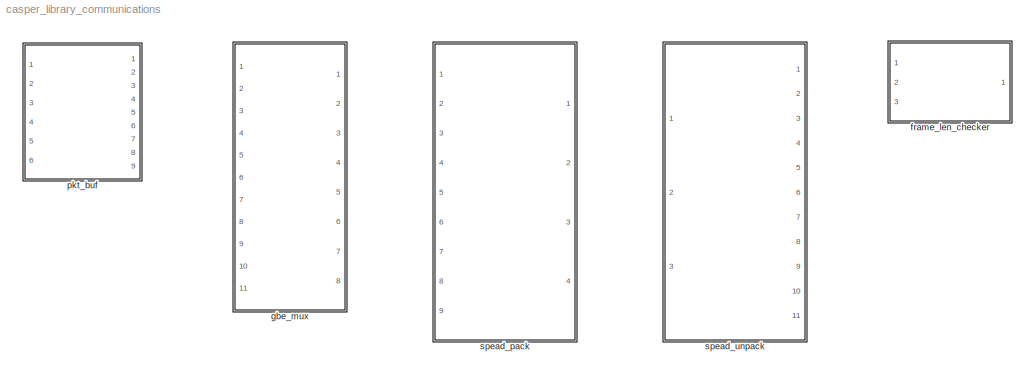
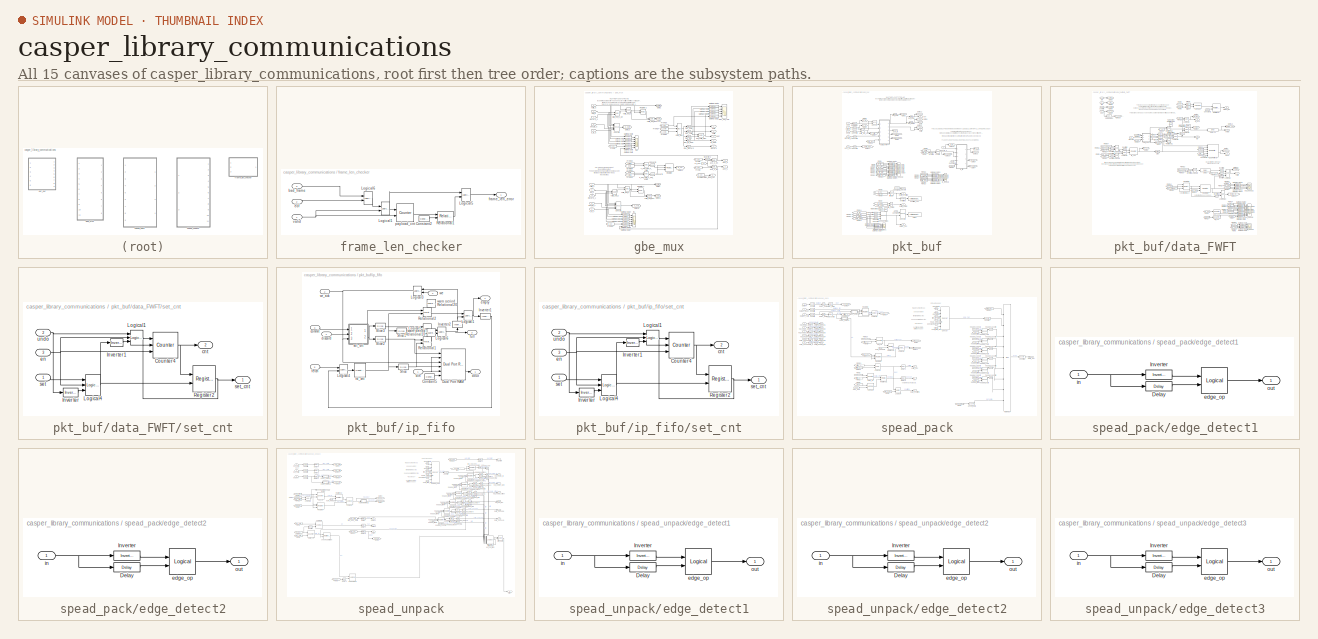
[diagram: thumbnail index - all 15 canvases of the model, root first then tree order]
MODEL casper_library_communications
KIND library
BLOCK [SubSystem] frame_len_checker
  FunctionWithSeparateData = off
  MaskDescription = Monitors valid, EOF and bad_frame signals in/from a 10Gbe core and outputs an error signal. Can be used to drive an error counter or latched as a flag.
  MaskEnableString = on
  MaskHideContents = off
  MaskIconFrame = on
  MaskIconOpaque = on
  MaskIconRotate = none
  MaskIconUnits = autoscale
  MaskPromptString = Frame length (64-bit words):
  MaskStyleString = edit
  MaskToolTipString = on
  MaskTunableValueString = on
  MaskValueString = 640 + 3 + 1
  MaskVariables = frame_len=@1;
  MaskVisibilityString = on
  MinAlgLoopOccurrences = off
  Opaque = off
  Ports = [3, 1]
  PropExecContextOutsideSubsystem = off
  RTWSystemCode = Auto
  Tag = casper:frame_len_checker
BLOCK [Reference] frame_len_checker/Constant2  REF=xbsIndex_r4/Constant
  Ports = [0, 1]
  SourceBlock = xbsIndex_r4/Constant
  SourceType = Xilinx Constant Block Block
  arith_type = Unsigned
  bin_pt = 0
  block_type = constant
  block_version = 10.1.3
  carry = CIN
  const = frame_len - 1
  dbl_ovrd = off
  dsp48_infoedit = The use of this block for DSP48 instructions is deprecated.  Please use the Opmode block.
  equ = P=C
  exp_width = 8
  explicit_period = on
  frac_width = 24
  gui_display_data_type = Fixed-point
  has_advanced_control = 0
  inp1 = P
  inp2 = PCIN>>17
  n_bits = (ceil(log2(frame_len)))+1
  opr = +
  opselect = C
  period = 1
  preci_type = Single
  sg_icon_stat = 30,18,0,1,white,blue,0,c3b0d470,right,,[ ],[ ]
  sg_mask_display = fprintf('','COMMENT: begin icon graphics');\npatch([0 55 55 0 0 ],[0 0 26 26 0 ],[0.77 0.82 0.91 ]);\nplot([0 55 55 0 0 ],[0 0 26 26 0 ]);\npatch([20.325 24.66 27.66 30.66 33.66 27.66 23.325 20.325 ],[16.33 16.33 19.33 16.33 19.33 19.33 19.33 16.33 ],[1 1 1 ]);\npatch([23.325 27.66 24.66 20.325 23.325 ],[13.33 13.33 16.33 16.33 13.33 ],[0.931 0.946 0.973 ]);\npatch([20.325 24.66 27.66 23.325 20.32...<+333ch>  <repeated x20 — deduplicated; at blocks: Constant2, Constant1, Constant4, header_const1, header_const2, header_const3, header_const4, header_const5, header_const6, heap_addr_width, item_id_width>
  sggui_pos = 20,25,992,643
BLOCK [Reference] frame_len_checker/Logical1  REF=xbsIndex_r4/Logical
  Ports = [2, 1]
  SourceBlock = xbsIndex_r4/Logical
  SourceType = Xilinx Logical Block Block
  align_bp = on
  arith_type = Unsigned
  bin_pt = 2
  block_type = logical
  block_version = 10.1.3
  dbl_ovrd = off
  en = off
  has_advanced_control = 0
  inputs = 2
  latency = 0
  logical_function = AND
  n_bits = 8
  precision = Full
  sg_icon_stat = 25,38,2,1,white,blue,0,83a4b621,right,,[ ],[ ]
  sg_mask_display = fprintf('','COMMENT: begin icon graphics');\npatch([0 25 25 0 0 ],[0 0 38 38 0 ],[0.77 0.82 0.91 ]);\nplot([0 25 25 0 0 ],[0 0 38 38 0 ]);\npatch([5.325 9.66 12.66 15.66 18.66 12.66 8.325 5.325 ],[22.33 22.33 25.33 22.33 25.33 25.33 25.33 22.33 ],[1 1 1 ]);\npatch([8.325 12.66 9.66 5.325 8.325 ],[19.33 19.33 22.33 22.33 19.33 ],[0.931 0.946 0.973 ]);\npatch([5.325 9.66 12.66 8.325 5.325 ],[16.33 1...<+312ch>
  sggui_pos = -1,-1,-1,-1
  xl_area = [0, 0, 0, 0, 0, 0, 0]
  xl_use_area = off
BLOCK [Reference] frame_len_checker/Logical5  REF=xbsIndex_r4/Logical
  Ports = [2, 1]
  SourceBlock = xbsIndex_r4/Logical
  SourceType = Xilinx Logical Block Block
  align_bp = on
  arith_type = Unsigned
  bin_pt = 2
  block_type = logical
  block_version = 10.1.3
  dbl_ovrd = off
  en = off
  has_advanced_control = 0
  inputs = 2
  latency = 0
  logical_function = AND
  n_bits = 8
  precision = Full
  sg_icon_stat = 25,38,2,1,white,blue,0,83a4b621,right,,[ ],[ ]
  sg_mask_display = fprintf('','COMMENT: begin icon graphics');\npatch([0 25 25 0 0 ],[0 0 38 38 0 ],[0.77 0.82 0.91 ]);\nplot([0 25 25 0 0 ],[0 0 38 38 0 ]);\npatch([5.325 9.66 12.66 15.66 18.66 12.66 8.325 5.325 ],[22.33 22.33 25.33 22.33 25.33 25.33 25.33 22.33 ],[1 1 1 ]);\npatch([8.325 12.66 9.66 5.325 8.325 ],[19.33 19.33 22.33 22.33 19.33 ],[0.931 0.946 0.973 ]);\npatch([5.325 9.66 12.66 8.325 5.325 ],[16.33 1...<+312ch>
  sggui_pos = 50,50,348,261
  xl_area = [0, 0, 0, 0, 0, 0, 0]
  xl_use_area = off
BLOCK [Reference] frame_len_checker/Logical6  REF=xbsIndex_r4/Logical
  Ports = [2, 1]
  SourceBlock = xbsIndex_r4/Logical
  SourceType = Xilinx Logical Block Block
  align_bp = on
  arith_type = Unsigned
  bin_pt = 2
  block_type = logical
  block_version = 10.1.3
  dbl_ovrd = off
  en = off
  has_advanced_control = 0
  inputs = 2
  latency = 0
  logical_function = OR
  n_bits = 8
  precision = Full
  sg_icon_stat = 25,38,2,1,white,blue,0,7ede7d88,right,,[ ],[ ]
  sg_mask_display = fprintf('','COMMENT: begin icon graphics');\npatch([0 25 25 0 0 ],[0 0 38 38 0 ],[0.77 0.82 0.91 ]);\nplot([0 25 25 0 0 ],[0 0 38 38 0 ]);\npatch([5.325 9.66 12.66 15.66 18.66 12.66 8.325 5.325 ],[22.33 22.33 25.33 22.33 25.33 25.33 25.33 22.33 ],[1 1 1 ]);\npatch([8.325 12.66 9.66 5.325 8.325 ],[19.33 19.33 22.33 22.33 19.33 ],[0.931 0.946 0.973 ]);\npatch([5.325 9.66 12.66 8.325 5.325 ],[16.33 1...<+311ch>
  sggui_pos = 50,50,348,261
  xl_area = [0, 0, 0, 0, 0, 0, 0]
  xl_use_area = off
BLOCK [Reference] frame_len_checker/Relational1  REF=xbsIndex_r4/Relational
  Ports = [2, 1]
  SourceBlock = xbsIndex_r4/Relational
  SourceType = Xilinx Arithmetic Relational Operator Block
  block_type = relational
  block_version = 10.1.3
  dbl_ovrd = off
  en = off
  has_advanced_control = 0
  latency = 0
  mode = a!=b
  sg_icon_stat = 45,29,2,1,white,blue,0,850de6e7,right,,[ ],[ ]
  sg_mask_display = fprintf('','COMMENT: begin icon graphics');\npatch([0 45 45 0 0 ],[0 0 29 29 0 ],[0.77 0.82 0.91 ]);\nplot([0 45 45 0 0 ],[0 0 29 29 0 ]);\npatch([13.1 18.88 22.88 26.88 30.88 22.88 17.1 13.1 ],[18.44 18.44 22.44 18.44 22.44 22.44 22.44 18.44 ],[1 1 1 ]);\npatch([17.1 22.88 18.88 13.1 17.1 ],[14.44 14.44 18.44 18.44 14.44 ],[0.931 0.946 0.973 ]);\npatch([13.1 18.88 22.88 17.1 13.1 ],[10.44 10.44 1...<+449ch>
  sggui_pos = 20,25,416,203
  xl_area = [0, 0, 0, 0, 0, 0, 0]
  xl_use_area = off
BLOCK [Inport] frame_len_checker/bad_frame
  IconDisplay = Port number
  Port = 3
BLOCK [Inport] frame_len_checker/eof
  IconDisplay = Port number
  Port = 2
BLOCK [Outport] frame_len_checker/frame_len_error
  IconDisplay = Port number
BLOCK [Reference] frame_len_checker/payload_cnt  REF=xbsIndex_r4/Counter
  Ports = [2, 1]
  SourceBlock = xbsIndex_r4/Counter
  SourceType = Xilinx Counter Block
  arith_type = Unsigned
  bin_pt = 0
  block_type = counter
  block_version = 10.1.3
  cnt_by_val = 1
  cnt_to = frame_len - 1
  cnt_type = Free Running
  dbl_ovrd = off
  en = on
  explicit_period = off
  has_advanced_control = 0
  implementation = Fabric
  infoedit = Hardware notes: Free running counters are the least expensive in hardware.  A count limited counter is implemented by combining a counter with a comparator.
  load_pin = off
  n_bits = (ceil(log2(frame_len)))+1
  operation = Up
  period = 1
  rst = on
  sg_icon_stat = 50,55,2,1,white,blue,0,ae3608d6,right,,[ ],[ ]
  sg_mask_display = fprintf('','COMMENT: begin icon graphics');\npatch([0 50 50 0 0 ],[0 0 55 55 0 ],[0.77 0.82 0.91 ]);\nplot([0 50 50 0 0 ],[0 0 55 55 0 ]);\npatch([9.425 19.54 26.54 33.54 40.54 26.54 16.425 9.425 ],[34.77 34.77 41.77 34.77 41.77 41.77 41.77 34.77 ],[1 1 1 ]);\npatch([16.425 26.54 19.54 9.425 16.425 ],[27.77 27.77 34.77 34.77 27.77 ],[0.931 0.946 0.973 ]);\npatch([9.425 19.54 26.54 16.425 9.425 ],[...<+441ch>
  sggui_pos = 20,25,416,716
  start_count = 0
  use_behavioral_HDL = off
  use_rpm = on
  xl_area = [0, 0, 0, 0, 0, 0, 0]
  xl_use_area = off
BLOCK [Inport] frame_len_checker/valid
  IconDisplay = Port number
BLOCK [SubSystem] gbe_mux
  FunctionWithSeparateData = off
  MaskDescription = Merges two packet streams into one. Does round-robin arbitration.
  MaskHideContents = off
  MaskIconFrame = on
  MaskIconOpaque = on
  MaskIconRotate = none
  MaskIconUnits = autoscale
  MaskType = pkt_mux
  MinAlgLoopOccurrences = off
  Opaque = off
  Ports = [11, 8]
  PropExecContextOutsideSubsystem = off
  RTWSystemCode = Auto
BLOCK [Reference] gbe_mux/0_eof_AND_1_not_empty  REF=xbsIndex_r4/Logical
  Ports = [2, 1]
  SourceBlock = xbsIndex_r4/Logical
  SourceType = Xilinx Logical Block Block
  align_bp = on
  arith_type = Unsigned
  bin_pt = 2
  block_type = logical
  block_version = 10.1.3
  dbl_ovrd = off
  en = off
  has_advanced_control = 0
  inputs = 2
  latency = 0
  logical_function = AND
  n_bits = 8
  precision = Full
  sg_icon_stat = 25,31,2,1,white,blue,0,83a4b621,right,,[ ],[ ]
  sg_mask_display = fprintf('','COMMENT: begin icon graphics');\npatch([0 25 25 0 0 ],[0 0 31 31 0 ],[0.77 0.82 0.91 ]);\nplot([0 25 25 0 0 ],[0 0 31 31 0 ]);\npatch([5.325 9.66 12.66 15.66 18.66 12.66 8.325 5.325 ],[18.33 18.33 21.33 18.33 21.33 21.33 21.33 18.33 ],[1 1 1 ]);\npatch([8.325 12.66 9.66 5.325 8.325 ],[15.33 15.33 18.33 18.33 15.33 ],[0.931 0.946 0.973 ]);\npatch([5.325 9.66 12.66 8.325 5.325 ],[12.33 1...<+308ch>  <repeated x5 — deduplicated; at blocks: 0_eof_AND_1_not_empty, 1_eof_AND_0_valid, valid_eof_0, valid_eof_1>
  sggui_pos = -1,-1,-1,-1
  xl_area = [0, 0, 0, 0, 0, 0, 0]
  xl_use_area = off
BLOCK [Reference] gbe_mux/1_eof_AND_0_valid  REF=xbsIndex_r4/Logical
  Ports = [2, 1]
  SourceBlock = xbsIndex_r4/Logical
  SourceType = Xilinx Logical Block Block
  align_bp = on
  arith_type = Unsigned
  bin_pt = 2
  block_type = logical
  block_version = 10.1.3
  dbl_ovrd = off
  en = off
  has_advanced_control = 0
  inputs = 2
  latency = 0
  logical_function = AND
  n_bits = 8
  precision = Full
  sg_icon_stat = 25,31,2,1,white,blue,0,83a4b621,right,,[ ],[ ]
  sggui_pos = -1,-1,-1,-1
  xl_area = [0, 0, 0, 0, 0, 0, 0]
  xl_use_area = off
BLOCK [Reference] gbe_mux/Concat1  REF=xbsIndex_r4/Concat
  Ports = [5, 1]
  SourceBlock = xbsIndex_r4/Concat
  SourceType = Xilinx Bus Concatenator Block
  block_type = concat
  block_version = 10.1.3
  dbl_ovrd = off
  has_advanced_control = 0
  infoedit = Concatenates two or more inputs.  Output will be cast to an unsigned value with the binary point at zero.
  num_inputs = 5
  sg_icon_stat = 30,48,5,1,white,blue,0,64797e70,right,,[ ],[ ]
  sg_mask_display = fprintf('','COMMENT: begin icon graphics');\npatch([0 30 30 0 0 ],[0 0 48 48 0 ],[0.77 0.82 0.91 ]);\nplot([0 30 30 0 0 ],[0 0 48 48 0 ]);\npatch([6.1 11.88 15.88 19.88 23.88 15.88 10.1 6.1 ],[28.44 28.44 32.44 28.44 32.44 32.44 32.44 28.44 ],[1 1 1 ]);\npatch([10.1 15.88 11.88 6.1 10.1 ],[24.44 24.44 28.44 28.44 24.44 ],[0.931 0.946 0.973 ]);\npatch([6.1 11.88 15.88 10.1 6.1 ],[20.44 20.44 24.44 ...<+419ch>
  sggui_pos = -1,-1,-1,-1
BLOCK [Reference] gbe_mux/Concat2  REF=xbsIndex_r4/Concat
  Ports = [5, 1]
  SourceBlock = xbsIndex_r4/Concat
  SourceType = Xilinx Bus Concatenator Block
  block_type = concat
  block_version = 10.1.3
  dbl_ovrd = off
  has_advanced_control = 0
  infoedit = Concatenates two or more inputs.  Output will be cast to an unsigned value with the binary point at zero.
  num_inputs = 5
  sg_icon_stat = 30,48,5,1,white,blue,0,64797e70,right,,[ ],[ ]
  sg_mask_display = fprintf('','COMMENT: begin icon graphics');\npatch([0 30 30 0 0 ],[0 0 48 48 0 ],[0.77 0.82 0.91 ]);\nplot([0 30 30 0 0 ],[0 0 48 48 0 ]);\npatch([6.1 11.88 15.88 19.88 23.88 15.88 10.1 6.1 ],[28.44 28.44 32.44 28.44 32.44 32.44 32.44 28.44 ],[1 1 1 ]);\npatch([10.1 15.88 11.88 6.1 10.1 ],[24.44 24.44 28.44 28.44 24.44 ],[0.931 0.946 0.973 ]);\npatch([6.1 11.88 15.88 10.1 6.1 ],[20.44 20.44 24.44 ...<+419ch>
  sggui_pos = -1,-1,-1,-1
BLOCK [Reference] gbe_mux/Convert3  REF=xbsIndex_r4/Convert
  Ports = [1, 1]
  SourceBlock = xbsIndex_r4/Convert
  SourceType = Xilinx Type Converter Block
  arith_type = Boolean
  bin_pt = 6
  block_type = convert
  block_version = 10.1.3
  dbl_ovrd = off
  en = off
  exp_bits = 8
  float_type = Single
  fraction_bits = 24
  gui_display_data_type = Fixed-point
  has_advanced_control = 0
  infoedit = Hardware notes: rounding and saturating require hardware resources; truncating and wrapping do not.
  latency = 0
  n_bits = 8
  overflow = Wrap
  pipeline = off
  quantization = Truncate
  sg_icon_stat = 25,18,1,1,white,blue,0,edca21da,right,,[ ],[ ]
  sg_mask_display = fprintf('','COMMENT: begin icon graphics');\npatch([0 25 25 0 0 ],[0 0 18 18 0 ],[0.77 0.82 0.91 ]);\nplot([0 25 25 0 0 ],[0 0 18 18 0 ]);\npatch([7.55 10.44 12.44 14.44 16.44 12.44 9.55 7.55 ],[11.22 11.22 13.22 11.22 13.22 13.22 13.22 11.22 ],[1 1 1 ]);\npatch([9.55 12.44 10.44 7.55 9.55 ],[9.22 9.22 11.22 11.22 9.22 ],[0.931 0.946 0.973 ]);\npatch([7.55 10.44 12.44 9.55 7.55 ],[7.22 7.22 9.22 9...<+303ch>
  sggui_pos = -1,-1,-1,-1
  xl_area = [0, 0, 0, 0, 0, 0, 0]
  xl_use_area = off
BLOCK [Reference] gbe_mux/Convert4  REF=xbsIndex_r4/Convert
  Ports = [1, 1]
  SourceBlock = xbsIndex_r4/Convert
  SourceType = Xilinx Type Converter Block
  arith_type = Boolean
  bin_pt = 6
  block_type = convert
  block_version = 10.1.3
  dbl_ovrd = off
  en = off
  exp_bits = 8
  float_type = Single
  fraction_bits = 24
  gui_display_data_type = Fixed-point
  has_advanced_control = 0
  infoedit = Hardware notes: rounding and saturating require hardware resources; truncating and wrapping do not.
  latency = 0
  n_bits = 8
  overflow = Wrap
  pipeline = off
  quantization = Truncate
  sg_icon_stat = 25,18,1,1,white,blue,0,edca21da,right,,[ ],[ ]
  sg_mask_display = fprintf('','COMMENT: begin icon graphics');\npatch([0 25 25 0 0 ],[0 0 18 18 0 ],[0.77 0.82 0.91 ]);\nplot([0 25 25 0 0 ],[0 0 18 18 0 ]);\npatch([7.55 10.44 12.44 14.44 16.44 12.44 9.55 7.55 ],[11.22 11.22 13.22 11.22 13.22 13.22 13.22 11.22 ],[1 1 1 ]);\npatch([9.55 12.44 10.44 7.55 9.55 ],[9.22 9.22 11.22 11.22 9.22 ],[0.931 0.946 0.973 ]);\npatch([7.55 10.44 12.44 9.55 7.55 ],[7.22 7.22 9.22 9...<+303ch>
  sggui_pos = -1,-1,-1,-1
  xl_area = [0, 0, 0, 0, 0, 0, 0]
  xl_use_area = off
BLOCK [From] gbe_mux/From1
  CloseFcn = tagdialog Close
  GotoTag = in_sel
BLOCK [From] gbe_mux/From15
  CloseFcn = tagdialog Close
  GotoTag = in_sel
BLOCK [From] gbe_mux/From19
  CloseFcn = tagdialog Close
  GotoTag = valid1
BLOCK [From] gbe_mux/From2
  CloseFcn = tagdialog Close
  GotoTag = in_sel
BLOCK [From] gbe_mux/From20
  CloseFcn = tagdialog Close
  GotoTag = valid0
BLOCK [From] gbe_mux/From21
  CloseFcn = tagdialog Close
  GotoTag = eof0
BLOCK [From] gbe_mux/From23
  CloseFcn = tagdialog Close
  GotoTag = eof1
BLOCK [From] gbe_mux/From24
  CloseFcn = tagdialog Close
  GotoTag = d_out0
BLOCK [From] gbe_mux/From25
  CloseFcn = tagdialog Close
  GotoTag = in_sel
BLOCK [From] gbe_mux/From3
  CloseFcn = tagdialog Close
  GotoTag = in_sel
BLOCK [From] gbe_mux/From32
  CloseFcn = tagdialog Close
  GotoTag = d_out1
BLOCK [From] gbe_mux/From43
  CloseFcn = tagdialog Close
  GotoTag = in_sel
BLOCK [Reference] gbe_mux/Gateway Out1  REF=xbsIndex_r4/Gateway Out
  DACChannel = '1'
  LOCs = {}
  Ports = [1, 1]
  SourceBlock = xbsIndex_r4/Gateway Out
  SourceType = Xilinx Gateway Out Block
  UseAsDAC = off
  block_type = gatewayout
  block_version = 10.1.3
  has_advanced_control = 0
  hdl_port = off
  infoedit = Gateway out block.  Converts Xilinx fixed point inputs into ouputs of type Simulink integer, double, or fixed point.<P><P>Hardware notes:  In hardware these blocks become top level output ports or are discarded, depending on how they are configured.  <repeated x54 — deduplicated; at blocks: Gateway Out1, Gateway Out10, Gateway Out11, Gateway Out12, Gateway Out13, Gateway Out14, Gateway Out15, Gateway Out16, Gateway Out17, Gateway Out2, Gateway Out3, Gateway Out4, Gateway Out5, Gateway Out6, Gateway Out7, Gateway Out8, +8 more>
  inherit_from_input = off
  locs_specified = off
  sg_icon_stat = 40,8,1,1,white,grey,1,632ec840,right,,[ ],[ ]
  sg_mask_display = fprintf('','COMMENT: begin icon graphics');\npatch([0 40 40 0 0 ],[0 0 8 8 0 ],[0.88 0.88 0.88 ]);\nplot([0 40 40 0 0 ],[0 0 8 8 0 ]);\npatch([17.775 19.22 20.22 21.22 22.22 20.22 18.775 17.775 ],[5.11 5.11 6.11 5.11 6.11 6.11 6.11 5.11 ],[1 1 1 ]);\npatch([18.775 20.22 19.22 17.775 18.775 ],[4.11 4.11 5.11 5.11 4.11 ],[0.964 0.964 0.964 ]);\npatch([17.775 19.22 20.22 18.775 17.775 ],[3.11 3.11 4....<+386ch>  <repeated x28 — deduplicated; at blocks: Gateway Out1, Gateway Out13, Gateway Out14, Gateway Out15, Gateway Out16, Gateway Out17, Gateway Out2, Gateway Out3, Gateway Out4, Gateway Out5, Gateway Out6, Gateway Out7, Gateway Out10, Gateway Out11, Gateway Out12, Gateway Out18, +3 more>
  sggui_pos = 20,20,336,384
  timing_constraint = None
  xl_area = [0, 0, 0, 0, 0, 0, 0]
  xl_use_area = off
BLOCK [Reference] gbe_mux/Gateway Out10  REF=xbsIndex_r4/Gateway Out
  DACChannel = '1'
  LOCs = {}
  Ports = [1, 1]
  SourceBlock = xbsIndex_r4/Gateway Out
  SourceType = Xilinx Gateway Out Block
  UseAsDAC = off
  block_type = gatewayout
  block_version = 10.1.3
  has_advanced_control = 0
  hdl_port = off
  inherit_from_input = off
  locs_specified = off
  sg_icon_stat = 55,16,1,1,white,grey,1,632ec840,right,,[ ],[ ]
  sg_mask_display = fprintf('','COMMENT: begin icon graphics');\npatch([0 55 55 0 0 ],[0 0 16 16 0 ],[0.88 0.88 0.88 ]);\nplot([0 55 55 0 0 ],[0 0 16 16 0 ]);\npatch([22.55 25.44 27.44 29.44 31.44 27.44 24.55 22.55 ],[10.22 10.22 12.22 10.22 12.22 12.22 12.22 10.22 ],[1 1 1 ]);\npatch([24.55 27.44 25.44 22.55 24.55 ],[8.22 8.22 10.22 10.22 8.22 ],[0.964 0.964 0.964 ]);\npatch([22.55 25.44 27.44 24.55 22.55 ],[6.22 6....<+388ch>  <repeated x5 — deduplicated; at blocks: Gateway Out10, Gateway Out11, Gateway Out12, Gateway Out8, Gateway Out9>
  sggui_pos = 20,20,336,384
  timing_constraint = None
  xl_area = [0, 0, 0, 0, 0, 0, 0]
  xl_use_area = off
BLOCK [Reference] gbe_mux/Gateway Out11  REF=xbsIndex_r4/Gateway Out
  DACChannel = '1'
  LOCs = {}
  Ports = [1, 1]
  SourceBlock = xbsIndex_r4/Gateway Out
  SourceType = Xilinx Gateway Out Block
  UseAsDAC = off
  block_type = gatewayout
  block_version = 10.1.3
  has_advanced_control = 0
  hdl_port = off
  inherit_from_input = off
  locs_specified = off
  sg_icon_stat = 55,16,1,1,white,grey,1,632ec840,right,,[ ],[ ]
  sggui_pos = 20,20,336,384
  timing_constraint = None
  xl_area = [0, 0, 0, 0, 0, 0, 0]
  xl_use_area = off
BLOCK [Reference] gbe_mux/Gateway Out12  REF=xbsIndex_r4/Gateway Out
  DACChannel = '1'
  LOCs = {}
  Ports = [1, 1]
  SourceBlock = xbsIndex_r4/Gateway Out
  SourceType = Xilinx Gateway Out Block
  UseAsDAC = off
  block_type = gatewayout
  block_version = 10.1.3
  has_advanced_control = 0
  hdl_port = off
  inherit_from_input = off
  locs_specified = off
  sg_icon_stat = 55,16,1,1,white,grey,1,632ec840,right,,[ ],[ ]
  sggui_pos = 20,20,336,384
  timing_constraint = None
  xl_area = [0, 0, 0, 0, 0, 0, 0]
  xl_use_area = off
BLOCK [Reference] gbe_mux/Gateway Out13  REF=xbsIndex_r4/Gateway Out
  DACChannel = '1'
  LOCs = {}
  Ports = [1, 1]
  SourceBlock = xbsIndex_r4/Gateway Out
  SourceType = Xilinx Gateway Out Block
  UseAsDAC = off
  block_type = gatewayout
  block_version = 10.1.3
  has_advanced_control = 0
  hdl_port = off
  inherit_from_input = off
  locs_specified = off
  sg_icon_stat = 40,8,1,1,white,grey,1,632ec840,right,,[ ],[ ]
  sggui_pos = 20,20,336,384
  timing_constraint = None
  xl_area = [0, 0, 0, 0, 0, 0, 0]
  xl_use_area = off
BLOCK [Reference] gbe_mux/Gateway Out14  REF=xbsIndex_r4/Gateway Out
  DACChannel = '1'
  LOCs = {}
  Ports = [1, 1]
  SourceBlock = xbsIndex_r4/Gateway Out
  SourceType = Xilinx Gateway Out Block
  UseAsDAC = off
  block_type = gatewayout
  block_version = 10.1.3
  has_advanced_control = 0
  hdl_port = off
  inherit_from_input = off
  locs_specified = off
  sg_icon_stat = 40,8,1,1,white,grey,1,632ec840,right,,[ ],[ ]
  sggui_pos = 20,20,336,384
  timing_constraint = None
  xl_area = [0, 0, 0, 0, 0, 0, 0]
  xl_use_area = off
BLOCK [Reference] gbe_mux/Gateway Out15  REF=xbsIndex_r4/Gateway Out
  DACChannel = '1'
  LOCs = {}
  Ports = [1, 1]
  SourceBlock = xbsIndex_r4/Gateway Out
  SourceType = Xilinx Gateway Out Block
  UseAsDAC = off
  block_type = gatewayout
  block_version = 10.1.3
  has_advanced_control = 0
  hdl_port = off
  inherit_from_input = off
  locs_specified = off
  sg_icon_stat = 40,8,1,1,white,grey,1,632ec840,right,,[ ],[ ]
  sggui_pos = 20,20,336,384
  timing_constraint = None
  xl_area = [0, 0, 0, 0, 0, 0, 0]
  xl_use_area = off
BLOCK [Reference] gbe_mux/Gateway Out16  REF=xbsIndex_r4/Gateway Out
  DACChannel = '1'
  LOCs = {}
  Ports = [1, 1]
  SourceBlock = xbsIndex_r4/Gateway Out
  SourceType = Xilinx Gateway Out Block
  UseAsDAC = off
  block_type = gatewayout
  block_version = 10.1.3
  has_advanced_control = 0
  hdl_port = off
  inherit_from_input = off
  locs_specified = off
  sg_icon_stat = 40,8,1,1,white,grey,1,632ec840,right,,[ ],[ ]
  sggui_pos = 20,20,336,384
  timing_constraint = None
  xl_area = [0, 0, 0, 0, 0, 0, 0]
  xl_use_area = off
BLOCK [Reference] gbe_mux/Gateway Out17  REF=xbsIndex_r4/Gateway Out
  DACChannel = '1'
  LOCs = {}
  Ports = [1, 1]
  SourceBlock = xbsIndex_r4/Gateway Out
  SourceType = Xilinx Gateway Out Block
  UseAsDAC = off
  block_type = gatewayout
  block_version = 10.1.3
  has_advanced_control = 0
  hdl_port = off
  inherit_from_input = off
  locs_specified = off
  sg_icon_stat = 40,8,1,1,white,grey,1,632ec840,right,,[ ],[ ]
  sggui_pos = 20,20,336,384
  timing_constraint = None
  xl_area = [0, 0, 0, 0, 0, 0, 0]
  xl_use_area = off
BLOCK [Reference] gbe_mux/Gateway Out2  REF=xbsIndex_r4/Gateway Out
  DACChannel = '1'
  LOCs = {}
  Ports = [1, 1]
  SourceBlock = xbsIndex_r4/Gateway Out
  SourceType = Xilinx Gateway Out Block
  UseAsDAC = off
  block_type = gatewayout
  block_version = 10.1.3
  has_advanced_control = 0
  hdl_port = off
  inherit_from_input = off
  locs_specified = off
  sg_icon_stat = 40,8,1,1,white,grey,1,632ec840,right,,[ ],[ ]
  sggui_pos = 20,20,336,384
  timing_constraint = None
  xl_area = [0, 0, 0, 0, 0, 0, 0]
  xl_use_area = off
BLOCK [Reference] gbe_mux/Gateway Out3  REF=xbsIndex_r4/Gateway Out
  DACChannel = '1'
  LOCs = {}
  Ports = [1, 1]
  SourceBlock = xbsIndex_r4/Gateway Out
  SourceType = Xilinx Gateway Out Block
  UseAsDAC = off
  block_type = gatewayout
  block_version = 10.1.3
  has_advanced_control = 0
  hdl_port = off
  inherit_from_input = off
  locs_specified = off
  sg_icon_stat = 40,8,1,1,white,grey,1,632ec840,right,,[ ],[ ]
  sggui_pos = 20,20,336,384
  timing_constraint = None
  xl_area = [0, 0, 0, 0, 0, 0, 0]
  xl_use_area = off
BLOCK [Reference] gbe_mux/Gateway Out4  REF=xbsIndex_r4/Gateway Out
  DACChannel = '1'
  LOCs = {}
  Ports = [1, 1]
  SourceBlock = xbsIndex_r4/Gateway Out
  SourceType = Xilinx Gateway Out Block
  UseAsDAC = off
  block_type = gatewayout
  block_version = 10.1.3
  has_advanced_control = 0
  hdl_port = off
  inherit_from_input = off
  locs_specified = off
  sg_icon_stat = 40,8,1,1,white,grey,1,632ec840,right,,[ ],[ ]
  sggui_pos = 20,20,336,384
  timing_constraint = None
  xl_area = [0, 0, 0, 0, 0, 0, 0]
  xl_use_area = off
BLOCK [Reference] gbe_mux/Gateway Out5  REF=xbsIndex_r4/Gateway Out
  DACChannel = '1'
  LOCs = {}
  Ports = [1, 1]
  SourceBlock = xbsIndex_r4/Gateway Out
  SourceType = Xilinx Gateway Out Block
  UseAsDAC = off
  block_type = gatewayout
  block_version = 10.1.3
  has_advanced_control = 0
  hdl_port = off
  inherit_from_input = off
  locs_specified = off
  sg_icon_stat = 40,8,1,1,white,grey,1,632ec840,right,,[ ],[ ]
  sggui_pos = 20,20,336,384
  timing_constraint = None
  xl_area = [0, 0, 0, 0, 0, 0, 0]
  xl_use_area = off
BLOCK [Reference] gbe_mux/Gateway Out6  REF=xbsIndex_r4/Gateway Out
  DACChannel = '1'
  LOCs = {}
  Ports = [1, 1]
  SourceBlock = xbsIndex_r4/Gateway Out
  SourceType = Xilinx Gateway Out Block
  UseAsDAC = off
  block_type = gatewayout
  block_version = 10.1.3
  has_advanced_control = 0
  hdl_port = off
  inherit_from_input = off
  locs_specified = off
  sg_icon_stat = 40,8,1,1,white,grey,1,632ec840,right,,[ ],[ ]
  sggui_pos = 20,20,336,384
  timing_constraint = None
  xl_area = [0, 0, 0, 0, 0, 0, 0]
  xl_use_area = off
BLOCK [Reference] gbe_mux/Gateway Out7  REF=xbsIndex_r4/Gateway Out
  DACChannel = '1'
  LOCs = {}
  Ports = [1, 1]
  SourceBlock = xbsIndex_r4/Gateway Out
  SourceType = Xilinx Gateway Out Block
  UseAsDAC = off
  block_type = gatewayout
  block_version = 10.1.3
  has_advanced_control = 0
  hdl_port = off
  inherit_from_input = off
  locs_specified = off
  sg_icon_stat = 40,8,1,1,white,grey,1,632ec840,right,,[ ],[ ]
  sggui_pos = 20,20,336,384
  timing_constraint = None
  xl_area = [0, 0, 0, 0, 0, 0, 0]
  xl_use_area = off
BLOCK [Reference] gbe_mux/Gateway Out8  REF=xbsIndex_r4/Gateway Out
  DACChannel = '1'
  LOCs = {}
  Ports = [1, 1]
  SourceBlock = xbsIndex_r4/Gateway Out
  SourceType = Xilinx Gateway Out Block
  UseAsDAC = off
  block_type = gatewayout
  block_version = 10.1.3
  has_advanced_control = 0
  hdl_port = off
  inherit_from_input = off
  locs_specified = off
  sg_icon_stat = 55,16,1,1,white,grey,1,632ec840,right,,[ ],[ ]
  sggui_pos = 20,20,336,384
  timing_constraint = None
  xl_area = [0, 0, 0, 0, 0, 0, 0]
  xl_use_area = off
BLOCK [Reference] gbe_mux/Gateway Out9  REF=xbsIndex_r4/Gateway Out
  DACChannel = '1'
  LOCs = {}
  Ports = [1, 1]
  SourceBlock = xbsIndex_r4/Gateway Out
  SourceType = Xilinx Gateway Out Block
  UseAsDAC = off
  block_type = gatewayout
  block_version = 10.1.3
  has_advanced_control = 0
  hdl_port = off
  inherit_from_input = off
  locs_specified = off
  sg_icon_stat = 55,16,1,1,white,grey,1,632ec840,right,,[ ],[ ]
  sggui_pos = 20,20,336,384
  timing_constraint = None
  xl_area = [0, 0, 0, 0, 0, 0, 0]
  xl_use_area = off
BLOCK [Goto] gbe_mux/Goto1
  GotoTag = valid1
BLOCK [Goto] gbe_mux/Goto11
  GotoTag = eof1
BLOCK [Goto] gbe_mux/Goto12
  GotoTag = in_sel
BLOCK [Goto] gbe_mux/Goto13
  GotoTag = d_out0
BLOCK [Goto] gbe_mux/Goto16
  GotoTag = d_out1
BLOCK [Goto] gbe_mux/Goto2
  GotoTag = valid0
BLOCK [Goto] gbe_mux/Goto3
  GotoTag = eof0
BLOCK [Reference] gbe_mux/Inverter2  REF=xbsIndex_r4/Inverter
  Ports = [1, 1]
  SourceBlock = xbsIndex_r4/Inverter
  SourceType = Xilinx Inverter Block
  block_type = inv
  block_version = 10.1.3
  dbl_ovrd = off
  en = off
  has_advanced_control = 0
  infoedit = Bitwise logical negation (one's complement) operator.
  latency = 0
  sg_icon_stat = 25,12,1,1,white,blue,0,267846e5,right,,[ ],[ ]
  sg_mask_display = fprintf('','COMMENT: begin icon graphics');\npatch([0 25 25 0 0 ],[0 0 12 12 0 ],[0.77 0.82 0.91 ]);\nplot([0 25 25 0 0 ],[0 0 12 12 0 ]);\npatch([9.775 11.22 12.22 13.22 14.22 12.22 10.775 9.775 ],[7.11 7.11 8.11 7.11 8.11 8.11 8.11 7.11 ],[1 1 1 ]);\npatch([10.775 12.22 11.22 9.775 10.775 ],[6.11 6.11 7.11 7.11 6.11 ],[0.931 0.946 0.973 ]);\npatch([9.775 11.22 12.22 10.775 9.775 ],[5.11 5.11 6.1...<+295ch>
  sggui_pos = -1,-1,-1,-1
  xl_area = [0, 0, 0, 0, 0, 0, 0]
  xl_use_area = off
BLOCK [Reference] gbe_mux/Register  REF=xbsIndex_r4/Register
  Ports = [3, 1]
  SourceBlock = xbsIndex_r4/Register
  SourceType = Xilinx Register Block
  block_type = register
  block_version = 10.1.3
  dbl_ovrd = off
  en = on
  has_advanced_control = 0
  init = 0
  rst = on
  sg_icon_stat = 45,50,3,1,white,blue,0,30546de1,right,,[ ],[ ]
  sg_mask_display = fprintf('','COMMENT: begin icon graphics');\npatch([0 45 45 0 0 ],[0 0 50 50 0 ],[0.77 0.82 0.91 ]);\nplot([0 45 45 0 0 ],[0 0 50 50 0 ]);\npatch([8.65 17.32 23.32 29.32 35.32 23.32 14.65 8.65 ],[31.66 31.66 37.66 31.66 37.66 37.66 37.66 31.66 ],[1 1 1 ]);\npatch([14.65 23.32 17.32 8.65 14.65 ],[25.66 25.66 31.66 31.66 25.66 ],[0.931 0.946 0.973 ]);\npatch([8.65 17.32 23.32 14.65 8.65 ],[19.66 19....<+498ch>
  sggui_pos = -1,-1,-1,-1
  xl_area = [0, 0, 0, 0, 0, 0, 0]
  xl_use_area = off
BLOCK [Reference] gbe_mux/Register1  REF=xbsIndex_r4/Register
  Ports = [2, 1]
  SourceBlock = xbsIndex_r4/Register
  SourceType = Xilinx Register Block
  block_type = register
  block_version = 10.1.3
  dbl_ovrd = off
  en = on
  has_advanced_control = 0
  init = 1
  rst = off
  sg_icon_stat = 30,31,2,1,white,blue,0,6bd0930c,right,,[ ],[ ]
  sg_mask_display = fprintf('','COMMENT: begin icon graphics');\npatch([0 30 30 0 0 ],[0 0 31 31 0 ],[0.77 0.82 0.91 ]);\nplot([0 30 30 0 0 ],[0 0 31 31 0 ]);\npatch([6.1 11.88 15.88 19.88 23.88 15.88 10.1 6.1 ],[19.44 19.44 23.44 19.44 23.44 23.44 23.44 19.44 ],[1 1 1 ]);\npatch([10.1 15.88 11.88 6.1 10.1 ],[15.44 15.44 19.44 19.44 15.44 ],[0.931 0.946 0.973 ]);\npatch([6.1 11.88 15.88 10.1 6.1 ],[11.44 11.44 15.44 ...<+439ch>
  sggui_pos = -1,-1,-1,-1
  xl_area = [0, 0, 0, 0, 0, 0, 0]
  xl_use_area = off
BLOCK [Reference] gbe_mux/Register2  REF=xbsIndex_r4/Register
  Ports = [2, 1]
  SourceBlock = xbsIndex_r4/Register
  SourceType = Xilinx Register Block
  block_type = register
  block_version = 10.1.3
  dbl_ovrd = off
  en = on
  has_advanced_control = 0
  init = 0
  rst = off
  sg_icon_stat = 30,31,2,1,white,blue,0,6bd0930c,right,,[ ],[ ]
  sg_mask_display = fprintf('','COMMENT: begin icon graphics');\npatch([0 30 30 0 0 ],[0 0 31 31 0 ],[0.77 0.82 0.91 ]);\nplot([0 30 30 0 0 ],[0 0 31 31 0 ]);\npatch([6.1 11.88 15.88 19.88 23.88 15.88 10.1 6.1 ],[19.44 19.44 23.44 19.44 23.44 23.44 23.44 19.44 ],[1 1 1 ]);\npatch([10.1 15.88 11.88 6.1 10.1 ],[15.44 15.44 19.44 19.44 15.44 ],[0.931 0.946 0.973 ]);\npatch([6.1 11.88 15.88 10.1 6.1 ],[11.44 11.44 15.44 ...<+439ch>
  sggui_pos = -1,-1,-1,-1
  xl_area = [0, 0, 0, 0, 0, 0, 0]
  xl_use_area = off
BLOCK [Outport] gbe_mux/ack_0
  IconDisplay = Port number
  Port = 6
BLOCK [Reference] gbe_mux/ack_0_en  REF=xbsIndex_r4/Logical
  Ports = [2, 1]
  SourceBlock = xbsIndex_r4/Logical
  SourceType = Xilinx Logical Block Block
  align_bp = on
  arith_type = Unsigned
  bin_pt = 2
  block_type = logical
  block_version = 10.1.3
  dbl_ovrd = off
  en = off
  has_advanced_control = 0
  inputs = 2
  latency = 0
  logical_function = AND
  n_bits = 8
  precision = Full
  sg_icon_stat = 25,20,2,1,white,blue,0,83a4b621,right,,[ ],[ ]
  sg_mask_display = fprintf('','COMMENT: begin icon graphics');\npatch([0 25 25 0 0 ],[0 0 20 20 0 ],[0.77 0.82 0.91 ]);\nplot([0 25 25 0 0 ],[0 0 20 20 0 ]);\npatch([7.55 10.44 12.44 14.44 16.44 12.44 9.55 7.55 ],[12.22 12.22 14.22 12.22 14.22 14.22 14.22 12.22 ],[1 1 1 ]);\npatch([9.55 12.44 10.44 7.55 9.55 ],[10.22 10.22 12.22 12.22 10.22 ],[0.931 0.946 0.973 ]);\npatch([7.55 10.44 12.44 9.55 7.55 ],[8.22 8.22 10....<+294ch>
  sggui_pos = -1,-1,-1,-1
  xl_area = [0, 0, 0, 0, 0, 0, 0]
  xl_use_area = off
BLOCK [Outport] gbe_mux/ack_1
  IconDisplay = Port number
  Port = 7
BLOCK [Reference] gbe_mux/ack_1_en  REF=xbsIndex_r4/Logical
  Ports = [2, 1]
  SourceBlock = xbsIndex_r4/Logical
  SourceType = Xilinx Logical Block Block
  align_bp = on
  arith_type = Unsigned
  bin_pt = 2
  block_type = logical
  block_version = 10.1.3
  dbl_ovrd = off
  en = off
  has_advanced_control = 0
  inputs = 2
  latency = 0
  logical_function = AND
  n_bits = 8
  precision = Full
  sg_icon_stat = 25,20,2,1,white,blue,0,83a4b621,right,,[ ],[ ]
  sg_mask_display = fprintf('','COMMENT: begin icon graphics');\npatch([0 25 25 0 0 ],[0 0 20 20 0 ],[0.77 0.82 0.91 ]);\nplot([0 25 25 0 0 ],[0 0 20 20 0 ]);\npatch([7.55 10.44 12.44 14.44 16.44 12.44 9.55 7.55 ],[12.22 12.22 14.22 12.22 14.22 14.22 14.22 12.22 ],[1 1 1 ]);\npatch([9.55 12.44 10.44 7.55 9.55 ],[10.22 10.22 12.22 12.22 10.22 ],[0.931 0.946 0.973 ]);\npatch([7.55 10.44 12.44 9.55 7.55 ],[8.22 8.22 10....<+294ch>
  sggui_pos = -1,-1,-1,-1
  xl_area = [0, 0, 0, 0, 0, 0, 0]
  xl_use_area = off
BLOCK [Inport] gbe_mux/d_in_0
  IconDisplay = Port number
BLOCK [Inport] gbe_mux/d_in_1
  IconDisplay = Port number
  Port = 6
BLOCK [Outport] gbe_mux/data
  IconDisplay = Port number
BLOCK [Reference] gbe_mux/data_mux  REF=xbsIndex_r4/Mux
  Ports = [3, 1]
  SourceBlock = xbsIndex_r4/Mux
  SourceType = Xilinx Bus Multiplexer Block
  arith_type = Signed  (2's comp)
  bin_pt = 2
  block_type = mux
  block_version = 10.1.3
  dbl_ovrd = off
  en = off
  has_advanced_control = 0
  inputs = 2
  latency = 0
  n_bits = 8
  overflow = Wrap
  precision = Full
  quantization = Truncate
  sg_icon_stat = 25,66,3,1,white,blue,3,eb98d690,right,,[ ],[ ]
  sg_mask_display = fprintf('','COMMENT: begin icon graphics');\npatch([0 25 25 0 0 ],[0 9.42857 56.5714 66 0 ],[0.77 0.82 0.91 ]);\nplot([0 25 25 0 0 ],[0 9.42857 56.5714 66 0 ]);\npatch([5.325 9.66 12.66 15.66 18.66 12.66 8.325 5.325 ],[36.33 36.33 39.33 36.33 39.33 39.33 39.33 36.33 ],[1 1 1 ]);\npatch([8.325 12.66 9.66 5.325 8.325 ],[33.33 33.33 36.33 36.33 33.33 ],[0.931 0.946 0.973 ]);\npatch([5.325 9.66 12.66 ...<+481ch>
  sggui_pos = -1,-1,-1,-1
  xl_area = [0, 0, 0, 0, 0, 0, 0]
  xl_use_area = off
BLOCK [Inport] gbe_mux/dest_ip_0
  IconDisplay = Port number
  Port = 3
BLOCK [Inport] gbe_mux/dest_ip_1
  IconDisplay = Port number
  Port = 8
BLOCK [Outport] gbe_mux/discard
  IconDisplay = Port number
  Port = 5
BLOCK [Inport] gbe_mux/discard_0
  IconDisplay = Port number
  Port = 5
BLOCK [Inport] gbe_mux/discard_1
  IconDisplay = Port number
  Port = 10
BLOCK [Outport] gbe_mux/eof
  IconDisplay = Port number
  Port = 4
BLOCK [Inport] gbe_mux/eof_0
  IconDisplay = Port number
  Port = 4
BLOCK [Inport] gbe_mux/eof_1
  IconDisplay = Port number
  Port = 9
BLOCK [Reference] gbe_mux/eof_valid_mux  REF=xbsIndex_r4/Logical
  Ports = [2, 1]
  SourceBlock = xbsIndex_r4/Logical
  SourceType = Xilinx Logical Block Block
  align_bp = on
  arith_type = Unsigned
  bin_pt = 2
  block_type = logical
  block_version = 10.1.3
  dbl_ovrd = off
  en = off
  has_advanced_control = 0
  inputs = 2
  latency = 0
  logical_function = AND
  n_bits = 8
  precision = Full
  sg_icon_stat = 30,24,2,1,white,blue,0,83a4b621,right,,[ ],[ ]
  sg_mask_display = fprintf('','COMMENT: begin icon graphics');\npatch([0 30 30 0 0 ],[0 0 24 24 0 ],[0.77 0.82 0.91 ]);\nplot([0 30 30 0 0 ],[0 0 24 24 0 ]);\npatch([8.325 12.66 15.66 18.66 21.66 15.66 11.325 8.325 ],[15.33 15.33 18.33 15.33 18.33 18.33 18.33 15.33 ],[1 1 1 ]);\npatch([11.325 15.66 12.66 8.325 11.325 ],[12.33 12.33 15.33 15.33 12.33 ],[0.931 0.946 0.973 ]);\npatch([8.325 12.66 15.66 11.325 8.325 ],[...<+312ch>
  sggui_pos = -1,-1,-1,-1
  xl_area = [0, 0, 0, 0, 0, 0, 0]
  xl_use_area = off
BLOCK [Scope] gbe_mux/in0
  DataFormat = StructureWithTime
  Floating = off
  LimitDataPoints = off
  NumInputPorts = 6
  Ports = [6]
  SampleTime = 0
  SaveName = ScopeData4
  YMax = 10000~1~10000~1~5~5
  YMin = 0~0~0~0~-5~-5
  ZoomMode = xonly
BLOCK [Scope] gbe_mux/in1
  DataFormat = StructureWithTime
  Floating = off
  LimitDataPoints = off
  NumInputPorts = 6
  Ports = [6]
  SampleTime = 0
  SaveName = ScopeData1
  YMax = 10000~1~10000~1~5~5
  YMin = 0~0~0~0~-5~-5
  ZoomMode = xonly
BLOCK [Outport] gbe_mux/ip_addr
  IconDisplay = Port number
  Port = 3
BLOCK [Reference] gbe_mux/mux_data  REF=xbsIndex_r4/Slice
  Ports = [1, 1]
  SourceBlock = xbsIndex_r4/Slice
  SourceType = Xilinx Bit Slice Extractor Block
  base0 = LSB of Input
  base1 = LSB of Input
  bit0 = 0
  bit1 = 33
  block_type = slice
  block_version = 10.1.3
  boolean_output = off
  dbl_ovrd = off
  has_advanced_control = 0
  infoedit = Extracts a given range of bits from each input sample and presents it at the output.  The output type is ordinarily unsigned with binary point at zero, but can be Boolean when the slice is one bit wide.<P><P>Hardware notes: In hardware this block costs nothing.  <repeated x18 — deduplicated; at blocks: mux_data, mux_discard, mux_eof, mux_ip_addr, mux_valid, buf_data3, buf_eof1, buf_eof3, Slice, Slice1, Slice2, Slice3, Slice4, Slice5>
  mode = Lower Bit Location + Width
  nbits = 64
  sg_icon_stat = 20,12,1,1,white,blue,0,1fd851a7,right,,[ ],[ ]
  sg_mask_display = fprintf('','COMMENT: begin icon graphics');\npatch([0 20 20 0 0 ],[0 0 12 12 0 ],[0.77 0.82 0.91 ]);\nplot([0 20 20 0 0 ],[0 0 12 12 0 ]);\npatch([7.775 9.22 10.22 11.22 12.22 10.22 8.775 7.775 ],[7.11 7.11 8.11 7.11 8.11 8.11 8.11 7.11 ],[1 1 1 ]);\npatch([8.775 10.22 9.22 7.775 8.775 ],[6.11 6.11 7.11 7.11 6.11 ],[0.931 0.946 0.973 ]);\npatch([7.775 9.22 10.22 8.775 7.775 ],[5.11 5.11 6.11 6.11 ...<+302ch>  <repeated x8 — deduplicated; at blocks: mux_data, mux_discard, mux_eof, mux_ip_addr, mux_valid, buf_data3, buf_eof1, buf_eof3>
  sggui_pos = -1,-1,-1,-1
BLOCK [Reference] gbe_mux/mux_discard  REF=xbsIndex_r4/Slice
  Ports = [1, 1]
  SourceBlock = xbsIndex_r4/Slice
  SourceType = Xilinx Bit Slice Extractor Block
  base0 = LSB of Input
  base1 = MSB of Input
  bit0 = 96
  bit1 = 0
  block_type = slice
  block_version = 10.1.3
  boolean_output = on
  dbl_ovrd = off
  has_advanced_control = 0
  mode = Lower Bit Location + Width
  nbits = 1
  sg_icon_stat = 20,12,1,1,white,blue,0,1fd851a7,right,,[ ],[ ]
  sggui_pos = -1,-1,-1,-1
BLOCK [Reference] gbe_mux/mux_eof  REF=xbsIndex_r4/Slice
  Ports = [1, 1]
  SourceBlock = xbsIndex_r4/Slice
  SourceType = Xilinx Bit Slice Extractor Block
  base0 = LSB of Input
  base1 = LSB of Input
  bit0 = 0
  bit1 = 97
  block_type = slice
  block_version = 10.1.3
  boolean_output = on
  dbl_ovrd = off
  has_advanced_control = 0
  mode = Upper Bit Location + Width
  nbits = 1
  sg_icon_stat = 20,12,1,1,white,blue,0,1fd851a7,right,,[ ],[ ]
  sggui_pos = -1,-1,-1,-1
BLOCK [Reference] gbe_mux/mux_ip_addr  REF=xbsIndex_r4/Slice
  Ports = [1, 1]
  SourceBlock = xbsIndex_r4/Slice
  SourceType = Xilinx Bit Slice Extractor Block
  base0 = LSB of Input
  base1 = MSB of Input
  bit0 = 64
  bit1 = 0
  block_type = slice
  block_version = 10.1.3
  boolean_output = off
  dbl_ovrd = off
  has_advanced_control = 0
  mode = Lower Bit Location + Width
  nbits = 32
  sg_icon_stat = 20,12,1,1,white,blue,0,1fd851a7,right,,[ ],[ ]
  sggui_pos = -1,-1,-1,-1
BLOCK [Scope] gbe_mux/mux_out_raw
  DataFormat = StructureWithTime
  Floating = off
  LimitDataPoints = off
  NumInputPorts = 5
  Ports = [5]
  SampleTime = 0
  SaveName = ScopeData5
  YMax = 15.75~1.05~1.05~1.05~1
  YMin = 14.25~0.95~0.95~0.95~-1
  ZoomMode = xonly
BLOCK [Reference] gbe_mux/mux_valid  REF=xbsIndex_r4/Slice
  Ports = [1, 1]
  SourceBlock = xbsIndex_r4/Slice
  SourceType = Xilinx Bit Slice Extractor Block
  base0 = LSB of Input
  base1 = MSB of Input
  bit0 = 98
  bit1 = 0
  block_type = slice
  block_version = 10.1.3
  boolean_output = on
  dbl_ovrd = off
  has_advanced_control = 0
  mode = Lower Bit Location + Width
  nbits = 1
  sg_icon_stat = 20,12,1,1,white,blue,0,1fd851a7,right,,[ ],[ ]
  sggui_pos = -1,-1,-1,-1
BLOCK [Inport] gbe_mux/rd_ack
  IconDisplay = Port number
  Port = 11
BLOCK [Outport] gbe_mux/status_input_sel
  IconDisplay = Port number
  Port = 8
BLOCK [Outport] gbe_mux/valid
  IconDisplay = Port number
  Port = 2
BLOCK [Inport] gbe_mux/valid_0
  IconDisplay = Port number
  Port = 2
BLOCK [Inport] gbe_mux/valid_1
  IconDisplay = Port number
  Port = 7
BLOCK [Reference] gbe_mux/valid_eof_0  REF=xbsIndex_r4/Logical
  Ports = [2, 1]
  SourceBlock = xbsIndex_r4/Logical
  SourceType = Xilinx Logical Block Block
  align_bp = on
  arith_type = Unsigned
  bin_pt = 2
  block_type = logical
  block_version = 10.1.3
  dbl_ovrd = off
  en = off
  has_advanced_control = 0
  inputs = 2
  latency = 0
  logical_function = AND
  n_bits = 8
  precision = Full
  sg_icon_stat = 25,31,2,1,white,blue,0,83a4b621,right,,[ ],[ ]
  sggui_pos = -1,-1,-1,-1
  xl_area = [0, 0, 0, 0, 0, 0, 0]
  xl_use_area = off
BLOCK [Reference] gbe_mux/valid_eof_0_de  REF=xbsIndex_r4/Logical
  Ports = [2, 1]
  SourceBlock = xbsIndex_r4/Logical
  SourceType = Xilinx Logical Block Block
  align_bp = on
  arith_type = Unsigned
  bin_pt = 2
  block_type = logical
  block_version = 10.1.3
  dbl_ovrd = off
  en = off
  has_advanced_control = 0
  inputs = 2
  latency = 0
  logical_function = OR
  n_bits = 8
  precision = Full
  sg_icon_stat = 25,31,2,1,white,blue,0,7ede7d88,right,,[ ],[ ]
  sg_mask_display = fprintf('','COMMENT: begin icon graphics');\npatch([0 25 25 0 0 ],[0 0 31 31 0 ],[0.77 0.82 0.91 ]);\nplot([0 25 25 0 0 ],[0 0 31 31 0 ]);\npatch([5.325 9.66 12.66 15.66 18.66 12.66 8.325 5.325 ],[18.33 18.33 21.33 18.33 21.33 21.33 21.33 18.33 ],[1 1 1 ]);\npatch([8.325 12.66 9.66 5.325 8.325 ],[15.33 15.33 18.33 18.33 15.33 ],[0.931 0.946 0.973 ]);\npatch([5.325 9.66 12.66 8.325 5.325 ],[12.33 1...<+307ch>  <repeated x3 — deduplicated; at blocks: valid_eof_0_de, valid_eof_2, fifo_full>
  sggui_pos = -1,-1,-1,-1
  xl_area = [0, 0, 0, 0, 0, 0, 0]
  xl_use_area = off
BLOCK [Reference] gbe_mux/valid_eof_1  REF=xbsIndex_r4/Logical
  Ports = [2, 1]
  SourceBlock = xbsIndex_r4/Logical
  SourceType = Xilinx Logical Block Block
  align_bp = on
  arith_type = Unsigned
  bin_pt = 2
  block_type = logical
  block_version = 10.1.3
  dbl_ovrd = off
  en = off
  has_advanced_control = 0
  inputs = 2
  latency = 0
  logical_function = AND
  n_bits = 8
  precision = Full
  sg_icon_stat = 25,31,2,1,white,blue,0,83a4b621,right,,[ ],[ ]
  sggui_pos = -1,-1,-1,-1
  xl_area = [0, 0, 0, 0, 0, 0, 0]
  xl_use_area = off
BLOCK [Reference] gbe_mux/valid_eof_2  REF=xbsIndex_r4/Logical
  Ports = [2, 1]
  SourceBlock = xbsIndex_r4/Logical
  SourceType = Xilinx Logical Block Block
  align_bp = on
  arith_type = Unsigned
  bin_pt = 2
  block_type = logical
  block_version = 10.1.3
  dbl_ovrd = off
  en = off
  has_advanced_control = 0
  inputs = 2
  latency = 0
  logical_function = OR
  n_bits = 8
  precision = Full
  sg_icon_stat = 25,31,2,1,white,blue,0,7ede7d88,right,,[ ],[ ]
  sggui_pos = -1,-1,-1,-1
  xl_area = [0, 0, 0, 0, 0, 0, 0]
  xl_use_area = off
BLOCK [Reference] gbe_mux/valid_eof_ins0  REF=xbsIndex_r4/Logical
  Ports = [2, 1]
  SourceBlock = xbsIndex_r4/Logical
  SourceType = Xilinx Logical Block Block
  align_bp = on
  arith_type = Unsigned
  bin_pt = 2
  block_type = logical
  block_version = 10.1.3
  dbl_ovrd = off
  en = off
  has_advanced_control = 0
  inputs = 2
  latency = 0
  logical_function = OR
  n_bits = 8
  precision = Full
  sg_icon_stat = 25,20,2,1,white,blue,0,7ede7d88,right,,[ ],[ ]
  sg_mask_display = fprintf('','COMMENT: begin icon graphics');\npatch([0 25 25 0 0 ],[0 0 20 20 0 ],[0.77 0.82 0.91 ]);\nplot([0 25 25 0 0 ],[0 0 20 20 0 ]);\npatch([7.55 10.44 12.44 14.44 16.44 12.44 9.55 7.55 ],[12.22 12.22 14.22 12.22 14.22 14.22 14.22 12.22 ],[1 1 1 ]);\npatch([9.55 12.44 10.44 7.55 9.55 ],[10.22 10.22 12.22 12.22 10.22 ],[0.931 0.946 0.973 ]);\npatch([7.55 10.44 12.44 9.55 7.55 ],[8.22 8.22 10....<+293ch>
  sggui_pos = -1,-1,-1,-1
  xl_area = [0, 0, 0, 0, 0, 0, 0]
  xl_use_area = off
BLOCK [Reference] gbe_mux/valid_eof_ins1  REF=xbsIndex_r4/Logical
  Ports = [2, 1]
  SourceBlock = xbsIndex_r4/Logical
  SourceType = Xilinx Logical Block Block
  align_bp = on
  arith_type = Unsigned
  bin_pt = 2
  block_type = logical
  block_version = 10.1.3
  dbl_ovrd = off
  en = off
  has_advanced_control = 0
  inputs = 2
  latency = 0
  logical_function = OR
  n_bits = 8
  precision = Full
  sg_icon_stat = 25,20,2,1,white,blue,0,7ede7d88,right,,[ ],[ ]
  sg_mask_display = fprintf('','COMMENT: begin icon graphics');\npatch([0 25 25 0 0 ],[0 0 20 20 0 ],[0.77 0.82 0.91 ]);\nplot([0 25 25 0 0 ],[0 0 20 20 0 ]);\npatch([7.55 10.44 12.44 14.44 16.44 12.44 9.55 7.55 ],[12.22 12.22 14.22 12.22 14.22 14.22 14.22 12.22 ],[1 1 1 ]);\npatch([9.55 12.44 10.44 7.55 9.55 ],[10.22 10.22 12.22 12.22 10.22 ],[0.931 0.946 0.973 ]);\npatch([7.55 10.44 12.44 9.55 7.55 ],[8.22 8.22 10....<+293ch>
  sggui_pos = -1,-1,-1,-1
  xl_area = [0, 0, 0, 0, 0, 0, 0]
  xl_use_area = off
BLOCK [SubSystem] pkt_buf
  AttributesFormatString = Max 1024 data words.\nMax 32 pkts.
  FunctionWithSeparateData = off
  MaskCallbackString = |
  MaskDescription = This block allows you to buffer a 10GbE datastream.
  MaskEnableString = on,on
  MaskHideContents = off
  MaskIconFrame = on
  MaskIconOpaque = on
  MaskIconRotate = none
  MaskIconUnits = autoscale
  MaskInitialization = fmtstr = sprintf('Max %d data words.\\nMax %d pkts.', 2^depth_data_bits,2^depth_hdr_bits);\nset_param(gcb, 'AttributesFormatString', fmtstr);\n
  MaskPromptString = Depth contents (2^?)|Maximum number of packets to buffer? (2^?)
  MaskStyleString = edit,edit
  MaskToolTipString = on,on
  MaskTunableValueString = off,on
  MaskType = mux_packets
  MaskValueString = 10|5
  MaskVariables = depth_data_bits=@1;depth_hdr_bits=@2;
  MaskVisibilityString = on,on
  MinAlgLoopOccurrences = off
  Opaque = off
  Ports = [6, 9]
  PropExecContextOutsideSubsystem = off
  RTWSystemCode = Auto
BLOCK [Reference] pkt_buf/Concat  REF=xbsIndex_r4/Concat
  Ports = [2, 1]
  SourceBlock = xbsIndex_r4/Concat
  SourceType = Xilinx Bus Concatenator Block
  block_type = concat
  block_version = 10.1.3
  dbl_ovrd = off
  has_advanced_control = 0
  infoedit = Concatenates two or more inputs.  Output will be cast to an unsigned value with the binary point at zero.
  num_inputs = 2
  sg_icon_stat = 30,29,2,1,white,blue,0,16398980,right,,[ ],[ ]
  sg_mask_display = fprintf('','COMMENT: begin icon graphics');\npatch([0 30 30 0 0 ],[0 0 29 29 0 ],[0.77 0.82 0.91 ]);\nplot([0 30 30 0 0 ],[0 0 29 29 0 ]);\npatch([6.1 11.88 15.88 19.88 23.88 15.88 10.1 6.1 ],[18.44 18.44 22.44 18.44 22.44 22.44 22.44 18.44 ],[1 1 1 ]);\npatch([10.1 15.88 11.88 6.1 10.1 ],[14.44 14.44 18.44 18.44 14.44 ],[0.931 0.946 0.973 ]);\npatch([6.1 11.88 15.88 10.1 6.1 ],[10.44 10.44 14.44 ...<+407ch>
  sggui_pos = -1,-1,-1,-1
BLOCK [Reference] pkt_buf/Concat3  REF=xbsIndex_r4/Concat
  Ports = [2, 1]
  SourceBlock = xbsIndex_r4/Concat
  SourceType = Xilinx Bus Concatenator Block
  block_type = concat
  block_version = 10.1.3
  dbl_ovrd = off
  has_advanced_control = 0
  infoedit = Concatenates two or more inputs.  Output will be cast to an unsigned value with the binary point at zero.
  num_inputs = 2
  sg_icon_stat = 40,67,2,1,white,blue,0,16398980,right,,[ ],[ ]
  sg_mask_display = fprintf('','COMMENT: begin icon graphics');\npatch([0 40 40 0 0 ],[0 0 67 67 0 ],[0.77 0.82 0.91 ]);\nplot([0 40 40 0 0 ],[0 0 67 67 0 ]);\npatch([8.875 16.1 21.1 26.1 31.1 21.1 13.875 8.875 ],[38.55 38.55 43.55 38.55 43.55 43.55 43.55 38.55 ],[1 1 1 ]);\npatch([13.875 21.1 16.1 8.875 13.875 ],[33.55 33.55 38.55 38.55 33.55 ],[0.931 0.946 0.973 ]);\npatch([8.875 16.1 21.1 13.875 8.875 ],[28.55 28....<+422ch>
  sggui_pos = -1,-1,-1,-1
BLOCK [Reference] pkt_buf/Concat_status  REF=xbsIndex_r4/Concat
  Ports = [4, 1]
  SourceBlock = xbsIndex_r4/Concat
  SourceType = Xilinx Bus Concatenator Block
  block_type = concat
  block_version = 10.1.3
  dbl_ovrd = off
  has_advanced_control = 0
  infoedit = Concatenates two or more inputs.  Output will be cast to an unsigned value with the binary point at zero.
  num_inputs = 4
  sg_icon_stat = 40,69,4,1,white,blue,0,47d3d416,right,,[ ],[ ]
  sg_mask_display = fprintf('','COMMENT: begin icon graphics');\npatch([0 40 40 0 0 ],[0 0 69 69 0 ],[0.77 0.82 0.91 ]);\nplot([0 40 40 0 0 ],[0 0 69 69 0 ]);\npatch([8.875 16.1 21.1 26.1 31.1 21.1 13.875 8.875 ],[39.55 39.55 44.55 39.55 44.55 44.55 44.55 39.55 ],[1 1 1 ]);\npatch([13.875 21.1 16.1 8.875 13.875 ],[34.55 34.55 39.55 39.55 34.55 ],[0.931 0.946 0.973 ]);\npatch([8.875 16.1 21.1 13.875 8.875 ],[29.55 29....<+426ch>
  sggui_pos = -1,-1,-1,-1
BLOCK [Reference] pkt_buf/Constant13  REF=xbsIndex_r4/Constant
  Ports = [0, 1]
  SourceBlock = xbsIndex_r4/Constant
  SourceType = Xilinx Constant Block Block
  arith_type = Boolean
  bin_pt = 0
  block_type = constant
  block_version = 10.1.3
  carry = CIN
  const = 0
  dbl_ovrd = off
  dsp48_infoedit = The use of this block for DSP48 instructions is deprecated.  Please use the Opmode block.
  equ = P=C
  exp_width = 8
  explicit_period = on
  frac_width = 24
  gui_display_data_type = Fixed-point
  has_advanced_control = 0
  inp1 = P
  inp2 = PCIN>>17
  n_bits = 1
  opr = +
  opselect = C
  period = 1
  preci_type = Single
  sg_icon_stat = 35,20,0,1,white,blue,0,bf4ddd8b,right,,[ ],[ ]
  sg_mask_display = fprintf('','COMMENT: begin icon graphics');\npatch([0 35 35 0 0 ],[0 0 20 20 0 ],[0.77 0.82 0.91 ]);\nplot([0 35 35 0 0 ],[0 0 20 20 0 ]);\npatch([12.55 15.44 17.44 19.44 21.44 17.44 14.55 12.55 ],[12.22 12.22 14.22 12.22 14.22 14.22 14.22 12.22 ],[1 1 1 ]);\npatch([14.55 17.44 15.44 12.55 14.55 ],[10.22 10.22 12.22 12.22 10.22 ],[0.931 0.946 0.973 ]);\npatch([12.55 15.44 17.44 14.55 12.55 ],[8.22...<+315ch>
  sggui_pos = -1,-1,-1,-1
BLOCK [Reference] pkt_buf/Constant7  REF=xbsIndex_r4/Constant
  Ports = [0, 1]
  SourceBlock = xbsIndex_r4/Constant
  SourceType = Xilinx Constant Block Block
  arith_type = Unsigned
  bin_pt = 0
  block_type = constant
  block_version = 10.1.3
  carry = CIN
  const = 0
  dbl_ovrd = off
  dsp48_infoedit = The use of this block for DSP48 instructions is deprecated.  Please use the Opmode block.
  equ = P=C
  exp_width = 8
  explicit_period = on
  frac_width = 24
  gui_display_data_type = Fixed-point
  has_advanced_control = 0
  inp1 = P
  inp2 = PCIN>>17
  n_bits = 32-9
  opr = +
  opselect = C
  period = 1
  preci_type = Single
  sg_icon_stat = 20,12,0,1,white,blue,0,bf4ddd8b,right,,[ ],[ ]
  sg_mask_display = fprintf('','COMMENT: begin icon graphics');\npatch([0 20 20 0 0 ],[0 0 12 12 0 ],[0.77 0.82 0.91 ]);\nplot([0 20 20 0 0 ],[0 0 12 12 0 ]);\npatch([7.775 9.22 10.22 11.22 12.22 10.22 8.775 7.775 ],[7.11 7.11 8.11 7.11 8.11 8.11 8.11 7.11 ],[1 1 1 ]);\npatch([8.775 10.22 9.22 7.775 8.775 ],[6.11 6.11 7.11 7.11 6.11 ],[0.931 0.946 0.973 ]);\npatch([7.775 9.22 10.22 8.775 7.775 ],[5.11 5.11 6.11 6.11 ...<+296ch>
  sggui_pos = -1,-1,-1,-1
BLOCK [Reference] pkt_buf/Constant9  REF=xbsIndex_r4/Constant
  Ports = [0, 1]
  SourceBlock = xbsIndex_r4/Constant
  SourceType = Xilinx Constant Block Block
  arith_type = Boolean
  bin_pt = 0
  block_type = constant
  block_version = 10.1.3
  carry = CIN
  const = 0
  dbl_ovrd = off
  dsp48_infoedit = The use of this block for DSP48 instructions is deprecated.  Please use the Opmode block.
  equ = P=C
  exp_width = 8
  explicit_period = on
  frac_width = 24
  gui_display_data_type = Fixed-point
  has_advanced_control = 0
  inp1 = P
  inp2 = PCIN>>17
  n_bits = 1
  opr = +
  opselect = C
  period = 1
  preci_type = Single
  sg_icon_stat = 15,16,0,1,white,blue,0,bf4ddd8b,right,,[ ],[ ]
  sg_mask_display = fprintf('','COMMENT: begin icon graphics');\npatch([0 15 15 0 0 ],[0 0 16 16 0 ],[0.77 0.82 0.91 ]);\nplot([0 15 15 0 0 ],[0 0 16 16 0 ]);\npatch([2.55 5.44 7.44 9.44 11.44 7.44 4.55 2.55 ],[10.22 10.22 12.22 10.22 12.22 12.22 12.22 10.22 ],[1 1 1 ]);\npatch([4.55 7.44 5.44 2.55 4.55 ],[8.22 8.22 10.22 10.22 8.22 ],[0.931 0.946 0.973 ]);\npatch([2.55 5.44 7.44 4.55 2.55 ],[6.22 6.22 8.22 8.22 6.22...<+287ch>
  sggui_pos = -1,-1,-1,-1
BLOCK [Reference] pkt_buf/Convert  REF=xbsIndex_r4/Convert
  Ports = [1, 1]
  SourceBlock = xbsIndex_r4/Convert
  SourceType = Xilinx Type Converter Block
  arith_type = Boolean
  bin_pt = 6
  block_type = convert
  block_version = 10.1.3
  dbl_ovrd = off
  en = off
  exp_bits = 8
  float_type = Single
  fraction_bits = 24
  gui_display_data_type = Fixed-point
  has_advanced_control = 0
  infoedit = Hardware notes: rounding and saturating require hardware resources; truncating and wrapping do not.
  latency = 0
  n_bits = 8
  overflow = Wrap
  pipeline = off
  quantization = Truncate
  sg_icon_stat = 20,14,1,1,white,blue,0,edca21da,right,,[ ],[ ]
  sg_mask_display = fprintf('','COMMENT: begin icon graphics');\npatch([0 20 20 0 0 ],[0 0 14 14 0 ],[0.77 0.82 0.91 ]);\nplot([0 20 20 0 0 ],[0 0 14 14 0 ]);\npatch([5.55 8.44 10.44 12.44 14.44 10.44 7.55 5.55 ],[9.22 9.22 11.22 9.22 11.22 11.22 11.22 9.22 ],[1 1 1 ]);\npatch([7.55 10.44 8.44 5.55 7.55 ],[7.22 7.22 9.22 9.22 7.22 ],[0.931 0.946 0.973 ]);\npatch([5.55 8.44 10.44 7.55 5.55 ],[5.22 5.22 7.22 7.22 5.22 ...<+293ch>  <repeated x4 — deduplicated; at blocks: Convert, Convert2, Convert3, Convert4>
  sggui_pos = -1,-1,-1,-1
  xl_area = [0, 0, 0, 0, 0, 0, 0]
  xl_use_area = off
BLOCK [Reference] pkt_buf/Convert1  REF=xbsIndex_r4/Convert
  Ports = [1, 1]
  SourceBlock = xbsIndex_r4/Convert
  SourceType = Xilinx Type Converter Block
  arith_type = Unsigned
  bin_pt = 0
  block_type = convert
  block_version = 10.1.3
  dbl_ovrd = off
  en = off
  exp_bits = 8
  float_type = Single
  fraction_bits = 24
  gui_display_data_type = Fixed-point
  has_advanced_control = 0
  infoedit = Hardware notes: rounding and saturating require hardware resources; truncating and wrapping do not.
  latency = 0
  n_bits = 1
  overflow = Wrap
  pipeline = off
  quantization = Truncate
  sg_icon_stat = 25,10,1,1,white,blue,0,edca21da,right,,[ ],[ ]
  sg_mask_display = fprintf('','COMMENT: begin icon graphics');\npatch([0 25 25 0 0 ],[0 0 10 10 0 ],[0.77 0.82 0.91 ]);\nplot([0 25 25 0 0 ],[0 0 10 10 0 ]);\npatch([9.775 11.22 12.22 13.22 14.22 12.22 10.775 9.775 ],[6.11 6.11 7.11 6.11 7.11 7.11 7.11 6.11 ],[1 1 1 ]);\npatch([10.775 12.22 11.22 9.775 10.775 ],[5.11 5.11 6.11 6.11 5.11 ],[0.931 0.946 0.973 ]);\npatch([9.775 11.22 12.22 10.775 9.775 ],[4.11 4.11 5.1...<+311ch>  <repeated x4 — deduplicated; at blocks: Convert1, Convert5, Convert8, Convert9>
  sggui_pos = -1,-1,-1,-1
  xl_area = [0, 0, 0, 0, 0, 0, 0]
  xl_use_area = off
BLOCK [Reference] pkt_buf/Convert2  REF=xbsIndex_r4/Convert
  Ports = [1, 1]
  SourceBlock = xbsIndex_r4/Convert
  SourceType = Xilinx Type Converter Block
  arith_type = Boolean
  bin_pt = 6
  block_type = convert
  block_version = 10.1.3
  dbl_ovrd = off
  en = off
  exp_bits = 8
  float_type = Single
  fraction_bits = 24
  gui_display_data_type = Fixed-point
  has_advanced_control = 0
  infoedit = Hardware notes: rounding and saturating require hardware resources; truncating and wrapping do not.
  latency = 0
  n_bits = 8
  overflow = Wrap
  pipeline = off
  quantization = Truncate
  sg_icon_stat = 20,14,1,1,white,blue,0,edca21da,right,,[ ],[ ]
  sggui_pos = -1,-1,-1,-1
  xl_area = [0, 0, 0, 0, 0, 0, 0]
  xl_use_area = off
BLOCK [Reference] pkt_buf/Convert3  REF=xbsIndex_r4/Convert
  Ports = [1, 1]
  SourceBlock = xbsIndex_r4/Convert
  SourceType = Xilinx Type Converter Block
  arith_type = Boolean
  bin_pt = 6
  block_type = convert
  block_version = 10.1.3
  dbl_ovrd = off
  en = off
  exp_bits = 8
  float_type = Single
  fraction_bits = 24
  gui_display_data_type = Fixed-point
  has_advanced_control = 0
  infoedit = Hardware notes: rounding and saturating require hardware resources; truncating and wrapping do not.
  latency = 0
  n_bits = 8
  overflow = Wrap
  pipeline = off
  quantization = Truncate
  sg_icon_stat = 20,14,1,1,white,blue,0,edca21da,right,,[ ],[ ]
  sggui_pos = -1,-1,-1,-1
  xl_area = [0, 0, 0, 0, 0, 0, 0]
  xl_use_area = off
BLOCK [Reference] pkt_buf/Convert4  REF=xbsIndex_r4/Convert
  Ports = [1, 1]
  SourceBlock = xbsIndex_r4/Convert
  SourceType = Xilinx Type Converter Block
  arith_type = Boolean
  bin_pt = 6
  block_type = convert
  block_version = 10.1.3
  dbl_ovrd = off
  en = off
  exp_bits = 8
  float_type = Single
  fraction_bits = 24
  gui_display_data_type = Fixed-point
  has_advanced_control = 0
  infoedit = Hardware notes: rounding and saturating require hardware resources; truncating and wrapping do not.
  latency = 0
  n_bits = 8
  overflow = Wrap
  pipeline = off
  quantization = Truncate
  sg_icon_stat = 20,14,1,1,white,blue,0,edca21da,right,,[ ],[ ]
  sggui_pos = -1,-1,-1,-1
  xl_area = [0, 0, 0, 0, 0, 0, 0]
  xl_use_area = off
BLOCK [Reference] pkt_buf/Convert5  REF=xbsIndex_r4/Convert
  Ports = [1, 1]
  SourceBlock = xbsIndex_r4/Convert
  SourceType = Xilinx Type Converter Block
  arith_type = Unsigned
  bin_pt = 0
  block_type = convert
  block_version = 10.1.3
  dbl_ovrd = off
  en = off
  exp_bits = 8
  float_type = Single
  fraction_bits = 24
  gui_display_data_type = Fixed-point
  has_advanced_control = 0
  infoedit = Hardware notes: rounding and saturating require hardware resources; truncating and wrapping do not.
  latency = 0
  n_bits = 1
  overflow = Wrap
  pipeline = off
  quantization = Truncate
  sg_icon_stat = 25,10,1,1,white,blue,0,edca21da,right,,[ ],[ ]
  sggui_pos = -1,-1,-1,-1
  xl_area = [0, 0, 0, 0, 0, 0, 0]
  xl_use_area = off
BLOCK [Reference] pkt_buf/Convert8  REF=xbsIndex_r4/Convert
  Ports = [1, 1]
  SourceBlock = xbsIndex_r4/Convert
  SourceType = Xilinx Type Converter Block
  arith_type = Unsigned
  bin_pt = 0
  block_type = convert
  block_version = 10.1.3
  dbl_ovrd = off
  en = off
  exp_bits = 8
  float_type = Single
  fraction_bits = 24
  gui_display_data_type = Fixed-point
  has_advanced_control = 0
  infoedit = Hardware notes: rounding and saturating require hardware resources; truncating and wrapping do not.
  latency = 0
  n_bits = 1
  overflow = Wrap
  pipeline = off
  quantization = Truncate
  sg_icon_stat = 25,10,1,1,white,blue,0,edca21da,right,,[ ],[ ]
  sggui_pos = -1,-1,-1,-1
  xl_area = [0, 0, 0, 0, 0, 0, 0]
  xl_use_area = off
BLOCK [Reference] pkt_buf/Convert9  REF=xbsIndex_r4/Convert
  Ports = [1, 1]
  SourceBlock = xbsIndex_r4/Convert
  SourceType = Xilinx Type Converter Block
  arith_type = Unsigned
  bin_pt = 0
  block_type = convert
  block_version = 10.1.3
  dbl_ovrd = off
  en = off
  exp_bits = 8
  float_type = Single
  fraction_bits = 24
  gui_display_data_type = Fixed-point
  has_advanced_control = 0
  infoedit = Hardware notes: rounding and saturating require hardware resources; truncating and wrapping do not.
  latency = 0
  n_bits = 1
  overflow = Wrap
  pipeline = off
  quantization = Truncate
  sg_icon_stat = 25,10,1,1,white,blue,0,edca21da,right,,[ ],[ ]
  sggui_pos = -1,-1,-1,-1
  xl_area = [0, 0, 0, 0, 0, 0, 0]
  xl_use_area = off
BLOCK [From] pkt_buf/From1
  CloseFcn = tagdialog Close
  GotoTag = data_full
BLOCK [From] pkt_buf/From10
  CloseFcn = tagdialog Close
  GotoTag = eof_out
BLOCK [From] pkt_buf/From11
  CloseFcn = tagdialog Close
  GotoTag = d_out
BLOCK [From] pkt_buf/From12
  CloseFcn = tagdialog Close
  GotoTag = v_out
BLOCK [From] pkt_buf/From13
  CloseFcn = tagdialog Close
  GotoTag = ip_out
BLOCK [From] pkt_buf/From14
  CloseFcn = tagdialog Close
  GotoTag = ip_in
BLOCK [From] pkt_buf/From15
  CloseFcn = tagdialog Close
  GotoTag = ip_in
BLOCK [From] pkt_buf/From16
  CloseFcn = tagdialog Close
  GotoTag = ip_fetch
BLOCK [From] pkt_buf/From17
  CloseFcn = tagdialog Close
  GotoTag = ip_out
BLOCK [From] pkt_buf/From18
  CloseFcn = tagdialog Close
  GotoTag = eof_out
BLOCK [From] pkt_buf/From19
  CloseFcn = tagdialog Close
  GotoTag = data_ack
BLOCK [From] pkt_buf/From2
  CloseFcn = tagdialog Close
  GotoTag = in_valid_eof
BLOCK [From] pkt_buf/From20
  CloseFcn = tagdialog Close
  GotoTag = ip_commit
BLOCK [From] pkt_buf/From21
  CloseFcn = tagdialog Close
  GotoTag = data_ack
BLOCK [From] pkt_buf/From22
  CloseFcn = tagdialog Close
  GotoTag = ip_fetch
BLOCK [From] pkt_buf/From23
  CloseFcn = tagdialog Close
  GotoTag = data_full
BLOCK [From] pkt_buf/From26
  CloseFcn = tagdialog Close
  GotoTag = data_ack
BLOCK [From] pkt_buf/From3
  CloseFcn = tagdialog Close
  GotoTag = in_valid_eof
BLOCK [From] pkt_buf/From39
  CloseFcn = tagdialog Close
  GotoTag = data_full
BLOCK [From] pkt_buf/From4
  CloseFcn = tagdialog Close
  GotoTag = d_in
BLOCK [From] pkt_buf/From40
  CloseFcn = tagdialog Close
  GotoTag = ip_empty
BLOCK [From] pkt_buf/From41
  CloseFcn = tagdialog Close
  GotoTag = ip_full
BLOCK [From] pkt_buf/From42
  CloseFcn = tagdialog Close
  GotoTag = data_empty
BLOCK [From] pkt_buf/From5
  CloseFcn = tagdialog Close
  GotoTag = v_in
BLOCK [From] pkt_buf/From6
  CloseFcn = tagdialog Close
  GotoTag = data_full
BLOCK [From] pkt_buf/From7
  CloseFcn = tagdialog Close
  GotoTag = ip_empty
BLOCK [From] pkt_buf/From8
  CloseFcn = tagdialog Close
  GotoTag = ip_full
BLOCK [From] pkt_buf/From9
  CloseFcn = tagdialog Close
  GotoTag = data_empty
BLOCK [Reference] pkt_buf/Gateway Out1  REF=xbsIndex_r4/Gateway Out
  DACChannel = '1'
  LOCs = {}
  Ports = [1, 1]
  SourceBlock = xbsIndex_r4/Gateway Out
  SourceType = Xilinx Gateway Out Block
  UseAsDAC = off
  block_type = gatewayout
  block_version = 10.1.3
  has_advanced_control = 0
  hdl_port = off
  inherit_from_input = off
  locs_specified = off
  sg_icon_stat = 40,8,1,1,white,grey,1,632ec840,right,,[ ],[ ]
  sggui_pos = 20,20,336,384
  timing_constraint = None
  xl_area = [0, 0, 0, 0, 0, 0, 0]
  xl_use_area = off
BLOCK [Reference] pkt_buf/Gateway Out10  REF=xbsIndex_r4/Gateway Out
  DACChannel = '1'
  LOCs = {}
  Ports = [1, 1]
  SourceBlock = xbsIndex_r4/Gateway Out
  SourceType = Xilinx Gateway Out Block
  UseAsDAC = off
  block_type = gatewayout
  block_version = 10.1.3
  has_advanced_control = 0
  hdl_port = off
  inherit_from_input = off
  locs_specified = off
  sg_icon_stat = 40,8,1,1,white,grey,1,632ec840,right,,[ ],[ ]
  sggui_pos = 20,20,336,384
  timing_constraint = None
  xl_area = [0, 0, 0, 0, 0, 0, 0]
  xl_use_area = off
BLOCK [Reference] pkt_buf/Gateway Out11  REF=xbsIndex_r4/Gateway Out
  DACChannel = '1'
  LOCs = {}
  Ports = [1, 1]
  SourceBlock = xbsIndex_r4/Gateway Out
  SourceType = Xilinx Gateway Out Block
  UseAsDAC = off
  block_type = gatewayout
  block_version = 10.1.3
  has_advanced_control = 0
  hdl_port = off
  inherit_from_input = off
  locs_specified = off
  sg_icon_stat = 40,8,1,1,white,grey,1,632ec840,right,,[ ],[ ]
  sggui_pos = 20,20,336,384
  timing_constraint = None
  xl_area = [0, 0, 0, 0, 0, 0, 0]
  xl_use_area = off
BLOCK [Reference] pkt_buf/Gateway Out12  REF=xbsIndex_r4/Gateway Out
  DACChannel = '1'
  LOCs = {}
  Ports = [1, 1]
  SourceBlock = xbsIndex_r4/Gateway Out
  SourceType = Xilinx Gateway Out Block
  UseAsDAC = off
  block_type = gatewayout
  block_version = 10.1.3
  has_advanced_control = 0
  hdl_port = off
  inherit_from_input = off
  locs_specified = off
  sg_icon_stat = 40,8,1,1,white,grey,1,632ec840,right,,[ ],[ ]
  sggui_pos = 20,20,336,384
  timing_constraint = None
  xl_area = [0, 0, 0, 0, 0, 0, 0]
  xl_use_area = off
BLOCK [Reference] pkt_buf/Gateway Out13  REF=xbsIndex_r4/Gateway Out
  DACChannel = '1'
  LOCs = {}
  Ports = [1, 1]
  SourceBlock = xbsIndex_r4/Gateway Out
  SourceType = Xilinx Gateway Out Block
  UseAsDAC = off
  block_type = gatewayout
  block_version = 10.1.3
  has_advanced_control = 0
  hdl_port = off
  inherit_from_input = off
  locs_specified = off
  sg_icon_stat = 40,8,1,1,white,grey,1,632ec840,right,,[ ],[ ]
  sggui_pos = 20,20,336,384
  timing_constraint = None
  xl_area = [0, 0, 0, 0, 0, 0, 0]
  xl_use_area = off
BLOCK [Reference] pkt_buf/Gateway Out14  REF=xbsIndex_r4/Gateway Out
  DACChannel = '1'
  LOCs = {}
  Ports = [1, 1]
  SourceBlock = xbsIndex_r4/Gateway Out
  SourceType = Xilinx Gateway Out Block
  UseAsDAC = off
  block_type = gatewayout
  block_version = 10.1.3
  has_advanced_control = 0
  hdl_port = on
  inherit_from_input = off
  locs_specified = off
  sg_icon_stat = 40,10,1,1,white,yellow,1,cc31b7ac,right,,[ ],[ ]
  sg_mask_display = fprintf('','COMMENT: begin icon graphics');\npatch([0 40 40 0 0 ],[0 0 10 10 0 ],[0.95 0.93 0.65 ]);\nplot([0 40 40 0 0 ],[0 0 10 10 0 ]);\npatch([17.775 19.22 20.22 21.22 22.22 20.22 18.775 17.775 ],[6.11 6.11 7.11 6.11 7.11 7.11 7.11 6.11 ],[1 1 1 ]);\npatch([18.775 20.22 19.22 17.775 18.775 ],[5.11 5.11 6.11 6.11 5.11 ],[0.985 0.979 0.895 ]);\npatch([17.775 19.22 20.22 18.775 17.775 ],[4.11 4.1...<+394ch>  <repeated x4 — deduplicated; at blocks: Gateway Out14, Gateway Out6, Gateway Out7, Gateway Out8>
  sggui_pos = -1,-1,-1,-1
  timing_constraint = None
  xl_area = [0, 0, 0, 0, 0, 0, 0]
  xl_use_area = off
BLOCK [Reference] pkt_buf/Gateway Out15  REF=xbsIndex_r4/Gateway Out
  DACChannel = '1'
  LOCs = {}
  Ports = [1, 1]
  SourceBlock = xbsIndex_r4/Gateway Out
  SourceType = Xilinx Gateway Out Block
  UseAsDAC = off
  block_type = gatewayout
  block_version = 10.1.3
  has_advanced_control = 0
  hdl_port = off
  inherit_from_input = off
  locs_specified = off
  sg_icon_stat = 40,8,1,1,white,grey,1,632ec840,right,,[ ],[ ]
  sggui_pos = 20,20,336,384
  timing_constraint = None
  xl_area = [0, 0, 0, 0, 0, 0, 0]
  xl_use_area = off
BLOCK [Reference] pkt_buf/Gateway Out16  REF=xbsIndex_r4/Gateway Out
  DACChannel = '1'
  LOCs = {}
  Ports = [1, 1]
  SourceBlock = xbsIndex_r4/Gateway Out
  SourceType = Xilinx Gateway Out Block
  UseAsDAC = off
  block_type = gatewayout
  block_version = 10.1.3
  has_advanced_control = 0
  hdl_port = off
  inherit_from_input = off
  locs_specified = off
  sg_icon_stat = 40,8,1,1,white,grey,1,632ec840,right,,[ ],[ ]
  sggui_pos = 20,20,336,384
  timing_constraint = None
  xl_area = [0, 0, 0, 0, 0, 0, 0]
  xl_use_area = off
BLOCK [Reference] pkt_buf/Gateway Out17  REF=xbsIndex_r4/Gateway Out
  DACChannel = '1'
  LOCs = {}
  Ports = [1, 1]
  SourceBlock = xbsIndex_r4/Gateway Out
  SourceType = Xilinx Gateway Out Block
  UseAsDAC = off
  block_type = gatewayout
  block_version = 10.1.3
  has_advanced_control = 0
  hdl_port = off
  inherit_from_input = off
  locs_specified = off
  sg_icon_stat = 40,8,1,1,white,grey,1,632ec840,right,,[ ],[ ]
  sggui_pos = 20,20,336,384
  timing_constraint = None
  xl_area = [0, 0, 0, 0, 0, 0, 0]
  xl_use_area = off
BLOCK [Reference] pkt_buf/Gateway Out18  REF=xbsIndex_r4/Gateway Out
  DACChannel = '1'
  LOCs = {}
  Ports = [1, 1]
  SourceBlock = xbsIndex_r4/Gateway Out
  SourceType = Xilinx Gateway Out Block
  UseAsDAC = off
  block_type = gatewayout
  block_version = 10.1.3
  has_advanced_control = 0
  hdl_port = off
  inherit_from_input = off
  locs_specified = off
  sg_icon_stat = 40,8,1,1,white,grey,1,632ec840,right,,[ ],[ ]
  sggui_pos = 20,20,336,384
  timing_constraint = None
  xl_area = [0, 0, 0, 0, 0, 0, 0]
  xl_use_area = off
BLOCK [Reference] pkt_buf/Gateway Out19  REF=xbsIndex_r4/Gateway Out
  DACChannel = '1'
  LOCs = {}
  Ports = [1, 1]
  SourceBlock = xbsIndex_r4/Gateway Out
  SourceType = Xilinx Gateway Out Block
  UseAsDAC = off
  block_type = gatewayout
  block_version = 10.1.3
  has_advanced_control = 0
  hdl_port = off
  inherit_from_input = off
  locs_specified = off
  sg_icon_stat = 40,8,1,1,white,grey,1,632ec840,right,,[ ],[ ]
  sggui_pos = 20,20,336,384
  timing_constraint = None
  xl_area = [0, 0, 0, 0, 0, 0, 0]
  xl_use_area = off
BLOCK [Reference] pkt_buf/Gateway Out2  REF=xbsIndex_r4/Gateway Out
  DACChannel = '1'
  LOCs = {}
  Ports = [1, 1]
  SourceBlock = xbsIndex_r4/Gateway Out
  SourceType = Xilinx Gateway Out Block
  UseAsDAC = off
  block_type = gatewayout
  block_version = 10.1.3
  has_advanced_control = 0
  hdl_port = off
  inherit_from_input = off
  locs_specified = off
  sg_icon_stat = 40,8,1,1,white,grey,1,632ec840,right,,[ ],[ ]
  sggui_pos = 20,20,336,384
  timing_constraint = None
  xl_area = [0, 0, 0, 0, 0, 0, 0]
  xl_use_area = off
BLOCK [Reference] pkt_buf/Gateway Out24  REF=xbsIndex_r4/Gateway Out
  DACChannel = '1'
  LOCs = {}
  Ports = [1, 1]
  SourceBlock = xbsIndex_r4/Gateway Out
  SourceType = Xilinx Gateway Out Block
  UseAsDAC = off
  block_type = gatewayout
  block_version = 10.1.3
  has_advanced_control = 0
  hdl_port = off
  inherit_from_input = off
  locs_specified = off
  sg_icon_stat = 40,8,1,1,white,grey,1,632ec840,right,,[ ],[ ]
  sggui_pos = 20,20,336,384
  timing_constraint = None
  xl_area = [0, 0, 0, 0, 0, 0, 0]
  xl_use_area = off
BLOCK [Reference] pkt_buf/Gateway Out3  REF=xbsIndex_r4/Gateway Out
  DACChannel = '1'
  LOCs = {}
  Ports = [1, 1]
  SourceBlock = xbsIndex_r4/Gateway Out
  SourceType = Xilinx Gateway Out Block
  UseAsDAC = off
  block_type = gatewayout
  block_version = 10.1.3
  has_advanced_control = 0
  hdl_port = off
  inherit_from_input = off
  locs_specified = off
  sg_icon_stat = 40,8,1,1,white,grey,1,632ec840,right,,[ ],[ ]
  sggui_pos = 20,20,336,384
  timing_constraint = None
  xl_area = [0, 0, 0, 0, 0, 0, 0]
  xl_use_area = off
BLOCK [Reference] pkt_buf/Gateway Out4  REF=xbsIndex_r4/Gateway Out
  DACChannel = '1'
  LOCs = {}
  Ports = [1, 1]
  SourceBlock = xbsIndex_r4/Gateway Out
  SourceType = Xilinx Gateway Out Block
  UseAsDAC = off
  block_type = gatewayout
  block_version = 10.1.3
  has_advanced_control = 0
  hdl_port = off
  inherit_from_input = off
  locs_specified = off
  sg_icon_stat = 40,8,1,1,white,grey,1,632ec840,right,,[ ],[ ]
  sggui_pos = 20,20,336,384
  timing_constraint = None
  xl_area = [0, 0, 0, 0, 0, 0, 0]
  xl_use_area = off
BLOCK [Reference] pkt_buf/Gateway Out5  REF=xbsIndex_r4/Gateway Out
  DACChannel = '1'
  LOCs = {}
  Ports = [1, 1]
  SourceBlock = xbsIndex_r4/Gateway Out
  SourceType = Xilinx Gateway Out Block
  UseAsDAC = off
  block_type = gatewayout
  block_version = 10.1.3
  has_advanced_control = 0
  hdl_port = off
  inherit_from_input = off
  locs_specified = off
  sg_icon_stat = 40,8,1,1,white,grey,1,632ec840,right,,[ ],[ ]
  sggui_pos = 20,20,336,384
  timing_constraint = None
  xl_area = [0, 0, 0, 0, 0, 0, 0]
  xl_use_area = off
BLOCK [Reference] pkt_buf/Gateway Out6  REF=xbsIndex_r4/Gateway Out
  DACChannel = '1'
  LOCs = {}
  Ports = [1, 1]
  SourceBlock = xbsIndex_r4/Gateway Out
  SourceType = Xilinx Gateway Out Block
  UseAsDAC = off
  block_type = gatewayout
  block_version = 10.1.3
  has_advanced_control = 0
  hdl_port = on
  inherit_from_input = off
  locs_specified = off
  sg_icon_stat = 40,10,1,1,white,yellow,1,cc31b7ac,right,,[ ],[ ]
  sggui_pos = -1,-1,-1,-1
  timing_constraint = None
  xl_area = [0, 0, 0, 0, 0, 0, 0]
  xl_use_area = off
BLOCK [Reference] pkt_buf/Gateway Out7  REF=xbsIndex_r4/Gateway Out
  DACChannel = '1'
  LOCs = {}
  Ports = [1, 1]
  SourceBlock = xbsIndex_r4/Gateway Out
  SourceType = Xilinx Gateway Out Block
  UseAsDAC = off
  block_type = gatewayout
  block_version = 10.1.3
  has_advanced_control = 0
  hdl_port = on
  inherit_from_input = off
  locs_specified = off
  sg_icon_stat = 40,10,1,1,white,yellow,1,cc31b7ac,right,,[ ],[ ]
  sggui_pos = -1,-1,-1,-1
  timing_constraint = None
  xl_area = [0, 0, 0, 0, 0, 0, 0]
  xl_use_area = off
BLOCK [Reference] pkt_buf/Gateway Out8  REF=xbsIndex_r4/Gateway Out
  DACChannel = '1'
  LOCs = {}
  Ports = [1, 1]
  SourceBlock = xbsIndex_r4/Gateway Out
  SourceType = Xilinx Gateway Out Block
  UseAsDAC = off
  block_type = gatewayout
  block_version = 10.1.3
  has_advanced_control = 0
  hdl_port = on
  inherit_from_input = off
  locs_specified = off
  sg_icon_stat = 40,10,1,1,white,yellow,1,cc31b7ac,right,,[ ],[ ]
  sggui_pos = -1,-1,-1,-1
  timing_constraint = None
  xl_area = [0, 0, 0, 0, 0, 0, 0]
  xl_use_area = off
BLOCK [Reference] pkt_buf/Gateway Out9  REF=xbsIndex_r4/Gateway Out
  DACChannel = '1'
  LOCs = {}
  Ports = [1, 1]
  SourceBlock = xbsIndex_r4/Gateway Out
  SourceType = Xilinx Gateway Out Block
  UseAsDAC = off
  block_type = gatewayout
  block_version = 10.1.3
  has_advanced_control = 0
  hdl_port = off
  inherit_from_input = off
  locs_specified = off
  sg_icon_stat = 40,8,1,1,white,grey,1,632ec840,right,,[ ],[ ]
  sggui_pos = 20,20,336,384
  timing_constraint = None
  xl_area = [0, 0, 0, 0, 0, 0, 0]
  xl_use_area = off
BLOCK [Goto] pkt_buf/Goto1
  GotoTag = ip_fetch
BLOCK [Goto] pkt_buf/Goto11
  GotoTag = v_out
BLOCK [Goto] pkt_buf/Goto12
  GotoTag = eof_out
BLOCK [Goto] pkt_buf/Goto13
  GotoTag = ip_out
BLOCK [Goto] pkt_buf/Goto14
  GotoTag = data_ack
BLOCK [Goto] pkt_buf/Goto15
  GotoTag = ip_in
BLOCK [Goto] pkt_buf/Goto16
  GotoTag = ip_commit
BLOCK [Goto] pkt_buf/Goto2
  GotoTag = data_empty
BLOCK [Goto] pkt_buf/Goto3
  GotoTag = ip_full
BLOCK [Goto] pkt_buf/Goto4
  GotoTag = in_valid_eof
BLOCK [Goto] pkt_buf/Goto5
  GotoTag = d_in
BLOCK [Goto] pkt_buf/Goto6
  GotoTag = data_full
BLOCK [Goto] pkt_buf/Goto7
  GotoTag = ip_empty
BLOCK [Goto] pkt_buf/Goto8
  GotoTag = v_in
BLOCK [Goto] pkt_buf/Goto9
  GotoTag = d_out
BLOCK [Reference] pkt_buf/Inverter4  REF=xbsIndex_r4/Inverter
  Ports = [1, 1]
  SourceBlock = xbsIndex_r4/Inverter
  SourceType = Xilinx Inverter Block
  block_type = inv
  block_version = 10.1.3
  dbl_ovrd = off
  en = off
  has_advanced_control = 0
  infoedit = Bitwise logical negation (one's complement) operator.
  latency = 0
  sg_icon_stat = 20,10,1,1,white,blue,0,267846e5,right,,[ ],[ ]
  sg_mask_display = fprintf('','COMMENT: begin icon graphics');\npatch([0 20 20 0 0 ],[0 0 10 10 0 ],[0.77 0.82 0.91 ]);\nplot([0 20 20 0 0 ],[0 0 10 10 0 ]);\npatch([7.775 9.22 10.22 11.22 12.22 10.22 8.775 7.775 ],[6.11 6.11 7.11 6.11 7.11 7.11 7.11 6.11 ],[1 1 1 ]);\npatch([8.775 10.22 9.22 7.775 8.775 ],[5.11 5.11 6.11 6.11 5.11 ],[0.931 0.946 0.973 ]);\npatch([7.775 9.22 10.22 8.775 7.775 ],[4.11 4.11 5.11 5.11 ...<+285ch>
  sggui_pos = -1,-1,-1,-1
  xl_area = [0, 0, 0, 0, 0, 0, 0]
  xl_use_area = off
BLOCK [Reference] pkt_buf/Reinterpret  REF=xbsIndex_r4/Reinterpret
  Ports = [1, 1]
  SourceBlock = xbsIndex_r4/Reinterpret
  SourceType = Xilinx Type Reinterpreter Block
  arith_type = Unsigned
  bin_pt = 0
  block_type = reinterpret
  block_version = 10.1.3
  force_arith_type = on
  force_bin_pt = on
  has_advanced_control = 0
  infoedit = Changes signal type without altering the binary representation.   You can changed the signal between signed and unsigned, and relocate the binary point.<P><P>Hardware notes: In hardware this block costs nothing.<P><P>Example:  Suppose the input is 6 bits wide, signed, with 2 fractional bits, and the output is forced to unsigned with 0 fractional bits.  Then an input of -2.0 (1110.00 in binary 2's ...<+55ch>
  sg_icon_stat = 30,16,1,1,white,blue,0,6b04d0b0,right,,[ ],[ ]
  sg_mask_display = fprintf('','COMMENT: begin icon graphics');\npatch([0 30 30 0 0 ],[0 0 16 16 0 ],[0.77 0.82 0.91 ]);\nplot([0 30 30 0 0 ],[0 0 16 16 0 ]);\npatch([10.55 13.44 15.44 17.44 19.44 15.44 12.55 10.55 ],[10.22 10.22 12.22 10.22 12.22 12.22 12.22 10.22 ],[1 1 1 ]);\npatch([12.55 15.44 13.44 10.55 12.55 ],[8.22 8.22 10.22 10.22 8.22 ],[0.931 0.946 0.973 ]);\npatch([10.55 13.44 15.44 12.55 10.55 ],[6.22 6....<+307ch>
  sggui_pos = -1,-1,-1,-1
BLOCK [Outport] pkt_buf/ack_in
  IconDisplay = Port number
  Port = 8
BLOCK [Inport] pkt_buf/ack_out
  IconDisplay = Port number
  Port = 6
BLOCK [Reference] pkt_buf/buf_data3  REF=xbsIndex_r4/Slice
  Ports = [1, 1]
  SourceBlock = xbsIndex_r4/Slice
  SourceType = Xilinx Bit Slice Extractor Block
  base0 = LSB of Input
  base1 = LSB of Input
  bit0 = 0
  bit1 = 33
  block_type = slice
  block_version = 10.1.3
  boolean_output = off
  dbl_ovrd = off
  has_advanced_control = 0
  mode = Lower Bit Location + Width
  nbits = 64
  sg_icon_stat = 20,12,1,1,white,blue,0,1fd851a7,right,,[ ],[ ]
  sggui_pos = -1,-1,-1,-1
BLOCK [Reference] pkt_buf/buf_eof1  REF=xbsIndex_r4/Slice
  Ports = [1, 1]
  SourceBlock = xbsIndex_r4/Slice
  SourceType = Xilinx Bit Slice Extractor Block
  base0 = LSB of Input
  base1 = LSB of Input
  bit0 = 0
  bit1 = 64
  block_type = slice
  block_version = 10.1.3
  boolean_output = on
  dbl_ovrd = off
  has_advanced_control = 0
  mode = Upper Bit Location + Width
  nbits = 1
  sg_icon_stat = 20,12,1,1,white,blue,0,1fd851a7,right,,[ ],[ ]
  sggui_pos = -1,-1,-1,-1
BLOCK [Reference] pkt_buf/buf_eof3  REF=xbsIndex_r4/Slice
  Ports = [1, 1]
  SourceBlock = xbsIndex_r4/Slice
  SourceType = Xilinx Bit Slice Extractor Block
  base0 = LSB of Input
  base1 = LSB of Input
  bit0 = 0
  bit1 = 64
  block_type = slice
  block_version = 10.1.3
  boolean_output = on
  dbl_ovrd = off
  has_advanced_control = 0
  mode = Upper Bit Location + Width
  nbits = 1
  sg_icon_stat = 20,12,1,1,white,blue,0,1fd851a7,right,,[ ],[ ]
  sggui_pos = -1,-1,-1,-1
BLOCK [Outport] pkt_buf/buffer_empty
  IconDisplay = Port number
  Port = 7
BLOCK [Outport] pkt_buf/buffer_overflow
  IconDisplay = Port number
  Port = 6
BLOCK [Reference] pkt_buf/commit  REF=xbsIndex_r4/Logical
  Ports = [2, 1]
  SourceBlock = xbsIndex_r4/Logical
  SourceType = Xilinx Logical Block Block
  align_bp = on
  arith_type = Unsigned
  bin_pt = 2
  block_type = logical
  block_version = 10.1.3
  dbl_ovrd = off
  en = off
  has_advanced_control = 0
  inputs = 2
  latency = 0
  logical_function = AND
  n_bits = 8
  precision = Full
  sg_icon_stat = 25,27,2,1,white,blue,0,83a4b621,right,,[ ],[ ]
  sg_mask_display = fprintf('','COMMENT: begin icon graphics');\npatch([0 25 25 0 0 ],[0 0 27 27 0 ],[0.77 0.82 0.91 ]);\nplot([0 25 25 0 0 ],[0 0 27 27 0 ]);\npatch([5.325 9.66 12.66 15.66 18.66 12.66 8.325 5.325 ],[16.33 16.33 19.33 16.33 19.33 19.33 19.33 16.33 ],[1 1 1 ]);\npatch([8.325 12.66 9.66 5.325 8.325 ],[13.33 13.33 16.33 16.33 13.33 ],[0.931 0.946 0.973 ]);\npatch([5.325 9.66 12.66 8.325 5.325 ],[10.33 1...<+308ch>
  sggui_pos = -1,-1,-1,-1
  xl_area = [0, 0, 0, 0, 0, 0, 0]
  xl_use_area = off
BLOCK [Inport] pkt_buf/d_in
  IconDisplay = Port number
BLOCK [Outport] pkt_buf/data
  IconDisplay = Port number
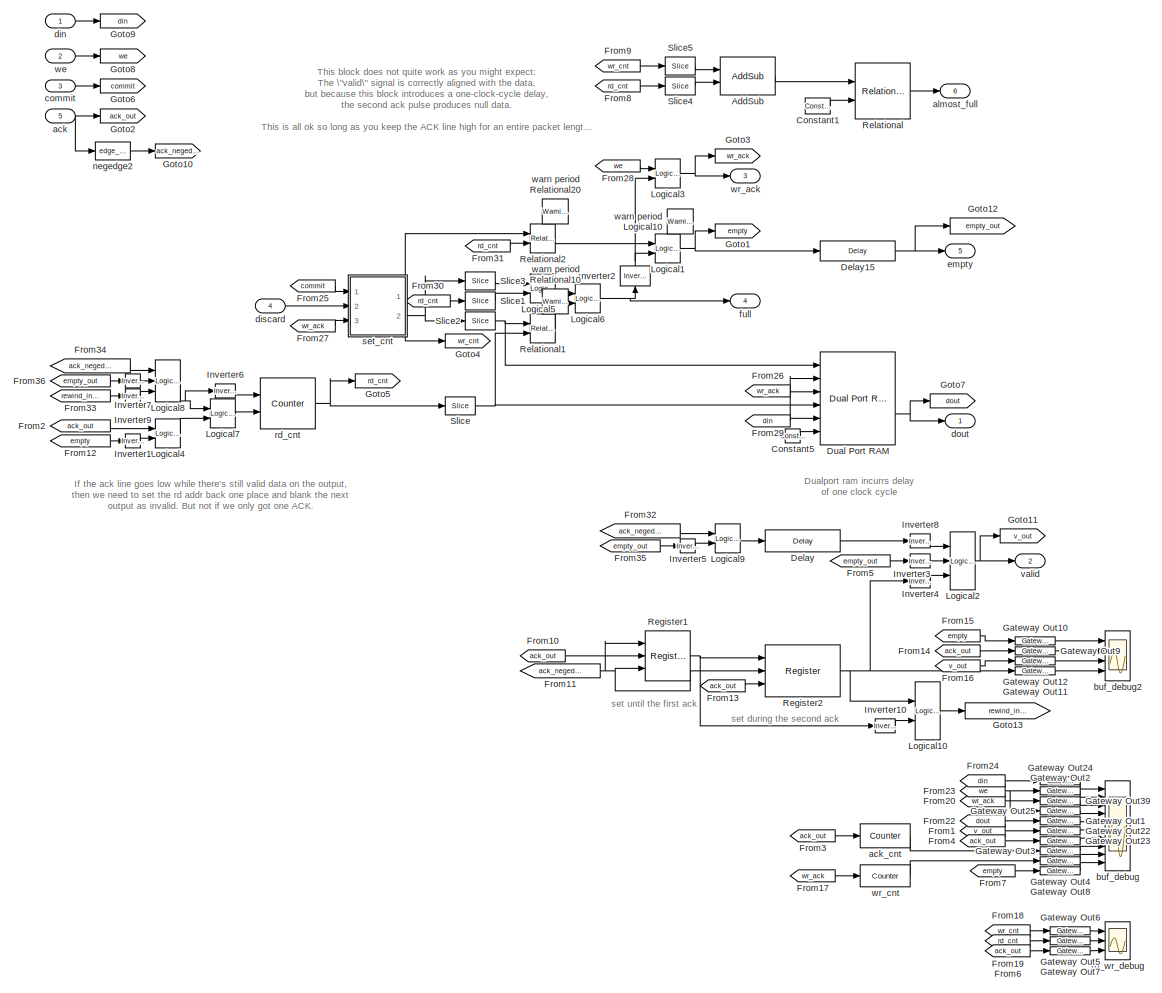
[diagram: pkt_buf/data_FWFT - part 1/1, most of the canvas]
BLOCK [SubSystem] pkt_buf/data_FWFT
  AttributesFormatString = Depth: 1024
  FunctionWithSeparateData = off
  MaskCallbackString = |
  MaskDescription = A rollback fifo behaves as a normal fifo, except that data which are written in have to be \"committed\" before they become available for readout.  Moreover, any data which are written in and have not been committed can be \"discarded\", and will never be made available for readout.
  MaskEnableString = on,on
  MaskHideContents = off
  MaskIconFrame = on
  MaskIconOpaque = on
  MaskIconRotate = none
  MaskIconUnits = autoscale
  MaskInitialization = fmtstr = sprintf('Depth: %d', 2^depth_bits);\nset_param(gcb, 'AttributesFormatString', fmtstr);
  MaskPromptString = Fifo Depth (2^?):|Issue almost full warning when (2^?) from full
  MaskStyleString = edit,edit
  MaskToolTipString = on,on
  MaskTunableValueString = on,on
  MaskValueString = depth_data_bits|depth_data_bits-1
  MaskVariables = depth_bits=@1;burst_bits=@2;
  MaskVisibilityString = on,on
  MinAlgLoopOccurrences = off
  Opaque = off
  Ports = [5, 6]
  PropExecContextOutsideSubsystem = off
  RTWSystemCode = Auto
BLOCK [Reference] pkt_buf/data_FWFT/AddSub  REF=xbsIndex_r4/AddSub
  Ports = [2, 1]
  SourceBlock = xbsIndex_r4/AddSub
  SourceType = Xilinx Adder/Subtracter Block
  arith_type = Unsigned
  bin_pt = 0
  block_type = addsub
  block_version = 10.1.3
  dbl_ovrd = off
  en = off
  has_advanced_control = 0
  hw_selection = Fabric
  latency = 0
  mode = Subtraction
  n_bits = depth_bits
  overflow = Wrap
  pipelined = on
  precision = User Defined
  quantization = Truncate
  sg_icon_stat = 55,38,2,1,white,blue,0,32e1f85f,right,,[ ],[ ]
  sg_mask_display = fprintf('','COMMENT: begin icon graphics');\npatch([0 60 60 0 0 ],[0 0 58 58 0 ],[0.77 0.82 0.91 ]);\nplot([0 60 60 0 0 ],[0 0 58 58 0 ]);\npatch([12.2 23.76 31.76 39.76 47.76 31.76 20.2 12.2 ],[37.88 37.88 45.88 37.88 45.88 45.88 45.88 37.88 ],[1 1 1 ]);\npatch([20.2 31.76 23.76 12.2 20.2 ],[29.88 29.88 37.88 37.88 29.88 ],[0.931 0.946 0.973 ]);\npatch([12.2 23.76 31.76 20.2 12.2 ],[21.88 21.88 2...<+424ch>
  sggui_pos = 20,20,348,342
  use_behavioral_HDL = off
  use_carryin = off
  use_carryout = off
  use_rpm = on
  xl_area = [0,0,0,0,0,0,0]
  xl_use_area = off
BLOCK [Reference] pkt_buf/data_FWFT/Constant1  REF=xbsIndex_r4/Constant
  Ports = [0, 1]
  SourceBlock = xbsIndex_r4/Constant
  SourceType = Xilinx Constant Block Block
  arith_type = Unsigned
  bin_pt = 0
  block_type = constant
  block_version = 10.1.3
  carry = CIN
  const = (2^depth_bits) - 2^(burst_bits)-1
  dbl_ovrd = off
  dsp48_infoedit = The use of this block for DSP48 instructions is deprecated.  Please use the Opmode block.
  equ = P=C
  exp_width = 8
  explicit_period = on
  frac_width = 24
  gui_display_data_type = Fixed-point
  has_advanced_control = 0
  inp1 = P
  inp2 = PCIN>>17
  n_bits = depth_bits+1
  opr = +
  opselect = C
  period = 1
  preci_type = Single
  sg_icon_stat = 25,16,0,1,white,blue,0,468bff1c,right,,[ ],[ ]
  sggui_pos = 20,20,414,344
BLOCK [Reference] pkt_buf/data_FWFT/Constant5  REF=xbsIndex_r4/Constant
  Ports = [0, 1]
  SourceBlock = xbsIndex_r4/Constant
  SourceType = Xilinx Constant Block Block
  arith_type = Boolean
  bin_pt = 0
  block_type = constant
  block_version = 10.1.3
  carry = CIN
  const = 0
  dbl_ovrd = off
  dsp48_infoedit = The use of this block for DSP48 instructions is deprecated.  Please use the Opmode block.
  equ = P=C
  exp_width = 8
  explicit_period = on
  frac_width = 24
  gui_display_data_type = Fixed-point
  has_advanced_control = 0
  inp1 = P
  inp2 = PCIN>>17
  n_bits = 1
  opr = +
  opselect = C
  period = 1
  preci_type = Single
  sg_icon_stat = 15,14,0,1,white,blue,0,bf4ddd8b,right,,[ ],[ ]
  sg_mask_display = fprintf('','COMMENT: begin icon graphics');\npatch([0 15 15 0 0 ],[0 0 14 14 0 ],[0.77 0.82 0.91 ]);\nplot([0 15 15 0 0 ],[0 0 14 14 0 ]);\npatch([2.55 5.44 7.44 9.44 11.44 7.44 4.55 2.55 ],[9.22 9.22 11.22 9.22 11.22 11.22 11.22 9.22 ],[1 1 1 ]);\npatch([4.55 7.44 5.44 2.55 4.55 ],[7.22 7.22 9.22 9.22 7.22 ],[0.931 0.946 0.973 ]);\npatch([2.55 5.44 7.44 4.55 2.55 ],[5.22 5.22 7.22 7.22 5.22 ],[1 ...<+281ch>
  sggui_pos = -1,-1,-1,-1
BLOCK [Reference] pkt_buf/data_FWFT/Delay  REF=xbsIndex_r4/Delay
  Ports = [1, 1]
  SourceBlock = xbsIndex_r4/Delay
  SourceType = Xilinx Delay Block
  block_type = delay
  block_version = 10.1.3
  dbl_ovrd = off
  en = off
  has_advanced_control = 0
  infoedit = Hardware notes: A delay line is a chain, each link of which is an SRL16 followed by a flip-flop.
  infoeditControl = Selection of Reset will increase slice count due to use of real FFs and instead of SRLs
  latency = 1
  reg_retiming = on
  rst = off
  sg_icon_stat = 75,22,1,1,white,blue,0,07b98262,right,,[ ],[ ]
  sg_mask_display = fprintf('','COMMENT: begin icon graphics');\npatch([0 75 75 0 0 ],[0 0 22 22 0 ],[0.77 0.82 0.91 ]);\nplot([0 75 75 0 0 ],[0 0 22 22 0 ]);\npatch([30.325 34.66 37.66 40.66 43.66 37.66 33.325 30.325 ],[14.33 14.33 17.33 14.33 17.33 17.33 17.33 14.33 ],[1 1 1 ]);\npatch([33.325 37.66 34.66 30.325 33.325 ],[11.33 11.33 14.33 14.33 11.33 ],[0.931 0.946 0.973 ]);\npatch([30.325 34.66 37.66 33.325 30.32...<+334ch>
  sggui_pos = -1,-1,-1,-1
  xl_area = [0, 0, 0, 0, 0, 0, 0]
  xl_use_area = off
BLOCK [Reference] pkt_buf/data_FWFT/Delay15  REF=xbsIndex_r4/Delay
  Ports = [1, 1]
  SourceBlock = xbsIndex_r4/Delay
  SourceType = Xilinx Delay Block
  block_type = delay
  block_version = 10.1.3
  dbl_ovrd = off
  en = off
  has_advanced_control = 0
  infoedit = Hardware notes: A delay line is a chain, each link of which is an SRL16 followed by a flip-flop.
  infoeditControl = Selection of Reset will increase slice count due to use of real FFs and instead of SRLs
  latency = 1
  reg_retiming = on
  rst = off
  sg_icon_stat = 75,20,1,1,white,blue,0,07b98262,right,,[ ],[ ]
  sg_mask_display = fprintf('','COMMENT: begin icon graphics');\npatch([0 75 75 0 0 ],[0 0 20 20 0 ],[0.77 0.82 0.91 ]);\nplot([0 75 75 0 0 ],[0 0 20 20 0 ]);\npatch([32.55 35.44 37.44 39.44 41.44 37.44 34.55 32.55 ],[12.22 12.22 14.22 12.22 14.22 14.22 14.22 12.22 ],[1 1 1 ]);\npatch([34.55 37.44 35.44 32.55 34.55 ],[10.22 10.22 12.22 12.22 10.22 ],[0.931 0.946 0.973 ]);\npatch([32.55 35.44 37.44 34.55 32.55 ],[8.22...<+322ch>
  sggui_pos = -1,-1,-1,-1
  xl_area = [0, 0, 0, 0, 0, 0, 0]
  xl_use_area = off
BLOCK [Reference] pkt_buf/data_FWFT/Dual Port RAM  REF=xbsIndex_r4/Dual Port RAM
  Ports = [6, 2]
  SourceBlock = xbsIndex_r4/Dual Port RAM
  SourceType = Xilinx Dual Port Random Access Memory Block
  block_type = dpram
  block_version = 10.1.3
  dbl_ovrd = off
  depth = 2^depth_bits
  distributed_mem = Block RAM
  en_a = off
  en_b = off
  has_advanced_control = 0
  initVector = 0
  init_a = 0
  init_b = 0
  latency = 1
  optimize = Area
  rst_a = off
  rst_b = off
  sg_icon_stat = 75,93,6,2,white,blue,0,28af736d,right,,[ ],[ ]
  sg_mask_display = fprintf('','COMMENT: begin icon graphics');\npatch([0 75 75 0 0 ],[0 0 165 165 0 ],[0.77 0.82 0.91 ]);\nplot([0 75 75 0 0 ],[0 0 165 165 0 ]);\npatch([14.75 29.2 39.2 49.2 59.2 39.2 24.75 14.75 ],[93.1 93.1 103.1 93.1 103.1 103.1 103.1 93.1 ],[1 1 1 ]);\npatch([24.75 39.2 29.2 14.75 24.75 ],[83.1 83.1 93.1 93.1 83.1 ],[0.931 0.946 0.973 ]);\npatch([14.75 29.2 39.2 24.75 14.75 ],[73.1 73.1 83.1 83....<+615ch>
  sggui_pos = -1,-1,-1,-1
  write_mode_A = Read Before Write
  write_mode_B = Read Before Write
  xl_area = [0, 0, 0, 0, 0, 0, 0]
  xl_use_area = off
BLOCK [From] pkt_buf/data_FWFT/From1
  CloseFcn = tagdialog Close
  GotoTag = v_out
BLOCK [From] pkt_buf/data_FWFT/From10
  CloseFcn = tagdialog Close
  GotoTag = ack_out
BLOCK [From] pkt_buf/data_FWFT/From11
  CloseFcn = tagdialog Close
  GotoTag = ack_negedge
BLOCK [From] pkt_buf/data_FWFT/From12
  CloseFcn = tagdialog Close
  GotoTag = empty
BLOCK [From] pkt_buf/data_FWFT/From13
  CloseFcn = tagdialog Close
  GotoTag = ack_out
BLOCK [From] pkt_buf/data_FWFT/From14
  CloseFcn = tagdialog Close
  GotoTag = ack_out
BLOCK [From] pkt_buf/data_FWFT/From15
  CloseFcn = tagdialog Close
  GotoTag = empty
BLOCK [From] pkt_buf/data_FWFT/From16
  CloseFcn = tagdialog Close
  GotoTag = v_out
BLOCK [From] pkt_buf/data_FWFT/From17
  CloseFcn = tagdialog Close
  GotoTag = wr_ack
BLOCK [From] pkt_buf/data_FWFT/From18
  CloseFcn = tagdialog Close
  GotoTag = wr_cnt
BLOCK [From] pkt_buf/data_FWFT/From19
  CloseFcn = tagdialog Close
  GotoTag = rd_cnt
BLOCK [From] pkt_buf/data_FWFT/From2
  CloseFcn = tagdialog Close
  GotoTag = ack_out
BLOCK [From] pkt_buf/data_FWFT/From20
  CloseFcn = tagdialog Close
  GotoTag = wr_ack
BLOCK [From] pkt_buf/data_FWFT/From22
  CloseFcn = tagdialog Close
  GotoTag = dout
BLOCK [From] pkt_buf/data_FWFT/From23
  CloseFcn = tagdialog Close
  GotoTag = we
BLOCK [From] pkt_buf/data_FWFT/From24
  CloseFcn = tagdialog Close
  GotoTag = din
BLOCK [From] pkt_buf/data_FWFT/From25
  CloseFcn = tagdialog Close
  GotoTag = commit
BLOCK [From] pkt_buf/data_FWFT/From26
  CloseFcn = tagdialog Close
  GotoTag = wr_ack
BLOCK [From] pkt_buf/data_FWFT/From27
  CloseFcn = tagdialog Close
  GotoTag = wr_ack
BLOCK [From] pkt_buf/data_FWFT/From28
  CloseFcn = tagdialog Close
  GotoTag = we
BLOCK [From] pkt_buf/data_FWFT/From29
  CloseFcn = tagdialog Close
  GotoTag = din
BLOCK [From] pkt_buf/data_FWFT/From3
  CloseFcn = tagdialog Close
  GotoTag = ack_out
BLOCK [From] pkt_buf/data_FWFT/From30
  CloseFcn = tagdialog Close
  GotoTag = rd_cnt
BLOCK [From] pkt_buf/data_FWFT/From31
  CloseFcn = tagdialog Close
  GotoTag = rd_cnt
BLOCK [From] pkt_buf/data_FWFT/From32
  CloseFcn = tagdialog Close
  GotoTag = ack_negedge
BLOCK [From] pkt_buf/data_FWFT/From33
  CloseFcn = tagdialog Close
  GotoTag = rewind_inhibit
BLOCK [From] pkt_buf/data_FWFT/From34
  CloseFcn = tagdialog Close
  GotoTag = ack_negedge
BLOCK [From] pkt_buf/data_FWFT/From35
  CloseFcn = tagdialog Close
  GotoTag = empty_out
BLOCK [From] pkt_buf/data_FWFT/From36
  CloseFcn = tagdialog Close
  GotoTag = empty_out
BLOCK [From] pkt_buf/data_FWFT/From4
  CloseFcn = tagdialog Close
  GotoTag = ack_out
BLOCK [From] pkt_buf/data_FWFT/From5
  CloseFcn = tagdialog Close
  GotoTag = empty_out
BLOCK [From] pkt_buf/data_FWFT/From6
  CloseFcn = tagdialog Close
  GotoTag = ack_out
BLOCK [From] pkt_buf/data_FWFT/From7
  CloseFcn = tagdialog Close
  GotoTag = empty
BLOCK [From] pkt_buf/data_FWFT/From8
  CloseFcn = tagdialog Close
  GotoTag = rd_cnt
BLOCK [From] pkt_buf/data_FWFT/From9
  CloseFcn = tagdialog Close
  GotoTag = wr_cnt
BLOCK [Reference] pkt_buf/data_FWFT/Gateway Out1  REF=xbsIndex_r4/Gateway Out
  DACChannel = '1'
  LOCs = {}
  Ports = [1, 1]
  SourceBlock = xbsIndex_r4/Gateway Out
  SourceType = Xilinx Gateway Out Block
  UseAsDAC = off
  block_type = gatewayout
  block_version = 10.1.3
  has_advanced_control = 0
  hdl_port = on
  inherit_from_input = off
  locs_specified = off
  sg_icon_stat = 40,8,1,1,white,yellow,1,cc31b7ac,right,,[ ],[ ]
  sg_mask_display = fprintf('','COMMENT: begin icon graphics');\npatch([0 40 40 0 0 ],[0 0 8 8 0 ],[0.95 0.93 0.65 ]);\nplot([0 40 40 0 0 ],[0 0 8 8 0 ]);\npatch([17.775 19.22 20.22 21.22 22.22 20.22 18.775 17.775 ],[5.11 5.11 6.11 5.11 6.11 6.11 6.11 5.11 ],[1 1 1 ]);\npatch([18.775 20.22 19.22 17.775 18.775 ],[4.11 4.11 5.11 5.11 4.11 ],[0.985 0.979 0.895 ]);\npatch([17.775 19.22 20.22 18.775 17.775 ],[3.11 3.11 4....<+390ch>  <repeated x17 — deduplicated; at blocks: Gateway Out1, Gateway Out10, Gateway Out11, Gateway Out12, Gateway Out2, Gateway Out22, Gateway Out23, Gateway Out24, Gateway Out25, Gateway Out3, Gateway Out39, Gateway Out4, Gateway Out5, Gateway Out6, Gateway Out7, Gateway Out8, +1 more>
  sggui_pos = -1,-1,-1,-1
  timing_constraint = None
  xl_area = [0, 0, 0, 0, 0, 0, 0]
  xl_use_area = off
BLOCK [Reference] pkt_buf/data_FWFT/Gateway Out10  REF=xbsIndex_r4/Gateway Out
  DACChannel = '1'
  LOCs = {}
  Ports = [1, 1]
  SourceBlock = xbsIndex_r4/Gateway Out
  SourceType = Xilinx Gateway Out Block
  UseAsDAC = off
  block_type = gatewayout
  block_version = 10.1.3
  has_advanced_control = 0
  hdl_port = on
  inherit_from_input = off
  locs_specified = off
  sg_icon_stat = 40,8,1,1,white,yellow,1,cc31b7ac,right,,[ ],[ ]
  sggui_pos = -1,-1,-1,-1
  timing_constraint = None
  xl_area = [0, 0, 0, 0, 0, 0, 0]
  xl_use_area = off
BLOCK [Reference] pkt_buf/data_FWFT/Gateway Out11  REF=xbsIndex_r4/Gateway Out
  DACChannel = '1'
  LOCs = {}
  Ports = [1, 1]
  SourceBlock = xbsIndex_r4/Gateway Out
  SourceType = Xilinx Gateway Out Block
  UseAsDAC = off
  block_type = gatewayout
  block_version = 10.1.3
  has_advanced_control = 0
  hdl_port = on
  inherit_from_input = off
  locs_specified = off
  sg_icon_stat = 40,8,1,1,white,yellow,1,cc31b7ac,right,,[ ],[ ]
  sggui_pos = -1,-1,-1,-1
  timing_constraint = None
  xl_area = [0, 0, 0, 0, 0, 0, 0]
  xl_use_area = off
BLOCK [Reference] pkt_buf/data_FWFT/Gateway Out12  REF=xbsIndex_r4/Gateway Out
  DACChannel = '1'
  LOCs = {}
  Ports = [1, 1]
  SourceBlock = xbsIndex_r4/Gateway Out
  SourceType = Xilinx Gateway Out Block
  UseAsDAC = off
  block_type = gatewayout
  block_version = 10.1.3
  has_advanced_control = 0
  hdl_port = on
  inherit_from_input = off
  locs_specified = off
  sg_icon_stat = 40,8,1,1,white,yellow,1,cc31b7ac,right,,[ ],[ ]
  sggui_pos = -1,-1,-1,-1
  timing_constraint = None
  xl_area = [0, 0, 0, 0, 0, 0, 0]
  xl_use_area = off
BLOCK [Reference] pkt_buf/data_FWFT/Gateway Out2  REF=xbsIndex_r4/Gateway Out
  DACChannel = '1'
  LOCs = {}
  Ports = [1, 1]
  SourceBlock = xbsIndex_r4/Gateway Out
  SourceType = Xilinx Gateway Out Block
  UseAsDAC = off
  block_type = gatewayout
  block_version = 10.1.3
  has_advanced_control = 0
  hdl_port = on
  inherit_from_input = off
  locs_specified = off
  sg_icon_stat = 40,8,1,1,white,yellow,1,cc31b7ac,right,,[ ],[ ]
  sggui_pos = -1,-1,-1,-1
  timing_constraint = None
  xl_area = [0, 0, 0, 0, 0, 0, 0]
  xl_use_area = off
BLOCK [Reference] pkt_buf/data_FWFT/Gateway Out22  REF=xbsIndex_r4/Gateway Out
  DACChannel = '1'
  LOCs = {}
  Ports = [1, 1]
  SourceBlock = xbsIndex_r4/Gateway Out
  SourceType = Xilinx Gateway Out Block
  UseAsDAC = off
  block_type = gatewayout
  block_version = 10.1.3
  has_advanced_control = 0
  hdl_port = on
  inherit_from_input = off
  locs_specified = off
  sg_icon_stat = 40,8,1,1,white,yellow,1,cc31b7ac,right,,[ ],[ ]
  sggui_pos = -1,-1,-1,-1
  timing_constraint = None
  xl_area = [0, 0, 0, 0, 0, 0, 0]
  xl_use_area = off
BLOCK [Reference] pkt_buf/data_FWFT/Gateway Out23  REF=xbsIndex_r4/Gateway Out
  DACChannel = '1'
  LOCs = {}
  Ports = [1, 1]
  SourceBlock = xbsIndex_r4/Gateway Out
  SourceType = Xilinx Gateway Out Block
  UseAsDAC = off
  block_type = gatewayout
  block_version = 10.1.3
  has_advanced_control = 0
  hdl_port = on
  inherit_from_input = off
  locs_specified = off
  sg_icon_stat = 40,8,1,1,white,yellow,1,cc31b7ac,right,,[ ],[ ]
  sggui_pos = -1,-1,-1,-1
  timing_constraint = None
  xl_area = [0, 0, 0, 0, 0, 0, 0]
  xl_use_area = off
BLOCK [Reference] pkt_buf/data_FWFT/Gateway Out24  REF=xbsIndex_r4/Gateway Out
  DACChannel = '1'
  LOCs = {}
  Ports = [1, 1]
  SourceBlock = xbsIndex_r4/Gateway Out
  SourceType = Xilinx Gateway Out Block
  UseAsDAC = off
  block_type = gatewayout
  block_version = 10.1.3
  has_advanced_control = 0
  hdl_port = on
  inherit_from_input = off
  locs_specified = off
  sg_icon_stat = 40,8,1,1,white,yellow,1,cc31b7ac,right,,[ ],[ ]
  sggui_pos = -1,-1,-1,-1
  timing_constraint = None
  xl_area = [0, 0, 0, 0, 0, 0, 0]
  xl_use_area = off
BLOCK [Reference] pkt_buf/data_FWFT/Gateway Out25  REF=xbsIndex_r4/Gateway Out
  DACChannel = '1'
  LOCs = {}
  Ports = [1, 1]
  SourceBlock = xbsIndex_r4/Gateway Out
  SourceType = Xilinx Gateway Out Block
  UseAsDAC = off
  block_type = gatewayout
  block_version = 10.1.3
  has_advanced_control = 0
  hdl_port = on
  inherit_from_input = off
  locs_specified = off
  sg_icon_stat = 40,8,1,1,white,yellow,1,cc31b7ac,right,,[ ],[ ]
  sggui_pos = -1,-1,-1,-1
  timing_constraint = None
  xl_area = [0, 0, 0, 0, 0, 0, 0]
  xl_use_area = off
BLOCK [Reference] pkt_buf/data_FWFT/Gateway Out3  REF=xbsIndex_r4/Gateway Out
  DACChannel = '1'
  LOCs = {}
  Ports = [1, 1]
  SourceBlock = xbsIndex_r4/Gateway Out
  SourceType = Xilinx Gateway Out Block
  UseAsDAC = off
  block_type = gatewayout
  block_version = 10.1.3
  has_advanced_control = 0
  hdl_port = on
  inherit_from_input = off
  locs_specified = off
  sg_icon_stat = 40,8,1,1,white,yellow,1,cc31b7ac,right,,[ ],[ ]
  sggui_pos = -1,-1,-1,-1
  timing_constraint = None
  xl_area = [0, 0, 0, 0, 0, 0, 0]
  xl_use_area = off
BLOCK [Reference] pkt_buf/data_FWFT/Gateway Out39  REF=xbsIndex_r4/Gateway Out
  DACChannel = '1'
  LOCs = {}
  Ports = [1, 1]
  SourceBlock = xbsIndex_r4/Gateway Out
  SourceType = Xilinx Gateway Out Block
  UseAsDAC = off
  block_type = gatewayout
  block_version = 10.1.3
  has_advanced_control = 0
  hdl_port = on
  inherit_from_input = off
  locs_specified = off
  sg_icon_stat = 40,8,1,1,white,yellow,1,cc31b7ac,right,,[ ],[ ]
  sggui_pos = -1,-1,-1,-1
  timing_constraint = None
  xl_area = [0, 0, 0, 0, 0, 0, 0]
  xl_use_area = off
BLOCK [Reference] pkt_buf/data_FWFT/Gateway Out4  REF=xbsIndex_r4/Gateway Out
  DACChannel = '1'
  LOCs = {}
  Ports = [1, 1]
  SourceBlock = xbsIndex_r4/Gateway Out
  SourceType = Xilinx Gateway Out Block
  UseAsDAC = off
  block_type = gatewayout
  block_version = 10.1.3
  has_advanced_control = 0
  hdl_port = on
  inherit_from_input = off
  locs_specified = off
  sg_icon_stat = 40,8,1,1,white,yellow,1,cc31b7ac,right,,[ ],[ ]
  sggui_pos = -1,-1,-1,-1
  timing_constraint = None
  xl_area = [0, 0, 0, 0, 0, 0, 0]
  xl_use_area = off
BLOCK [Reference] pkt_buf/data_FWFT/Gateway Out5  REF=xbsIndex_r4/Gateway Out
  DACChannel = '1'
  LOCs = {}
  Ports = [1, 1]
  SourceBlock = xbsIndex_r4/Gateway Out
  SourceType = Xilinx Gateway Out Block
  UseAsDAC = off
  block_type = gatewayout
  block_version = 10.1.3
  has_advanced_control = 0
  hdl_port = on
  inherit_from_input = off
  locs_specified = off
  sg_icon_stat = 40,8,1,1,white,yellow,1,cc31b7ac,right,,[ ],[ ]
  sggui_pos = -1,-1,-1,-1
  timing_constraint = None
  xl_area = [0, 0, 0, 0, 0, 0, 0]
  xl_use_area = off
BLOCK [Reference] pkt_buf/data_FWFT/Gateway Out6  REF=xbsIndex_r4/Gateway Out
  DACChannel = '1'
  LOCs = {}
  Ports = [1, 1]
  SourceBlock = xbsIndex_r4/Gateway Out
  SourceType = Xilinx Gateway Out Block
  UseAsDAC = off
  block_type = gatewayout
  block_version = 10.1.3
  has_advanced_control = 0
  hdl_port = on
  inherit_from_input = off
  locs_specified = off
  sg_icon_stat = 40,8,1,1,white,yellow,1,cc31b7ac,right,,[ ],[ ]
  sggui_pos = -1,-1,-1,-1
  timing_constraint = None
  xl_area = [0, 0, 0, 0, 0, 0, 0]
  xl_use_area = off
BLOCK [Reference] pkt_buf/data_FWFT/Gateway Out7  REF=xbsIndex_r4/Gateway Out
  DACChannel = '1'
  LOCs = {}
  Ports = [1, 1]
  SourceBlock = xbsIndex_r4/Gateway Out
  SourceType = Xilinx Gateway Out Block
  UseAsDAC = off
  block_type = gatewayout
  block_version = 10.1.3
  has_advanced_control = 0
  hdl_port = on
  inherit_from_input = off
  locs_specified = off
  sg_icon_stat = 40,8,1,1,white,yellow,1,cc31b7ac,right,,[ ],[ ]
  sggui_pos = -1,-1,-1,-1
  timing_constraint = None
  xl_area = [0, 0, 0, 0, 0, 0, 0]
  xl_use_area = off
BLOCK [Reference] pkt_buf/data_FWFT/Gateway Out8  REF=xbsIndex_r4/Gateway Out
  DACChannel = '1'
  LOCs = {}
  Ports = [1, 1]
  SourceBlock = xbsIndex_r4/Gateway Out
  SourceType = Xilinx Gateway Out Block
  UseAsDAC = off
  block_type = gatewayout
  block_version = 10.1.3
  has_advanced_control = 0
  hdl_port = on
  inherit_from_input = off
  locs_specified = off
  sg_icon_stat = 40,8,1,1,white,yellow,1,cc31b7ac,right,,[ ],[ ]
  sggui_pos = -1,-1,-1,-1
  timing_constraint = None
  xl_area = [0, 0, 0, 0, 0, 0, 0]
  xl_use_area = off
BLOCK [Reference] pkt_buf/data_FWFT/Gateway Out9  REF=xbsIndex_r4/Gateway Out
  DACChannel = '1'
  LOCs = {}
  Ports = [1, 1]
  SourceBlock = xbsIndex_r4/Gateway Out
  SourceType = Xilinx Gateway Out Block
  UseAsDAC = off
  block_type = gatewayout
  block_version = 10.1.3
  has_advanced_control = 0
  hdl_port = on
  inherit_from_input = off
  locs_specified = off
  sg_icon_stat = 40,8,1,1,white,yellow,1,cc31b7ac,right,,[ ],[ ]
  sggui_pos = -1,-1,-1,-1
  timing_constraint = None
  xl_area = [0, 0, 0, 0, 0, 0, 0]
  xl_use_area = off
BLOCK [Goto] pkt_buf/data_FWFT/Goto1
  GotoTag = empty
BLOCK [Goto] pkt_buf/data_FWFT/Goto10
  GotoTag = ack_negedge
BLOCK [Goto] pkt_buf/data_FWFT/Goto11
  GotoTag = v_out
BLOCK [Goto] pkt_buf/data_FWFT/Goto12
  GotoTag = empty_out
BLOCK [Goto] pkt_buf/data_FWFT/Goto13
  GotoTag = rewind_inhibit
BLOCK [Goto] pkt_buf/data_FWFT/Goto2
  GotoTag = ack_out
BLOCK [Goto] pkt_buf/data_FWFT/Goto3
  GotoTag = wr_ack
BLOCK [Goto] pkt_buf/data_FWFT/Goto4
  GotoTag = wr_cnt
BLOCK [Goto] pkt_buf/data_FWFT/Goto5
  GotoTag = rd_cnt
BLOCK [Goto] pkt_buf/data_FWFT/Goto6
  GotoTag = commit
BLOCK [Goto] pkt_buf/data_FWFT/Goto7
  GotoTag = dout
BLOCK [Goto] pkt_buf/data_FWFT/Goto8
  GotoTag = we
BLOCK [Goto] pkt_buf/data_FWFT/Goto9
  GotoTag = din
BLOCK [Reference] pkt_buf/data_FWFT/Inverter1  REF=xbsIndex_r4/Inverter
  Ports = [1, 1]
  SourceBlock = xbsIndex_r4/Inverter
  SourceType = Xilinx Inverter Block
  block_type = inv
  block_version = 10.1.3
  dbl_ovrd = off
  en = off
  has_advanced_control = 0
  infoedit = Bitwise logical negation (one's complement) operator.
  latency = 0
  sg_icon_stat = 15,14,1,1,white,blue,0,267846e5,right,,[ ],[ ]
  sg_mask_display = fprintf('','COMMENT: begin icon graphics');\npatch([0 15 15 0 0 ],[0 0 14 14 0 ],[0.77 0.82 0.91 ]);\nplot([0 15 15 0 0 ],[0 0 14 14 0 ]);\npatch([2.55 5.44 7.44 9.44 11.44 7.44 4.55 2.55 ],[9.22 9.22 11.22 9.22 11.22 11.22 11.22 9.22 ],[1 1 1 ]);\npatch([4.55 7.44 5.44 2.55 4.55 ],[7.22 7.22 9.22 9.22 7.22 ],[0.931 0.946 0.973 ]);\npatch([2.55 5.44 7.44 4.55 2.55 ],[5.22 5.22 7.22 7.22 5.22 ],[1 ...<+270ch>  <repeated x4 — deduplicated; at blocks: Inverter1, Inverter5, Inverter7, Inverter9>
  sggui_pos = -1,-1,-1,-1
  xl_area = [0, 0, 0, 0, 0, 0, 0]
  xl_use_area = off
BLOCK [Reference] pkt_buf/data_FWFT/Inverter10  REF=xbsIndex_r4/Inverter
  Ports = [1, 1]
  SourceBlock = xbsIndex_r4/Inverter
  SourceType = Xilinx Inverter Block
  block_type = inv
  block_version = 10.1.3
  dbl_ovrd = off
  en = off
  has_advanced_control = 0
  infoedit = Bitwise logical negation (one's complement) operator.
  latency = 0
  sg_icon_stat = 20,14,1,1,white,blue,0,267846e5,right,,[ ],[ ]
  sg_mask_display = fprintf('','COMMENT: begin icon graphics');\npatch([0 20 20 0 0 ],[0 0 14 14 0 ],[0.77 0.82 0.91 ]);\nplot([0 20 20 0 0 ],[0 0 14 14 0 ]);\npatch([5.55 8.44 10.44 12.44 14.44 10.44 7.55 5.55 ],[9.22 9.22 11.22 9.22 11.22 11.22 11.22 9.22 ],[1 1 1 ]);\npatch([7.55 10.44 8.44 5.55 7.55 ],[7.22 7.22 9.22 9.22 7.22 ],[0.931 0.946 0.973 ]);\npatch([5.55 8.44 10.44 7.55 5.55 ],[5.22 5.22 7.22 7.22 5.22 ...<+277ch>  <repeated x5 — deduplicated; at blocks: Inverter10, Inverter3, Inverter4, Inverter6, Inverter8>
  sggui_pos = -1,-1,-1,-1
  xl_area = [0, 0, 0, 0, 0, 0, 0]
  xl_use_area = off
BLOCK [Reference] pkt_buf/data_FWFT/Inverter2  REF=xbsIndex_r4/Inverter
  Ports = [1, 1]
  SourceBlock = xbsIndex_r4/Inverter
  SourceType = Xilinx Inverter Block
  block_type = inv
  block_version = 10.1.3
  dbl_ovrd = off
  en = off
  has_advanced_control = 0
  infoedit = Bitwise logical negation (one's complement) operator.
  latency = 0
  sg_icon_stat = 30,20,1,1,white,blue,0,267846e5,up,,[ ],[ ]
  sg_mask_display = fprintf('','COMMENT: begin icon graphics');\npatch([0 30 30 0 0 ],[0 0 20 20 0 ],[0.77 0.82 0.91 ]);\nplot([0 30 30 0 0 ],[0 0 20 20 0 ]);\npatch([10.55 13.44 15.44 17.44 19.44 15.44 12.55 10.55 ],[12.22 12.22 14.22 12.22 14.22 14.22 14.22 12.22 ],[1 1 1 ]);\npatch([12.55 15.44 13.44 10.55 12.55 ],[10.22 10.22 12.22 12.22 10.22 ],[0.931 0.946 0.973 ]);\npatch([10.55 13.44 15.44 12.55 10.55 ],[8.22...<+306ch>
  sggui_pos = -1,-1,-1,-1
  xl_area = [0, 0, 0, 0, 0, 0, 0]
  xl_use_area = off
BLOCK [Reference] pkt_buf/data_FWFT/Inverter3  REF=xbsIndex_r4/Inverter
  Ports = [1, 1]
  SourceBlock = xbsIndex_r4/Inverter
  SourceType = Xilinx Inverter Block
  block_type = inv
  block_version = 10.1.3
  dbl_ovrd = off
  en = off
  has_advanced_control = 0
  infoedit = Bitwise logical negation (one's complement) operator.
  latency = 0
  sg_icon_stat = 20,14,1,1,white,blue,0,267846e5,right,,[ ],[ ]
  sggui_pos = -1,-1,-1,-1
  xl_area = [0, 0, 0, 0, 0, 0, 0]
  xl_use_area = off
BLOCK [Reference] pkt_buf/data_FWFT/Inverter4  REF=xbsIndex_r4/Inverter
  Ports = [1, 1]
  SourceBlock = xbsIndex_r4/Inverter
  SourceType = Xilinx Inverter Block
  block_type = inv
  block_version = 10.1.3
  dbl_ovrd = off
  en = off
  has_advanced_control = 0
  infoedit = Bitwise logical negation (one's complement) operator.
  latency = 0
  sg_icon_stat = 20,14,1,1,white,blue,0,267846e5,right,,[ ],[ ]
  sggui_pos = -1,-1,-1,-1
  xl_area = [0, 0, 0, 0, 0, 0, 0]
  xl_use_area = off
BLOCK [Reference] pkt_buf/data_FWFT/Inverter5  REF=xbsIndex_r4/Inverter
  Ports = [1, 1]
  SourceBlock = xbsIndex_r4/Inverter
  SourceType = Xilinx Inverter Block
  block_type = inv
  block_version = 10.1.3
  dbl_ovrd = off
  en = off
  has_advanced_control = 0
  infoedit = Bitwise logical negation (one's complement) operator.
  latency = 0
  sg_icon_stat = 15,14,1,1,white,blue,0,267846e5,right,,[ ],[ ]
  sggui_pos = -1,-1,-1,-1
  xl_area = [0, 0, 0, 0, 0, 0, 0]
  xl_use_area = off
BLOCK [Reference] pkt_buf/data_FWFT/Inverter6  REF=xbsIndex_r4/Inverter
  Ports = [1, 1]
  SourceBlock = xbsIndex_r4/Inverter
  SourceType = Xilinx Inverter Block
  block_type = inv
  block_version = 10.1.3
  dbl_ovrd = off
  en = off
  has_advanced_control = 0
  infoedit = Bitwise logical negation (one's complement) operator.
  latency = 0
  sg_icon_stat = 20,14,1,1,white,blue,0,267846e5,right,,[ ],[ ]
  sggui_pos = -1,-1,-1,-1
  xl_area = [0, 0, 0, 0, 0, 0, 0]
  xl_use_area = off
BLOCK [Reference] pkt_buf/data_FWFT/Inverter7  REF=xbsIndex_r4/Inverter
  Ports = [1, 1]
  SourceBlock = xbsIndex_r4/Inverter
  SourceType = Xilinx Inverter Block
  block_type = inv
  block_version = 10.1.3
  dbl_ovrd = off
  en = off
  has_advanced_control = 0
  infoedit = Bitwise logical negation (one's complement) operator.
  latency = 0
  sg_icon_stat = 15,14,1,1,white,blue,0,267846e5,right,,[ ],[ ]
  sggui_pos = -1,-1,-1,-1
  xl_area = [0, 0, 0, 0, 0, 0, 0]
  xl_use_area = off
BLOCK [Reference] pkt_buf/data_FWFT/Inverter8  REF=xbsIndex_r4/Inverter
  Ports = [1, 1]
  SourceBlock = xbsIndex_r4/Inverter
  SourceType = Xilinx Inverter Block
  block_type = inv
  block_version = 10.1.3
  dbl_ovrd = off
  en = off
  has_advanced_control = 0
  infoedit = Bitwise logical negation (one's complement) operator.
  latency = 0
  sg_icon_stat = 20,14,1,1,white,blue,0,267846e5,right,,[ ],[ ]
  sggui_pos = -1,-1,-1,-1
  xl_area = [0, 0, 0, 0, 0, 0, 0]
  xl_use_area = off
BLOCK [Reference] pkt_buf/data_FWFT/Inverter9  REF=xbsIndex_r4/Inverter
  Ports = [1, 1]
  SourceBlock = xbsIndex_r4/Inverter
  SourceType = Xilinx Inverter Block
  block_type = inv
  block_version = 10.1.3
  dbl_ovrd = off
  en = off
  has_advanced_control = 0
  infoedit = Bitwise logical negation (one's complement) operator.
  latency = 0
  sg_icon_stat = 15,14,1,1,white,blue,0,267846e5,right,,[ ],[ ]
  sggui_pos = -1,-1,-1,-1
  xl_area = [0, 0, 0, 0, 0, 0, 0]
  xl_use_area = off
BLOCK [Reference] pkt_buf/data_FWFT/Logical1  REF=xbsIndex_r4/Logical
  Ports = [2, 1]
  SourceBlock = xbsIndex_r4/Logical
  SourceType = Xilinx Logical Block Block
  align_bp = on
  arith_type = Unsigned
  bin_pt = 2
  block_type = logical
  block_version = 10.1.3
  dbl_ovrd = off
  en = off
  has_advanced_control = 0
  inputs = 2
  latency = 0
  logical_function = AND
  n_bits = 8
  precision = Full
  sg_icon_stat = 25,29,2,1,white,blue,0,83a4b621,right,,[ ],[ ]
  sg_mask_display = fprintf('','COMMENT: begin icon graphics');\npatch([0 25 25 0 0 ],[0 0 29 29 0 ],[0.77 0.82 0.91 ]);\nplot([0 25 25 0 0 ],[0 0 29 29 0 ]);\npatch([5.325 9.66 12.66 15.66 18.66 12.66 8.325 5.325 ],[17.33 17.33 20.33 17.33 20.33 20.33 20.33 17.33 ],[1 1 1 ]);\npatch([8.325 12.66 9.66 5.325 8.325 ],[14.33 14.33 17.33 17.33 14.33 ],[0.931 0.946 0.973 ]);\npatch([5.325 9.66 12.66 8.325 5.325 ],[11.33 1...<+308ch>  <repeated x11 — deduplicated; at blocks: Logical1, Logical3, Logical4, Logical5, Logical6, Logical9>
  sggui_pos = -1,-1,-1,-1
  xl_area = [0, 0, 0, 0, 0, 0, 0]
  xl_use_area = off
BLOCK [Reference] pkt_buf/data_FWFT/Logical10  REF=xbsIndex_r4/Logical
  Ports = [2, 1]
  SourceBlock = xbsIndex_r4/Logical
  SourceType = Xilinx Logical Block Block
  align_bp = on
  arith_type = Unsigned
  bin_pt = 2
  block_type = logical
  block_version = 10.1.3
  dbl_ovrd = off
  en = off
  has_advanced_control = 0
  inputs = 2
  latency = 0
  logical_function = AND
  n_bits = 8
  precision = Full
  sg_icon_stat = 25,58,2,1,white,blue,0,83a4b621,right,,[ ],[ ]
  sg_mask_display = fprintf('','COMMENT: begin icon graphics');\npatch([0 25 25 0 0 ],[0 0 58 58 0 ],[0.77 0.82 0.91 ]);\nplot([0 25 25 0 0 ],[0 0 58 58 0 ]);\npatch([5.325 9.66 12.66 15.66 18.66 12.66 8.325 5.325 ],[32.33 32.33 35.33 32.33 35.33 35.33 35.33 32.33 ],[1 1 1 ]);\npatch([8.325 12.66 9.66 5.325 8.325 ],[29.33 29.33 32.33 32.33 29.33 ],[0.931 0.946 0.973 ]);\npatch([5.325 9.66 12.66 8.325 5.325 ],[26.33 2...<+312ch>
  sggui_pos = 20,20,348,262
  xl_area = [0, 0, 0, 0, 0, 0, 0]
  xl_use_area = off
BLOCK [Reference] pkt_buf/data_FWFT/Logical2  REF=xbsIndex_r4/Logical
  Ports = [3, 1]
  SourceBlock = xbsIndex_r4/Logical
  SourceType = Xilinx Logical Block Block
  align_bp = on
  arith_type = Unsigned
  bin_pt = 2
  block_type = logical
  block_version = 10.1.3
  dbl_ovrd = off
  en = off
  has_advanced_control = 0
  inputs = 3
  latency = 0
  logical_function = AND
  n_bits = 8
  precision = Full
  sg_icon_stat = 25,58,3,1,white,blue,0,98d76266,right,,[ ],[ ]
  sg_mask_display = fprintf('','COMMENT: begin icon graphics');\npatch([0 25 25 0 0 ],[0 0 58 58 0 ],[0.77 0.82 0.91 ]);\nplot([0 25 25 0 0 ],[0 0 58 58 0 ]);\npatch([5.325 9.66 12.66 15.66 18.66 12.66 8.325 5.325 ],[32.33 32.33 35.33 32.33 35.33 35.33 35.33 32.33 ],[1 1 1 ]);\npatch([8.325 12.66 9.66 5.325 8.325 ],[29.33 29.33 32.33 32.33 29.33 ],[0.931 0.946 0.973 ]);\npatch([5.325 9.66 12.66 8.325 5.325 ],[26.33 2...<+314ch>
  sggui_pos = -1,-1,-1,-1
  xl_area = [0, 0, 0, 0, 0, 0, 0]
  xl_use_area = off
BLOCK [Reference] pkt_buf/data_FWFT/Logical3  REF=xbsIndex_r4/Logical
  Ports = [2, 1]
  SourceBlock = xbsIndex_r4/Logical
  SourceType = Xilinx Logical Block Block
  align_bp = on
  arith_type = Unsigned
  bin_pt = 2
  block_type = logical
  block_version = 10.1.3
  dbl_ovrd = off
  en = off
  has_advanced_control = 0
  inputs = 2
  latency = 0
  logical_function = AND
  n_bits = 8
  precision = Full
  sg_icon_stat = 25,29,2,1,white,blue,0,83a4b621,right,,[ ],[ ]
  sggui_pos = -1,-1,-1,-1
  xl_area = [0, 0, 0, 0, 0, 0, 0]
  xl_use_area = off
BLOCK [Reference] pkt_buf/data_FWFT/Logical4  REF=xbsIndex_r4/Logical
  Ports = [2, 1]
  SourceBlock = xbsIndex_r4/Logical
  SourceType = Xilinx Logical Block Block
  align_bp = on
  arith_type = Unsigned
  bin_pt = 2
  block_type = logical
  block_version = 10.1.3
  dbl_ovrd = off
  en = off
  has_advanced_control = 0
  inputs = 2
  latency = 0
  logical_function = AND
  n_bits = 8
  precision = Full
  sg_icon_stat = 25,29,2,1,white,blue,0,83a4b621,right,,[ ],[ ]
  sggui_pos = -1,-1,-1,-1
  xl_area = [0, 0, 0, 0, 0, 0, 0]
  xl_use_area = off
BLOCK [Reference] pkt_buf/data_FWFT/Logical5  REF=xbsIndex_r4/Logical
  Ports = [2, 1]
  SourceBlock = xbsIndex_r4/Logical
  SourceType = Xilinx Logical Block Block
  align_bp = on
  arith_type = Unsigned
  bin_pt = 2
  block_type = logical
  block_version = 10.1.3
  dbl_ovrd = off
  en = off
  has_advanced_control = 0
  inputs = 2
  latency = 0
  logical_function = XOR
  n_bits = 8
  precision = Full
  sg_icon_stat = 25,29,2,1,white,blue,0,dc21e094,right,,[ ],[ ]
  sggui_pos = -1,-1,-1,-1
  xl_area = [0, 0, 0, 0, 0, 0, 0]
  xl_use_area = off
BLOCK [Reference] pkt_buf/data_FWFT/Logical6  REF=xbsIndex_r4/Logical
  Ports = [2, 1]
  SourceBlock = xbsIndex_r4/Logical
  SourceType = Xilinx Logical Block Block
  align_bp = on
  arith_type = Unsigned
  bin_pt = 2
  block_type = logical
  block_version = 10.1.3
  dbl_ovrd = off
  en = off
  has_advanced_control = 0
  inputs = 2
  latency = 0
  logical_function = AND
  n_bits = 8
  precision = Full
  sg_icon_stat = 25,29,2,1,white,blue,0,83a4b621,right,,[ ],[ ]
  sggui_pos = -1,-1,-1,-1
  xl_area = [0, 0, 0, 0, 0, 0, 0]
  xl_use_area = off
BLOCK [Reference] pkt_buf/data_FWFT/Logical7  REF=xbsIndex_r4/Logical
  Ports = [2, 1]
  SourceBlock = xbsIndex_r4/Logical
  SourceType = Xilinx Logical Block Block
  align_bp = on
  arith_type = Unsigned
  bin_pt = 2
  block_type = logical
  block_version = 10.1.3
  dbl_ovrd = off
  en = off
  has_advanced_control = 0
  inputs = 2
  latency = 0
  logical_function = OR
  n_bits = 8
  precision = Full
  sg_icon_stat = 25,29,2,1,white,blue,0,7ede7d88,right,,[ ],[ ]
  sg_mask_display = fprintf('','COMMENT: begin icon graphics');\npatch([0 25 25 0 0 ],[0 0 29 29 0 ],[0.77 0.82 0.91 ]);\nplot([0 25 25 0 0 ],[0 0 29 29 0 ]);\npatch([5.325 9.66 12.66 15.66 18.66 12.66 8.325 5.325 ],[17.33 17.33 20.33 17.33 20.33 20.33 20.33 17.33 ],[1 1 1 ]);\npatch([8.325 12.66 9.66 5.325 8.325 ],[14.33 14.33 17.33 17.33 14.33 ],[0.931 0.946 0.973 ]);\npatch([5.325 9.66 12.66 8.325 5.325 ],[11.33 1...<+307ch>
  sggui_pos = -1,-1,-1,-1
  xl_area = [0, 0, 0, 0, 0, 0, 0]
  xl_use_area = off
BLOCK [Reference] pkt_buf/data_FWFT/Logical8  REF=xbsIndex_r4/Logical
  Ports = [3, 1]
  SourceBlock = xbsIndex_r4/Logical
  SourceType = Xilinx Logical Block Block
  align_bp = on
  arith_type = Unsigned
  bin_pt = 2
  block_type = logical
  block_version = 10.1.3
  dbl_ovrd = off
  en = off
  has_advanced_control = 0
  inputs = 3
  latency = 0
  logical_function = AND
  n_bits = 8
  precision = Full
  sg_icon_stat = 25,42,3,1,white,blue,0,98d76266,right,,[ ],[ ]
  sg_mask_display = fprintf('','COMMENT: begin icon graphics');\npatch([0 25 25 0 0 ],[0 0 42 42 0 ],[0.77 0.82 0.91 ]);\nplot([0 25 25 0 0 ],[0 0 42 42 0 ]);\npatch([5.325 9.66 12.66 15.66 18.66 12.66 8.325 5.325 ],[24.33 24.33 27.33 24.33 27.33 27.33 27.33 24.33 ],[1 1 1 ]);\npatch([8.325 12.66 9.66 5.325 8.325 ],[21.33 21.33 24.33 24.33 21.33 ],[0.931 0.946 0.973 ]);\npatch([5.325 9.66 12.66 8.325 5.325 ],[18.33 1...<+314ch>
  sggui_pos = 20,20,348,262
  xl_area = [0, 0, 0, 0, 0, 0, 0]
  xl_use_area = off
BLOCK [Reference] pkt_buf/data_FWFT/Logical9  REF=xbsIndex_r4/Logical
  Ports = [2, 1]
  SourceBlock = xbsIndex_r4/Logical
  SourceType = Xilinx Logical Block Block
  align_bp = on
  arith_type = Unsigned
  bin_pt = 2
  block_type = logical
  block_version = 10.1.3
  dbl_ovrd = off
  en = off
  has_advanced_control = 0
  inputs = 2
  latency = 0
  logical_function = AND
  n_bits = 8
  precision = Full
  sg_icon_stat = 25,29,2,1,white,blue,0,83a4b621,right,,[ ],[ ]
  sggui_pos = -1,-1,-1,-1
  xl_area = [0, 0, 0, 0, 0, 0, 0]
  xl_use_area = off
BLOCK [Reference] pkt_buf/data_FWFT/Register1  REF=xbsIndex_r4/Register
  Ports = [3, 1]
  SourceBlock = xbsIndex_r4/Register
  SourceType = Xilinx Register Block
  block_type = register
  block_version = 10.1.3
  dbl_ovrd = off
  en = on
  has_advanced_control = 0
  init = 0
  rst = on
  sg_icon_stat = 45,50,3,1,white,blue,0,30546de1,right,,[ ],[ ]
  sg_mask_display = fprintf('','COMMENT: begin icon graphics');\npatch([0 45 45 0 0 ],[0 0 50 50 0 ],[0.77 0.82 0.91 ]);\nplot([0 45 45 0 0 ],[0 0 50 50 0 ]);\npatch([8.65 17.32 23.32 29.32 35.32 23.32 14.65 8.65 ],[31.66 31.66 37.66 31.66 37.66 37.66 37.66 31.66 ],[1 1 1 ]);\npatch([14.65 23.32 17.32 8.65 14.65 ],[25.66 25.66 31.66 31.66 25.66 ],[0.931 0.946 0.973 ]);\npatch([8.65 17.32 23.32 14.65 8.65 ],[19.66 19....<+498ch>
  sggui_pos = -1,-1,-1,-1
  xl_area = [0, 0, 0, 0, 0, 0, 0]
  xl_use_area = off
BLOCK [Reference] pkt_buf/data_FWFT/Register2  REF=xbsIndex_r4/Register
  Ports = [3, 1]
  SourceBlock = xbsIndex_r4/Register
  SourceType = Xilinx Register Block
  block_type = register
  block_version = 10.1.3
  dbl_ovrd = off
  en = on
  has_advanced_control = 0
  init = 0
  rst = on
  sg_icon_stat = 75,52,3,1,white,blue,0,30546de1,right,,[ ],[ ]
  sg_mask_display = fprintf('','COMMENT: begin icon graphics');\npatch([0 75 75 0 0 ],[0 0 52 52 0 ],[0.77 0.82 0.91 ]);\nplot([0 75 75 0 0 ],[0 0 52 52 0 ]);\npatch([21.425 31.54 38.54 45.54 52.54 38.54 28.425 21.425 ],[33.77 33.77 40.77 33.77 40.77 40.77 40.77 33.77 ],[1 1 1 ]);\npatch([28.425 38.54 31.54 21.425 28.425 ],[26.77 26.77 33.77 33.77 26.77 ],[0.931 0.946 0.973 ]);\npatch([21.425 31.54 38.54 28.425 21.42...<+516ch>
  sggui_pos = -1,-1,-1,-1
  xl_area = [0, 0, 0, 0, 0, 0, 0]
  xl_use_area = off
BLOCK [Reference] pkt_buf/data_FWFT/Relational  REF=xbsIndex_r4/Relational
  Ports = [2, 1]
  SourceBlock = xbsIndex_r4/Relational
  SourceType = Xilinx Arithmetic Relational Operator Block
  block_type = relational
  block_version = 10.1.3
  dbl_ovrd = off
  en = off
  has_advanced_control = 0
  latency = 1
  mode = a>b
  sg_icon_stat = 55,56,2,1,white,blue,0,3049caaa,right,,[ ],[ ]
  sg_mask_display = fprintf('','COMMENT: begin icon graphics');\npatch([0 55 55 0 0 ],[0 0 56 56 0 ],[0.77 0.82 0.91 ]);\nplot([0 55 55 0 0 ],[0 0 56 56 0 ]);\npatch([11.425 21.54 28.54 35.54 42.54 28.54 18.425 11.425 ],[35.77 35.77 42.77 35.77 42.77 42.77 42.77 35.77 ],[1 1 1 ]);\npatch([18.425 28.54 21.54 11.425 18.425 ],[28.77 28.77 35.77 35.77 28.77 ],[0.931 0.946 0.973 ]);\npatch([11.425 21.54 28.54 18.425 11.42...<+534ch>
  sggui_pos = 20,20,348,192
  xl_area = [0,0,0,0,0,0,0]
  xl_use_area = off
BLOCK [Reference] pkt_buf/data_FWFT/Relational1  REF=xbsIndex_r4/Relational
  Ports = [2, 1]
  SourceBlock = xbsIndex_r4/Relational
  SourceType = Xilinx Arithmetic Relational Operator Block
  block_type = relational
  block_version = 10.1.3
  dbl_ovrd = off
  en = off
  has_advanced_control = 0
  latency = 0
  mode = a=b
  sg_icon_stat = 25,29,2,1,white,blue,0,2a81ff49,right,,[ ],[ ]
  sg_mask_display = fprintf('','COMMENT: begin icon graphics');\npatch([0 25 25 0 0 ],[0 0 29 29 0 ],[0.77 0.82 0.91 ]);\nplot([0 25 25 0 0 ],[0 0 29 29 0 ]);\npatch([5.325 9.66 12.66 15.66 18.66 12.66 8.325 5.325 ],[17.33 17.33 20.33 17.33 20.33 20.33 20.33 17.33 ],[1 1 1 ]);\npatch([8.325 12.66 9.66 5.325 8.325 ],[14.33 14.33 17.33 17.33 14.33 ],[0.931 0.946 0.973 ]);\npatch([5.325 9.66 12.66 8.325 5.325 ],[11.33 1...<+453ch>  <repeated x4 — deduplicated; at blocks: Relational1, Relational2>
  sggui_pos = -1,-1,-1,-1
  xl_area = [0, 0, 0, 0, 0, 0, 0]
  xl_use_area = off
BLOCK [Reference] pkt_buf/data_FWFT/Relational2  REF=xbsIndex_r4/Relational
  Ports = [2, 1]
  SourceBlock = xbsIndex_r4/Relational
  SourceType = Xilinx Arithmetic Relational Operator Block
  block_type = relational
  block_version = 10.1.3
  dbl_ovrd = off
  en = off
  has_advanced_control = 0
  latency = 0
  mode = a=b
  sg_icon_stat = 25,29,2,1,white,blue,0,2a81ff49,right,,[ ],[ ]
  sggui_pos = -1,-1,-1,-1
  xl_area = [0, 0, 0, 0, 0, 0, 0]
  xl_use_area = off
BLOCK [Reference] pkt_buf/data_FWFT/Slice  REF=xbsIndex_r4/Slice
  Ports = [1, 1]
  SourceBlock = xbsIndex_r4/Slice
  SourceType = Xilinx Bit Slice Extractor Block
  base0 = LSB of Input
  base1 = MSB of Input
  bit0 = 0
  bit1 = -1
  block_type = slice
  block_version = 10.1.3
  boolean_output = off
  dbl_ovrd = off
  has_advanced_control = 0
  mode = Two Bit Locations
  nbits = 1
  sg_icon_stat = 30,18,1,1,white,blue,0,1fd851a7,right,,[ ],[ ]
  sg_mask_display = fprintf('','COMMENT: begin icon graphics');\npatch([0 30 30 0 0 ],[0 0 18 18 0 ],[0.77 0.82 0.91 ]);\nplot([0 30 30 0 0 ],[0 0 18 18 0 ]);\npatch([10.55 13.44 15.44 17.44 19.44 15.44 12.55 10.55 ],[11.22 11.22 13.22 11.22 13.22 13.22 13.22 11.22 ],[1 1 1 ]);\npatch([12.55 15.44 13.44 10.55 12.55 ],[9.22 9.22 11.22 11.22 9.22 ],[0.931 0.946 0.973 ]);\npatch([10.55 13.44 15.44 12.55 10.55 ],[7.22 7....<+316ch>  <repeated x10 — deduplicated; at blocks: Slice, Slice1, Slice2, Slice3, Slice4, Slice5>
  sggui_pos = -1,-1,-1,-1
BLOCK [Reference] pkt_buf/data_FWFT/Slice1  REF=xbsIndex_r4/Slice
  Ports = [1, 1]
  SourceBlock = xbsIndex_r4/Slice
  SourceType = Xilinx Bit Slice Extractor Block
  base0 = LSB of Input
  base1 = MSB of Input
  bit0 = 0
  bit1 = 0
  block_type = slice
  block_version = 10.1.3
  boolean_output = on
  dbl_ovrd = off
  has_advanced_control = 0
  mode = Upper Bit Location + Width
  nbits = 1
  sg_icon_stat = 30,18,1,1,white,blue,0,1fd851a7,right,,[ ],[ ]
  sggui_pos = -1,-1,-1,-1
BLOCK [Reference] pkt_buf/data_FWFT/Slice2  REF=xbsIndex_r4/Slice
  Ports = [1, 1]
  SourceBlock = xbsIndex_r4/Slice
  SourceType = Xilinx Bit Slice Extractor Block
  base0 = LSB of Input
  base1 = MSB of Input
  bit0 = 0
  bit1 = -1
  block_type = slice
  block_version = 10.1.3
  boolean_output = off
  dbl_ovrd = off
  has_advanced_control = 0
  mode = Two Bit Locations
  nbits = 1
  sg_icon_stat = 30,18,1,1,white,blue,0,1fd851a7,right,,[ ],[ ]
  sggui_pos = -1,-1,-1,-1
BLOCK [Reference] pkt_buf/data_FWFT/Slice3  REF=xbsIndex_r4/Slice
  Ports = [1, 1]
  SourceBlock = xbsIndex_r4/Slice
  SourceType = Xilinx Bit Slice Extractor Block
  base0 = LSB of Input
  base1 = MSB of Input
  bit0 = 0
  bit1 = 0
  block_type = slice
  block_version = 10.1.3
  boolean_output = on
  dbl_ovrd = off
  has_advanced_control = 0
  mode = Upper Bit Location + Width
  nbits = 1
  sg_icon_stat = 30,18,1,1,white,blue,0,1fd851a7,right,,[ ],[ ]
  sggui_pos = -1,-1,-1,-1
BLOCK [Reference] pkt_buf/data_FWFT/Slice4  REF=xbsIndex_r4/Slice
  Ports = [1, 1]
  SourceBlock = xbsIndex_r4/Slice
  SourceType = Xilinx Bit Slice Extractor Block
  base0 = LSB of Input
  base1 = MSB of Input
  bit0 = 0
  bit1 = -1
  block_type = slice
  block_version = 10.1.3
  boolean_output = off
  dbl_ovrd = off
  has_advanced_control = 0
  mode = Two Bit Locations
  nbits = 1
  sg_icon_stat = 30,18,1,1,white,blue,0,1fd851a7,right,,[ ],[ ]
  sggui_pos = -1,-1,-1,-1
BLOCK [Reference] pkt_buf/data_FWFT/Slice5  REF=xbsIndex_r4/Slice
  Ports = [1, 1]
  SourceBlock = xbsIndex_r4/Slice
  SourceType = Xilinx Bit Slice Extractor Block
  base0 = LSB of Input
  base1 = MSB of Input
  bit0 = 0
  bit1 = -1
  block_type = slice
  block_version = 10.1.3
  boolean_output = off
  dbl_ovrd = off
  has_advanced_control = 0
  mode = Two Bit Locations
  nbits = 1
  sg_icon_stat = 30,18,1,1,white,blue,0,1fd851a7,right,,[ ],[ ]
  sggui_pos = 20,20,460,380
BLOCK [Inport] pkt_buf/data_FWFT/ack
  IconDisplay = Port number
  Port = 5
BLOCK [Reference] pkt_buf/data_FWFT/ack_cnt  REF=xbsIndex_r4/Counter
  Ports = [1, 1]
  SourceBlock = xbsIndex_r4/Counter
  SourceType = Xilinx Counter Block
  arith_type = Unsigned
  bin_pt = 0
  block_type = counter
  block_version = 10.1.3
  cnt_by_val = 1
  cnt_to = Inf
  cnt_type = Free Running
  dbl_ovrd = off
  en = on
  explicit_period = on
  has_advanced_control = 0
  implementation = Fabric
  infoedit = Hardware notes: Free running counters are the least expensive in hardware.  A count limited counter is implemented by combining a counter with a comparator.
  load_pin = off
  n_bits = depth_bits + 1
  operation = Up
  period = 1
  rst = off
  sg_icon_stat = 50,24,1,1,white,blue,0,b089e9c5,right,,[ ],[ ]
  sg_mask_display = fprintf('','COMMENT: begin icon graphics');\npatch([0 60 60 0 0 ],[0 0 60 60 0 ],[0.77 0.82 0.91 ]);\nplot([0 60 60 0 0 ],[0 0 60 60 0 ]);\npatch([12.2 23.76 31.76 39.76 47.76 31.76 20.2 12.2 ],[38.88 38.88 46.88 38.88 46.88 46.88 46.88 38.88 ],[1 1 1 ]);\npatch([20.2 31.76 23.76 12.2 20.2 ],[30.88 30.88 38.88 38.88 30.88 ],[0.931 0.946 0.973 ]);\npatch([12.2 23.76 31.76 20.2 12.2 ],[22.88 22.88 3...<+334ch>  <repeated x10 — deduplicated; at blocks: ack_cnt, rd_cnt, Counter4, wr_cnt, overflows, data_ctr, hdr_ctr>
  sggui_pos = -1,-1,-1,-1
  start_count = 0
  use_behavioral_HDL = off
  use_rpm = on
  xl_area = [0, 0, 0, 0, 0, 0, 0]
  xl_use_area = off
BLOCK [Outport] pkt_buf/data_FWFT/almost_full
  IconDisplay = Port number
  Port = 6
BLOCK [Scope] pkt_buf/data_FWFT/buf_debug
  DataFormat = StructureWithTime
  Floating = off
  LimitDataPoints = off
  NumInputPorts = 10
  Ports = [10]
  SampleTime = 0
  SaveName = ScopeData2
  YMax = 13300~1~10500~1~17250~5~5~5~5~5
  YMin = 12000~0~9500~0~15500~-5~-5~-5~-5~-5
  ZoomMode = xonly
BLOCK [Scope] pkt_buf/data_FWFT/buf_debug2
  DataFormat = StructureWithTime
  Floating = off
  LimitDataPoints = off
  NumInputPorts = 4
  Ports = [4]
  SampleTime = 0
  SaveName = ScopeData3
  YMax = 1~1.05~1~1
  YMin = 0~0.95~0~-1
  ZoomMode = xonly
BLOCK [Inport] pkt_buf/data_FWFT/commit
  IconDisplay = Port number
  Port = 3
BLOCK [Inport] pkt_buf/data_FWFT/din
  IconDisplay = Port number
BLOCK [Inport] pkt_buf/data_FWFT/discard
  IconDisplay = Port number
  Port = 4
BLOCK [Outport] pkt_buf/data_FWFT/dout
  IconDisplay = Port number
BLOCK [Outport] pkt_buf/data_FWFT/empty
  IconDisplay = Port number
  Port = 5
BLOCK [Outport] pkt_buf/data_FWFT/full
  IconDisplay = Port number
  Port = 4
BLOCK [Reference] pkt_buf/data_FWFT/negedge2  REF=casper_library_misc/edge_detect  (lib defined in mdl_357510c33b49, mdl_57b5f564ae26, +4 more)
  AttributesFormatString = falling edges\nactive high
  Ports = [1, 1]
  SourceBlock = casper_library_misc/edge_detect
  SourceType = edge_detect
  UserData = DataTag0
  UserDataPersistent = on
  edge = Falling
  polarity = Active High
  x_in = [0 0.08 0.08 0.16 0.16 0.24 0.24 0.32 0.32 0.4]
  x_out = [0.6 0.68 0.68 0.76 0.76 0.84 0.84 0.92 0.92 1]
  y_in = [1  1 -1 -1 -1 -1 -1 -1 -1 -1]
  y_out = [-1 -1  1  1 -1 -1 -1 -1 -1 -1]
BLOCK [Reference] pkt_buf/data_FWFT/rd_cnt  REF=xbsIndex_r4/Counter
  Ports = [2, 1]
  SourceBlock = xbsIndex_r4/Counter
  SourceType = Xilinx Counter Block
  arith_type = Unsigned
  bin_pt = 0
  block_type = counter
  block_version = 10.1.3
  cnt_by_val = 1
  cnt_to = Inf
  cnt_type = Free Running
  dbl_ovrd = off
  en = on
  explicit_period = on
  has_advanced_control = 0
  implementation = Fabric
  infoedit = Hardware notes: Free running counters are the least expensive in hardware.  A count limited counter is implemented by combining a counter with a comparator.
  load_pin = off
  n_bits = depth_bits + 1
  operation = Up/Down
  period = 1
  rst = off
  sg_icon_stat = 55,51,2,1,white,blue,0,a00db4aa,right,,[ ],[ ]
  sggui_pos = 20,20,348,618
  start_count = 0
  use_behavioral_HDL = off
  use_rpm = on
  xl_area = [0, 0, 0, 0, 0, 0, 0]
  xl_use_area = off
BLOCK [Scope] pkt_buf/data_FWFT/rd_wr_debug
  DataFormat = StructureWithTime
  Floating = off
  LimitDataPoints = off
  NumInputPorts = 3
  Ports = [3]
  SampleTime = 0
  SaveName = ScopeData4
  YMax = 300~1~1
  YMin = 150~0~0
  ZoomMode = xonly
BLOCK [SubSystem] pkt_buf/data_FWFT/set_cnt
  FunctionWithSeparateData = off
  MaskHideContents = off
  MinAlgLoopOccurrences = off
  Opaque = off
  Ports = [3, 2]
  PropExecContextOutsideSubsystem = off
  RTWSystemCode = Auto
BLOCK [Reference] pkt_buf/data_FWFT/set_cnt/Counter4  REF=xbsIndex_r4/Counter
  Ports = [3, 1]
  SourceBlock = xbsIndex_r4/Counter
  SourceType = Xilinx Counter Block
  arith_type = Unsigned
  bin_pt = 0
  block_type = counter
  block_version = 10.1.3
  cnt_by_val = 1
  cnt_to = Inf
  cnt_type = Free Running
  dbl_ovrd = off
  en = on
  explicit_period = on
  has_advanced_control = 0
  implementation = Fabric
  infoedit = Hardware notes: Free running counters are the least expensive in hardware.  A count limited counter is implemented by combining a counter with a comparator.
  load_pin = on
  n_bits = depth_bits + 1
  operation = Up
  period = 1
  rst = off
  sg_icon_stat = 50,52,3,1,white,blue,0,4f561634,right,,[ ],[ ]
  sggui_pos = -1,-1,-1,-1
  start_count = 0
  use_behavioral_HDL = off
  use_rpm = on
  xl_area = [0, 0, 0, 0, 0, 0, 0]
  xl_use_area = off
BLOCK [Reference] pkt_buf/data_FWFT/set_cnt/Inverter  REF=xbsIndex_r4/Inverter
  Ports = [1, 1]
  SourceBlock = xbsIndex_r4/Inverter
  SourceType = Xilinx Inverter Block
  block_type = inv
  block_version = 10.1.3
  dbl_ovrd = off
  en = off
  has_advanced_control = 0
  infoedit = Bitwise logical negation (one's complement) operator.
  latency = 0
  sg_icon_stat = 30,18,1,1,white,blue,0,267846e5,right,,[ ],[ ]
  sg_mask_display = fprintf('','COMMENT: begin icon graphics');\npatch([0 30 30 0 0 ],[0 0 18 18 0 ],[0.77 0.82 0.91 ]);\nplot([0 30 30 0 0 ],[0 0 18 18 0 ]);\npatch([10.55 13.44 15.44 17.44 19.44 15.44 12.55 10.55 ],[11.22 11.22 13.22 11.22 13.22 13.22 13.22 11.22 ],[1 1 1 ]);\npatch([12.55 15.44 13.44 10.55 12.55 ],[9.22 9.22 11.22 11.22 9.22 ],[0.931 0.946 0.973 ]);\npatch([10.55 13.44 15.44 12.55 10.55 ],[7.22 7....<+299ch>  <repeated x4 — deduplicated; at blocks: Inverter, Inverter1>
  sggui_pos = -1,-1,-1,-1
  xl_area = [0, 0, 0, 0, 0, 0, 0]
  xl_use_area = off
BLOCK [Reference] pkt_buf/data_FWFT/set_cnt/Inverter1  REF=xbsIndex_r4/Inverter
  Ports = [1, 1]
  SourceBlock = xbsIndex_r4/Inverter
  SourceType = Xilinx Inverter Block
  block_type = inv
  block_version = 10.1.3
  dbl_ovrd = off
  en = off
  has_advanced_control = 0
  infoedit = Bitwise logical negation (one's complement) operator.
  latency = 0
  sg_icon_stat = 25,16,1,1,white,blue,0,267846e5,right,,[ ],[ ]
  sg_mask_display = fprintf('','COMMENT: begin icon graphics');\npatch([0 25 25 0 0 ],[0 0 16 16 0 ],[0.77 0.82 0.91 ]);\nplot([0 25 25 0 0 ],[0 0 16 16 0 ]);\npatch([7.55 10.44 12.44 14.44 16.44 12.44 9.55 7.55 ],[10.22 10.22 12.22 10.22 12.22 12.22 12.22 10.22 ],[1 1 1 ]);\npatch([9.55 12.44 10.44 7.55 9.55 ],[8.22 8.22 10.22 10.22 8.22 ],[0.931 0.946 0.973 ]);\npatch([7.55 10.44 12.44 9.55 7.55 ],[6.22 6.22 8.22 8...<+287ch>
  sggui_pos = -1,-1,-1,-1
  xl_area = [0, 0, 0, 0, 0, 0, 0]
  xl_use_area = off
BLOCK [Reference] pkt_buf/data_FWFT/set_cnt/Logical1  REF=xbsIndex_r4/Logical
  Ports = [3, 1]
  SourceBlock = xbsIndex_r4/Logical
  SourceType = Xilinx Logical Block Block
  align_bp = on
  arith_type = Unsigned
  bin_pt = 2
  block_type = logical
  block_version = 10.1.3
  dbl_ovrd = off
  en = off
  has_advanced_control = 0
  inputs = 3
  latency = 0
  logical_function = AND
  n_bits = 8
  precision = Full
  sg_icon_stat = 25,30,3,1,white,blue,0,98d76266,right,,[ ],[ ]
  sg_mask_display = fprintf('','COMMENT: begin icon graphics');\npatch([0 25 25 0 0 ],[0 0 30 30 0 ],[0.77 0.82 0.91 ]);\nplot([0 25 25 0 0 ],[0 0 30 30 0 ]);\npatch([5.325 9.66 12.66 15.66 18.66 12.66 8.325 5.325 ],[18.33 18.33 21.33 18.33 21.33 21.33 21.33 18.33 ],[1 1 1 ]);\npatch([8.325 12.66 9.66 5.325 8.325 ],[15.33 15.33 18.33 18.33 15.33 ],[0.931 0.946 0.973 ]);\npatch([5.325 9.66 12.66 8.325 5.325 ],[12.33 1...<+312ch>
  sggui_pos = -1,-1,-1,-1
  xl_area = [0, 0, 0, 0, 0, 0, 0]
  xl_use_area = off
BLOCK [Reference] pkt_buf/data_FWFT/set_cnt/Logical4  REF=xbsIndex_r4/Logical
  Ports = [3, 1]
  SourceBlock = xbsIndex_r4/Logical
  SourceType = Xilinx Logical Block Block
  align_bp = on
  arith_type = Unsigned
  bin_pt = 2
  block_type = logical
  block_version = 10.1.3
  dbl_ovrd = off
  en = off
  has_advanced_control = 0
  inputs = 3
  latency = 1
  logical_function = AND
  n_bits = 8
  precision = Full
  sg_icon_stat = 30,42,3,1,white,blue,0,e36395a3,right,,[ ],[ ]
  sg_mask_display = fprintf('','COMMENT: begin icon graphics');\npatch([0 30 30 0 0 ],[0 0 42 42 0 ],[0.77 0.82 0.91 ]);\nplot([0 30 30 0 0 ],[0 0 42 42 0 ]);\npatch([6.1 11.88 15.88 19.88 23.88 15.88 10.1 6.1 ],[25.44 25.44 29.44 25.44 29.44 29.44 29.44 25.44 ],[1 1 1 ]);\npatch([10.1 15.88 11.88 6.1 10.1 ],[21.44 21.44 25.44 25.44 21.44 ],[0.931 0.946 0.973 ]);\npatch([6.1 11.88 15.88 10.1 6.1 ],[17.44 17.44 21.44 ...<+361ch>
  sggui_pos = -1,-1,-1,-1
  xl_area = [0, 0, 0, 0, 0, 0, 0]
  xl_use_area = off
BLOCK [Reference] pkt_buf/data_FWFT/set_cnt/Register2  REF=xbsIndex_r4/Register
  Ports = [2, 1]
  SourceBlock = xbsIndex_r4/Register
  SourceType = Xilinx Register Block
  block_type = register
  block_version = 10.1.3
  dbl_ovrd = off
  en = on
  has_advanced_control = 0
  init = 0
  rst = off
  sg_icon_stat = 45,53,2,1,white,blue,0,6bd0930c,right,,[ ],[ ]
  sg_mask_display = fprintf('','COMMENT: begin icon graphics');\npatch([0 45 45 0 0 ],[0 0 53 53 0 ],[0.77 0.82 0.91 ]);\nplot([0 45 45 0 0 ],[0 0 53 53 0 ]);\npatch([8.65 17.32 23.32 29.32 35.32 23.32 14.65 8.65 ],[32.66 32.66 38.66 32.66 38.66 38.66 38.66 32.66 ],[1 1 1 ]);\npatch([14.65 23.32 17.32 8.65 14.65 ],[26.66 26.66 32.66 32.66 26.66 ],[0.931 0.946 0.973 ]);\npatch([8.65 17.32 23.32 14.65 8.65 ],[20.66 20....<+455ch>
  sggui_pos = -1,-1,-1,-1
  xl_area = [0, 0, 0, 0, 0, 0, 0]
  xl_use_area = off
BLOCK [Outport] pkt_buf/data_FWFT/set_cnt/cnt
  IconDisplay = Port number
  Port = 2
BLOCK [Inport] pkt_buf/data_FWFT/set_cnt/en
  IconDisplay = Port number
  Port = 3
BLOCK [Inport] pkt_buf/data_FWFT/set_cnt/set
  IconDisplay = Port number
BLOCK [Outport] pkt_buf/data_FWFT/set_cnt/set_cnt
  IconDisplay = Port number
BLOCK [Inport] pkt_buf/data_FWFT/set_cnt/undo
  IconDisplay = Port number
  Port = 2
BLOCK [Outport] pkt_buf/data_FWFT/valid
  IconDisplay = Port number
  Port = 2
BLOCK [Reference] pkt_buf/data_FWFT/warn period Logical10  REF=xbsReplacements_r4/Warning
  Ports = []
  SourceBlock = xbsReplacements_r4/Warning
  period = 1
BLOCK [Reference] pkt_buf/data_FWFT/warn period Relational10  REF=xbsReplacements_r4/Warning
  Ports = []
  SourceBlock = xbsReplacements_r4/Warning
  period = 1
BLOCK [Reference] pkt_buf/data_FWFT/warn period Relational20  REF=xbsReplacements_r4/Warning
  Ports = []
  SourceBlock = xbsReplacements_r4/Warning
  period = 1
BLOCK [Inport] pkt_buf/data_FWFT/we
  IconDisplay = Port number
  Port = 2
BLOCK [Outport] pkt_buf/data_FWFT/wr_ack
  IconDisplay = Port number
  Port = 3
BLOCK [Reference] pkt_buf/data_FWFT/wr_cnt  REF=xbsIndex_r4/Counter
  Ports = [1, 1]
  SourceBlock = xbsIndex_r4/Counter
  SourceType = Xilinx Counter Block
  arith_type = Unsigned
  bin_pt = 0
  block_type = counter
  block_version = 10.1.3
  cnt_by_val = 1
  cnt_to = Inf
  cnt_type = Free Running
  dbl_ovrd = off
  en = on
  explicit_period = on
  has_advanced_control = 0
  implementation = Fabric
  infoedit = Hardware notes: Free running counters are the least expensive in hardware.  A count limited counter is implemented by combining a counter with a comparator.
  load_pin = off
  n_bits = depth_bits + 1
  operation = Up
  period = 1
  rst = off
  sg_icon_stat = 50,22,1,1,white,blue,0,b089e9c5,right,,[ ],[ ]
  sggui_pos = -1,-1,-1,-1
  start_count = 0
  use_behavioral_HDL = off
  use_rpm = on
  xl_area = [0, 0, 0, 0, 0, 0, 0]
  xl_use_area = off
BLOCK [Scope] pkt_buf/data_debug
  DataFormat = StructureWithTime
  Floating = off
  LimitDataPoints = off
  NumInputPorts = 10
  Ports = [10]
  SampleTime = 0
  SaveName = ScopeData8
  YMax = 13300~1~10500~1~17250~1~1~5~5~5
  YMin = 12000~0~9500~0~15500~0~0~-5~-5~-5
  ZoomMode = xonly
BLOCK [Inport] pkt_buf/dest_ip_0
  IconDisplay = Port number
  Port = 3
BLOCK [Outport] pkt_buf/discard
  IconDisplay = Port number
  Port = 5
BLOCK [Inport] pkt_buf/discard_in
  IconDisplay = Port number
  Port = 5
BLOCK [Outport] pkt_buf/eof
  IconDisplay = Port number
  Port = 4
BLOCK [Inport] pkt_buf/eof_in
  IconDisplay = Port number
  Port = 4
BLOCK [Reference] pkt_buf/fifo_empty  REF=xbsIndex_r4/Logical
  Ports = [2, 1]
  SourceBlock = xbsIndex_r4/Logical
  SourceType = Xilinx Logical Block Block
  align_bp = on
  arith_type = Unsigned
  bin_pt = 2
  block_type = logical
  block_version = 10.1.3
  dbl_ovrd = off
  en = off
  has_advanced_control = 0
  inputs = 2
  latency = 0
  logical_function = AND
  n_bits = 8
  precision = Full
  sg_icon_stat = 20,31,2,1,white,blue,0,83a4b621,right,,[ ],[ ]
  sg_mask_display = fprintf('','COMMENT: begin icon graphics');\npatch([0 20 20 0 0 ],[0 0 31 31 0 ],[0.77 0.82 0.91 ]);\nplot([0 20 20 0 0 ],[0 0 31 31 0 ]);\npatch([5.55 8.44 10.44 12.44 14.44 10.44 7.55 5.55 ],[17.22 17.22 19.22 17.22 19.22 19.22 19.22 17.22 ],[1 1 1 ]);\npatch([7.55 10.44 8.44 5.55 7.55 ],[15.22 15.22 17.22 17.22 15.22 ],[0.931 0.946 0.973 ]);\npatch([5.55 8.44 10.44 7.55 5.55 ],[13.22 13.22 15.2...<+300ch>
  sggui_pos = -1,-1,-1,-1
  xl_area = [0, 0, 0, 0, 0, 0, 0]
  xl_use_area = off
BLOCK [Reference] pkt_buf/fifo_full  REF=xbsIndex_r4/Logical
  Ports = [2, 1]
  SourceBlock = xbsIndex_r4/Logical
  SourceType = Xilinx Logical Block Block
  align_bp = on
  arith_type = Unsigned
  bin_pt = 2
  block_type = logical
  block_version = 10.1.3
  dbl_ovrd = off
  en = off
  has_advanced_control = 0
  inputs = 2
  latency = 0
  logical_function = OR
  n_bits = 8
  precision = Full
  sg_icon_stat = 25,31,2,1,white,blue,0,7ede7d88,right,,[ ],[ ]
  sggui_pos = -1,-1,-1,-1
  xl_area = [0, 0, 0, 0, 0, 0, 0]
  xl_use_area = off
BLOCK [Outport] pkt_buf/ip_addr
  IconDisplay = Port number
  Port = 3
BLOCK [Scope] pkt_buf/ip_debug
  DataFormat = StructureWithTime
  Floating = off
  LimitDataPoints = off
  NumInputPorts = 6
  Ports = [6]
  SampleTime = 0
  SaveName = ScopeData9
  YMax = 103~1~1~103~1~5
  YMin = 100~0~0~100~0~-5
  ZoomMode = xonly
BLOCK [SubSystem] pkt_buf/ip_fifo
  AttributesFormatString = Depth: 32
  FunctionWithSeparateData = off
  MaskDescription = A rollback fifo behaves as a normal fifo, except that data which are written in have to be \"committed\" before they become available for readout.  Moreover, any data which are written in and have not been committed can be \"discarded\", and will never be made available for readout.
  MaskEnableString = on
  MaskHideContents = off
  MaskIconFrame = on
  MaskIconOpaque = on
  MaskIconRotate = none
  MaskIconUnits = autoscale
  MaskInitialization = fmtstr = sprintf('Depth: %d', 2^depth_bits);\nset_param(gcb, 'AttributesFormatString', fmtstr);
  MaskPromptString = Fifo Depth (2^?):
  MaskStyleString = edit
  MaskToolTipString = on
  MaskTunableValueString = on
  MaskValueString = depth_hdr_bits
  MaskVariables = depth_bits=@1;
  MaskVisibilityString = on
  MinAlgLoopOccurrences = off
  Opaque = off
  Ports = [5, 4]
  PropExecContextOutsideSubsystem = off
  RTWSystemCode = Auto
BLOCK [Reference] pkt_buf/ip_fifo/Constant5  REF=xbsIndex_r4/Constant
  Ports = [0, 1]
  SourceBlock = xbsIndex_r4/Constant
  SourceType = Xilinx Constant Block Block
  arith_type = Boolean
  bin_pt = 0
  block_type = constant
  block_version = 10.1.3
  carry = CIN
  const = 0
  dbl_ovrd = off
  dsp48_infoedit = The use of this block for DSP48 instructions is deprecated.  Please use the Opmode block.
  equ = P=C
  exp_width = 8
  explicit_period = on
  frac_width = 24
  gui_display_data_type = Fixed-point
  has_advanced_control = 0
  inp1 = P
  inp2 = PCIN>>17
  n_bits = 1
  opr = +
  opselect = C
  period = 1
  preci_type = Single
  sg_icon_stat = 30,18,0,1,white,blue,0,bf4ddd8b,right,,[ ],[ ]
  sg_mask_display = fprintf('','COMMENT: begin icon graphics');\npatch([0 30 30 0 0 ],[0 0 18 18 0 ],[0.77 0.82 0.91 ]);\nplot([0 30 30 0 0 ],[0 0 18 18 0 ]);\npatch([10.55 13.44 15.44 17.44 19.44 15.44 12.55 10.55 ],[11.22 11.22 13.22 11.22 13.22 13.22 13.22 11.22 ],[1 1 1 ]);\npatch([12.55 15.44 13.44 10.55 12.55 ],[9.22 9.22 11.22 11.22 9.22 ],[0.931 0.946 0.973 ]);\npatch([10.55 13.44 15.44 12.55 10.55 ],[7.22 7....<+310ch>
  sggui_pos = -1,-1,-1,-1
BLOCK [Reference] pkt_buf/ip_fifo/Dual Port RAM  REF=xbsIndex_r4/Dual Port RAM
  Ports = [6, 2]
  SourceBlock = xbsIndex_r4/Dual Port RAM
  SourceType = Xilinx Dual Port Random Access Memory Block
  block_type = dpram
  block_version = 10.1.3
  dbl_ovrd = off
  depth = 2^depth_bits
  distributed_mem = Block RAM
  en_a = off
  en_b = off
  has_advanced_control = 0
  initVector = 0
  init_a = 0
  init_b = 0
  latency = 1
  optimize = Area
  rst_a = off
  rst_b = off
  sg_icon_stat = 75,95,6,2,white,blue,0,28af736d,right,,[ ],[ ]
  sg_mask_display = fprintf('','COMMENT: begin icon graphics');\npatch([0 75 75 0 0 ],[0 0 165 165 0 ],[0.77 0.82 0.91 ]);\nplot([0 75 75 0 0 ],[0 0 165 165 0 ]);\npatch([14.75 29.2 39.2 49.2 59.2 39.2 24.75 14.75 ],[93.1 93.1 103.1 93.1 103.1 103.1 103.1 93.1 ],[1 1 1 ]);\npatch([24.75 39.2 29.2 14.75 24.75 ],[83.1 83.1 93.1 93.1 83.1 ],[0.931 0.946 0.973 ]);\npatch([14.75 29.2 39.2 24.75 14.75 ],[73.1 73.1 83.1 83....<+615ch>
  sggui_pos = -1,-1,-1,-1
  write_mode_A = Read Before Write
  write_mode_B = Read Before Write
  xl_area = [0, 0, 0, 0, 0, 0, 0]
  xl_use_area = off
BLOCK [Reference] pkt_buf/ip_fifo/Inverter1  REF=xbsIndex_r4/Inverter
  Ports = [1, 1]
  SourceBlock = xbsIndex_r4/Inverter
  SourceType = Xilinx Inverter Block
  block_type = inv
  block_version = 10.1.3
  dbl_ovrd = off
  en = off
  has_advanced_control = 0
  infoedit = Bitwise logical negation (one's complement) operator.
  latency = 0
  sg_icon_stat = 30,18,1,1,white,blue,0,267846e5,right,,[ ],[ ]
  sggui_pos = -1,-1,-1,-1
  xl_area = [0, 0, 0, 0, 0, 0, 0]
  xl_use_area = off
BLOCK [Reference] pkt_buf/ip_fifo/Inverter2  REF=xbsIndex_r4/Inverter
  Ports = [1, 1]
  SourceBlock = xbsIndex_r4/Inverter
  SourceType = Xilinx Inverter Block
  block_type = inv
  block_version = 10.1.3
  dbl_ovrd = off
  en = off
  has_advanced_control = 0
  infoedit = Bitwise logical negation (one's complement) operator.
  latency = 0
  sg_icon_stat = 30,20,1,1,white,blue,0,267846e5,up,,[ ],[ ]
  sg_mask_display = fprintf('','COMMENT: begin icon graphics');\npatch([0 30 30 0 0 ],[0 0 20 20 0 ],[0.77 0.82 0.91 ]);\nplot([0 30 30 0 0 ],[0 0 20 20 0 ]);\npatch([10.55 13.44 15.44 17.44 19.44 15.44 12.55 10.55 ],[12.22 12.22 14.22 12.22 14.22 14.22 14.22 12.22 ],[1 1 1 ]);\npatch([12.55 15.44 13.44 10.55 12.55 ],[10.22 10.22 12.22 12.22 10.22 ],[0.931 0.946 0.973 ]);\npatch([10.55 13.44 15.44 12.55 10.55 ],[8.22...<+306ch>
  sggui_pos = -1,-1,-1,-1
  xl_area = [0, 0, 0, 0, 0, 0, 0]
  xl_use_area = off
BLOCK [Reference] pkt_buf/ip_fifo/Logical1  REF=xbsIndex_r4/Logical
  Ports = [2, 1]
  SourceBlock = xbsIndex_r4/Logical
  SourceType = Xilinx Logical Block Block
  align_bp = on
  arith_type = Unsigned
  bin_pt = 2
  block_type = logical
  block_version = 10.1.3
  dbl_ovrd = off
  en = off
  has_advanced_control = 0
  inputs = 2
  latency = 0
  logical_function = AND
  n_bits = 8
  precision = Full
  sg_icon_stat = 25,29,2,1,white,blue,0,83a4b621,right,,[ ],[ ]
  sggui_pos = -1,-1,-1,-1
  xl_area = [0, 0, 0, 0, 0, 0, 0]
  xl_use_area = off
BLOCK [Reference] pkt_buf/ip_fifo/Logical3  REF=xbsIndex_r4/Logical
  Ports = [2, 1]
  SourceBlock = xbsIndex_r4/Logical
  SourceType = Xilinx Logical Block Block
  align_bp = on
  arith_type = Unsigned
  bin_pt = 2
  block_type = logical
  block_version = 10.1.3
  dbl_ovrd = off
  en = off
  has_advanced_control = 0
  inputs = 2
  latency = 0
  logical_function = AND
  n_bits = 8
  precision = Full
  sg_icon_stat = 25,29,2,1,white,blue,0,83a4b621,left,,[ ],[ ]
  sggui_pos = -1,-1,-1,-1
  xl_area = [0, 0, 0, 0, 0, 0, 0]
  xl_use_area = off
BLOCK [Reference] pkt_buf/ip_fifo/Logical4  REF=xbsIndex_r4/Logical
  Ports = [2, 1]
  SourceBlock = xbsIndex_r4/Logical
  SourceType = Xilinx Logical Block Block
  align_bp = on
  arith_type = Unsigned
  bin_pt = 2
  block_type = logical
  block_version = 10.1.3
  dbl_ovrd = off
  en = off
  has_advanced_control = 0
  inputs = 2
  latency = 0
  logical_function = AND
  n_bits = 8
  precision = Full
  sg_icon_stat = 25,29,2,1,white,blue,0,83a4b621,right,,[ ],[ ]
  sggui_pos = -1,-1,-1,-1
  xl_area = [0, 0, 0, 0, 0, 0, 0]
  xl_use_area = off
BLOCK [Reference] pkt_buf/ip_fifo/Logical5  REF=xbsIndex_r4/Logical
  Ports = [2, 1]
  SourceBlock = xbsIndex_r4/Logical
  SourceType = Xilinx Logical Block Block
  align_bp = on
  arith_type = Unsigned
  bin_pt = 2
  block_type = logical
  block_version = 10.1.3
  dbl_ovrd = off
  en = off
  has_advanced_control = 0
  inputs = 2
  latency = 0
  logical_function = XOR
  n_bits = 8
  precision = Full
  sg_icon_stat = 25,29,2,1,white,blue,0,dc21e094,right,,[ ],[ ]
  sggui_pos = -1,-1,-1,-1
  xl_area = [0, 0, 0, 0, 0, 0, 0]
  xl_use_area = off
BLOCK [Reference] pkt_buf/ip_fifo/Logical6  REF=xbsIndex_r4/Logical
  Ports = [2, 1]
  SourceBlock = xbsIndex_r4/Logical
  SourceType = Xilinx Logical Block Block
  align_bp = on
  arith_type = Unsigned
  bin_pt = 2
  block_type = logical
  block_version = 10.1.3
  dbl_ovrd = off
  en = off
  has_advanced_control = 0
  inputs = 2
  latency = 0
  logical_function = AND
  n_bits = 8
  precision = Full
  sg_icon_stat = 25,29,2,1,white,blue,0,83a4b621,right,,[ ],[ ]
  sggui_pos = -1,-1,-1,-1
  xl_area = [0, 0, 0, 0, 0, 0, 0]
  xl_use_area = off
BLOCK [Reference] pkt_buf/ip_fifo/Relational1  REF=xbsIndex_r4/Relational
  Ports = [2, 1]
  SourceBlock = xbsIndex_r4/Relational
  SourceType = Xilinx Arithmetic Relational Operator Block
  block_type = relational
  block_version = 10.1.3
  dbl_ovrd = off
  en = off
  has_advanced_control = 0
  latency = 0
  mode = a=b
  sg_icon_stat = 25,29,2,1,white,blue,0,2a81ff49,right,,[ ],[ ]
  sggui_pos = -1,-1,-1,-1
  xl_area = [0, 0, 0, 0, 0, 0, 0]
  xl_use_area = off
BLOCK [Reference] pkt_buf/ip_fifo/Relational2  REF=xbsIndex_r4/Relational
  Ports = [2, 1]
  SourceBlock = xbsIndex_r4/Relational
  SourceType = Xilinx Arithmetic Relational Operator Block
  block_type = relational
  block_version = 10.1.3
  dbl_ovrd = off
  en = off
  has_advanced_control = 0
  latency = 0
  mode = a=b
  sg_icon_stat = 25,29,2,1,white,blue,0,2a81ff49,right,,[ ],[ ]
  sggui_pos = -1,-1,-1,-1
  xl_area = [0, 0, 0, 0, 0, 0, 0]
  xl_use_area = off
BLOCK [Reference] pkt_buf/ip_fifo/Slice  REF=xbsIndex_r4/Slice
  Ports = [1, 1]
  SourceBlock = xbsIndex_r4/Slice
  SourceType = Xilinx Bit Slice Extractor Block
  base0 = LSB of Input
  base1 = MSB of Input
  bit0 = 0
  bit1 = -1
  block_type = slice
  block_version = 10.1.3
  boolean_output = off
  dbl_ovrd = off
  has_advanced_control = 0
  mode = Two Bit Locations
  nbits = 1
  sg_icon_stat = 30,18,1,1,white,blue,0,1fd851a7,right,,[ ],[ ]
  sggui_pos = -1,-1,-1,-1
BLOCK [Reference] pkt_buf/ip_fifo/Slice1  REF=xbsIndex_r4/Slice
  Ports = [1, 1]
  SourceBlock = xbsIndex_r4/Slice
  SourceType = Xilinx Bit Slice Extractor Block
  base0 = LSB of Input
  base1 = MSB of Input
  bit0 = 0
  bit1 = 0
  block_type = slice
  block_version = 10.1.3
  boolean_output = on
  dbl_ovrd = off
  has_advanced_control = 0
  mode = Upper Bit Location + Width
  nbits = 1
  sg_icon_stat = 30,18,1,1,white,blue,0,1fd851a7,right,,[ ],[ ]
  sggui_pos = -1,-1,-1,-1
BLOCK [Reference] pkt_buf/ip_fifo/Slice2  REF=xbsIndex_r4/Slice
  Ports = [1, 1]
  SourceBlock = xbsIndex_r4/Slice
  SourceType = Xilinx Bit Slice Extractor Block
  base0 = LSB of Input
  base1 = MSB of Input
  bit0 = 0
  bit1 = -1
  block_type = slice
  block_version = 10.1.3
  boolean_output = off
  dbl_ovrd = off
  has_advanced_control = 0
  mode = Two Bit Locations
  nbits = 1
  sg_icon_stat = 30,18,1,1,white,blue,0,1fd851a7,right,,[ ],[ ]
  sggui_pos = -1,-1,-1,-1
BLOCK [Reference] pkt_buf/ip_fifo/Slice3  REF=xbsIndex_r4/Slice
  Ports = [1, 1]
  SourceBlock = xbsIndex_r4/Slice
  SourceType = Xilinx Bit Slice Extractor Block
  base0 = LSB of Input
  base1 = MSB of Input
  bit0 = 0
  bit1 = 0
  block_type = slice
  block_version = 10.1.3
  boolean_output = on
  dbl_ovrd = off
  has_advanced_control = 0
  mode = Upper Bit Location + Width
  nbits = 1
  sg_icon_stat = 30,18,1,1,white,blue,0,1fd851a7,right,,[ ],[ ]
  sggui_pos = -1,-1,-1,-1
BLOCK [Inport] pkt_buf/ip_fifo/commit
  IconDisplay = Port number
  Port = 3
BLOCK [Inport] pkt_buf/ip_fifo/din
  IconDisplay = Port number
BLOCK [Inport] pkt_buf/ip_fifo/discard
  IconDisplay = Port number
  Port = 4
BLOCK [Outport] pkt_buf/ip_fifo/dout
  IconDisplay = Port number
BLOCK [Outport] pkt_buf/ip_fifo/empty
  IconDisplay = Port number
  Port = 4
BLOCK [Inport] pkt_buf/ip_fifo/fetch
  IconDisplay = Port number
  Port = 5
BLOCK [Outport] pkt_buf/ip_fifo/full
  IconDisplay = Port number
  Port = 3
BLOCK [Reference] pkt_buf/ip_fifo/rd_cnt  REF=xbsIndex_r4/Counter
  Ports = [1, 1]
  SourceBlock = xbsIndex_r4/Counter
  SourceType = Xilinx Counter Block
  arith_type = Unsigned
  bin_pt = 0
  block_type = counter
  block_version = 10.1.3
  cnt_by_val = 1
  cnt_to = Inf
  cnt_type = Free Running
  dbl_ovrd = off
  en = on
  explicit_period = on
  has_advanced_control = 0
  implementation = Fabric
  infoedit = Hardware notes: Free running counters are the least expensive in hardware.  A count limited counter is implemented by combining a counter with a comparator.
  load_pin = off
  n_bits = depth_bits + 1
  operation = Up
  period = 1
  rst = off
  sg_icon_stat = 35,42,1,1,white,blue,0,b089e9c5,right,,[ ],[ ]
  sggui_pos = -1,-1,-1,-1
  start_count = 0
  use_behavioral_HDL = off
  use_rpm = on
  xl_area = [0, 0, 0, 0, 0, 0, 0]
  xl_use_area = off
BLOCK [SubSystem] pkt_buf/ip_fifo/set_cnt
  FunctionWithSeparateData = off
  MaskHideContents = off
  MinAlgLoopOccurrences = off
  Opaque = off
  Ports = [3, 2]
  PropExecContextOutsideSubsystem = off
  RTWSystemCode = Auto
BLOCK [Reference] pkt_buf/ip_fifo/set_cnt/Counter4  REF=xbsIndex_r4/Counter
  Ports = [3, 1]
  SourceBlock = xbsIndex_r4/Counter
  SourceType = Xilinx Counter Block
  arith_type = Unsigned
  bin_pt = 0
  block_type = counter
  block_version = 10.1.3
  cnt_by_val = 1
  cnt_to = Inf
  cnt_type = Free Running
  dbl_ovrd = off
  en = on
  explicit_period = on
  has_advanced_control = 0
  implementation = Fabric
  infoedit = Hardware notes: Free running counters are the least expensive in hardware.  A count limited counter is implemented by combining a counter with a comparator.
  load_pin = on
  n_bits = depth_bits + 1
  operation = Up
  period = 1
  rst = off
  sg_icon_stat = 50,52,3,1,white,blue,0,4f561634,right,,[ ],[ ]
  sggui_pos = -1,-1,-1,-1
  start_count = 0
  use_behavioral_HDL = off
  use_rpm = on
  xl_area = [0, 0, 0, 0, 0, 0, 0]
  xl_use_area = off
BLOCK [Reference] pkt_buf/ip_fifo/set_cnt/Inverter  REF=xbsIndex_r4/Inverter
  Ports = [1, 1]
  SourceBlock = xbsIndex_r4/Inverter
  SourceType = Xilinx Inverter Block
  block_type = inv
  block_version = 10.1.3
  dbl_ovrd = off
  en = off
  has_advanced_control = 0
  infoedit = Bitwise logical negation (one's complement) operator.
  latency = 0
  sg_icon_stat = 30,18,1,1,white,blue,0,267846e5,right,,[ ],[ ]
  sggui_pos = -1,-1,-1,-1
  xl_area = [0, 0, 0, 0, 0, 0, 0]
  xl_use_area = off
BLOCK [Reference] pkt_buf/ip_fifo/set_cnt/Inverter1  REF=xbsIndex_r4/Inverter
  Ports = [1, 1]
  SourceBlock = xbsIndex_r4/Inverter
  SourceType = Xilinx Inverter Block
  block_type = inv
  block_version = 10.1.3
  dbl_ovrd = off
  en = off
  has_advanced_control = 0
  infoedit = Bitwise logical negation (one's complement) operator.
  latency = 0
  sg_icon_stat = 25,16,1,1,white,blue,0,267846e5,right,,[ ],[ ]
  sg_mask_display = fprintf('','COMMENT: begin icon graphics');\npatch([0 25 25 0 0 ],[0 0 16 16 0 ],[0.77 0.82 0.91 ]);\nplot([0 25 25 0 0 ],[0 0 16 16 0 ]);\npatch([7.55 10.44 12.44 14.44 16.44 12.44 9.55 7.55 ],[10.22 10.22 12.22 10.22 12.22 12.22 12.22 10.22 ],[1 1 1 ]);\npatch([9.55 12.44 10.44 7.55 9.55 ],[8.22 8.22 10.22 10.22 8.22 ],[0.931 0.946 0.973 ]);\npatch([7.55 10.44 12.44 9.55 7.55 ],[6.22 6.22 8.22 8...<+287ch>
  sggui_pos = -1,-1,-1,-1
  xl_area = [0, 0, 0, 0, 0, 0, 0]
  xl_use_area = off
BLOCK [Reference] pkt_buf/ip_fifo/set_cnt/Logical1  REF=xbsIndex_r4/Logical
  Ports = [3, 1]
  SourceBlock = xbsIndex_r4/Logical
  SourceType = Xilinx Logical Block Block
  align_bp = on
  arith_type = Unsigned
  bin_pt = 2
  block_type = logical
  block_version = 10.1.3
  dbl_ovrd = off
  en = off
  has_advanced_control = 0
  inputs = 3
  latency = 0
  logical_function = AND
  n_bits = 8
  precision = Full
  sg_icon_stat = 25,30,3,1,white,blue,0,98d76266,right,,[ ],[ ]
  sg_mask_display = fprintf('','COMMENT: begin icon graphics');\npatch([0 25 25 0 0 ],[0 0 30 30 0 ],[0.77 0.82 0.91 ]);\nplot([0 25 25 0 0 ],[0 0 30 30 0 ]);\npatch([5.325 9.66 12.66 15.66 18.66 12.66 8.325 5.325 ],[18.33 18.33 21.33 18.33 21.33 21.33 21.33 18.33 ],[1 1 1 ]);\npatch([8.325 12.66 9.66 5.325 8.325 ],[15.33 15.33 18.33 18.33 15.33 ],[0.931 0.946 0.973 ]);\npatch([5.325 9.66 12.66 8.325 5.325 ],[12.33 1...<+312ch>
  sggui_pos = -1,-1,-1,-1
  xl_area = [0, 0, 0, 0, 0, 0, 0]
  xl_use_area = off
BLOCK [Reference] pkt_buf/ip_fifo/set_cnt/Logical4  REF=xbsIndex_r4/Logical
  Ports = [3, 1]
  SourceBlock = xbsIndex_r4/Logical
  SourceType = Xilinx Logical Block Block
  align_bp = on
  arith_type = Unsigned
  bin_pt = 2
  block_type = logical
  block_version = 10.1.3
  dbl_ovrd = off
  en = off
  has_advanced_control = 0
  inputs = 3
  latency = 1
  logical_function = AND
  n_bits = 8
  precision = Full
  sg_icon_stat = 30,42,3,1,white,blue,0,e36395a3,right,,[ ],[ ]
  sg_mask_display = fprintf('','COMMENT: begin icon graphics');\npatch([0 30 30 0 0 ],[0 0 42 42 0 ],[0.77 0.82 0.91 ]);\nplot([0 30 30 0 0 ],[0 0 42 42 0 ]);\npatch([6.1 11.88 15.88 19.88 23.88 15.88 10.1 6.1 ],[25.44 25.44 29.44 25.44 29.44 29.44 29.44 25.44 ],[1 1 1 ]);\npatch([10.1 15.88 11.88 6.1 10.1 ],[21.44 21.44 25.44 25.44 21.44 ],[0.931 0.946 0.973 ]);\npatch([6.1 11.88 15.88 10.1 6.1 ],[17.44 17.44 21.44 ...<+361ch>
  sggui_pos = -1,-1,-1,-1
  xl_area = [0, 0, 0, 0, 0, 0, 0]
  xl_use_area = off
BLOCK [Reference] pkt_buf/ip_fifo/set_cnt/Register2  REF=xbsIndex_r4/Register
  Ports = [2, 1]
  SourceBlock = xbsIndex_r4/Register
  SourceType = Xilinx Register Block
  block_type = register
  block_version = 10.1.3
  dbl_ovrd = off
  en = on
  has_advanced_control = 0
  init = 0
  rst = off
  sg_icon_stat = 45,53,2,1,white,blue,0,6bd0930c,right,,[ ],[ ]
  sg_mask_display = fprintf('','COMMENT: begin icon graphics');\npatch([0 45 45 0 0 ],[0 0 53 53 0 ],[0.77 0.82 0.91 ]);\nplot([0 45 45 0 0 ],[0 0 53 53 0 ]);\npatch([8.65 17.32 23.32 29.32 35.32 23.32 14.65 8.65 ],[32.66 32.66 38.66 32.66 38.66 38.66 38.66 32.66 ],[1 1 1 ]);\npatch([14.65 23.32 17.32 8.65 14.65 ],[26.66 26.66 32.66 32.66 26.66 ],[0.931 0.946 0.973 ]);\npatch([8.65 17.32 23.32 14.65 8.65 ],[20.66 20....<+455ch>
  sggui_pos = -1,-1,-1,-1
  xl_area = [0, 0, 0, 0, 0, 0, 0]
  xl_use_area = off
BLOCK [Outport] pkt_buf/ip_fifo/set_cnt/cnt
  IconDisplay = Port number
  Port = 2
BLOCK [Inport] pkt_buf/ip_fifo/set_cnt/en
  IconDisplay = Port number
  Port = 3
BLOCK [Inport] pkt_buf/ip_fifo/set_cnt/set
  IconDisplay = Port number
BLOCK [Outport] pkt_buf/ip_fifo/set_cnt/set_cnt
  IconDisplay = Port number
BLOCK [Inport] pkt_buf/ip_fifo/set_cnt/undo
  IconDisplay = Port number
  Port = 2
BLOCK [Reference] pkt_buf/ip_fifo/warn period Relational10  REF=xbsReplacements_r4/Warning
  Ports = []
  SourceBlock = xbsReplacements_r4/Warning
  period = 1
BLOCK [Reference] pkt_buf/ip_fifo/warn period Relational20  REF=xbsReplacements_r4/Warning
  Ports = []
  SourceBlock = xbsReplacements_r4/Warning
  period = 1
BLOCK [Inport] pkt_buf/ip_fifo/we
  IconDisplay = Port number
  Port = 2
BLOCK [Outport] pkt_buf/ip_fifo/wr_ack
  IconDisplay = Port number
  Port = 2
BLOCK [Reference] pkt_buf/overflow_cnt  REF=xps_library/software register  (lib defined in mdl_00b5cec29cd0, mdl_02ab6ecaa3d1, +5 more)
  AttributesFormatString = 1output
  Ports = [1, 1]
  SourceBlock = xps_library/software register
  SourceType = swreg
  Tag = xps:sw_reg
  arith_types = 0
  bin_pts = 0
  bitwidths = 32
  io_delay = 0
  io_dir = To Processor
  mode = one value
  names = reg
  sample_period = 1
  show_format = off
  sim_port = on
BLOCK [Reference] pkt_buf/overflows  REF=xbsIndex_r4/Counter
  Ports = [1, 1]
  SourceBlock = xbsIndex_r4/Counter
  SourceType = Xilinx Counter Block
  arith_type = Unsigned
  bin_pt = 0
  block_type = counter
  block_version = 10.1.3
  cnt_by_val = 1
  cnt_to = Inf
  cnt_type = Free Running
  dbl_ovrd = off
  en = on
  explicit_period = off
  has_advanced_control = 0
  implementation = Fabric
  infoedit = Hardware notes: Free running counters are the least expensive in hardware.  A count limited counter is implemented by combining a counter with a comparator.
  load_pin = off
  n_bits = 32
  operation = Up
  period = 1
  rst = off
  sg_icon_stat = 35,20,1,1,white,blue,0,b089e9c5,right,,[ ],[ ]
  sggui_pos = -1,-1,-1,-1
  start_count = 0
  use_behavioral_HDL = off
  use_rpm = on
  xl_area = [0, 0, 0, 0, 0, 0, 0]
  xl_use_area = off
BLOCK [Reference] pkt_buf/status  REF=xps_library/software register  (lib defined in mdl_00b5cec29cd0, mdl_02ab6ecaa3d1, +5 more)
  AttributesFormatString = 1output
  Ports = [1, 1]
  SourceBlock = xps_library/software register
  SourceType = swreg
  Tag = xps:sw_reg
  arith_types = 0
  bin_pts = 0
  bitwidths = 32
  io_delay = 0
  io_dir = To Processor
  mode = one value
  names = reg
  sample_period = 1
  show_format = off
  sim_port = on
BLOCK [Scope] pkt_buf/status1
  DataFormat = StructureWithTime
  Floating = off
  LimitDataPoints = off
  NumInputPorts = 4
  Ports = [4]
  SampleTime = 0
  SaveName = ScopeData6
  YMax = 1~1~1~1
  YMin = -1~-1~-1~-1
  ZoomMode = xonly
BLOCK [Outport] pkt_buf/status_out
  IconDisplay = Port number
  Port = 9
BLOCK [Outport] pkt_buf/valid
  IconDisplay = Port number
  Port = 2
BLOCK [Reference] pkt_buf/valid_eof_0  REF=xbsIndex_r4/Logical
  Ports = [2, 1]
  SourceBlock = xbsIndex_r4/Logical
  SourceType = Xilinx Logical Block Block
  align_bp = on
  arith_type = Unsigned
  bin_pt = 2
  block_type = logical
  block_version = 10.1.3
  dbl_ovrd = off
  en = off
  has_advanced_control = 0
  inputs = 2
  latency = 0
  logical_function = AND
  n_bits = 8
  precision = Full
  sg_icon_stat = 25,31,2,1,white,blue,0,83a4b621,right,,[ ],[ ]
  sggui_pos = -1,-1,-1,-1
  xl_area = [0, 0, 0, 0, 0, 0, 0]
  xl_use_area = off
BLOCK [Inport] pkt_buf/valid_in
  IconDisplay = Port number
  Port = 2
BLOCK [Reference] pkt_buf/warn period Concat_status0  REF=xbsReplacements_r4/Warning
  Ports = []
  SourceBlock = xbsReplacements_r4/Warning
  period = 1
BLOCK [SubSystem] spead_pack
  FunctionWithSeparateData = off
  MaskCallbackString = ||||
  MaskDescription = This block generates SPEAD-compliant packets from a datastream. \n\nPackets are created with a fixed header followed by a number of 64-bit items.\n\nRequires a 64-bit data stream.\n\nSee the documentation for further details.
  MaskEnableString = on,on,on,on,on
  MaskHideContents = off
  MaskIconFrame = on
  MaskIconOpaque = on
  MaskIconRotate = none
  MaskIconUnits = autoscale
  MaskInitialization = spead_pack_init(gcb, header_ids)
  MaskPromptString = Max pkt length, 2^? 64-bit words|SPEAD user header IDs (decimal)|SPEAD Flavour (MSw)|SPEAD Flavour (LSw)|SPEAD version
  MaskStyleString = edit,edit,edit,edit,edit
  MaskToolTipString = on,on,on,on,on
  MaskTunableValueString = on,on,on,on,on
  MaskType = pkt_pack_mask
  MaskValueString = 10|[111 222]|64|48|4
  MaskVariables = max_pkt_len_bits=@1;header_ids=&2;spead_msw=@3;spead_lsw=@4;spead_version=@5;
  MaskVisibilityString = on,on,on,on,on
  MinAlgLoopOccurrences = off
  Opaque = off
  Ports = [9, 4]
  PropExecContextOutsideSubsystem = off
  RTWSystemCode = Auto
  Tag = casper:spead_pack
BLOCK [Reference] spead_pack/AddSub  REF=xbsIndex_r4/AddSub
  Ports = [2, 1]
  SourceBlock = xbsIndex_r4/AddSub
  SourceType = Xilinx Adder/Subtracter Block
  arith_type = Unsigned
  bin_pt = 14
  block_type = addsub
  dbl_ovrd = off
  en = off
  has_advanced_control = 0
  hw_selection = Fabric
  latency = 0
  mode = Subtraction
  n_bits = 16
  overflow = Wrap
  pipelined = off
  precision = Full
  quantization = Truncate
  sg_icon_stat = 50,49,2,1,white,blue,0,32e1f85f,right,,[ ],[ ]
  sg_mask_display = fprintf('','COMMENT: begin icon graphics');\npatch([0 50 50 0 0 ],[0 0 49 49 0 ],[0.77 0.82 0.91 ]);\nplot([0 50 50 0 0 ],[0 0 49 49 0 ]);\npatch([9.425 19.54 26.54 33.54 40.54 26.54 16.425 9.425 ],[31.77 31.77 38.77 31.77 38.77 38.77 38.77 31.77 ],[1 1 1 ]);\npatch([16.425 26.54 19.54 9.425 16.425 ],[24.77 24.77 31.77 31.77 24.77 ],[0.931 0.946 0.973 ]);\npatch([9.425 19.54 26.54 16.425 9.425 ],[...<+442ch>
  sggui_pos = 20,25,416,343
  use_behavioral_HDL = off
  use_carryin = off
  use_carryout = off
  xl_area = [0,0,0,0,0,0,0]
  xl_use_area = off
BLOCK [Reference] spead_pack/Assert17  REF=xbsIndex_r4/Assert
  Ports = [1, 1]
  SourceBlock = xbsIndex_r4/Assert
  SourceType = Xilinx Assert Block
  arith_type = Unsigned
  assert_rate = off
  assert_type = on
  bin_pt = 0
  block_type = assert
  exp_width = 8
  frac_width = 24
  gui_display_data_type = Fixed-point
  has_advanced_control = 0
  infoedit = Asserts a user-defined sample rate and/or type on a signal.<br><br>Hardware notes: In hardware this block costs nothing.
  n_bits = 64
  output_port = on
  period = 1
  preci_type = Single
  rate_source = Explicitly
  sg_icon_stat = 45,20,1,1,white,blue,0,9657e937,right,,[ ],[ ]
  sg_mask_display = fprintf('','COMMENT: begin icon graphics');\npatch([0 45 45 0 0 ],[0 0 20 20 0 ],[0.77 0.82 0.91 ]);\nplot([0 45 45 0 0 ],[0 0 20 20 0 ]);\npatch([17.55 20.44 22.44 24.44 26.44 22.44 19.55 17.55 ],[12.22 12.22 14.22 12.22 14.22 14.22 14.22 12.22 ],[1 1 1 ]);\npatch([19.55 22.44 20.44 17.55 19.55 ],[10.22 10.22 12.22 12.22 10.22 ],[0.931 0.946 0.973 ]);\npatch([17.55 20.44 22.44 19.55 17.55 ],[8.22...<+307ch>
  sggui_pos = 20,25,335,719
  type_source = Explicitly
BLOCK [Reference] spead_pack/Assert18  REF=xbsIndex_r4/Assert
  Ports = [1, 1]
  SourceBlock = xbsIndex_r4/Assert
  SourceType = Xilinx Assert Block
  arith_type = Unsigned
  assert_rate = off
  assert_type = on
  bin_pt = 0
  block_type = assert
  exp_width = 8
  frac_width = 24
  gui_display_data_type = Fixed-point
  has_advanced_control = 0
  infoedit = Asserts a user-defined sample rate and/or type on a signal.<br><br>Hardware notes: In hardware this block costs nothing.
  n_bits = spead_msw
  output_port = on
  period = 1
  preci_type = Single
  rate_source = Explicitly
  sg_icon_stat = 45,20,1,1,white,blue,0,9657e937,right,,[ ],[ ]
  sg_mask_display = fprintf('','COMMENT: begin icon graphics');\npatch([0 60 60 0 0 ],[0 0 30 30 0 ],[0.77 0.82 0.91 ]);\nplot([0 60 60 0 0 ],[0 0 30 30 0 ]);\npatch([21.1 26.88 30.88 34.88 38.88 30.88 25.1 21.1 ],[19.44 19.44 23.44 19.44 23.44 23.44 23.44 19.44 ],[1 1 1 ]);\npatch([25.1 30.88 26.88 21.1 25.1 ],[15.44 15.44 19.44 19.44 15.44 ],[0.931 0.946 0.973 ]);\npatch([21.1 26.88 30.88 25.1 21.1 ],[11.44 11.44 1...<+301ch>  <repeated x16 — deduplicated; at blocks: Assert18, Assert6, assert_data, hdra_1, hdra_2, hdra_3, hdra_4, hdra_5, hdra_6, header_assert1, header_assert2, header_assert3, header_assert4, header_assert5, header_assert6>
  sggui_pos = 20,25,335,719
  type_source = Explicitly
BLOCK [Reference] spead_pack/Assert5  REF=xbsIndex_r4/Assert
  Ports = [1, 1]
  SourceBlock = xbsIndex_r4/Assert
  SourceType = Xilinx Assert Block
  arith_type = Boolean
  assert_rate = off
  assert_type = on
  bin_pt = 0
  block_type = assert
  block_version = 10.1.3
  exp_width = 8
  frac_width = 24
  gui_display_data_type = Fixed-point
  has_advanced_control = 0
  infoedit = Asserts a user-defined sample rate and/or type on a signal.<br><br>Hardware notes: In hardware this block costs nothing.
  n_bits = 64
  output_port = on
  period = 1
  preci_type = Single
  rate_source = Explicitly
  sg_icon_stat = 35,20,1,1,white,blue,0,9657e937,right,,[ ],[ ]
  sg_mask_display = fprintf('','COMMENT: begin icon graphics');\npatch([0 35 35 0 0 ],[0 0 20 20 0 ],[0.77 0.82 0.91 ]);\nplot([0 35 35 0 0 ],[0 0 20 20 0 ]);\npatch([12.55 15.44 17.44 19.44 21.44 17.44 14.55 12.55 ],[12.22 12.22 14.22 12.22 14.22 14.22 14.22 12.22 ],[1 1 1 ]);\npatch([14.55 17.44 15.44 12.55 14.55 ],[10.22 10.22 12.22 12.22 10.22 ],[0.931 0.946 0.973 ]);\npatch([12.55 15.44 17.44 14.55 12.55 ],[8.22...<+307ch>  <repeated x5 — deduplicated; at blocks: Assert5, Assert7, Assert1>
  sggui_pos = 535,236,348,719
  type_source = Explicitly
BLOCK [Reference] spead_pack/Assert6  REF=xbsIndex_r4/Assert
  Ports = [1, 1]
  SourceBlock = xbsIndex_r4/Assert
  SourceType = Xilinx Assert Block
  arith_type = Unsigned
  assert_rate = off
  assert_type = on
  bin_pt = 0
  block_type = assert
  block_version = 10.1.3
  exp_width = 8
  frac_width = 24
  gui_display_data_type = Fixed-point
  has_advanced_control = 0
  infoedit = Asserts a user-defined sample rate and/or type on a signal.<br><br>Hardware notes: In hardware this block costs nothing.
  n_bits = spead_msw
  output_port = on
  period = 1
  preci_type = Single
  rate_source = Explicitly
  sg_icon_stat = 35,20,1,1,white,blue,0,9657e937,right,,[ ],[ ]
  sggui_pos = 536,263,348,719
  type_source = Explicitly
BLOCK [Reference] spead_pack/Assert7  REF=xbsIndex_r4/Assert
  Ports = [1, 1]
  SourceBlock = xbsIndex_r4/Assert
  SourceType = Xilinx Assert Block
  arith_type = Boolean
  assert_rate = off
  assert_type = on
  bin_pt = 0
  block_type = assert
  block_version = 10.1.3
  exp_width = 8
  frac_width = 24
  gui_display_data_type = Boolean
  has_advanced_control = 0
  infoedit = Asserts a user-defined sample rate and/or type on a signal.<br><br>Hardware notes: In hardware this block costs nothing.
  n_bits = 64
  output_port = on
  period = 1
  preci_type = Single
  rate_source = Explicitly
  sg_icon_stat = 35,20,1,1,white,blue,0,9657e937,right,,[ ],[ ]
  sggui_pos = 535,236,348,719
  type_source = Explicitly
BLOCK [Reference] spead_pack/Concat  REF=xbsIndex_r4/Concat
  Ports = [6, 1]
  SourceBlock = xbsIndex_r4/Concat
  SourceType = Xilinx Bus Concatenator Block
  block_type = concat
  block_version = 10.1.3
  dbl_ovrd = off
  has_advanced_control = 0
  infoedit = Concatenates two or more inputs.  Output will be cast to an unsigned value with the binary point at zero.
  num_inputs = 6
  sg_icon_stat = 65,180,6,1,white,blue,0,c44eeefa,right,,[ ],[ ]
  sg_mask_display = fprintf('','COMMENT: begin icon graphics');\npatch([0 65 65 0 0 ],[0 0 180 180 0 ],[0.77 0.82 0.91 ]);\nplot([0 65 65 0 0 ],[0 0 180 180 0 ]);\npatch([11.975 24.98 33.98 42.98 51.98 33.98 20.975 11.975 ],[99.99 99.99 108.99 99.99 108.99 108.99 108.99 99.99 ],[1 1 1 ]);\npatch([20.975 33.98 24.98 11.975 20.975 ],[90.99 90.99 99.99 99.99 90.99 ],[0.931 0.946 0.973 ]);\npatch([11.975 24.98 33.98 20.9...<+457ch>
  sggui_pos = 20,24,348,216
BLOCK [Reference] spead_pack/Constant3  REF=xbsIndex_r4/Constant
  Ports = [0, 1]
  SourceBlock = xbsIndex_r4/Constant
  SourceType = Xilinx Constant Block Block
  arith_type = Unsigned
  bin_pt = 0
  block_type = constant
  block_version = 10.1.3
  carry = CIN
  const = 83
  dbl_ovrd = off
  dsp48_infoedit = The use of this block for DSP48 instructions is deprecated.  Please use the Opmode block.
  equ = P=C
  exp_width = 8
  explicit_period = on
  frac_width = 24
  gui_display_data_type = Fixed-point
  has_advanced_control = 0
  inp1 = P
  inp2 = PCIN>>17
  n_bits = 8
  opr = +
  opselect = C
  period = 1
  preci_type = Single
  sg_icon_stat = 20,14,0,1,white,blue,0,ead93515,right,,[ ],[ ]
  sg_list_contents = {'table'=>{'carry'=>'popup(0|1|CIN|~SIGN(P or PCIN)|~SIGN(A*B or A:B)|~SIGND(A*B or A:B))','inp1'=>'popup(0|P|A:B|A*B|C|P+C|A:B+C)','inp2'=>'popup(0|PCIN|P|C|PCIN>>17|P>>17)','opselect'=>'popup(C + A*B|PCIN + A*B|P + A*B|A * B|C + A:B|C - A:B|C|Custom)','userSelections'=>{'carry'=>'CIN','inp1'=>'P','inp2'=>'PCIN>>17','opselect'=>'C'}}}  <repeated x6 — deduplicated; at blocks: Constant3, Constant7, heap_addr_width, item_id_width>
  sg_mask_display = fprintf('','COMMENT: begin icon graphics');\npatch([0 20 20 0 0 ],[0 0 14 14 0 ],[0.77 0.82 0.91 ]);\nplot([0 20 20 0 0 ],[0 0 14 14 0 ]);\npatch([5.55 8.44 10.44 12.44 14.44 10.44 7.55 5.55 ],[9.22 9.22 11.22 9.22 11.22 11.22 11.22 9.22 ],[1 1 1 ]);\npatch([7.55 10.44 8.44 5.55 7.55 ],[7.22 7.22 9.22 9.22 7.22 ],[0.931 0.946 0.973 ]);\npatch([5.55 8.44 10.44 7.55 5.55 ],[5.22 5.22 7.22 7.22 5.22 ...<+289ch>
  sggui_pos = 490,101,474,439
BLOCK [Reference] spead_pack/Constant4  REF=xbsIndex_r4/Constant
  Ports = [0, 1]
  SourceBlock = xbsIndex_r4/Constant
  SourceType = Xilinx Constant Block Block
  arith_type = Unsigned
  bin_pt = 0
  block_type = constant
  block_version = 10.1.3
  carry = CIN
  const = spead_version
  dbl_ovrd = off
  dsp48_infoedit = The use of this block for DSP48 instructions is deprecated.  Please use the Opmode block.
  equ = P=C
  exp_width = 8
  explicit_period = on
  frac_width = 24
  gui_display_data_type = Fixed-point
  has_advanced_control = 0
  inp1 = P
  inp2 = PCIN>>17
  n_bits = 8
  opr = +
  opselect = C
  period = 1
  preci_type = Single
  sg_icon_stat = 20,14,0,1,white,blue,0,85f36853,right,,[ ],[ ]
  sggui_pos = 490,101,414,491
BLOCK [Reference] spead_pack/Constant7  REF=xbsIndex_r4/Constant
  Ports = [0, 1]
  SourceBlock = xbsIndex_r4/Constant
  SourceType = Xilinx Constant Block Block
  arith_type = Unsigned
  bin_pt = 0
  block_type = constant
  block_version = 10.1.3
  carry = CIN
  const = 0
  dbl_ovrd = off
  dsp48_infoedit = The use of this block for DSP48 instructions is deprecated.  Please use the Opmode block.
  equ = P=C
  exp_width = 8
  explicit_period = on
  frac_width = 24
  gui_display_data_type = Fixed-point
  has_advanced_control = 0
  inp1 = P
  inp2 = PCIN>>17
  n_bits = 16
  opr = +
  opselect = C
  period = 1
  preci_type = Single
  sg_icon_stat = 20,14,0,1,white,blue,0,bf4ddd8b,right,,[ ],[ ]
  sg_mask_display = fprintf('','COMMENT: begin icon graphics');\npatch([0 20 20 0 0 ],[0 0 14 14 0 ],[0.77 0.82 0.91 ]);\nplot([0 20 20 0 0 ],[0 0 14 14 0 ]);\npatch([5.55 8.44 10.44 12.44 14.44 10.44 7.55 5.55 ],[9.22 9.22 11.22 9.22 11.22 11.22 11.22 9.22 ],[1 1 1 ]);\npatch([7.55 10.44 8.44 5.55 7.55 ],[7.22 7.22 9.22 9.22 7.22 ],[0.931 0.946 0.973 ]);\npatch([5.55 8.44 10.44 7.55 5.55 ],[5.22 5.22 7.22 7.22 5.22 ...<+288ch>  <repeated x4 — deduplicated; at blocks: Constant7, num_headers, num_item_pts>
  sggui_pos = 490,101,474,439
BLOCK [Reference] spead_pack/Delay1  REF=xbsIndex_r4/Delay
  Ports = [1, 1]
  SourceBlock = xbsIndex_r4/Delay
  SourceType = Xilinx Delay Block
  block_type = delay
  block_version = 11.4
  dbl_ovrd = off
  en = off
  has_advanced_control = 0
  infoedit = Hardware notes: A delay line is a chain, each link of which is an SRL16 followed by a flip-flop.
  infoeditControl = Selection of Reset will increase slice count due to use of real FFs and instead of SRLs
  latency = 1
  reg_retiming = on
  rst = off
  sg_icon_stat = 30,26,1,1,white,blue,0,07b98262,right,,[ ],[ ]
  sg_mask_display = fprintf('','COMMENT: begin icon graphics');\npatch([0 30 30 0 0 ],[0 0 26 26 0 ],[0.77 0.82 0.91 ]);\nplot([0 30 30 0 0 ],[0 0 26 26 0 ]);\npatch([8.325 12.66 15.66 18.66 21.66 15.66 11.325 8.325 ],[16.33 16.33 19.33 16.33 19.33 19.33 19.33 16.33 ],[1 1 1 ]);\npatch([11.325 15.66 12.66 8.325 11.325 ],[13.33 13.33 16.33 16.33 13.33 ],[0.931 0.946 0.973 ]);\npatch([8.325 12.66 15.66 11.325 8.325 ],[...<+336ch>  <repeated x5 — deduplicated; at blocks: Delay1, Delay3, delay_valid, Delay2, Delay4>
  sggui_pos = 20,44,419,315
  xl_area = [0,0,0,0,0,0,0]
  xl_use_area = off
BLOCK [Reference] spead_pack/Delay3  REF=xbsIndex_r4/Delay
  Ports = [1, 1]
  SourceBlock = xbsIndex_r4/Delay
  SourceType = Xilinx Delay Block
  block_type = delay
  block_version = 11.4
  dbl_ovrd = off
  en = off
  has_advanced_control = 0
  infoedit = Hardware notes: A delay line is a chain, each link of which is an SRL16 followed by a flip-flop.
  infoeditControl = Selection of Reset will increase slice count due to use of real FFs and instead of SRLs
  latency = 1
  reg_retiming = on
  rst = off
  sg_icon_stat = 30,26,1,1,white,blue,0,07b98262,right,,[ ],[ ]
  sggui_pos = 20,44,419,315
  xl_area = [0,0,0,0,0,0,0]
  xl_use_area = off
BLOCK [From] spead_pack/From1
  CloseFcn = tagdialog Close
  GotoTag = writing_pld
BLOCK [From] spead_pack/From2
  CloseFcn = tagdialog Close
  GotoTag = new_sync
BLOCK [From] spead_pack/From20
  CloseFcn = tagdialog Close
  GotoTag = new_sync
BLOCK [From] spead_pack/From21
  CloseFcn = tagdialog Close
  GotoTag = writing_header
BLOCK [From] spead_pack/From29
  CloseFcn = tagdialog Close
  GotoTag = writing_pld
BLOCK [From] spead_pack/From3
  CloseFcn = tagdialog Close
  GotoTag = hdr_4
BLOCK [From] spead_pack/From31
  CloseFcn = tagdialog Close
  GotoTag = output_select
BLOCK [From] spead_pack/From4
  CloseFcn = tagdialog Close
  GotoTag = pkt_data
BLOCK [From] spead_pack/From6
  CloseFcn = tagdialog Close
  GotoTag = new_sync
BLOCK [From] spead_pack/From7
  CloseFcn = tagdialog Close
  GotoTag = new_sync
BLOCK [From] spead_pack/From8
  CloseFcn = tagdialog Close
  GotoTag = writing_header
BLOCK [Goto] spead_pack/Goto1
  GotoTag = output_select
BLOCK [Goto] spead_pack/Goto11
  GotoTag = writing_header
BLOCK [Goto] spead_pack/Goto13
  GotoTag = writing_pld
BLOCK [Goto] spead_pack/Goto2
  GotoTag = pkt_data
BLOCK [Goto] spead_pack/Goto3
  GotoTag = new_sync
BLOCK [Reference] spead_pack/Logical1  REF=xbsIndex_r4/Logical
  Ports = [2, 1]
  SourceBlock = xbsIndex_r4/Logical
  SourceType = Xilinx Logical Block Block
  align_bp = on
  arith_type = Unsigned
  bin_pt = 2
  block_type = logical
  block_version = 10.1.3
  dbl_ovrd = off
  en = off
  has_advanced_control = 0
  inputs = 2
  latency = 0
  logical_function = AND
  n_bits = 8
  precision = Full
  sg_icon_stat = 40,40,2,1,white,blue,0,83a4b621,right,,[ ],[ ]
  sg_mask_display = fprintf('','COMMENT: begin icon graphics');\npatch([0 40 40 0 0 ],[0 0 40 40 0 ],[0.77 0.82 0.91 ]);\nplot([0 40 40 0 0 ],[0 0 40 40 0 ]);\npatch([8.875 16.1 21.1 26.1 31.1 21.1 13.875 8.875 ],[25.55 25.55 30.55 25.55 30.55 30.55 30.55 25.55 ],[1 1 1 ]);\npatch([13.875 21.1 16.1 8.875 13.875 ],[20.55 20.55 25.55 25.55 20.55 ],[0.931 0.946 0.973 ]);\npatch([8.875 16.1 21.1 13.875 8.875 ],[15.55 15....<+309ch>  <repeated x4 — deduplicated; at blocks: Logical1, Logical2, Logical4, error_gate>
  sggui_pos = 20,25,419,299
  xl_area = [0, 0, 0, 0, 0, 0, 0]
  xl_use_area = off
BLOCK [Reference] spead_pack/Logical2  REF=xbsIndex_r4/Logical
  Ports = [2, 1]
  SourceBlock = xbsIndex_r4/Logical
  SourceType = Xilinx Logical Block Block
  align_bp = on
  arith_type = Unsigned
  bin_pt = 2
  block_type = logical
  block_version = 10.1.3
  dbl_ovrd = off
  en = off
  has_advanced_control = 0
  inputs = 2
  latency = 0
  logical_function = AND
  n_bits = 8
  precision = Full
  sg_icon_stat = 40,40,2,1,white,blue,0,83a4b621,right,,[ ],[ ]
  sggui_pos = 20,25,419,299
  xl_area = [0, 0, 0, 0, 0, 0, 0]
  xl_use_area = off
BLOCK [Reference] spead_pack/Logical3  REF=xbsIndex_r4/Logical
  Ports = [2, 1]
  SourceBlock = xbsIndex_r4/Logical
  SourceType = Xilinx Logical Block Block
  align_bp = on
  arith_type = Unsigned
  bin_pt = 2
  block_type = logical
  block_version = 10.1.3
  dbl_ovrd = off
  en = off
  has_advanced_control = 0
  inputs = 2
  latency = 0
  logical_function = OR
  n_bits = 8
  precision = Full
  sg_icon_stat = 40,44,2,1,white,blue,0,7ede7d88,right,,[ ],[ ]
  sg_mask_display = fprintf('','COMMENT: begin icon graphics');\npatch([0 40 40 0 0 ],[0 0 44 44 0 ],[0.77 0.82 0.91 ]);\nplot([0 40 40 0 0 ],[0 0 44 44 0 ]);\npatch([8.875 16.1 21.1 26.1 31.1 21.1 13.875 8.875 ],[27.55 27.55 32.55 27.55 32.55 32.55 32.55 27.55 ],[1 1 1 ]);\npatch([13.875 21.1 16.1 8.875 13.875 ],[22.55 22.55 27.55 27.55 22.55 ],[0.931 0.946 0.973 ]);\npatch([8.875 16.1 21.1 13.875 8.875 ],[17.55 17....<+308ch>
  sggui_pos = 20,25,419,291
  xl_area = [0, 0, 0, 0, 0, 0, 0]
  xl_use_area = off
BLOCK [Reference] spead_pack/Logical4  REF=xbsIndex_r4/Logical
  Ports = [2, 1]
  SourceBlock = xbsIndex_r4/Logical
  SourceType = Xilinx Logical Block Block
  align_bp = on
  arith_type = Unsigned
  bin_pt = 2
  block_type = logical
  block_version = 10.1.3
  dbl_ovrd = off
  en = off
  has_advanced_control = 0
  inputs = 2
  latency = 0
  logical_function = AND
  n_bits = 8
  precision = Full
  sg_icon_stat = 40,40,2,1,white,blue,0,83a4b621,right,,[ ],[ ]
  sggui_pos = 20,25,419,299
  xl_area = [0, 0, 0, 0, 0, 0, 0]
  xl_use_area = off
BLOCK [Reference] spead_pack/Register1  REF=xbsIndex_r4/Register
  Ports = [3, 1]
  SourceBlock = xbsIndex_r4/Register
  SourceType = Xilinx Register Block
  block_type = register
  dbl_ovrd = off
  en = on
  has_advanced_control = 0
  init = 0
  rst = on
  sg_icon_stat = 50,56,3,1,white,blue,0,30546de1,right,,[ ],[ ]
  sg_mask_display = fprintf('','COMMENT: begin icon graphics');\npatch([0 50 50 0 0 ],[0 0 56 56 0 ],[0.77 0.82 0.91 ]);\nplot([0 50 50 0 0 ],[0 0 56 56 0 ]);\npatch([9.425 19.54 26.54 33.54 40.54 26.54 16.425 9.425 ],[35.77 35.77 42.77 35.77 42.77 42.77 42.77 35.77 ],[1 1 1 ]);\npatch([16.425 26.54 19.54 9.425 16.425 ],[28.77 28.77 35.77 35.77 28.77 ],[0.931 0.946 0.973 ]);\npatch([9.425 19.54 26.54 16.425 9.425 ],[...<+510ch>
  sggui_pos = 20,25,402,215
  xl_area = [0,0,0,0,0,0,0]
  xl_use_area = off
BLOCK [Reference] spead_pack/Register3  REF=xbsIndex_r4/Register
  Ports = [3, 1]
  SourceBlock = xbsIndex_r4/Register
  SourceType = Xilinx Register Block
  block_type = register
  dbl_ovrd = off
  en = on
  has_advanced_control = 0
  init = 0
  rst = on
  sg_icon_stat = 50,56,3,1,white,blue,0,30546de1,right,,[ ],[ ]
  sg_mask_display = fprintf('','COMMENT: begin icon graphics');\npatch([0 50 50 0 0 ],[0 0 56 56 0 ],[0.77 0.82 0.91 ]);\nplot([0 50 50 0 0 ],[0 0 56 56 0 ]);\npatch([9.425 19.54 26.54 33.54 40.54 26.54 16.425 9.425 ],[35.77 35.77 42.77 35.77 42.77 42.77 42.77 35.77 ],[1 1 1 ]);\npatch([16.425 26.54 19.54 9.425 16.425 ],[28.77 28.77 35.77 35.77 28.77 ],[0.931 0.946 0.973 ]);\npatch([9.425 19.54 26.54 16.425 9.425 ],[...<+510ch>
  sggui_pos = 20,25,402,215
  xl_area = [0,0,0,0,0,0,0]
  xl_use_area = off
BLOCK [Reference] spead_pack/Relational1  REF=xbsIndex_r4/Relational
  Ports = [2, 1]
  SourceBlock = xbsIndex_r4/Relational
  SourceType = Xilinx Arithmetic Relational Operator Block
  block_type = relational
  block_version = 10.1.3
  dbl_ovrd = off
  en = off
  has_advanced_control = 0
  latency = 0
  mode = a=b
  sg_icon_stat = 45,44,2,1,white,blue,0,2a81ff49,right,,[ ],[ ]
  sg_mask_display = fprintf('','COMMENT: begin icon graphics');\npatch([0 45 45 0 0 ],[0 0 44 44 0 ],[0.77 0.82 0.91 ]);\nplot([0 45 45 0 0 ],[0 0 44 44 0 ]);\npatch([8.65 17.32 23.32 29.32 35.32 23.32 14.65 8.65 ],[28.66 28.66 34.66 28.66 34.66 34.66 34.66 28.66 ],[1 1 1 ]);\npatch([14.65 23.32 17.32 8.65 14.65 ],[22.66 22.66 28.66 28.66 22.66 ],[0.931 0.946 0.973 ]);\npatch([8.65 17.32 23.32 14.65 8.65 ],[16.66 16....<+455ch>
  sggui_pos = 20,25,416,215
  xl_area = [0, 0, 0, 0, 0, 0, 0]
  xl_use_area = off
BLOCK [Reference] spead_pack/Relational2  REF=xbsIndex_r4/Relational
  Ports = [2, 1]
  SourceBlock = xbsIndex_r4/Relational
  SourceType = Xilinx Arithmetic Relational Operator Block
  block_type = relational
  block_version = 10.1.3
  dbl_ovrd = off
  en = off
  has_advanced_control = 0
  latency = 0
  mode = a<b
  sg_icon_stat = 45,44,2,1,white,blue,0,731fb07f,right,,[ ],[ ]
  sg_mask_display = fprintf('','COMMENT: begin icon graphics');\npatch([0 45 45 0 0 ],[0 0 44 44 0 ],[0.77 0.82 0.91 ]);\nplot([0 45 45 0 0 ],[0 0 44 44 0 ]);\npatch([8.65 17.32 23.32 29.32 35.32 23.32 14.65 8.65 ],[28.66 28.66 34.66 28.66 34.66 34.66 34.66 28.66 ],[1 1 1 ]);\npatch([14.65 23.32 17.32 8.65 14.65 ],[22.66 22.66 28.66 28.66 22.66 ],[0.931 0.946 0.973 ]);\npatch([8.65 17.32 23.32 14.65 8.65 ],[16.66 16....<+455ch>
  sggui_pos = 20,25,402,215
  xl_area = [0, 0, 0, 0, 0, 0, 0]
  xl_use_area = off
BLOCK [Reference] spead_pack/assert_data  REF=xbsIndex_r4/Assert
  Ports = [1, 1]
  SourceBlock = xbsIndex_r4/Assert
  SourceType = Xilinx Assert Block
  arith_type = Unsigned
  assert_rate = off
  assert_type = on
  bin_pt = 0
  block_type = assert
  exp_width = 8
  frac_width = 24
  gui_display_data_type = Fixed-point
  has_advanced_control = 0
  infoedit = Asserts a user-defined sample rate and/or type on a signal.<br><br>Hardware notes: In hardware this block costs nothing.
  n_bits = spead_msw
  output_port = on
  period = 1
  preci_type = Single
  rate_source = Explicitly
  sg_icon_stat = 45,20,1,1,white,blue,0,9657e937,right,,[ ],[ ]
  sggui_pos = 20,25,335,719
  type_source = Explicitly
BLOCK [Inport] spead_pack/data64
  IconDisplay = Port number
  Port = 3
BLOCK [Inport] spead_pack/data64_ready
  IconDisplay = Port number
BLOCK [Inport] spead_pack/data64_valid
  IconDisplay = Port number
  Port = 2
BLOCK [Reference] spead_pack/data_ctr  REF=xbsIndex_r4/Counter
  Ports = [2, 1]
  SourceBlock = xbsIndex_r4/Counter
  SourceType = Xilinx Counter Block
  arith_type = Unsigned
  bin_pt = 0
  block_type = counter
  block_version = 10.1.3
  cnt_by_val = 1
  cnt_to = 4
  cnt_type = Free Running
  dbl_ovrd = off
  en = on
  explicit_period = on
  has_advanced_control = 0
  implementation = Fabric
  infoedit = Hardware notes: Free running counters are the least expensive in hardware.  A count limited counter is implemented by combining a counter with a comparator.
  load_pin = off
  n_bits = max_pkt_len_bits + 1
  operation = Up
  period = 1
  rst = on
  sg_icon_stat = 50,49,2,1,white,blue,0,ae3608d6,right,,[ ],[ ]
  sggui_pos = 707,172,419,771
  start_count = 0
  use_behavioral_HDL = off
  use_rpm = on
  xl_area = [0, 0, 0, 0, 0, 0, 0]
  xl_use_area = off
BLOCK [Outport] spead_pack/data_out
  IconDisplay = Port number
BLOCK [Outport] spead_pack/data_overflow
  IconDisplay = Port number
  Port = 4
BLOCK [Reference] spead_pack/delay_data  REF=xbsIndex_r4/Delay
  Ports = [1, 1]
  SourceBlock = xbsIndex_r4/Delay
  SourceType = Xilinx Delay Block
  block_type = delay
  block_version = 11.4
  dbl_ovrd = off
  en = off
  has_advanced_control = 0
  infoedit = Hardware notes: A delay line is a chain, each link of which is an SRL16 followed by a flip-flop.
  infoeditControl = Selection of Reset will increase slice count due to use of real FFs and instead of SRLs
  latency = 7
  reg_retiming = on
  rst = off
  sg_icon_stat = 30,26,1,1,white,blue,0,d93bb731,right,,[ ],[ ]
  sg_mask_display = fprintf('','COMMENT: begin icon graphics');\npatch([0 30 30 0 0 ],[0 0 26 26 0 ],[0.77 0.82 0.91 ]);\nplot([0 30 30 0 0 ],[0 0 26 26 0 ]);\npatch([8.325 12.66 15.66 18.66 21.66 15.66 11.325 8.325 ],[16.33 16.33 19.33 16.33 19.33 19.33 19.33 16.33 ],[1 1 1 ]);\npatch([11.325 15.66 12.66 8.325 11.325 ],[13.33 13.33 16.33 16.33 13.33 ],[0.931 0.946 0.973 ]);\npatch([8.325 12.66 15.66 11.325 8.325 ],[...<+334ch>
  sggui_pos = 20,44,419,315
  xl_area = [0,0,0,0,0,0,0]
  xl_use_area = off
BLOCK [Reference] spead_pack/delay_data1  REF=xbsIndex_r4/Delay
  Ports = [1, 1]
  SourceBlock = xbsIndex_r4/Delay
  SourceType = Xilinx Delay Block
  block_type = delay
  block_version = 11.4
  dbl_ovrd = off
  en = off
  has_advanced_control = 0
  infoedit = Hardware notes: A delay line is a chain, each link of which is an SRL16 followed by a flip-flop.
  infoeditControl = Selection of Reset will increase slice count due to use of real FFs and instead of SRLs
  latency = 1
  reg_retiming = on
  rst = off
  sg_icon_stat = 20,22,1,1,white,blue,0,07b98262,right,,[ ],[ ]
  sg_mask_display = fprintf('','COMMENT: begin icon graphics');\npatch([0 20 20 0 0 ],[0 0 22 22 0 ],[0.77 0.82 0.91 ]);\nplot([0 20 20 0 0 ],[0 0 22 22 0 ]);\npatch([5.55 8.44 10.44 12.44 14.44 10.44 7.55 5.55 ],[13.22 13.22 15.22 13.22 15.22 15.22 15.22 13.22 ],[1 1 1 ]);\npatch([7.55 10.44 8.44 5.55 7.55 ],[11.22 11.22 13.22 13.22 11.22 ],[0.931 0.946 0.973 ]);\npatch([5.55 8.44 10.44 7.55 5.55 ],[9.22 9.22 11.22 ...<+308ch>
  sggui_pos = 20,44,419,361
  xl_area = [0,0,0,0,0,0,0]
  xl_use_area = off
BLOCK [Reference] spead_pack/delay_data2  REF=xbsIndex_r4/Delay
  Ports = [1, 1]
  SourceBlock = xbsIndex_r4/Delay
  SourceType = Xilinx Delay Block
  block_type = delay
  block_version = 11.4
  dbl_ovrd = off
  en = off
  has_advanced_control = 0
  infoedit = Hardware notes: A delay line is a chain, each link of which is an SRL16 followed by a flip-flop.
  infoeditControl = Selection of Reset will increase slice count due to use of real FFs and instead of SRLs
  latency = 1
  reg_retiming = on
  rst = off
  sg_icon_stat = 20,22,1,1,white,blue,0,07b98262,right,,[ ],[ ]
  sg_mask_display = fprintf('','COMMENT: begin icon graphics');\npatch([0 20 20 0 0 ],[0 0 22 22 0 ],[0.77 0.82 0.91 ]);\nplot([0 20 20 0 0 ],[0 0 22 22 0 ]);\npatch([5.55 8.44 10.44 12.44 14.44 10.44 7.55 5.55 ],[13.22 13.22 15.22 13.22 15.22 15.22 15.22 13.22 ],[1 1 1 ]);\npatch([7.55 10.44 8.44 5.55 7.55 ],[11.22 11.22 13.22 13.22 11.22 ],[0.931 0.946 0.973 ]);\npatch([5.55 8.44 10.44 7.55 5.55 ],[9.22 9.22 11.22 ...<+308ch>
  sggui_pos = 20,44,419,361
  xl_area = [0,0,0,0,0,0,0]
  xl_use_area = off
BLOCK [Reference] spead_pack/delay_valid  REF=xbsIndex_r4/Delay
  Ports = [1, 1]
  SourceBlock = xbsIndex_r4/Delay
  SourceType = Xilinx Delay Block
  block_type = delay
  block_version = 11.4
  dbl_ovrd = off
  en = off
  has_advanced_control = 0
  infoedit = Hardware notes: A delay line is a chain, each link of which is an SRL16 followed by a flip-flop.
  infoeditControl = Selection of Reset will increase slice count due to use of real FFs and instead of SRLs
  latency = 7
  reg_retiming = on
  rst = off
  sg_icon_stat = 30,26,1,1,white,blue,0,d93bb731,right,,[ ],[ ]
  sggui_pos = 20,44,419,315
  xl_area = [0,0,0,0,0,0,0]
  xl_use_area = off
BLOCK [SubSystem] spead_pack/edge_detect1
  AncestorBlock = casper_library_misc/edge_detect
  AttributesFormatString = rising edges\nactive high
  FunctionWithSeparateData = off
  MaskCallbackString = |||||
  MaskDescription = Output is active for one-cycle after each edge of the specified type (i.e. rising, falling or both).
  MaskDisplay = plot(x_in_num,0.5+y_in_num*0.2);\nplot(x_out_num,0.5+y_out_num*0.2);
  MaskEnableString = on,on,on,on,on,on
  MaskHelp = Output is active for one-cycle after each edge of the specified type (i.e. rising, falling, or both).  Latency is zero.
  MaskHideContents = off
  MaskIconFrame = on
  MaskIconOpaque = on
  MaskIconRotate = none
  MaskIconUnits = normalized
  MaskInitialization = edge_detect_init(gcb,...\n    'edge',edge,...\n    'polarity',polarity,...\n    'x_in',x_in,...\n    'x_out',x_out,...\n    'y_in',y_in,...\n    'y_out',y_out);\n\nx_in_num=str2num(getfield(getfield(get_param(gcb,'UserData'),'parameters'),'x_in'));\nx_out_num=str2num(getfield(getfield(get_param(gcb,'UserData'),'parameters'),'x_out'));\ny_in_num=str2num(getfield(getfield(get_param(gcb,'UserData'),'...<+110ch>  <repeated x5 — deduplicated; at blocks: edge_detect1, edge_detect2, edge_detect3>
  MaskPromptString = Edge Type|Output Polarity|Input X Positions|Input Y Positions|Output X Positions|Output Y Positions
  MaskSelfModifiable = on
  MaskStyleString = popup(Rising|Falling|Both),popup(Active High|Active Low),edit,edit,edit,edit
  MaskToolTipString = on,on,on,on,on,on
  MaskTunableValueString = on,on,on,on,on,on
  MaskType = edge_detect
  MaskValueString = Rising|Active High|[0 0.08 0.08 0.16 0.16 0.24 0.24 0.32 0.32 0.4]|[-1 -1  1  1  1  1  1  1  1  1]|[0.6 0.68 0.68 0.76 0.76 0.84 0.84 0.92 0.92 1]|[-1 -1  1  1 -1 -1 -1 -1 -1 -1]
  MaskVariables = edge=&1;polarity=&2;x_in=&3;y_in=&4;x_out=&5;y_out=&6;
  MaskVisibilityString = on,on,off,off,off,off
  MinAlgLoopOccurrences = off
  Opaque = off
  Ports = [1, 1]
  PropExecContextOutsideSubsystem = off
  RTWSystemCode = Auto
  UserData = DataTag1
  UserDataPersistent = on
BLOCK [Reference] spead_pack/edge_detect1/Delay  REF=xbsIndex_r4/Delay
  Ports = [1, 1]
  SourceBlock = xbsIndex_r4/Delay
  SourceType = Xilinx Delay Block
  block_type = delay
  block_version = 10.1.3
  dbl_ovrd = off
  en = off
  has_advanced_control = 0
  infoedit = Hardware notes: A delay line is a chain, each link of which is an SRL16 followed by a flip-flop.
  infoeditControl = Selection of Reset will increase slice count due to use of real FFs and instead of SRLs
  latency = 1
  reg_retiming = off
  rst = off
  sg_icon_stat = 45,16,1,1,white,blue,0,07b98262,right,,[ ],[ ]
  sg_mask_display = fprintf('','COMMENT: begin icon graphics');\npatch([0 45 45 0 0 ],[0 0 16 16 0 ],[0.77 0.82 0.91 ]);\nplot([0 45 45 0 0 ],[0 0 16 16 0 ]);\npatch([17.55 20.44 22.44 24.44 26.44 22.44 19.55 17.55 ],[10.22 10.22 12.22 10.22 12.22 12.22 12.22 10.22 ],[1 1 1 ]);\npatch([19.55 22.44 20.44 17.55 19.55 ],[8.22 8.22 10.22 10.22 8.22 ],[0.931 0.946 0.973 ]);\npatch([17.55 20.44 22.44 19.55 17.55 ],[6.22 6....<+317ch>  <repeated x5 — deduplicated; at blocks: Delay>
  sggui_pos = -1,-1,-1,-1
  xl_area = [0, 0, 0, 0, 0, 0, 0]
  xl_use_area = off
BLOCK [Reference] spead_pack/edge_detect1/Inverter  REF=xbsIndex_r4/Inverter
  Ports = [1, 1]
  SourceBlock = xbsIndex_r4/Inverter
  SourceType = Xilinx Inverter Block
  block_type = inv
  block_version = 10.1.3
  dbl_ovrd = off
  en = off
  has_advanced_control = 0
  infoedit = Bitwise logical negation (one's complement) operator.
  latency = 0
  sg_icon_stat = 45,16,1,1,white,blue,0,267846e5,right,,[ ],[ ]
  sg_mask_display = fprintf('','COMMENT: begin icon graphics');\npatch([0 45 45 0 0 ],[0 0 16 16 0 ],[0.77 0.82 0.91 ]);\nplot([0 45 45 0 0 ],[0 0 16 16 0 ]);\npatch([17.55 20.44 22.44 24.44 26.44 22.44 19.55 17.55 ],[10.22 10.22 12.22 10.22 12.22 12.22 12.22 10.22 ],[1 1 1 ]);\npatch([19.55 22.44 20.44 17.55 19.55 ],[8.22 8.22 10.22 10.22 8.22 ],[0.931 0.946 0.973 ]);\npatch([17.55 20.44 22.44 19.55 17.55 ],[6.22 6....<+299ch>  <repeated x5 — deduplicated; at blocks: Inverter>
  sggui_pos = -1,-1,-1,-1
  xl_area = [0, 0, 0, 0, 0, 0, 0]
  xl_use_area = off
BLOCK [Reference] spead_pack/edge_detect1/edge_op  REF=xbsIndex_r4/Logical
  Ports = [2, 1]
  SourceBlock = xbsIndex_r4/Logical
  SourceType = Xilinx Logical Block Block
  align_bp = on
  arith_type = Unsigned
  bin_pt = 2
  block_type = logical
  block_version = 10.1.3
  dbl_ovrd = off
  en = off
  has_advanced_control = 0
  inputs = 2
  latency = 0
  logical_function = NOR
  n_bits = 8
  precision = Full
  sg_icon_stat = 45,44,2,1,white,blue,0,affe8783,right,,[ ],[ ]
  sg_mask_display = fprintf('','COMMENT: begin icon graphics');\npatch([0 45 45 0 0 ],[0 0 44 44 0 ],[0.77 0.82 0.91 ]);\nplot([0 45 45 0 0 ],[0 0 44 44 0 ]);\npatch([8.65 17.32 23.32 29.32 35.32 23.32 14.65 8.65 ],[28.66 28.66 34.66 28.66 34.66 34.66 34.66 28.66 ],[1 1 1 ]);\npatch([14.65 23.32 17.32 8.65 14.65 ],[22.66 22.66 28.66 28.66 22.66 ],[0.931 0.946 0.973 ]);\npatch([8.65 17.32 23.32 14.65 8.65 ],[16.66 16....<+310ch>  <repeated x5 — deduplicated; at blocks: edge_op>
  sggui_pos = -1,-1,-1,-1
  xl_area = [0, 0, 0, 0, 0, 0, 0]
  xl_use_area = off
BLOCK [Inport] spead_pack/edge_detect1/in
  IconDisplay = Port number
BLOCK [Outport] spead_pack/edge_detect1/out
  IconDisplay = Port number
BLOCK [SubSystem] spead_pack/edge_detect2
  AncestorBlock = casper_library_misc/edge_detect
  AttributesFormatString = rising edges\nactive high
  FunctionWithSeparateData = off
  MaskCallbackString = |||||
  MaskDescription = Output is active for one-cycle after each edge of the specified type (i.e. rising, falling or both).
  MaskDisplay = plot(x_in_num,0.5+y_in_num*0.2);\nplot(x_out_num,0.5+y_out_num*0.2);
  MaskEnableString = on,on,on,on,on,on
  MaskHelp = Output is active for one-cycle after each edge of the specified type (i.e. rising, falling, or both).  Latency is zero.
  MaskHideContents = off
  MaskIconFrame = on
  MaskIconOpaque = on
  MaskIconRotate = none
  MaskIconUnits = normalized
  MaskPromptString = Edge Type|Output Polarity|Input X Positions|Input Y Positions|Output X Positions|Output Y Positions
  MaskSelfModifiable = on
  MaskStyleString = popup(Rising|Falling|Both),popup(Active High|Active Low),edit,edit,edit,edit
  MaskToolTipString = on,on,on,on,on,on
  MaskTunableValueString = on,on,on,on,on,on
  MaskType = edge_detect
  MaskValueString = Rising|Active High|[0 0.08 0.08 0.16 0.16 0.24 0.24 0.32 0.32 0.4]|[-1 -1  1  1  1  1  1  1  1  1]|[0.6 0.68 0.68 0.76 0.76 0.84 0.84 0.92 0.92 1]|[-1 -1  1  1 -1 -1 -1 -1 -1 -1]
  MaskVariables = edge=&1;polarity=&2;x_in=&3;y_in=&4;x_out=&5;y_out=&6;
  MaskVisibilityString = on,on,off,off,off,off
  MinAlgLoopOccurrences = off
  Opaque = off
  Ports = [1, 1]
  PropExecContextOutsideSubsystem = off
  RTWSystemCode = Auto
  UserData = DataTag2
  UserDataPersistent = on
BLOCK [Reference] spead_pack/edge_detect2/Delay  REF=xbsIndex_r4/Delay
  Ports = [1, 1]
  SourceBlock = xbsIndex_r4/Delay
  SourceType = Xilinx Delay Block
  block_type = delay
  block_version = 10.1.3
  dbl_ovrd = off
  en = off
  has_advanced_control = 0
  infoedit = Hardware notes: A delay line is a chain, each link of which is an SRL16 followed by a flip-flop.
  infoeditControl = Selection of Reset will increase slice count due to use of real FFs and instead of SRLs
  latency = 1
  reg_retiming = off
  rst = off
  sg_icon_stat = 45,16,1,1,white,blue,0,07b98262,right,,[ ],[ ]
  sggui_pos = -1,-1,-1,-1
  xl_area = [0, 0, 0, 0, 0, 0, 0]
  xl_use_area = off
BLOCK [Reference] spead_pack/edge_detect2/Inverter  REF=xbsIndex_r4/Inverter
  Ports = [1, 1]
  SourceBlock = xbsIndex_r4/Inverter
  SourceType = Xilinx Inverter Block
  block_type = inv
  block_version = 10.1.3
  dbl_ovrd = off
  en = off
  has_advanced_control = 0
  infoedit = Bitwise logical negation (one's complement) operator.
  latency = 0
  sg_icon_stat = 45,16,1,1,white,blue,0,267846e5,right,,[ ],[ ]
  sggui_pos = -1,-1,-1,-1
  xl_area = [0, 0, 0, 0, 0, 0, 0]
  xl_use_area = off
BLOCK [Reference] spead_pack/edge_detect2/edge_op  REF=xbsIndex_r4/Logical
  Ports = [2, 1]
  SourceBlock = xbsIndex_r4/Logical
  SourceType = Xilinx Logical Block Block
  align_bp = on
  arith_type = Unsigned
  bin_pt = 2
  block_type = logical
  block_version = 10.1.3
  dbl_ovrd = off
  en = off
  has_advanced_control = 0
  inputs = 2
  latency = 0
  logical_function = NOR
  n_bits = 8
  precision = Full
  sg_icon_stat = 45,44,2,1,white,blue,0,affe8783,right,,[ ],[ ]
  sggui_pos = -1,-1,-1,-1
  xl_area = [0, 0, 0, 0, 0, 0, 0]
  xl_use_area = off
BLOCK [Inport] spead_pack/edge_detect2/in
  IconDisplay = Port number
BLOCK [Outport] spead_pack/edge_detect2/out
  IconDisplay = Port number
BLOCK [Outport] spead_pack/eof
  IconDisplay = Port number
  Port = 3
BLOCK [Inport] spead_pack/hdr5_0x006f
  IconDisplay = Port number
  Port = 8
BLOCK [Inport] spead_pack/hdr6_0x00de
  IconDisplay = Port number
  Port = 9
BLOCK [Reference] spead_pack/hdr_ctr  REF=xbsIndex_r4/Counter
  Ports = [2, 1]
  SourceBlock = xbsIndex_r4/Counter
  SourceType = Xilinx Counter Block
  arith_type = Unsigned
  bin_pt = 0
  block_type = counter
  block_version = 10.1.3
  cnt_by_val = 1
  cnt_to = 7
  cnt_type = Count Limited
  dbl_ovrd = off
  en = on
  explicit_period = on
  has_advanced_control = 0
  implementation = Fabric
  infoedit = Hardware notes: Free running counters are the least expensive in hardware.  A count limited counter is implemented by combining a counter with a comparator.
  load_pin = off
  n_bits = 4
  operation = Up
  period = 1
  rst = on
  sg_icon_stat = 50,49,2,1,white,blue,0,131a2a7a,right,,[ ],[ ]
  sg_mask_display = fprintf('','COMMENT: begin icon graphics');\npatch([0 50 50 0 0 ],[0 0 49 49 0 ],[0.77 0.82 0.91 ]);\nplot([0 50 50 0 0 ],[0 0 49 49 0 ]);\npatch([9.425 19.54 26.54 33.54 40.54 26.54 16.425 9.425 ],[31.77 31.77 38.77 31.77 38.77 38.77 38.77 31.77 ],[1 1 1 ]);\npatch([16.425 26.54 19.54 9.425 16.425 ],[24.77 24.77 31.77 31.77 24.77 ],[0.931 0.946 0.973 ]);\npatch([9.425 19.54 26.54 16.425 9.425 ],[...<+455ch>
  sggui_pos = 707,172,419,771
  start_count = 0
  use_behavioral_HDL = off
  use_rpm = on
  xl_area = [0, 0, 0, 0, 0, 0, 0]
  xl_use_area = off
BLOCK [Inport] spead_pack/hdr_heap_id
  IconDisplay = Port number
  Port = 4
BLOCK [Inport] spead_pack/hdr_heap_offset
  IconDisplay = Port number
  Port = 6
BLOCK [Inport] spead_pack/hdr_heap_size
  IconDisplay = Port number
  Port = 5
BLOCK [Inport] spead_pack/hdr_pkt_len
  IconDisplay = Port number
  Port = 7
BLOCK [Reference] spead_pack/hdra_1  REF=xbsIndex_r4/Assert
  Ports = [1, 1]
  SourceBlock = xbsIndex_r4/Assert
  SourceType = Xilinx Assert Block
  arith_type = Unsigned
  assert_rate = off
  assert_type = on
  bin_pt = 0
  block_type = assert
  exp_width = 8
  frac_width = 24
  gui_display_data_type = Fixed-point
  has_advanced_control = 0
  infoedit = Asserts a user-defined sample rate and/or type on a signal.<br><br>Hardware notes: In hardware this block costs nothing.
  n_bits = spead_lsw
  output_port = on
  period = 1
  preci_type = Single
  rate_source = Explicitly
  sg_icon_stat = 30,14,1,1,white,blue,0,9657e937,right,,[ ],[ ]
  sggui_pos = -1,-1,-1,-1
  type_source = Explicitly
BLOCK [Reference] spead_pack/hdra_2  REF=xbsIndex_r4/Assert
  Ports = [1, 1]
  SourceBlock = xbsIndex_r4/Assert
  SourceType = Xilinx Assert Block
  arith_type = Unsigned
  assert_rate = off
  assert_type = on
  bin_pt = 0
  block_type = assert
  exp_width = 8
  frac_width = 24
  gui_display_data_type = Fixed-point
  has_advanced_control = 0
  infoedit = Asserts a user-defined sample rate and/or type on a signal.<br><br>Hardware notes: In hardware this block costs nothing.
  n_bits = spead_lsw
  output_port = on
  period = 1
  preci_type = Single
  rate_source = Explicitly
  sg_icon_stat = 30,14,1,1,white,blue,0,9657e937,right,,[ ],[ ]
  sggui_pos = -1,-1,-1,-1
  type_source = Explicitly
BLOCK [Reference] spead_pack/hdra_3  REF=xbsIndex_r4/Assert
  Ports = [1, 1]
  SourceBlock = xbsIndex_r4/Assert
  SourceType = Xilinx Assert Block
  arith_type = Unsigned
  assert_rate = off
  assert_type = on
  bin_pt = 0
  block_type = assert
  exp_width = 8
  frac_width = 24
  gui_display_data_type = Fixed-point
  has_advanced_control = 0
  infoedit = Asserts a user-defined sample rate and/or type on a signal.<br><br>Hardware notes: In hardware this block costs nothing.
  n_bits = spead_lsw
  output_port = on
  period = 1
  preci_type = Single
  rate_source = Explicitly
  sg_icon_stat = 30,14,1,1,white,blue,0,9657e937,right,,[ ],[ ]
  sggui_pos = -1,-1,-1,-1
  type_source = Explicitly
BLOCK [Reference] spead_pack/hdra_4  REF=xbsIndex_r4/Assert
  Ports = [1, 1]
  SourceBlock = xbsIndex_r4/Assert
  SourceType = Xilinx Assert Block
  arith_type = Unsigned
  assert_rate = off
  assert_type = on
  bin_pt = 0
  block_type = assert
  exp_width = 8
  frac_width = 24
  gui_display_data_type = Fixed-point
  has_advanced_control = 0
  infoedit = Asserts a user-defined sample rate and/or type on a signal.<br><br>Hardware notes: In hardware this block costs nothing.
  n_bits = spead_lsw
  output_port = on
  period = 1
  preci_type = Single
  rate_source = Explicitly
  sg_icon_stat = 30,14,1,1,white,blue,0,9657e937,right,,[ ],[ ]
  sggui_pos = -1,-1,-1,-1
  type_source = Explicitly
BLOCK [Reference] spead_pack/hdra_5  REF=xbsIndex_r4/Assert
  Ports = [1, 1]
  SourceBlock = xbsIndex_r4/Assert
  SourceType = Xilinx Assert Block
  arith_type = Unsigned
  assert_rate = off
  assert_type = on
  bin_pt = 0
  block_type = assert
  exp_width = 8
  frac_width = 24
  gui_display_data_type = Fixed-point
  has_advanced_control = 0
  infoedit = Asserts a user-defined sample rate and/or type on a signal.<br><br>Hardware notes: In hardware this block costs nothing.
  n_bits = spead_lsw
  output_port = on
  period = 1
  preci_type = Single
  rate_source = Explicitly
  sg_icon_stat = 30,14,1,1,white,blue,0,9657e937,right,,[ ],[ ]
  sggui_pos = -1,-1,-1,-1
  type_source = Explicitly
BLOCK [Reference] spead_pack/hdra_6  REF=xbsIndex_r4/Assert
  Ports = [1, 1]
  SourceBlock = xbsIndex_r4/Assert
  SourceType = Xilinx Assert Block
  arith_type = Unsigned
  assert_rate = off
  assert_type = on
  bin_pt = 0
  block_type = assert
  exp_width = 8
  frac_width = 24
  gui_display_data_type = Fixed-point
  has_advanced_control = 0
  infoedit = Asserts a user-defined sample rate and/or type on a signal.<br><br>Hardware notes: In hardware this block costs nothing.
  n_bits = spead_lsw
  output_port = on
  period = 1
  preci_type = Single
  rate_source = Explicitly
  sg_icon_stat = 30,14,1,1,white,blue,0,9657e937,right,,[ ],[ ]
  sggui_pos = -1,-1,-1,-1
  type_source = Explicitly
BLOCK [Reference] spead_pack/hdrd_1  REF=xbsIndex_r4/Delay
  Ports = [1, 1]
  SourceBlock = xbsIndex_r4/Delay
  SourceType = Xilinx Delay Block
  block_type = delay
  dbl_ovrd = off
  en = off
  has_advanced_control = 0
  infoedit = Hardware notes: A delay line is a chain, each link of which is an SRL16 followed by a flip-flop.
  infoeditControl = Selection of Reset will increase slice count due to use of real FFs and instead of SRLs
  latency = 2
  reg_retiming = off
  rst = off
  sg_icon_stat = 20,14,1,1,white,blue,0,85ce9542,right,,[ ],[ ]
  sg_mask_display = fprintf('','COMMENT: begin icon graphics');\npatch([0 20 20 0 0 ],[0 0 14 14 0 ],[0.77 0.82 0.91 ]);\nplot([0 20 20 0 0 ],[0 0 14 14 0 ]);\npatch([5.55 8.44 10.44 12.44 14.44 10.44 7.55 5.55 ],[9.22 9.22 11.22 9.22 11.22 11.22 11.22 9.22 ],[1 1 1 ]);\npatch([7.55 10.44 8.44 5.55 7.55 ],[7.22 7.22 9.22 9.22 7.22 ],[0.931 0.946 0.973 ]);\npatch([5.55 8.44 10.44 7.55 5.55 ],[5.22 5.22 7.22 7.22 5.22 ...<+295ch>  <repeated x6 — deduplicated; at blocks: hdrd_1, hdrd_2, hdrd_3, hdrd_4, hdrd_5, hdrd_6>
  sggui_pos = -1,-1,-1,-1
  xl_area = [0,0,0,0,0,0,0]
  xl_use_area = off
BLOCK [Reference] spead_pack/hdrd_2  REF=xbsIndex_r4/Delay
  Ports = [1, 1]
  SourceBlock = xbsIndex_r4/Delay
  SourceType = Xilinx Delay Block
  block_type = delay
  dbl_ovrd = off
  en = off
  has_advanced_control = 0
  infoedit = Hardware notes: A delay line is a chain, each link of which is an SRL16 followed by a flip-flop.
  infoeditControl = Selection of Reset will increase slice count due to use of real FFs and instead of SRLs
  latency = 3
  reg_retiming = off
  rst = off
  sg_icon_stat = 20,14,1,1,white,blue,0,83e6bb61,right,,[ ],[ ]
  sggui_pos = -1,-1,-1,-1
  xl_area = [0,0,0,0,0,0,0]
  xl_use_area = off
BLOCK [Reference] spead_pack/hdrd_3  REF=xbsIndex_r4/Delay
  Ports = [1, 1]
  SourceBlock = xbsIndex_r4/Delay
  SourceType = Xilinx Delay Block
  block_type = delay
  dbl_ovrd = off
  en = off
  has_advanced_control = 0
  infoedit = Hardware notes: A delay line is a chain, each link of which is an SRL16 followed by a flip-flop.
  infoeditControl = Selection of Reset will increase slice count due to use of real FFs and instead of SRLs
  latency = 4
  reg_retiming = off
  rst = off
  sg_icon_stat = 20,14,1,1,white,blue,0,d390c2d8,right,,[ ],[ ]
  sggui_pos = -1,-1,-1,-1
  xl_area = [0,0,0,0,0,0,0]
  xl_use_area = off
BLOCK [Reference] spead_pack/hdrd_4  REF=xbsIndex_r4/Delay
  Ports = [1, 1]
  SourceBlock = xbsIndex_r4/Delay
  SourceType = Xilinx Delay Block
  block_type = delay
  dbl_ovrd = off
  en = off
  has_advanced_control = 0
  infoedit = Hardware notes: A delay line is a chain, each link of which is an SRL16 followed by a flip-flop.
  infoeditControl = Selection of Reset will increase slice count due to use of real FFs and instead of SRLs
  latency = 5
  reg_retiming = off
  rst = off
  sg_icon_stat = 20,14,1,1,white,blue,0,ec356abf,right,,[ ],[ ]
  sggui_pos = -1,-1,-1,-1
  xl_area = [0,0,0,0,0,0,0]
  xl_use_area = off
BLOCK [Reference] spead_pack/hdrd_5  REF=xbsIndex_r4/Delay
  Ports = [1, 1]
  SourceBlock = xbsIndex_r4/Delay
  SourceType = Xilinx Delay Block
  block_type = delay
  dbl_ovrd = off
  en = off
  has_advanced_control = 0
  infoedit = Hardware notes: A delay line is a chain, each link of which is an SRL16 followed by a flip-flop.
  infoeditControl = Selection of Reset will increase slice count due to use of real FFs and instead of SRLs
  latency = 6
  reg_retiming = off
  rst = off
  sg_icon_stat = 20,14,1,1,white,blue,0,aa5bc30d,right,,[ ],[ ]
  sggui_pos = -1,-1,-1,-1
  xl_area = [0,0,0,0,0,0,0]
  xl_use_area = off
BLOCK [Reference] spead_pack/hdrd_6  REF=xbsIndex_r4/Delay
  Ports = [1, 1]
  SourceBlock = xbsIndex_r4/Delay
  SourceType = Xilinx Delay Block
  block_type = delay
  dbl_ovrd = off
  en = off
  has_advanced_control = 0
  infoedit = Hardware notes: A delay line is a chain, each link of which is an SRL16 followed by a flip-flop.
  infoeditControl = Selection of Reset will increase slice count due to use of real FFs and instead of SRLs
  latency = 7
  reg_retiming = off
  rst = off
  sg_icon_stat = 20,14,1,1,white,blue,0,d93bb731,right,,[ ],[ ]
  sggui_pos = -1,-1,-1,-1
  xl_area = [0,0,0,0,0,0,0]
  xl_use_area = off
BLOCK [Reference] spead_pack/header_assert1  REF=xbsIndex_r4/Assert
  Ports = [1, 1]
  SourceBlock = xbsIndex_r4/Assert
  SourceType = Xilinx Assert Block
  arith_type = Unsigned
  assert_rate = off
  assert_type = on
  bin_pt = 0
  block_type = assert
  exp_width = 8
  frac_width = 24
  gui_display_data_type = Fixed-point
  has_advanced_control = 0
  infoedit = Asserts a user-defined sample rate and/or type on a signal.<br><br>Hardware notes: In hardware this block costs nothing.
  n_bits = spead_msw
  output_port = on
  period = 1
  preci_type = Single
  rate_source = Explicitly
  sg_icon_stat = 30,14,1,1,white,blue,0,9657e937,right,,[ ],[ ]
  sggui_pos = -1,-1,-1,-1
  type_source = Explicitly
BLOCK [Reference] spead_pack/header_assert2  REF=xbsIndex_r4/Assert
  Ports = [1, 1]
  SourceBlock = xbsIndex_r4/Assert
  SourceType = Xilinx Assert Block
  arith_type = Unsigned
  assert_rate = off
  assert_type = on
  bin_pt = 0
  block_type = assert
  exp_width = 8
  frac_width = 24
  gui_display_data_type = Fixed-point
  has_advanced_control = 0
  infoedit = Asserts a user-defined sample rate and/or type on a signal.<br><br>Hardware notes: In hardware this block costs nothing.
  n_bits = spead_msw
  output_port = on
  period = 1
  preci_type = Single
  rate_source = Explicitly
  sg_icon_stat = 30,14,1,1,white,blue,0,9657e937,right,,[ ],[ ]
  sggui_pos = -1,-1,-1,-1
  type_source = Explicitly
BLOCK [Reference] spead_pack/header_assert3  REF=xbsIndex_r4/Assert
  Ports = [1, 1]
  SourceBlock = xbsIndex_r4/Assert
  SourceType = Xilinx Assert Block
  arith_type = Unsigned
  assert_rate = off
  assert_type = on
  bin_pt = 0
  block_type = assert
  exp_width = 8
  frac_width = 24
  gui_display_data_type = Fixed-point
  has_advanced_control = 0
  infoedit = Asserts a user-defined sample rate and/or type on a signal.<br><br>Hardware notes: In hardware this block costs nothing.
  n_bits = spead_msw
  output_port = on
  period = 1
  preci_type = Single
  rate_source = Explicitly
  sg_icon_stat = 30,14,1,1,white,blue,0,9657e937,right,,[ ],[ ]
  sggui_pos = -1,-1,-1,-1
  type_source = Explicitly
BLOCK [Reference] spead_pack/header_assert4  REF=xbsIndex_r4/Assert
  Ports = [1, 1]
  SourceBlock = xbsIndex_r4/Assert
  SourceType = Xilinx Assert Block
  arith_type = Unsigned
  assert_rate = off
  assert_type = on
  bin_pt = 0
  block_type = assert
  exp_width = 8
  frac_width = 24
  gui_display_data_type = Fixed-point
  has_advanced_control = 0
  infoedit = Asserts a user-defined sample rate and/or type on a signal.<br><br>Hardware notes: In hardware this block costs nothing.
  n_bits = spead_msw
  output_port = on
  period = 1
  preci_type = Single
  rate_source = Explicitly
  sg_icon_stat = 30,14,1,1,white,blue,0,9657e937,right,,[ ],[ ]
  sggui_pos = -1,-1,-1,-1
  type_source = Explicitly
BLOCK [Reference] spead_pack/header_assert5  REF=xbsIndex_r4/Assert
  Ports = [1, 1]
  SourceBlock = xbsIndex_r4/Assert
  SourceType = Xilinx Assert Block
  arith_type = Unsigned
  assert_rate = off
  assert_type = on
  bin_pt = 0
  block_type = assert
  exp_width = 8
  frac_width = 24
  gui_display_data_type = Fixed-point
  has_advanced_control = 0
  infoedit = Asserts a user-defined sample rate and/or type on a signal.<br><br>Hardware notes: In hardware this block costs nothing.
  n_bits = spead_msw
  output_port = on
  period = 1
  preci_type = Single
  rate_source = Explicitly
  sg_icon_stat = 30,14,1,1,white,blue,0,9657e937,right,,[ ],[ ]
  sggui_pos = -1,-1,-1,-1
  type_source = Explicitly
BLOCK [Reference] spead_pack/header_assert6  REF=xbsIndex_r4/Assert
  Ports = [1, 1]
  SourceBlock = xbsIndex_r4/Assert
  SourceType = Xilinx Assert Block
  arith_type = Unsigned
  assert_rate = off
  assert_type = on
  bin_pt = 0
  block_type = assert
  exp_width = 8
  frac_width = 24
  gui_display_data_type = Fixed-point
  has_advanced_control = 0
  infoedit = Asserts a user-defined sample rate and/or type on a signal.<br><br>Hardware notes: In hardware this block costs nothing.
  n_bits = spead_msw
  output_port = on
  period = 1
  preci_type = Single
  rate_source = Explicitly
  sg_icon_stat = 30,14,1,1,white,blue,0,9657e937,right,,[ ],[ ]
  sggui_pos = -1,-1,-1,-1
  type_source = Explicitly
BLOCK [Reference] spead_pack/header_cat1  REF=xbsIndex_r4/Concat
  Ports = [2, 1]
  SourceBlock = xbsIndex_r4/Concat
  SourceType = Xilinx Bus Concatenator Block
  block_type = concat
  dbl_ovrd = off
  has_advanced_control = 0
  infoedit = Concatenates two or more inputs.  Output will be cast to an unsigned value with the binary point at zero.
  num_inputs = 2
  sg_icon_stat = 40,40,2,1,white,blue,0,16398980,right,,[ ],[ ]
  sg_mask_display = fprintf('','COMMENT: begin icon graphics');\npatch([0 40 40 0 0 ],[0 0 40 40 0 ],[0.77 0.82 0.91 ]);\nplot([0 40 40 0 0 ],[0 0 40 40 0 ]);\npatch([8.875 16.1 21.1 26.1 31.1 21.1 13.875 8.875 ],[25.55 25.55 30.55 25.55 30.55 30.55 30.55 25.55 ],[1 1 1 ]);\npatch([13.875 21.1 16.1 8.875 13.875 ],[20.55 20.55 25.55 25.55 20.55 ],[0.931 0.946 0.973 ]);\npatch([8.875 16.1 21.1 13.875 8.875 ],[15.55 15....<+422ch>  <repeated x6 — deduplicated; at blocks: header_cat1, header_cat2, header_cat3, header_cat4, header_cat5, header_cat6>
  sggui_pos = -1,-1,-1,-1
BLOCK [Reference] spead_pack/header_cat2  REF=xbsIndex_r4/Concat
  Ports = [2, 1]
  SourceBlock = xbsIndex_r4/Concat
  SourceType = Xilinx Bus Concatenator Block
  block_type = concat
  dbl_ovrd = off
  has_advanced_control = 0
  infoedit = Concatenates two or more inputs.  Output will be cast to an unsigned value with the binary point at zero.
  num_inputs = 2
  sg_icon_stat = 40,40,2,1,white,blue,0,16398980,right,,[ ],[ ]
  sggui_pos = -1,-1,-1,-1
BLOCK [Reference] spead_pack/header_cat3  REF=xbsIndex_r4/Concat
  Ports = [2, 1]
  SourceBlock = xbsIndex_r4/Concat
  SourceType = Xilinx Bus Concatenator Block
  block_type = concat
  dbl_ovrd = off
  has_advanced_control = 0
  infoedit = Concatenates two or more inputs.  Output will be cast to an unsigned value with the binary point at zero.
  num_inputs = 2
  sg_icon_stat = 40,40,2,1,white,blue,0,16398980,right,,[ ],[ ]
  sggui_pos = -1,-1,-1,-1
BLOCK [Reference] spead_pack/header_cat4  REF=xbsIndex_r4/Concat
  Ports = [2, 1]
  SourceBlock = xbsIndex_r4/Concat
  SourceType = Xilinx Bus Concatenator Block
  block_type = concat
  dbl_ovrd = off
  has_advanced_control = 0
  infoedit = Concatenates two or more inputs.  Output will be cast to an unsigned value with the binary point at zero.
  num_inputs = 2
  sg_icon_stat = 40,40,2,1,white,blue,0,16398980,right,,[ ],[ ]
  sggui_pos = -1,-1,-1,-1
BLOCK [Reference] spead_pack/header_cat5  REF=xbsIndex_r4/Concat
  Ports = [2, 1]
  SourceBlock = xbsIndex_r4/Concat
  SourceType = Xilinx Bus Concatenator Block
  block_type = concat
  dbl_ovrd = off
  has_advanced_control = 0
  infoedit = Concatenates two or more inputs.  Output will be cast to an unsigned value with the binary point at zero.
  num_inputs = 2
  sg_icon_stat = 40,40,2,1,white,blue,0,16398980,right,,[ ],[ ]
  sggui_pos = -1,-1,-1,-1
BLOCK [Reference] spead_pack/header_cat6  REF=xbsIndex_r4/Concat
  Ports = [2, 1]
  SourceBlock = xbsIndex_r4/Concat
  SourceType = Xilinx Bus Concatenator Block
  block_type = concat
  dbl_ovrd = off
  has_advanced_control = 0
  infoedit = Concatenates two or more inputs.  Output will be cast to an unsigned value with the binary point at zero.
  num_inputs = 2
  sg_icon_stat = 40,40,2,1,white,blue,0,16398980,right,,[ ],[ ]
  sggui_pos = -1,-1,-1,-1
BLOCK [Reference] spead_pack/header_const1  REF=xbsIndex_r4/Constant
  Ports = [0, 1]
  SourceBlock = xbsIndex_r4/Constant
  SourceType = Xilinx Constant Block Block
  arith_type = Unsigned
  bin_pt = 0
  block_type = constant
  carry = CIN
  const = 1
  dbl_ovrd = off
  dsp48_infoedit = The use of this block for DSP48 instructions is deprecated.  Please use the Opmode block.
  equ = P=C
  exp_width = 8
  explicit_period = off
  frac_width = 24
  gui_display_data_type = Fixed-point
  has_advanced_control = 0
  inp1 = P
  inp2 = PCIN>>17
  n_bits = spead_msw - spead_lsw
  opr = +
  opselect = C
  period = 1
  preci_type = Single
  sg_icon_stat = 50,14,0,1,white,blue,0,1c72b5be,right,,[ ],[ ]
  sggui_pos = -1,-1,-1,-1
BLOCK [Reference] spead_pack/header_const2  REF=xbsIndex_r4/Constant
  Ports = [0, 1]
  SourceBlock = xbsIndex_r4/Constant
  SourceType = Xilinx Constant Block Block
  arith_type = Unsigned
  bin_pt = 0
  block_type = constant
  carry = CIN
  const = 2
  dbl_ovrd = off
  dsp48_infoedit = The use of this block for DSP48 instructions is deprecated.  Please use the Opmode block.
  equ = P=C
  exp_width = 8
  explicit_period = off
  frac_width = 24
  gui_display_data_type = Fixed-point
  has_advanced_control = 0
  inp1 = P
  inp2 = PCIN>>17
  n_bits = spead_msw - spead_lsw
  opr = +
  opselect = C
  period = 1
  preci_type = Single
  sg_icon_stat = 50,14,0,1,white,blue,0,fca86624,right,,[ ],[ ]
  sggui_pos = -1,-1,-1,-1
BLOCK [Reference] spead_pack/header_const3  REF=xbsIndex_r4/Constant
  Ports = [0, 1]
  SourceBlock = xbsIndex_r4/Constant
  SourceType = Xilinx Constant Block Block
  arith_type = Unsigned
  bin_pt = 0
  block_type = constant
  carry = CIN
  const = 3
  dbl_ovrd = off
  dsp48_infoedit = The use of this block for DSP48 instructions is deprecated.  Please use the Opmode block.
  equ = P=C
  exp_width = 8
  explicit_period = off
  frac_width = 24
  gui_display_data_type = Fixed-point
  has_advanced_control = 0
  inp1 = P
  inp2 = PCIN>>17
  n_bits = spead_msw - spead_lsw
  opr = +
  opselect = C
  period = 1
  preci_type = Single
  sg_icon_stat = 50,14,0,1,white,blue,0,279a71c8,right,,[ ],[ ]
  sggui_pos = -1,-1,-1,-1
BLOCK [Reference] spead_pack/header_const4  REF=xbsIndex_r4/Constant
  Ports = [0, 1]
  SourceBlock = xbsIndex_r4/Constant
  SourceType = Xilinx Constant Block Block
  arith_type = Unsigned
  bin_pt = 0
  block_type = constant
  carry = CIN
  const = 4
  dbl_ovrd = off
  dsp48_infoedit = The use of this block for DSP48 instructions is deprecated.  Please use the Opmode block.
  equ = P=C
  exp_width = 8
  explicit_period = off
  frac_width = 24
  gui_display_data_type = Fixed-point
  has_advanced_control = 0
  inp1 = P
  inp2 = PCIN>>17
  n_bits = spead_msw - spead_lsw
  opr = +
  opselect = C
  period = 1
  preci_type = Single
  sg_icon_stat = 50,14,0,1,white,blue,0,85f36853,right,,[ ],[ ]
  sggui_pos = -1,-1,-1,-1
BLOCK [Reference] spead_pack/header_const5  REF=xbsIndex_r4/Constant
  Ports = [0, 1]
  SourceBlock = xbsIndex_r4/Constant
  SourceType = Xilinx Constant Block Block
  arith_type = Unsigned
  bin_pt = 0
  block_type = constant
  carry = CIN
  const = 111
  dbl_ovrd = off
  dsp48_infoedit = The use of this block for DSP48 instructions is deprecated.  Please use the Opmode block.
  equ = P=C
  exp_width = 8
  explicit_period = off
  frac_width = 24
  gui_display_data_type = Fixed-point
  has_advanced_control = 0
  inp1 = P
  inp2 = PCIN>>17
  n_bits = spead_msw - spead_lsw
  opr = +
  opselect = C
  period = 1
  preci_type = Single
  sg_icon_stat = 50,14,0,1,white,blue,0,0ec89db1,right,,[ ],[ ]
  sggui_pos = -1,-1,-1,-1
BLOCK [Reference] spead_pack/header_const6  REF=xbsIndex_r4/Constant
  Ports = [0, 1]
  SourceBlock = xbsIndex_r4/Constant
  SourceType = Xilinx Constant Block Block
  arith_type = Unsigned
  bin_pt = 0
  block_type = constant
  carry = CIN
  const = 222
  dbl_ovrd = off
  dsp48_infoedit = The use of this block for DSP48 instructions is deprecated.  Please use the Opmode block.
  equ = P=C
  exp_width = 8
  explicit_period = off
  frac_width = 24
  gui_display_data_type = Fixed-point
  has_advanced_control = 0
  inp1 = P
  inp2 = PCIN>>17
  n_bits = spead_msw - spead_lsw
  opr = +
  opselect = C
  period = 1
  preci_type = Single
  sg_icon_stat = 50,14,0,1,white,blue,0,b34cac66,right,,[ ],[ ]
  sggui_pos = -1,-1,-1,-1
BLOCK [From] spead_pack/header_from1
  GotoTag = hdr_1
BLOCK [From] spead_pack/header_from2
  GotoTag = hdr_2
BLOCK [From] spead_pack/header_from3
  GotoTag = hdr_3
BLOCK [From] spead_pack/header_from4
  GotoTag = hdr_4
BLOCK [From] spead_pack/header_from5
  GotoTag = hdr_5
BLOCK [From] spead_pack/header_from6
  GotoTag = hdr_6
BLOCK [Goto] spead_pack/header_to1
  GotoTag = hdr_1
BLOCK [Goto] spead_pack/header_to2
  GotoTag = hdr_2
BLOCK [Goto] spead_pack/header_to3
  GotoTag = hdr_3
BLOCK [Goto] spead_pack/header_to4
  GotoTag = hdr_4
BLOCK [Goto] spead_pack/header_to5
  GotoTag = hdr_5
BLOCK [Goto] spead_pack/header_to6
  GotoTag = hdr_6
BLOCK [Reference] spead_pack/heap_addr_width  REF=xbsIndex_r4/Constant
  Ports = [0, 1]
  SourceBlock = xbsIndex_r4/Constant
  SourceType = Xilinx Constant Block Block
  arith_type = Unsigned
  bin_pt = 0
  block_type = constant
  block_version = 10.1.3
  carry = CIN
  const = spead_lsw/8
  dbl_ovrd = off
  dsp48_infoedit = The use of this block for DSP48 instructions is deprecated.  Please use the Opmode block.
  equ = P=C
  exp_width = 8
  explicit_period = on
  frac_width = 24
  gui_display_data_type = Fixed-point
  has_advanced_control = 0
  inp1 = P
  inp2 = PCIN>>17
  n_bits = 8
  opr = +
  opselect = C
  period = 1
  preci_type = Single
  sg_icon_stat = 20,14,0,1,white,blue,0,f0403ad7,right,,[ ],[ ]
  sggui_pos = 490,101,414,491
BLOCK [Reference] spead_pack/item_id_width  REF=xbsIndex_r4/Constant
  Ports = [0, 1]
  SourceBlock = xbsIndex_r4/Constant
  SourceType = Xilinx Constant Block Block
  arith_type = Unsigned
  bin_pt = 0
  block_type = constant
  block_version = 10.1.3
  carry = CIN
  const = (spead_msw-spead_lsw)/8
  dbl_ovrd = off
  dsp48_infoedit = The use of this block for DSP48 instructions is deprecated.  Please use the Opmode block.
  equ = P=C
  exp_width = 8
  explicit_period = on
  frac_width = 24
  gui_display_data_type = Fixed-point
  has_advanced_control = 0
  inp1 = P
  inp2 = PCIN>>17
  n_bits = 8
  opr = +
  opselect = C
  period = 1
  preci_type = Single
  sg_icon_stat = 20,14,0,1,white,blue,0,fca86624,right,,[ ],[ ]
  sggui_pos = 490,101,414,491
BLOCK [Reference] spead_pack/mainmux  REF=xbsIndex_r4/Mux
  Ports = [9, 1]
  SourceBlock = xbsIndex_r4/Mux
  SourceType = Xilinx Bus Multiplexer Block
  arith_type = Signed  (2's comp)
  bin_pt = 2
  block_type = mux
  block_version = 10.1.3
  dbl_ovrd = off
  en = off
  has_advanced_control = 0
  inputs = 8
  latency = 1
  n_bits = 8
  overflow = Wrap
  precision = Full
  quantization = Truncate
  sg_icon_stat = 55,832,9,1,white,blue,3,f1dfe151,right,,[ ],[ ]
  sg_mask_display = fprintf('','COMMENT: begin icon graphics');\npatch([0 55 55 0 0 ],[0 118.857 713.143 832 0 ],[0.77 0.82 0.91 ]);\nplot([0 55 55 0 0 ],[0 118.857 713.143 832 0 ]);\npatch([11.425 21.54 28.54 35.54 42.54 28.54 18.425 11.425 ],[423.77 423.77 430.77 423.77 430.77 430.77 430.77 423.77 ],[1 1 1 ]);\npatch([18.425 28.54 21.54 11.425 18.425 ],[416.77 416.77 423.77 423.77 416.77 ],[0.931 0.946 0.973 ]);\np...<+796ch>
  sggui_pos = 20,25,402,369
  xl_area = [0, 0, 0, 0, 0, 0, 0]
  xl_use_area = off
BLOCK [Reference] spead_pack/num_headers  REF=xbsIndex_r4/Constant
  Ports = [0, 1]
  SourceBlock = xbsIndex_r4/Constant
  SourceType = Xilinx Constant Block Block
  arith_type = Unsigned
  bin_pt = 0
  block_type = constant
  block_version = 10.1.3
  carry = CIN
  const = 7
  dbl_ovrd = off
  dsp48_infoedit = The use of this block for DSP48 instructions is deprecated.  Please use the Opmode block.
  equ = P=C
  exp_width = 8
  explicit_period = on
  frac_width = 24
  gui_display_data_type = Fixed-point
  has_advanced_control = 0
  inp1 = P
  inp2 = PCIN>>17
  n_bits = 4
  opr = +
  opselect = C
  period = 1
  preci_type = Single
  sg_icon_stat = 20,14,0,1,white,blue,0,2a6960a5,right,,[ ],[ ]
  sggui_pos = 490,101,474,491
BLOCK [Reference] spead_pack/num_item_pts  REF=xbsIndex_r4/Constant
  Ports = [0, 1]
  SourceBlock = xbsIndex_r4/Constant
  SourceType = Xilinx Constant Block Block
  arith_type = Unsigned
  bin_pt = 0
  block_type = constant
  block_version = 10.1.3
  carry = CIN
  const = 6
  dbl_ovrd = off
  dsp48_infoedit = The use of this block for DSP48 instructions is deprecated.  Please use the Opmode block.
  equ = P=C
  exp_width = 8
  explicit_period = on
  frac_width = 24
  gui_display_data_type = Fixed-point
  has_advanced_control = 0
  inp1 = P
  inp2 = PCIN>>17
  n_bits = 16
  opr = +
  opselect = C
  period = 1
  preci_type = Single
  sg_icon_stat = 20,14,0,1,white,blue,0,f0403ad7,right,,[ ],[ ]
  sg_mask_display = fprintf('','COMMENT: begin icon graphics');\npatch([0 20 20 0 0 ],[0 0 14 14 0 ],[0.77 0.82 0.91 ]);\nplot([0 20 20 0 0 ],[0 0 14 14 0 ]);\npatch([5.55 8.44 10.44 12.44 14.44 10.44 7.55 5.55 ],[9.22 9.22 11.22 9.22 11.22 11.22 11.22 9.22 ],[1 1 1 ]);\npatch([7.55 10.44 8.44 5.55 7.55 ],[7.22 7.22 9.22 9.22 7.22 ],[0.931 0.946 0.973 ]);\npatch([5.55 8.44 10.44 7.55 5.55 ],[5.22 5.22 7.22 7.22 5.22 ...<+290ch>
  sggui_pos = 1201,406,478,491
BLOCK [Reference] spead_pack/only_one  REF=xbsIndex_r4/Constant
  Ports = [0, 1]
  SourceBlock = xbsIndex_r4/Constant
  SourceType = Xilinx Constant Block Block
  arith_type = Unsigned
  bin_pt = 0
  block_type = constant
  block_version = 10.1.3
  carry = CIN
  const = 1
  dbl_ovrd = off
  dsp48_infoedit = The use of this block for DSP48 instructions is deprecated.  Please use the Opmode block.
  equ = P=C
  exp_width = 8
  explicit_period = on
  frac_width = 24
  gui_display_data_type = Fixed-point
  has_advanced_control = 0
  inp1 = P
  inp2 = PCIN>>17
  n_bits = 1
  opr = +
  opselect = C
  period = 1
  preci_type = Single
  sg_icon_stat = 40,14,0,1,white,blue,0,1c72b5be,right,,[ ],[ ]
  sg_mask_display = fprintf('','COMMENT: begin icon graphics');\npatch([0 40 40 0 0 ],[0 0 14 14 0 ],[0.77 0.82 0.91 ]);\nplot([0 40 40 0 0 ],[0 0 14 14 0 ]);\npatch([15.55 18.44 20.44 22.44 24.44 20.44 17.55 15.55 ],[9.22 9.22 11.22 9.22 11.22 11.22 11.22 9.22 ],[1 1 1 ]);\npatch([17.55 20.44 18.44 15.55 17.55 ],[7.22 7.22 9.22 9.22 7.22 ],[0.931 0.946 0.973 ]);\npatch([15.55 18.44 20.44 17.55 15.55 ],[5.22 5.22 7.2...<+304ch>
  sggui_pos = 490,101,474,491
BLOCK [Outport] spead_pack/valid_out
  IconDisplay = Port number
  Port = 2
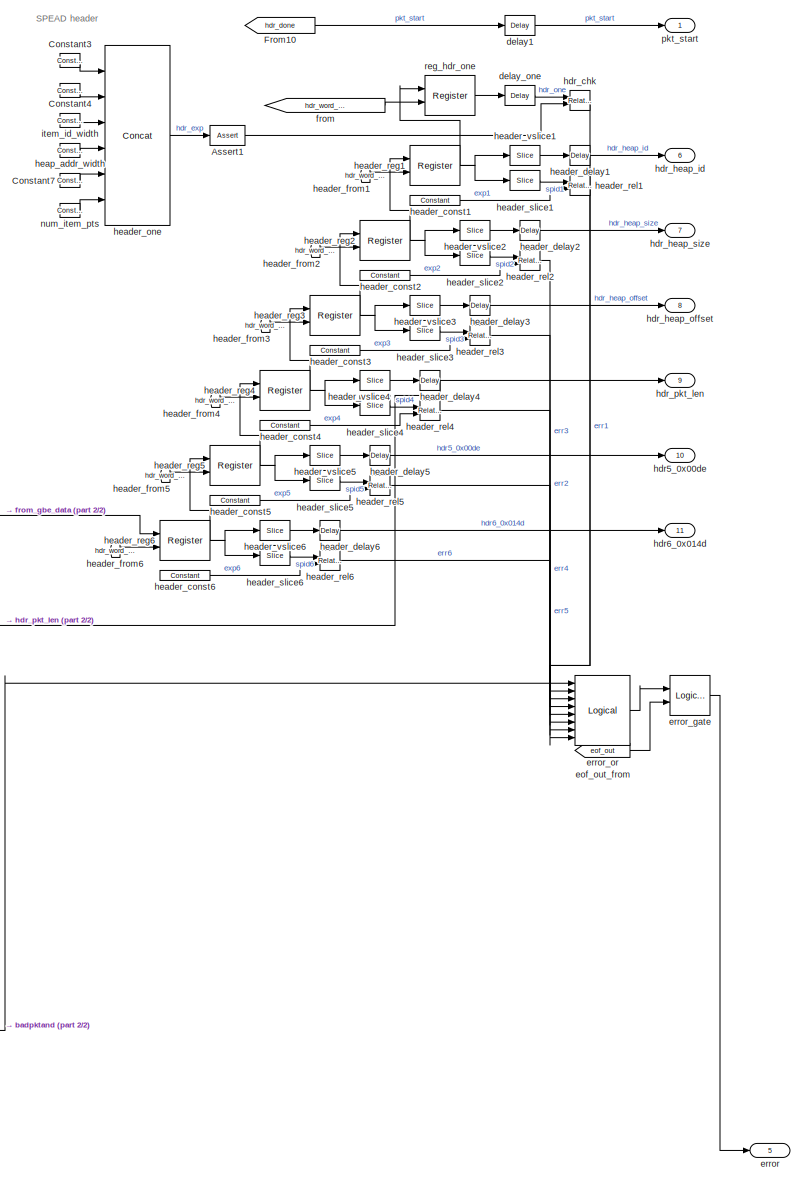
[diagram: spead_unpack - part 1/2, right side, full height]
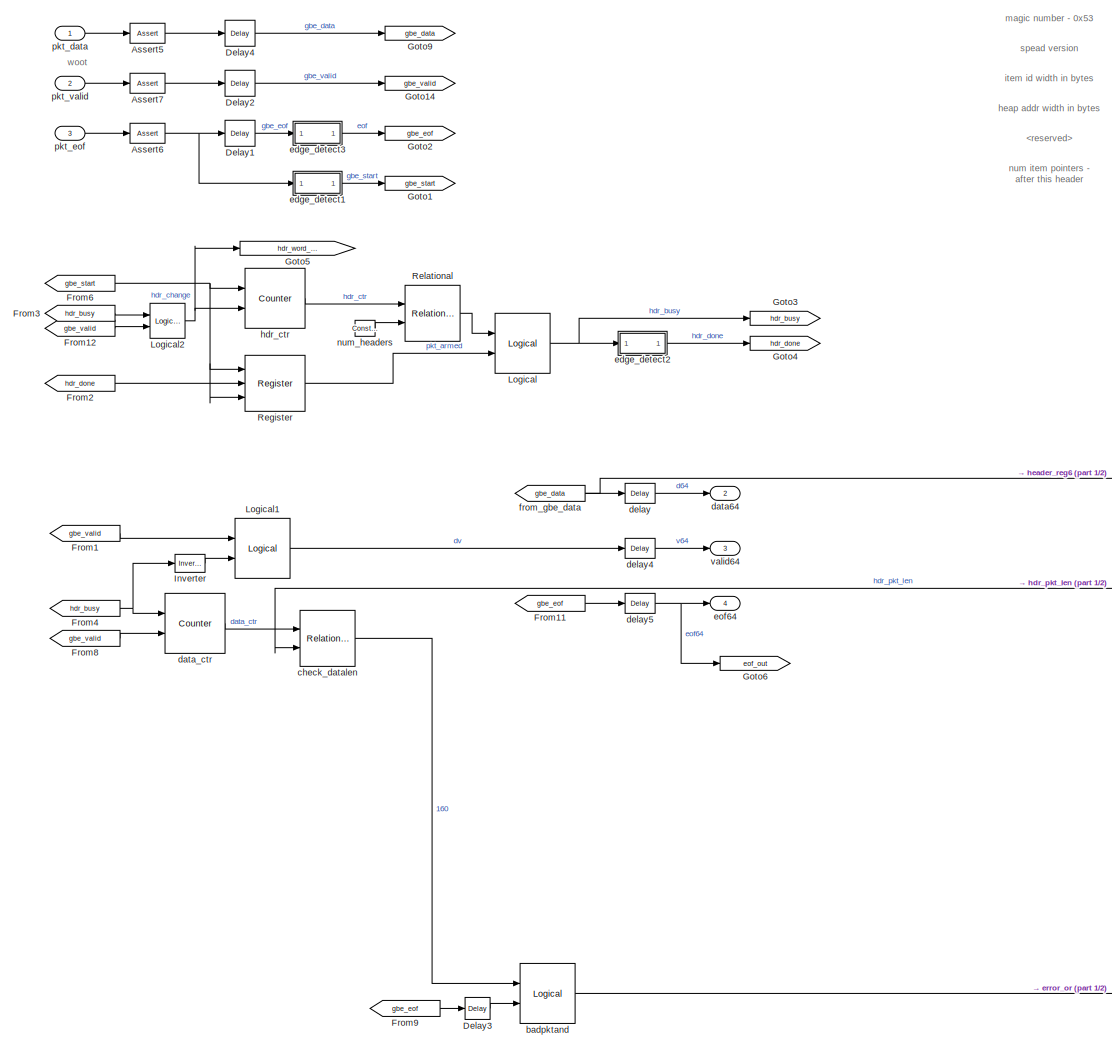
[diagram: spead_unpack - part 2/2, left side, full height]
BLOCK [SubSystem] spead_unpack
  FunctionWithSeparateData = off
  MaskCallbackString = |||||
  MaskDescription = This block receives a 64-bit-word stream that contains a SPEAD stream. It checks the SPEAD headers are being correctly received. It presents the user with all headers on the first valid cycle of data along with a flag to indicate a header or packet-length error.
  MaskEnableString = on,on,on,on,on,on
  MaskHideContents = off
  MaskIconFrame = on
  MaskIconOpaque = on
  MaskIconRotate = none
  MaskIconUnits = autoscale
  MaskInitialization = spead_unpack_init(gcb)
  MaskPromptString = Max pkt length, 2^? 64-bit words|SPEAD header IDs (decimal)|SPEAD Flavour (MSw)|SPEAD Flavour (LSw)|SPEAD version|Combine error flags
  MaskStyleString = edit,edit,edit,edit,edit,checkbox
  MaskToolTipString = on,on,on,on,on,on
  MaskTunableValueString = on,on,on,on,on,on
  MaskType = spead_unpack_mask
  MaskValueString = 10|[222 333]|64|48|4|on
  MaskVariables = max_pkt_len_bits=@1;header_ids=&2;spead_msw=@3;spead_lsw=@4;spead_version=@5;combine_errors=@6;
  MaskVisibilityString = on,on,on,on,on,off
  MinAlgLoopOccurrences = off
  Opaque = off
  Ports = [3, 11]
  PropExecContextOutsideSubsystem = off
  RTWSystemCode = Auto
  Tag = casper:spead_unpack
BLOCK [Reference] spead_unpack/Assert1  REF=xbsIndex_r4/Assert
  Ports = [1, 1]
  SourceBlock = xbsIndex_r4/Assert
  SourceType = Xilinx Assert Block
  arith_type = Unsigned
  assert_rate = off
  assert_type = on
  bin_pt = 0
  block_type = assert
  block_version = 10.1.3
  exp_width = 8
  frac_width = 24
  gui_display_data_type = Fixed-point
  has_advanced_control = 0
  infoedit = Asserts a user-defined sample rate and/or type on a signal.<br><br>Hardware notes: In hardware this block costs nothing.
  n_bits = 64
  output_port = on
  period = 1
  preci_type = Single
  rate_source = Explicitly
  sg_icon_stat = 35,20,1,1,white,blue,0,9657e937,right,,[ ],[ ]
  sggui_pos = 535,236,348,719
  type_source = Explicitly
BLOCK [Reference] spead_unpack/Assert5  REF=xbsIndex_r4/Assert
  Ports = [1, 1]
  SourceBlock = xbsIndex_r4/Assert
  SourceType = Xilinx Assert Block
  arith_type = Unsigned
  assert_rate = off
  assert_type = on
  bin_pt = 0
  block_type = assert
  block_version = 10.1.3
  exp_width = 8
  frac_width = 24
  gui_display_data_type = Fixed-point
  has_advanced_control = 0
  infoedit = Asserts a user-defined sample rate and/or type on a signal.<br><br>Hardware notes: In hardware this block costs nothing.
  n_bits = 64
  output_port = on
  period = 1
  preci_type = Single
  rate_source = Explicitly
  sg_icon_stat = 35,20,1,1,white,blue,0,9657e937,right,,[ ],[ ]
  sggui_pos = 535,236,348,719
  type_source = Explicitly
BLOCK [Reference] spead_unpack/Assert6  REF=xbsIndex_r4/Assert
  Ports = [1, 1]
  SourceBlock = xbsIndex_r4/Assert
  SourceType = Xilinx Assert Block
  arith_type = Boolean
  assert_rate = off
  assert_type = on
  bin_pt = 0
  block_type = assert
  block_version = 10.1.3
  exp_width = 8
  frac_width = 24
  gui_display_data_type = Boolean
  has_advanced_control = 0
  infoedit = Asserts a user-defined sample rate and/or type on a signal.<br><br>Hardware notes: In hardware this block costs nothing.
  n_bits = spead_msw
  output_port = on
  period = 1
  preci_type = Single
  rate_source = Explicitly
  sg_icon_stat = 35,20,1,1,white,blue,0,9657e937,right,,[ ],[ ]
  sggui_pos = 536,263,348,719
  type_source = Explicitly
BLOCK [Reference] spead_unpack/Assert7  REF=xbsIndex_r4/Assert
  Ports = [1, 1]
  SourceBlock = xbsIndex_r4/Assert
  SourceType = Xilinx Assert Block
  arith_type = Boolean
  assert_rate = off
  assert_type = on
  bin_pt = 0
  block_type = assert
  block_version = 10.1.3
  exp_width = 8
  frac_width = 24
  gui_display_data_type = Boolean
  has_advanced_control = 0
  infoedit = Asserts a user-defined sample rate and/or type on a signal.<br><br>Hardware notes: In hardware this block costs nothing.
  n_bits = 64
  output_port = on
  period = 1
  preci_type = Single
  rate_source = Explicitly
  sg_icon_stat = 35,20,1,1,white,blue,0,9657e937,right,,[ ],[ ]
  sggui_pos = 535,236,348,719
  type_source = Explicitly
BLOCK [Reference] spead_unpack/Constant3  REF=xbsIndex_r4/Constant
  Ports = [0, 1]
  SourceBlock = xbsIndex_r4/Constant
  SourceType = Xilinx Constant Block Block
  arith_type = Unsigned
  bin_pt = 0
  block_type = constant
  block_version = 10.1.3
  carry = CIN
  const = 83
  dbl_ovrd = off
  dsp48_infoedit = The use of this block for DSP48 instructions is deprecated.  Please use the Opmode block.
  equ = P=C
  exp_width = 8
  explicit_period = on
  frac_width = 24
  gui_display_data_type = Fixed-point
  has_advanced_control = 0
  inp1 = P
  inp2 = PCIN>>17
  n_bits = 8
  opr = +
  opselect = C
  period = 1
  preci_type = Single
  sg_icon_stat = 20,14,0,1,white,blue,0,ead93515,right,,[ ],[ ]
  sg_mask_display = fprintf('','COMMENT: begin icon graphics');\npatch([0 20 20 0 0 ],[0 0 14 14 0 ],[0.77 0.82 0.91 ]);\nplot([0 20 20 0 0 ],[0 0 14 14 0 ]);\npatch([5.55 8.44 10.44 12.44 14.44 10.44 7.55 5.55 ],[9.22 9.22 11.22 9.22 11.22 11.22 11.22 9.22 ],[1 1 1 ]);\npatch([7.55 10.44 8.44 5.55 7.55 ],[7.22 7.22 9.22 9.22 7.22 ],[0.931 0.946 0.973 ]);\npatch([5.55 8.44 10.44 7.55 5.55 ],[5.22 5.22 7.22 7.22 5.22 ...<+289ch>
  sggui_pos = 490,101,474,439
BLOCK [Reference] spead_unpack/Constant4  REF=xbsIndex_r4/Constant
  Ports = [0, 1]
  SourceBlock = xbsIndex_r4/Constant
  SourceType = Xilinx Constant Block Block
  arith_type = Unsigned
  bin_pt = 0
  block_type = constant
  block_version = 10.1.3
  carry = CIN
  const = spead_version
  dbl_ovrd = off
  dsp48_infoedit = The use of this block for DSP48 instructions is deprecated.  Please use the Opmode block.
  equ = P=C
  exp_width = 8
  explicit_period = on
  frac_width = 24
  gui_display_data_type = Fixed-point
  has_advanced_control = 0
  inp1 = P
  inp2 = PCIN>>17
  n_bits = 8
  opr = +
  opselect = C
  period = 1
  preci_type = Single
  sg_icon_stat = 20,14,0,1,white,blue,0,85f36853,right,,[ ],[ ]
  sggui_pos = 490,101,414,491
BLOCK [Reference] spead_unpack/Constant7  REF=xbsIndex_r4/Constant
  Ports = [0, 1]
  SourceBlock = xbsIndex_r4/Constant
  SourceType = Xilinx Constant Block Block
  arith_type = Unsigned
  bin_pt = 0
  block_type = constant
  block_version = 10.1.3
  carry = CIN
  const = 0
  dbl_ovrd = off
  dsp48_infoedit = The use of this block for DSP48 instructions is deprecated.  Please use the Opmode block.
  equ = P=C
  exp_width = 8
  explicit_period = on
  frac_width = 24
  gui_display_data_type = Fixed-point
  has_advanced_control = 0
  inp1 = P
  inp2 = PCIN>>17
  n_bits = 16
  opr = +
  opselect = C
  period = 1
  preci_type = Single
  sg_icon_stat = 20,14,0,1,white,blue,0,bf4ddd8b,right,,[ ],[ ]
  sggui_pos = 490,101,474,439
BLOCK [Reference] spead_unpack/Delay1  REF=xbsIndex_r4/Delay
  Ports = [1, 1]
  SourceBlock = xbsIndex_r4/Delay
  SourceType = Xilinx Delay Block
  block_type = delay
  block_version = 11.4
  dbl_ovrd = off
  en = off
  has_advanced_control = 0
  infoedit = Hardware notes: A delay line is a chain, each link of which is an SRL16 followed by a flip-flop.
  infoeditControl = Selection of Reset will increase slice count due to use of real FFs and instead of SRLs
  latency = 1
  reg_retiming = on
  rst = off
  sg_icon_stat = 30,26,1,1,white,blue,0,07b98262,right,,[ ],[ ]
  sg_mask_display = fprintf('','COMMENT: begin icon graphics');\npatch([0 30 30 0 0 ],[0 0 26 26 0 ],[0.77 0.82 0.91 ]);\nplot([0 30 30 0 0 ],[0 0 26 26 0 ]);\npatch([8.325 12.66 15.66 18.66 21.66 15.66 11.325 8.325 ],[16.33 16.33 19.33 16.33 19.33 19.33 19.33 16.33 ],[1 1 1 ]);\npatch([11.325 15.66 12.66 8.325 11.325 ],[13.33 13.33 16.33 16.33 13.33 ],[0.931 0.946 0.973 ]);\npatch([8.325 12.66 15.66 11.325 8.325 ],[...<+334ch>
  sggui_pos = 20,44,419,315
  xl_area = [0,0,0,0,0,0,0]
  xl_use_area = off
BLOCK [Reference] spead_unpack/Delay2  REF=xbsIndex_r4/Delay
  Ports = [1, 1]
  SourceBlock = xbsIndex_r4/Delay
  SourceType = Xilinx Delay Block
  block_type = delay
  block_version = 11.4
  dbl_ovrd = off
  en = off
  has_advanced_control = 0
  infoedit = Hardware notes: A delay line is a chain, each link of which is an SRL16 followed by a flip-flop.
  infoeditControl = Selection of Reset will increase slice count due to use of real FFs and instead of SRLs
  latency = 1
  reg_retiming = on
  rst = off
  sg_icon_stat = 30,26,1,1,white,blue,0,07b98262,right,,[ ],[ ]
  sggui_pos = 20,44,419,315
  xl_area = [0,0,0,0,0,0,0]
  xl_use_area = off
BLOCK [Reference] spead_unpack/Delay3  REF=xbsIndex_r4/Delay
  Ports = [1, 1]
  SourceBlock = xbsIndex_r4/Delay
  SourceType = Xilinx Delay Block
  block_type = delay
  block_version = 11.4
  dbl_ovrd = off
  en = off
  has_advanced_control = 0
  infoedit = Hardware notes: A delay line is a chain, each link of which is an SRL16 followed by a flip-flop.
  infoeditControl = Selection of Reset will increase slice count due to use of real FFs and instead of SRLs
  latency = 1
  reg_retiming = on
  rst = off
  sg_icon_stat = 25,22,1,1,white,blue,0,07b98262,right,,[ ],[ ]
  sg_mask_display = fprintf('','COMMENT: begin icon graphics');\npatch([0 25 25 0 0 ],[0 0 22 22 0 ],[0.77 0.82 0.91 ]);\nplot([0 25 25 0 0 ],[0 0 22 22 0 ]);\npatch([5.325 9.66 12.66 15.66 18.66 12.66 8.325 5.325 ],[14.33 14.33 17.33 14.33 17.33 17.33 17.33 14.33 ],[1 1 1 ]);\npatch([8.325 12.66 9.66 5.325 8.325 ],[11.33 11.33 14.33 14.33 11.33 ],[0.931 0.946 0.973 ]);\npatch([5.325 9.66 12.66 8.325 5.325 ],[8.33 8....<+320ch>
  sggui_pos = 20,44,419,387
  xl_area = [0,0,0,0,0,0,0]
  xl_use_area = off
BLOCK [Reference] spead_unpack/Delay4  REF=xbsIndex_r4/Delay
  Ports = [1, 1]
  SourceBlock = xbsIndex_r4/Delay
  SourceType = Xilinx Delay Block
  block_type = delay
  block_version = 11.4
  dbl_ovrd = off
  en = off
  has_advanced_control = 0
  infoedit = Hardware notes: A delay line is a chain, each link of which is an SRL16 followed by a flip-flop.
  infoeditControl = Selection of Reset will increase slice count due to use of real FFs and instead of SRLs
  latency = 1
  reg_retiming = on
  rst = off
  sg_icon_stat = 30,26,1,1,white,blue,0,07b98262,right,,[ ],[ ]
  sggui_pos = 20,44,419,315
  xl_area = [0,0,0,0,0,0,0]
  xl_use_area = off
BLOCK [From] spead_unpack/From1
  CloseFcn = tagdialog Close
  GotoTag = gbe_valid
BLOCK [From] spead_unpack/From10
  CloseFcn = tagdialog Close
  GotoTag = hdr_done
BLOCK [From] spead_unpack/From11
  CloseFcn = tagdialog Close
  GotoTag = gbe_eof
BLOCK [From] spead_unpack/From12
  CloseFcn = tagdialog Close
  GotoTag = gbe_valid
BLOCK [From] spead_unpack/From2
  CloseFcn = tagdialog Close
  GotoTag = hdr_done
BLOCK [From] spead_unpack/From3
  CloseFcn = tagdialog Close
  GotoTag = hdr_busy
BLOCK [From] spead_unpack/From4
  CloseFcn = tagdialog Close
  GotoTag = hdr_busy
BLOCK [From] spead_unpack/From6
  CloseFcn = tagdialog Close
  GotoTag = gbe_start
BLOCK [From] spead_unpack/From8
  CloseFcn = tagdialog Close
  GotoTag = gbe_valid
BLOCK [From] spead_unpack/From9
  CloseFcn = tagdialog Close
  GotoTag = gbe_eof
BLOCK [Goto] spead_unpack/Goto1
  GotoTag = gbe_start
BLOCK [Goto] spead_unpack/Goto14
  GotoTag = gbe_valid
BLOCK [Goto] spead_unpack/Goto2
  GotoTag = gbe_eof
BLOCK [Goto] spead_unpack/Goto3
  GotoTag = hdr_busy
BLOCK [Goto] spead_unpack/Goto4
  GotoTag = hdr_done
BLOCK [Goto] spead_unpack/Goto5
  GotoTag = hdr_word_change
BLOCK [Goto] spead_unpack/Goto6
  GotoTag = eof_out
BLOCK [Goto] spead_unpack/Goto9
  GotoTag = gbe_data
BLOCK [Reference] spead_unpack/Inverter  REF=xbsIndex_r4/Inverter
  Ports = [1, 1]
  SourceBlock = xbsIndex_r4/Inverter
  SourceType = Xilinx Inverter Block
  block_type = inv
  dbl_ovrd = off
  en = off
  has_advanced_control = 0
  infoedit = Bitwise logical negation (one's complement) operator.
  latency = 0
  sg_icon_stat = 30,18,1,1,white,blue,0,267846e5,right,,[ ],[ ]
  sggui_pos = -1,-1,-1,-1
  xl_area = [0,0,0,0,0,0,0]
  xl_use_area = off
BLOCK [Reference] spead_unpack/Logical  REF=xbsIndex_r4/Logical
  Ports = [2, 1]
  SourceBlock = xbsIndex_r4/Logical
  SourceType = Xilinx Logical Block Block
  align_bp = on
  arith_type = Unsigned
  bin_pt = 0
  block_type = logical
  dbl_ovrd = off
  en = off
  has_advanced_control = 0
  inputs = 2
  latency = 0
  logical_function = AND
  n_bits = 16
  precision = Full
  sg_icon_stat = 55,60,2,1,white,blue,0,83a4b621,right,,[ ],[ ]
  sg_mask_display = fprintf('','COMMENT: begin icon graphics');\npatch([0 55 55 0 0 ],[0 0 60 60 0 ],[0.77 0.82 0.91 ]);\nplot([0 55 55 0 0 ],[0 0 60 60 0 ]);\npatch([11.425 21.54 28.54 35.54 42.54 28.54 18.425 11.425 ],[37.77 37.77 44.77 37.77 44.77 44.77 44.77 37.77 ],[1 1 1 ]);\npatch([18.425 28.54 21.54 11.425 18.425 ],[30.77 30.77 37.77 37.77 30.77 ],[0.931 0.946 0.973 ]);\npatch([11.425 21.54 28.54 18.425 11.42...<+328ch>  <repeated x3 — deduplicated; at blocks: Logical, Logical1, badpktand>
  sggui_pos = -1,-1,-1,-1
  xl_area = [0,0,0,0,0,0,0]
  xl_use_area = off
BLOCK [Reference] spead_unpack/Logical1  REF=xbsIndex_r4/Logical
  Ports = [2, 1]
  SourceBlock = xbsIndex_r4/Logical
  SourceType = Xilinx Logical Block Block
  align_bp = on
  arith_type = Unsigned
  bin_pt = 0
  block_type = logical
  dbl_ovrd = off
  en = off
  has_advanced_control = 0
  inputs = 2
  latency = 0
  logical_function = AND
  n_bits = 16
  precision = Full
  sg_icon_stat = 55,60,2,1,white,blue,0,83a4b621,right,,[ ],[ ]
  sggui_pos = -1,-1,-1,-1
  xl_area = [0,0,0,0,0,0,0]
  xl_use_area = off
BLOCK [Reference] spead_unpack/Logical2  REF=xbsIndex_r4/Logical
  Ports = [2, 1]
  SourceBlock = xbsIndex_r4/Logical
  SourceType = Xilinx Logical Block Block
  align_bp = on
  arith_type = Unsigned
  bin_pt = 0
  block_type = logical
  dbl_ovrd = off
  en = off
  has_advanced_control = 0
  inputs = 2
  latency = 0
  logical_function = AND
  n_bits = 16
  precision = Full
  sg_icon_stat = 35,35,2,1,white,blue,0,83a4b621,right,,[ ],[ ]
  sg_mask_display = fprintf('','COMMENT: begin icon graphics');\npatch([0 35 35 0 0 ],[0 0 35 35 0 ],[0.77 0.82 0.91 ]);\nplot([0 35 35 0 0 ],[0 0 35 35 0 ]);\npatch([5.875 13.1 18.1 23.1 28.1 18.1 10.875 5.875 ],[22.55 22.55 27.55 22.55 27.55 27.55 27.55 22.55 ],[1 1 1 ]);\npatch([10.875 18.1 13.1 5.875 10.875 ],[17.55 17.55 22.55 22.55 17.55 ],[0.931 0.946 0.973 ]);\npatch([5.875 13.1 18.1 10.875 5.875 ],[12.55 12....<+305ch>
  sggui_pos = -1,-1,-1,-1
  xl_area = [0,0,0,0,0,0,0]
  xl_use_area = off
BLOCK [Reference] spead_unpack/Register  REF=xbsIndex_r4/Register
  Ports = [3, 1]
  SourceBlock = xbsIndex_r4/Register
  SourceType = Xilinx Register Block
  block_type = register
  dbl_ovrd = off
  en = on
  has_advanced_control = 0
  init = 0
  rst = on
  sg_icon_stat = 60,56,3,1,white,blue,0,30546de1,right,,[ ],[ ]
  sg_mask_display = fprintf('','COMMENT: begin icon graphics');\npatch([0 60 60 0 0 ],[0 0 56 56 0 ],[0.77 0.82 0.91 ]);\nplot([0 60 60 0 0 ],[0 0 56 56 0 ]);\npatch([12.2 23.76 31.76 39.76 47.76 31.76 20.2 12.2 ],[36.88 36.88 44.88 36.88 44.88 44.88 44.88 36.88 ],[1 1 1 ]);\npatch([20.2 31.76 23.76 12.2 20.2 ],[28.88 28.88 36.88 36.88 28.88 ],[0.931 0.946 0.973 ]);\npatch([12.2 23.76 31.76 20.2 12.2 ],[20.88 20.88 2...<+492ch>
  sggui_pos = 20,25,402,215
  xl_area = [0,0,0,0,0,0,0]
  xl_use_area = off
BLOCK [Reference] spead_unpack/Relational  REF=xbsIndex_r4/Relational
  Ports = [2, 1]
  SourceBlock = xbsIndex_r4/Relational
  SourceType = Xilinx Arithmetic Relational Operator Block
  block_type = relational
  dbl_ovrd = off
  en = off
  has_advanced_control = 0
  latency = 0
  mode = a<b
  sg_icon_stat = 55,56,2,1,white,blue,0,731fb07f,right,,[ ],[ ]
  sg_mask_display = fprintf('','COMMENT: begin icon graphics');\npatch([0 55 55 0 0 ],[0 0 56 56 0 ],[0.77 0.82 0.91 ]);\nplot([0 55 55 0 0 ],[0 0 56 56 0 ]);\npatch([11.425 21.54 28.54 35.54 42.54 28.54 18.425 11.425 ],[35.77 35.77 42.77 35.77 42.77 42.77 42.77 35.77 ],[1 1 1 ]);\npatch([18.425 28.54 21.54 11.425 18.425 ],[28.77 28.77 35.77 35.77 28.77 ],[0.931 0.946 0.973 ]);\npatch([11.425 21.54 28.54 18.425 11.42...<+473ch>
  sggui_pos = 20,25,402,215
  xl_area = [0,0,0,0,0,0,0]
  xl_use_area = off
BLOCK [Reference] spead_unpack/badpktand  REF=xbsIndex_r4/Logical
  Ports = [2, 1]
  SourceBlock = xbsIndex_r4/Logical
  SourceType = Xilinx Logical Block Block
  align_bp = on
  arith_type = Unsigned
  bin_pt = 0
  block_type = logical
  dbl_ovrd = off
  en = off
  has_advanced_control = 0
  inputs = 2
  latency = 0
  logical_function = AND
  n_bits = 16
  precision = Full
  sg_icon_stat = 55,60,2,1,white,blue,0,83a4b621,right,,[ ],[ ]
  sggui_pos = -1,-1,-1,-1
  xl_area = [0,0,0,0,0,0,0]
  xl_use_area = off
BLOCK [Reference] spead_unpack/check_datalen  REF=xbsIndex_r4/Relational
  Ports = [2, 1]
  SourceBlock = xbsIndex_r4/Relational
  SourceType = Xilinx Arithmetic Relational Operator Block
  block_type = relational
  dbl_ovrd = off
  en = off
  has_advanced_control = 0
  latency = 0
  mode = a!=b
  sg_icon_stat = 55,56,2,1,white,blue,0,850de6e7,right,,[ ],[ ]
  sg_mask_display = fprintf('','COMMENT: begin icon graphics');\npatch([0 55 55 0 0 ],[0 0 56 56 0 ],[0.77 0.82 0.91 ]);\nplot([0 55 55 0 0 ],[0 0 56 56 0 ]);\npatch([11.425 21.54 28.54 35.54 42.54 28.54 18.425 11.425 ],[35.77 35.77 42.77 35.77 42.77 42.77 42.77 35.77 ],[1 1 1 ]);\npatch([18.425 28.54 21.54 11.425 18.425 ],[28.77 28.77 35.77 35.77 28.77 ],[0.931 0.946 0.973 ]);\npatch([11.425 21.54 28.54 18.425 11.42...<+477ch>
  sggui_pos = 20,25,402,215
  xl_area = [0,0,0,0,0,0,0]
  xl_use_area = off
BLOCK [Outport] spead_unpack/data64
  IconDisplay = Port number
  Port = 2
BLOCK [Reference] spead_unpack/data_ctr  REF=xbsIndex_r4/Counter
  Ports = [2, 1]
  SourceBlock = xbsIndex_r4/Counter
  SourceType = Xilinx Counter Block
  arith_type = Unsigned
  bin_pt = 0
  block_type = counter
  cnt_by_val = 1
  cnt_to = Inf
  cnt_type = Free Running
  dbl_ovrd = off
  en = on
  explicit_period = on
  has_advanced_control = 0
  implementation = Fabric
  infoedit = Hardware notes: Free running counters are the least expensive in hardware.  A count limited counter is implemented by combining a counter with a comparator.
  load_pin = off
  n_bits = max_pkt_len_bits + 1
  operation = Up
  period = 1
  rst = on
  sg_icon_stat = 60,60,2,1,white,blue,0,ae3608d6,right,,[ ],[ ]
  sggui_pos = 20,25,416,771
  start_count = 0
  use_behavioral_HDL = off
  xl_area = [0,0,0,0,0,0,0]
  xl_use_area = off
BLOCK [Reference] spead_unpack/delay  REF=xbsIndex_r4/Delay
  Ports = [1, 1]
  SourceBlock = xbsIndex_r4/Delay
  SourceType = Xilinx Delay Block
  block_type = delay
  dbl_ovrd = off
  en = off
  has_advanced_control = 0
  infoedit = Hardware notes: A delay line is a chain, each link of which is an SRL16 followed by a flip-flop.
  infoeditControl = Selection of Reset will increase slice count due to use of real FFs and instead of SRLs
  latency = 2
  reg_retiming = off
  rst = off
  sg_icon_stat = 30,20,1,1,white,blue,0,85ce9542,right,,[ ],[ ]
  sg_mask_display = fprintf('','COMMENT: begin icon graphics');\npatch([0 30 30 0 0 ],[0 0 20 20 0 ],[0.77 0.82 0.91 ]);\nplot([0 30 30 0 0 ],[0 0 20 20 0 ]);\npatch([10.55 13.44 15.44 17.44 19.44 15.44 12.55 10.55 ],[12.22 12.22 14.22 12.22 14.22 14.22 14.22 12.22 ],[1 1 1 ]);\npatch([12.55 15.44 13.44 10.55 12.55 ],[10.22 10.22 12.22 12.22 10.22 ],[0.931 0.946 0.973 ]);\npatch([10.55 13.44 15.44 12.55 10.55 ],[8.22...<+322ch>  <repeated x5 — deduplicated; at blocks: delay, delay1, delay4, delay5, delay_one>
  sggui_pos = 20,25,402,387
  xl_area = [0,0,0,0,0,0,0]
  xl_use_area = off
BLOCK [Reference] spead_unpack/delay1  REF=xbsIndex_r4/Delay
  Ports = [1, 1]
  SourceBlock = xbsIndex_r4/Delay
  SourceType = Xilinx Delay Block
  block_type = delay
  dbl_ovrd = off
  en = off
  has_advanced_control = 0
  infoedit = Hardware notes: A delay line is a chain, each link of which is an SRL16 followed by a flip-flop.
  infoeditControl = Selection of Reset will increase slice count due to use of real FFs and instead of SRLs
  latency = 1
  reg_retiming = off
  rst = off
  sg_icon_stat = 30,20,1,1,white,blue,0,07b98262,right,,[ ],[ ]
  sggui_pos = 20,25,402,387
  xl_area = [0,0,0,0,0,0,0]
  xl_use_area = off
BLOCK [Reference] spead_unpack/delay4  REF=xbsIndex_r4/Delay
  Ports = [1, 1]
  SourceBlock = xbsIndex_r4/Delay
  SourceType = Xilinx Delay Block
  block_type = delay
  dbl_ovrd = off
  en = off
  has_advanced_control = 0
  infoedit = Hardware notes: A delay line is a chain, each link of which is an SRL16 followed by a flip-flop.
  infoeditControl = Selection of Reset will increase slice count due to use of real FFs and instead of SRLs
  latency = 2
  reg_retiming = off
  rst = off
  sg_icon_stat = 30,20,1,1,white,blue,0,85ce9542,right,,[ ],[ ]
  sggui_pos = 20,25,402,387
  xl_area = [0,0,0,0,0,0,0]
  xl_use_area = off
BLOCK [Reference] spead_unpack/delay5  REF=xbsIndex_r4/Delay
  Ports = [1, 1]
  SourceBlock = xbsIndex_r4/Delay
  SourceType = Xilinx Delay Block
  block_type = delay
  dbl_ovrd = off
  en = off
  has_advanced_control = 0
  infoedit = Hardware notes: A delay line is a chain, each link of which is an SRL16 followed by a flip-flop.
  infoeditControl = Selection of Reset will increase slice count due to use of real FFs and instead of SRLs
  latency = 2
  reg_retiming = off
  rst = off
  sg_icon_stat = 30,20,1,1,white,blue,0,85ce9542,right,,[ ],[ ]
  sggui_pos = 20,25,402,387
  xl_area = [0,0,0,0,0,0,0]
  xl_use_area = off
BLOCK [Reference] spead_unpack/delay_one  REF=xbsIndex_r4/Delay
  Ports = [1, 1]
  SourceBlock = xbsIndex_r4/Delay
  SourceType = Xilinx Delay Block
  block_type = delay
  dbl_ovrd = off
  en = off
  has_advanced_control = 0
  infoedit = Hardware notes: A delay line is a chain, each link of which is an SRL16 followed by a flip-flop.
  infoeditControl = Selection of Reset will increase slice count due to use of real FFs and instead of SRLs
  latency = 1
  reg_retiming = off
  rst = off
  sg_icon_stat = 30,20,1,1,white,blue,0,07b98262,right,,[ ],[ ]
  sggui_pos = -1,-1,-1,-1
  xl_area = [0,0,0,0,0,0,0]
  xl_use_area = off
BLOCK [SubSystem] spead_unpack/edge_detect1
  AncestorBlock = casper_library_misc/edge_detect
  AttributesFormatString = falling edges\nactive high
  FunctionWithSeparateData = off
  MaskCallbackString = |||||
  MaskDescription = Output is active for one-cycle after each edge of the specified type (i.e. rising, falling or both).
  MaskDisplay = plot(x_in_num,0.5+y_in_num*0.2);\nplot(x_out_num,0.5+y_out_num*0.2);
  MaskEnableString = on,on,on,on,on,on
  MaskHelp = Output is active for one-cycle after each edge of the specified type (i.e. rising, falling, or both).  Latency is zero.
  MaskHideContents = off
  MaskIconFrame = on
  MaskIconOpaque = on
  MaskIconRotate = none
  MaskIconUnits = normalized
  MaskPromptString = Edge Type|Output Polarity|Input X Positions|Input Y Positions|Output X Positions|Output Y Positions
  MaskSelfModifiable = on
  MaskStyleString = popup(Rising|Falling|Both),popup(Active High|Active Low),edit,edit,edit,edit
  MaskToolTipString = on,on,on,on,on,on
  MaskTunableValueString = on,on,on,on,on,on
  MaskType = edge_detect
  MaskValueString = Falling|Active High|[0 0.08 0.08 0.16 0.16 0.24 0.24 0.32 0.32 0.4]|[-1 -1  1  1  1  1  1  1  1  1]|[0.6 0.68 0.68 0.76 0.76 0.84 0.84 0.92 0.92 1]|[-1 -1  1  1 -1 -1 -1 -1 -1 -1]
  MaskVariables = edge=&1;polarity=&2;x_in=&3;y_in=&4;x_out=&5;y_out=&6;
  MaskVisibilityString = on,on,off,off,off,off
  MinAlgLoopOccurrences = off
  Opaque = off
  Ports = [1, 1]
  PropExecContextOutsideSubsystem = off
  RTWSystemCode = Auto
  UserData = DataTag3
  UserDataPersistent = on
BLOCK [Reference] spead_unpack/edge_detect1/Delay  REF=xbsIndex_r4/Delay
  Ports = [1, 1]
  SourceBlock = xbsIndex_r4/Delay
  SourceType = Xilinx Delay Block
  block_type = delay
  block_version = 10.1.3
  dbl_ovrd = off
  en = off
  has_advanced_control = 0
  infoedit = Hardware notes: A delay line is a chain, each link of which is an SRL16 followed by a flip-flop.
  infoeditControl = Selection of Reset will increase slice count due to use of real FFs and instead of SRLs
  latency = 1
  reg_retiming = off
  rst = off
  sg_icon_stat = 45,16,1,1,white,blue,0,07b98262,right,,[ ],[ ]
  sggui_pos = -1,-1,-1,-1
  xl_area = [0, 0, 0, 0, 0, 0, 0]
  xl_use_area = off
BLOCK [Reference] spead_unpack/edge_detect1/Inverter  REF=xbsIndex_r4/Inverter
  Ports = [1, 1]
  SourceBlock = xbsIndex_r4/Inverter
  SourceType = Xilinx Inverter Block
  block_type = inv
  block_version = 10.1.3
  dbl_ovrd = off
  en = off
  has_advanced_control = 0
  infoedit = Bitwise logical negation (one's complement) operator.
  latency = 0
  sg_icon_stat = 45,16,1,1,white,blue,0,267846e5,right,,[ ],[ ]
  sggui_pos = -1,-1,-1,-1
  xl_area = [0, 0, 0, 0, 0, 0, 0]
  xl_use_area = off
BLOCK [Reference] spead_unpack/edge_detect1/edge_op  REF=xbsIndex_r4/Logical
  Ports = [2, 1]
  SourceBlock = xbsIndex_r4/Logical
  SourceType = Xilinx Logical Block Block
  align_bp = on
  arith_type = Unsigned
  bin_pt = 2
  block_type = logical
  block_version = 10.1.3
  dbl_ovrd = off
  en = off
  has_advanced_control = 0
  inputs = 2
  latency = 0
  logical_function = AND
  n_bits = 8
  precision = Full
  sg_icon_stat = 45,44,2,1,white,blue,0,83a4b621,right,,[ ],[ ]
  sggui_pos = -1,-1,-1,-1
  xl_area = [0, 0, 0, 0, 0, 0, 0]
  xl_use_area = off
BLOCK [Inport] spead_unpack/edge_detect1/in
  IconDisplay = Port number
BLOCK [Outport] spead_unpack/edge_detect1/out
  IconDisplay = Port number
BLOCK [SubSystem] spead_unpack/edge_detect2
  AncestorBlock = casper_library_misc/edge_detect
  AttributesFormatString = falling edges\nactive high
  FunctionWithSeparateData = off
  MaskCallbackString = |||||
  MaskDescription = Output is active for one-cycle after each edge of the specified type (i.e. rising, falling or both).
  MaskDisplay = plot(x_in_num,0.5+y_in_num*0.2);\nplot(x_out_num,0.5+y_out_num*0.2);
  MaskEnableString = on,on,on,on,on,on
  MaskHelp = Output is active for one-cycle after each edge of the specified type (i.e. rising, falling, or both).  Latency is zero.
  MaskHideContents = off
  MaskIconFrame = on
  MaskIconOpaque = on
  MaskIconRotate = none
  MaskIconUnits = normalized
  MaskPromptString = Edge Type|Output Polarity|Input X Positions|Input Y Positions|Output X Positions|Output Y Positions
  MaskSelfModifiable = on
  MaskStyleString = popup(Rising|Falling|Both),popup(Active High|Active Low),edit,edit,edit,edit
  MaskToolTipString = on,on,on,on,on,on
  MaskTunableValueString = on,on,on,on,on,on
  MaskType = edge_detect
  MaskValueString = Falling|Active High|[0 0.08 0.08 0.16 0.16 0.24 0.24 0.32 0.32 0.4]|[-1 -1  1  1  1  1  1  1  1  1]|[0.6 0.68 0.68 0.76 0.76 0.84 0.84 0.92 0.92 1]|[-1 -1  1  1 -1 -1 -1 -1 -1 -1]
  MaskVariables = edge=&1;polarity=&2;x_in=&3;y_in=&4;x_out=&5;y_out=&6;
  MaskVisibilityString = on,on,off,off,off,off
  MinAlgLoopOccurrences = off
  Opaque = off
  Ports = [1, 1]
  PropExecContextOutsideSubsystem = off
  RTWSystemCode = Auto
  UserData = DataTag4
  UserDataPersistent = on
BLOCK [Reference] spead_unpack/edge_detect2/Delay  REF=xbsIndex_r4/Delay
  Ports = [1, 1]
  SourceBlock = xbsIndex_r4/Delay
  SourceType = Xilinx Delay Block
  block_type = delay
  block_version = 10.1.3
  dbl_ovrd = off
  en = off
  has_advanced_control = 0
  infoedit = Hardware notes: A delay line is a chain, each link of which is an SRL16 followed by a flip-flop.
  infoeditControl = Selection of Reset will increase slice count due to use of real FFs and instead of SRLs
  latency = 1
  reg_retiming = off
  rst = off
  sg_icon_stat = 45,16,1,1,white,blue,0,07b98262,right,,[ ],[ ]
  sggui_pos = -1,-1,-1,-1
  xl_area = [0, 0, 0, 0, 0, 0, 0]
  xl_use_area = off
BLOCK [Reference] spead_unpack/edge_detect2/Inverter  REF=xbsIndex_r4/Inverter
  Ports = [1, 1]
  SourceBlock = xbsIndex_r4/Inverter
  SourceType = Xilinx Inverter Block
  block_type = inv
  block_version = 10.1.3
  dbl_ovrd = off
  en = off
  has_advanced_control = 0
  infoedit = Bitwise logical negation (one's complement) operator.
  latency = 0
  sg_icon_stat = 45,16,1,1,white,blue,0,267846e5,right,,[ ],[ ]
  sggui_pos = -1,-1,-1,-1
  xl_area = [0, 0, 0, 0, 0, 0, 0]
  xl_use_area = off
BLOCK [Reference] spead_unpack/edge_detect2/edge_op  REF=xbsIndex_r4/Logical
  Ports = [2, 1]
  SourceBlock = xbsIndex_r4/Logical
  SourceType = Xilinx Logical Block Block
  align_bp = on
  arith_type = Unsigned
  bin_pt = 2
  block_type = logical
  block_version = 10.1.3
  dbl_ovrd = off
  en = off
  has_advanced_control = 0
  inputs = 2
  latency = 0
  logical_function = AND
  n_bits = 8
  precision = Full
  sg_icon_stat = 45,44,2,1,white,blue,0,83a4b621,right,,[ ],[ ]
  sggui_pos = -1,-1,-1,-1
  xl_area = [0, 0, 0, 0, 0, 0, 0]
  xl_use_area = off
BLOCK [Inport] spead_unpack/edge_detect2/in
  IconDisplay = Port number
BLOCK [Outport] spead_unpack/edge_detect2/out
  IconDisplay = Port number
BLOCK [SubSystem] spead_unpack/edge_detect3
  AncestorBlock = casper_library_misc/edge_detect
  AttributesFormatString = rising edges\nactive high
  FunctionWithSeparateData = off
  MaskCallbackString = |||||
  MaskDescription = Output is active for one-cycle after each edge of the specified type (i.e. rising, falling or both).
  MaskDisplay = plot(x_in_num,0.5+y_in_num*0.2);\nplot(x_out_num,0.5+y_out_num*0.2);
  MaskEnableString = on,on,on,on,on,on
  MaskHelp = Output is active for one-cycle after each edge of the specified type (i.e. rising, falling, or both).  Latency is zero.
  MaskHideContents = off
  MaskIconFrame = on
  MaskIconOpaque = on
  MaskIconRotate = none
  MaskIconUnits = normalized
  MaskPromptString = Edge Type|Output Polarity|Input X Positions|Input Y Positions|Output X Positions|Output Y Positions
  MaskSelfModifiable = on
  MaskStyleString = popup(Rising|Falling|Both),popup(Active High|Active Low),edit,edit,edit,edit
  MaskToolTipString = on,on,on,on,on,on
  MaskTunableValueString = on,on,on,on,on,on
  MaskType = edge_detect
  MaskValueString = Rising|Active High|[0 0.08 0.08 0.16 0.16 0.24 0.24 0.32 0.32 0.4]|[-1 -1  1  1  1  1  1  1  1  1]|[0.6 0.68 0.68 0.76 0.76 0.84 0.84 0.92 0.92 1]|[-1 -1  1  1 -1 -1 -1 -1 -1 -1]
  MaskVariables = edge=&1;polarity=&2;x_in=&3;y_in=&4;x_out=&5;y_out=&6;
  MaskVisibilityString = on,on,off,off,off,off
  MinAlgLoopOccurrences = off
  Opaque = off
  Ports = [1, 1]
  PropExecContextOutsideSubsystem = off
  RTWSystemCode = Auto
  UserData = DataTag5
  UserDataPersistent = on
BLOCK [Reference] spead_unpack/edge_detect3/Delay  REF=xbsIndex_r4/Delay
  Ports = [1, 1]
  SourceBlock = xbsIndex_r4/Delay
  SourceType = Xilinx Delay Block
  block_type = delay
  block_version = 10.1.3
  dbl_ovrd = off
  en = off
  has_advanced_control = 0
  infoedit = Hardware notes: A delay line is a chain, each link of which is an SRL16 followed by a flip-flop.
  infoeditControl = Selection of Reset will increase slice count due to use of real FFs and instead of SRLs
  latency = 1
  reg_retiming = off
  rst = off
  sg_icon_stat = 45,16,1,1,white,blue,0,07b98262,right,,[ ],[ ]
  sggui_pos = -1,-1,-1,-1
  xl_area = [0, 0, 0, 0, 0, 0, 0]
  xl_use_area = off
BLOCK [Reference] spead_unpack/edge_detect3/Inverter  REF=xbsIndex_r4/Inverter
  Ports = [1, 1]
  SourceBlock = xbsIndex_r4/Inverter
  SourceType = Xilinx Inverter Block
  block_type = inv
  block_version = 10.1.3
  dbl_ovrd = off
  en = off
  has_advanced_control = 0
  infoedit = Bitwise logical negation (one's complement) operator.
  latency = 0
  sg_icon_stat = 45,16,1,1,white,blue,0,267846e5,right,,[ ],[ ]
  sggui_pos = -1,-1,-1,-1
  xl_area = [0, 0, 0, 0, 0, 0, 0]
  xl_use_area = off
BLOCK [Reference] spead_unpack/edge_detect3/edge_op  REF=xbsIndex_r4/Logical
  Ports = [2, 1]
  SourceBlock = xbsIndex_r4/Logical
  SourceType = Xilinx Logical Block Block
  align_bp = on
  arith_type = Unsigned
  bin_pt = 2
  block_type = logical
  block_version = 10.1.3
  dbl_ovrd = off
  en = off
  has_advanced_control = 0
  inputs = 2
  latency = 0
  logical_function = NOR
  n_bits = 8
  precision = Full
  sg_icon_stat = 45,44,2,1,white,blue,0,affe8783,right,,[ ],[ ]
  sggui_pos = -1,-1,-1,-1
  xl_area = [0, 0, 0, 0, 0, 0, 0]
  xl_use_area = off
BLOCK [Inport] spead_unpack/edge_detect3/in
  IconDisplay = Port number
BLOCK [Outport] spead_unpack/edge_detect3/out
  IconDisplay = Port number
BLOCK [Outport] spead_unpack/eof64
  IconDisplay = Port number
  Port = 4
BLOCK [From] spead_unpack/eof_out_from
  GotoTag = eof_out
BLOCK [Outport] spead_unpack/error
  IconDisplay = Port number
  Port = 5
BLOCK [Reference] spead_unpack/error_gate  REF=xbsIndex_r4/Logical
  Ports = [2, 1]
  SourceBlock = xbsIndex_r4/Logical
  SourceType = Xilinx Logical Block Block
  align_bp = on
  arith_type = Unsigned
  bin_pt = 0
  block_type = logical
  dbl_ovrd = off
  en = off
  has_advanced_control = 0
  inputs = 2
  latency = 0
  logical_function = AND
  n_bits = 16
  precision = Full
  sg_icon_stat = 40,40,2,1,white,blue,0,83a4b621,right,,[ ],[ ]
  sggui_pos = -1,-1,-1,-1
  xl_area = [0,0,0,0,0,0,0]
  xl_use_area = off
BLOCK [Reference] spead_unpack/error_or  REF=xbsIndex_r4/Logical
  Ports = [8, 1]
  SourceBlock = xbsIndex_r4/Logical
  SourceType = Xilinx Logical Block Block
  align_bp = on
  arith_type = Unsigned
  bin_pt = 0
  block_type = logical
  dbl_ovrd = off
  en = off
  has_advanced_control = 0
  inputs = 8
  latency = 0
  logical_function = OR
  n_bits = 16
  precision = Full
  sg_icon_stat = 55,70,8,1,white,blue,0,8c57207a,right,,[ ],[ ]
  sg_mask_display = fprintf('','COMMENT: begin icon graphics');\npatch([0 55 55 0 0 ],[0 0 70 70 0 ],[0.77 0.82 0.91 ]);\nplot([0 55 55 0 0 ],[0 0 70 70 0 ]);\npatch([11.425 21.54 28.54 35.54 42.54 28.54 18.425 11.425 ],[42.77 42.77 49.77 42.77 49.77 49.77 49.77 42.77 ],[1 1 1 ]);\npatch([18.425 28.54 21.54 11.425 18.425 ],[35.77 35.77 42.77 42.77 35.77 ],[0.931 0.946 0.973 ]);\npatch([11.425 21.54 28.54 18.425 11.42...<+339ch>
  sggui_pos = -1,-1,-1,-1
  xl_area = [0,0,0,0,0,0,0]
  xl_use_area = off
BLOCK [From] spead_unpack/from
  GotoTag = hdr_word_change
BLOCK [From] spead_unpack/from_gbe_data
  CloseFcn = tagdialog Close
  GotoTag = gbe_data
BLOCK [Outport] spead_unpack/hdr5_0x00de
  IconDisplay = Port number
  Port = 10
BLOCK [Outport] spead_unpack/hdr6_0x014d
  IconDisplay = Port number
  Port = 11
BLOCK [Reference] spead_unpack/hdr_chk  REF=xbsIndex_r4/Relational
  Ports = [2, 1]
  SourceBlock = xbsIndex_r4/Relational
  SourceType = Xilinx Arithmetic Relational Operator Block
  block_type = relational
  dbl_ovrd = off
  en = off
  has_advanced_control = 0
  latency = 1
  mode = a!=b
  sg_icon_stat = 20,20,2,1,white,blue,0,8d9aea79,right,,[ ],[ ]
  sg_mask_display = fprintf('','COMMENT: begin icon graphics');\npatch([0 20 20 0 0 ],[0 0 20 20 0 ],[0.77 0.82 0.91 ]);\nplot([0 20 20 0 0 ],[0 0 20 20 0 ]);\npatch([5.55 8.44 10.44 12.44 14.44 10.44 7.55 5.55 ],[12.22 12.22 14.22 12.22 14.22 14.22 14.22 12.22 ],[1 1 1 ]);\npatch([7.55 10.44 8.44 5.55 7.55 ],[10.22 10.22 12.22 12.22 10.22 ],[0.931 0.946 0.973 ]);\npatch([5.55 8.44 10.44 7.55 5.55 ],[8.22 8.22 10.22 ...<+500ch>  <repeated x7 — deduplicated; at blocks: hdr_chk, header_rel1, header_rel2, header_rel3, header_rel4, header_rel5, header_rel6>
  sggui_pos = -1,-1,-1,-1
  xl_area = [0,0,0,0,0,0,0]
  xl_use_area = off
BLOCK [Reference] spead_unpack/hdr_ctr  REF=xbsIndex_r4/Counter
  Ports = [2, 1]
  SourceBlock = xbsIndex_r4/Counter
  SourceType = Xilinx Counter Block
  arith_type = Unsigned
  bin_pt = 0
  block_type = counter
  cnt_by_val = 1
  cnt_to = Inf
  cnt_type = Free Running
  dbl_ovrd = off
  en = on
  explicit_period = on
  has_advanced_control = 0
  implementation = Fabric
  infoedit = Hardware notes: Free running counters are the least expensive in hardware.  A count limited counter is implemented by combining a counter with a comparator.
  load_pin = off
  n_bits = 4
  operation = Up
  period = 1
  rst = on
  sg_icon_stat = 60,60,2,1,white,blue,0,ae3608d6,right,,[ ],[ ]
  sggui_pos = 20,25,402,771
  start_count = 0
  use_behavioral_HDL = off
  xl_area = [0,0,0,0,0,0,0]
  xl_use_area = off
BLOCK [Outport] spead_unpack/hdr_heap_id
  IconDisplay = Port number
  Port = 6
BLOCK [Outport] spead_unpack/hdr_heap_offset
  IconDisplay = Port number
  Port = 8
BLOCK [Outport] spead_unpack/hdr_heap_size
  IconDisplay = Port number
  Port = 7
BLOCK [Outport] spead_unpack/hdr_pkt_len
  IconDisplay = Port number
  Port = 9
BLOCK [Reference] spead_unpack/header_const1  REF=xbsIndex_r4/Constant
  Ports = [0, 1]
  SourceBlock = xbsIndex_r4/Constant
  SourceType = Xilinx Constant Block Block
  arith_type = Unsigned
  bin_pt = 0
  block_type = constant
  carry = CIN
  const = 1
  dbl_ovrd = off
  dsp48_infoedit = The use of this block for DSP48 instructions is deprecated.  Please use the Opmode block.
  equ = P=C
  exp_width = 8
  explicit_period = off
  frac_width = 24
  gui_display_data_type = Fixed-point
  has_advanced_control = 0
  inp1 = P
  inp2 = PCIN>>17
  n_bits = spead_msw - spead_lsw
  opr = +
  opselect = C
  period = 1
  preci_type = Single
  sg_icon_stat = 50,10,0,1,white,blue,0,1c72b5be,right,,[ ],[ ]
  sggui_pos = -1,-1,-1,-1
BLOCK [Reference] spead_unpack/header_const2  REF=xbsIndex_r4/Constant
  Ports = [0, 1]
  SourceBlock = xbsIndex_r4/Constant
  SourceType = Xilinx Constant Block Block
  arith_type = Unsigned
  bin_pt = 0
  block_type = constant
  carry = CIN
  const = 2
  dbl_ovrd = off
  dsp48_infoedit = The use of this block for DSP48 instructions is deprecated.  Please use the Opmode block.
  equ = P=C
  exp_width = 8
  explicit_period = off
  frac_width = 24
  gui_display_data_type = Fixed-point
  has_advanced_control = 0
  inp1 = P
  inp2 = PCIN>>17
  n_bits = spead_msw - spead_lsw
  opr = +
  opselect = C
  period = 1
  preci_type = Single
  sg_icon_stat = 50,10,0,1,white,blue,0,fca86624,right,,[ ],[ ]
  sggui_pos = -1,-1,-1,-1
BLOCK [Reference] spead_unpack/header_const3  REF=xbsIndex_r4/Constant
  Ports = [0, 1]
  SourceBlock = xbsIndex_r4/Constant
  SourceType = Xilinx Constant Block Block
  arith_type = Unsigned
  bin_pt = 0
  block_type = constant
  carry = CIN
  const = 3
  dbl_ovrd = off
  dsp48_infoedit = The use of this block for DSP48 instructions is deprecated.  Please use the Opmode block.
  equ = P=C
  exp_width = 8
  explicit_period = off
  frac_width = 24
  gui_display_data_type = Fixed-point
  has_advanced_control = 0
  inp1 = P
  inp2 = PCIN>>17
  n_bits = spead_msw - spead_lsw
  opr = +
  opselect = C
  period = 1
  preci_type = Single
  sg_icon_stat = 50,10,0,1,white,blue,0,279a71c8,right,,[ ],[ ]
  sggui_pos = -1,-1,-1,-1
BLOCK [Reference] spead_unpack/header_const4  REF=xbsIndex_r4/Constant
  Ports = [0, 1]
  SourceBlock = xbsIndex_r4/Constant
  SourceType = Xilinx Constant Block Block
  arith_type = Unsigned
  bin_pt = 0
  block_type = constant
  carry = CIN
  const = 4
  dbl_ovrd = off
  dsp48_infoedit = The use of this block for DSP48 instructions is deprecated.  Please use the Opmode block.
  equ = P=C
  exp_width = 8
  explicit_period = off
  frac_width = 24
  gui_display_data_type = Fixed-point
  has_advanced_control = 0
  inp1 = P
  inp2 = PCIN>>17
  n_bits = spead_msw - spead_lsw
  opr = +
  opselect = C
  period = 1
  preci_type = Single
  sg_icon_stat = 50,10,0,1,white,blue,0,85f36853,right,,[ ],[ ]
  sggui_pos = -1,-1,-1,-1
BLOCK [Reference] spead_unpack/header_const5  REF=xbsIndex_r4/Constant
  Ports = [0, 1]
  SourceBlock = xbsIndex_r4/Constant
  SourceType = Xilinx Constant Block Block
  arith_type = Unsigned
  bin_pt = 0
  block_type = constant
  carry = CIN
  const = 222
  dbl_ovrd = off
  dsp48_infoedit = The use of this block for DSP48 instructions is deprecated.  Please use the Opmode block.
  equ = P=C
  exp_width = 8
  explicit_period = off
  frac_width = 24
  gui_display_data_type = Fixed-point
  has_advanced_control = 0
  inp1 = P
  inp2 = PCIN>>17
  n_bits = spead_msw - spead_lsw
  opr = +
  opselect = C
  period = 1
  preci_type = Single
  sg_icon_stat = 50,10,0,1,white,blue,0,b34cac66,right,,[ ],[ ]
  sggui_pos = -1,-1,-1,-1
BLOCK [Reference] spead_unpack/header_const6  REF=xbsIndex_r4/Constant
  Ports = [0, 1]
  SourceBlock = xbsIndex_r4/Constant
  SourceType = Xilinx Constant Block Block
  arith_type = Unsigned
  bin_pt = 0
  block_type = constant
  carry = CIN
  const = 333
  dbl_ovrd = off
  dsp48_infoedit = The use of this block for DSP48 instructions is deprecated.  Please use the Opmode block.
  equ = P=C
  exp_width = 8
  explicit_period = off
  frac_width = 24
  gui_display_data_type = Fixed-point
  has_advanced_control = 0
  inp1 = P
  inp2 = PCIN>>17
  n_bits = spead_msw - spead_lsw
  opr = +
  opselect = C
  period = 1
  preci_type = Single
  sg_icon_stat = 50,10,0,1,white,blue,0,eb8fa019,right,,[ ],[ ]
  sggui_pos = -1,-1,-1,-1
BLOCK [Reference] spead_unpack/header_delay1  REF=xbsIndex_r4/Delay
  Ports = [1, 1]
  SourceBlock = xbsIndex_r4/Delay
  SourceType = Xilinx Delay Block
  block_type = delay
  dbl_ovrd = off
  en = off
  has_advanced_control = 0
  infoedit = Hardware notes: A delay line is a chain, each link of which is an SRL16 followed by a flip-flop.
  infoeditControl = Selection of Reset will increase slice count due to use of real FFs and instead of SRLs
  latency = 2
  reg_retiming = off
  rst = off
  sg_icon_stat = 20,20,1,1,white,blue,0,85ce9542,right,,[ ],[ ]
  sg_mask_display = fprintf('','COMMENT: begin icon graphics');\npatch([0 20 20 0 0 ],[0 0 20 20 0 ],[0.77 0.82 0.91 ]);\nplot([0 20 20 0 0 ],[0 0 20 20 0 ]);\npatch([5.55 8.44 10.44 12.44 14.44 10.44 7.55 5.55 ],[12.22 12.22 14.22 12.22 14.22 14.22 14.22 12.22 ],[1 1 1 ]);\npatch([7.55 10.44 8.44 5.55 7.55 ],[10.22 10.22 12.22 12.22 10.22 ],[0.931 0.946 0.973 ]);\npatch([5.55 8.44 10.44 7.55 5.55 ],[8.22 8.22 10.22 ...<+306ch>  <repeated x6 — deduplicated; at blocks: header_delay1, header_delay2, header_delay3, header_delay4, header_delay5, header_delay6>
  sggui_pos = -1,-1,-1,-1
  xl_area = [0,0,0,0,0,0,0]
  xl_use_area = off
BLOCK [Reference] spead_unpack/header_delay2  REF=xbsIndex_r4/Delay
  Ports = [1, 1]
  SourceBlock = xbsIndex_r4/Delay
  SourceType = Xilinx Delay Block
  block_type = delay
  dbl_ovrd = off
  en = off
  has_advanced_control = 0
  infoedit = Hardware notes: A delay line is a chain, each link of which is an SRL16 followed by a flip-flop.
  infoeditControl = Selection of Reset will increase slice count due to use of real FFs and instead of SRLs
  latency = 2
  reg_retiming = off
  rst = off
  sg_icon_stat = 20,20,1,1,white,blue,0,85ce9542,right,,[ ],[ ]
  sggui_pos = -1,-1,-1,-1
  xl_area = [0,0,0,0,0,0,0]
  xl_use_area = off
BLOCK [Reference] spead_unpack/header_delay3  REF=xbsIndex_r4/Delay
  Ports = [1, 1]
  SourceBlock = xbsIndex_r4/Delay
  SourceType = Xilinx Delay Block
  block_type = delay
  dbl_ovrd = off
  en = off
  has_advanced_control = 0
  infoedit = Hardware notes: A delay line is a chain, each link of which is an SRL16 followed by a flip-flop.
  infoeditControl = Selection of Reset will increase slice count due to use of real FFs and instead of SRLs
  latency = 2
  reg_retiming = off
  rst = off
  sg_icon_stat = 20,20,1,1,white,blue,0,85ce9542,right,,[ ],[ ]
  sggui_pos = -1,-1,-1,-1
  xl_area = [0,0,0,0,0,0,0]
  xl_use_area = off
BLOCK [Reference] spead_unpack/header_delay4  REF=xbsIndex_r4/Delay
  Ports = [1, 1]
  SourceBlock = xbsIndex_r4/Delay
  SourceType = Xilinx Delay Block
  block_type = delay
  dbl_ovrd = off
  en = off
  has_advanced_control = 0
  infoedit = Hardware notes: A delay line is a chain, each link of which is an SRL16 followed by a flip-flop.
  infoeditControl = Selection of Reset will increase slice count due to use of real FFs and instead of SRLs
  latency = 2
  reg_retiming = off
  rst = off
  sg_icon_stat = 20,20,1,1,white,blue,0,85ce9542,right,,[ ],[ ]
  sggui_pos = -1,-1,-1,-1
  xl_area = [0,0,0,0,0,0,0]
  xl_use_area = off
BLOCK [Reference] spead_unpack/header_delay5  REF=xbsIndex_r4/Delay
  Ports = [1, 1]
  SourceBlock = xbsIndex_r4/Delay
  SourceType = Xilinx Delay Block
  block_type = delay
  dbl_ovrd = off
  en = off
  has_advanced_control = 0
  infoedit = Hardware notes: A delay line is a chain, each link of which is an SRL16 followed by a flip-flop.
  infoeditControl = Selection of Reset will increase slice count due to use of real FFs and instead of SRLs
  latency = 2
  reg_retiming = off
  rst = off
  sg_icon_stat = 20,20,1,1,white,blue,0,85ce9542,right,,[ ],[ ]
  sggui_pos = -1,-1,-1,-1
  xl_area = [0,0,0,0,0,0,0]
  xl_use_area = off
BLOCK [Reference] spead_unpack/header_delay6  REF=xbsIndex_r4/Delay
  Ports = [1, 1]
  SourceBlock = xbsIndex_r4/Delay
  SourceType = Xilinx Delay Block
  block_type = delay
  dbl_ovrd = off
  en = off
  has_advanced_control = 0
  infoedit = Hardware notes: A delay line is a chain, each link of which is an SRL16 followed by a flip-flop.
  infoeditControl = Selection of Reset will increase slice count due to use of real FFs and instead of SRLs
  latency = 2
  reg_retiming = off
  rst = off
  sg_icon_stat = 20,20,1,1,white,blue,0,85ce9542,right,,[ ],[ ]
  sggui_pos = -1,-1,-1,-1
  xl_area = [0,0,0,0,0,0,0]
  xl_use_area = off
BLOCK [From] spead_unpack/header_from1
  GotoTag = hdr_word_change
BLOCK [From] spead_unpack/header_from2
  GotoTag = hdr_word_change
BLOCK [From] spead_unpack/header_from3
  GotoTag = hdr_word_change
BLOCK [From] spead_unpack/header_from4
  GotoTag = hdr_word_change
BLOCK [From] spead_unpack/header_from5
  GotoTag = hdr_word_change
BLOCK [From] spead_unpack/header_from6
  GotoTag = hdr_word_change
BLOCK [Reference] spead_unpack/header_one  REF=xbsIndex_r4/Concat
  Ports = [6, 1]
  SourceBlock = xbsIndex_r4/Concat
  SourceType = Xilinx Bus Concatenator Block
  block_type = concat
  block_version = 10.1.3
  dbl_ovrd = off
  has_advanced_control = 0
  infoedit = Concatenates two or more inputs.  Output will be cast to an unsigned value with the binary point at zero.
  num_inputs = 6
  sg_icon_stat = 65,180,6,1,white,blue,0,c44eeefa,right,,[ ],[ ]
  sg_mask_display = fprintf('','COMMENT: begin icon graphics');\npatch([0 65 65 0 0 ],[0 0 180 180 0 ],[0.77 0.82 0.91 ]);\nplot([0 65 65 0 0 ],[0 0 180 180 0 ]);\npatch([11.975 24.98 33.98 42.98 51.98 33.98 20.975 11.975 ],[99.99 99.99 108.99 99.99 108.99 108.99 108.99 99.99 ],[1 1 1 ]);\npatch([20.975 33.98 24.98 11.975 20.975 ],[90.99 90.99 99.99 99.99 90.99 ],[0.931 0.946 0.973 ]);\npatch([11.975 24.98 33.98 20.9...<+457ch>
  sggui_pos = 20,25,348,223
BLOCK [Reference] spead_unpack/header_reg1  REF=xbsIndex_r4/Register
  Ports = [2, 1]
  SourceBlock = xbsIndex_r4/Register
  SourceType = Xilinx Register Block
  block_type = register
  dbl_ovrd = off
  en = on
  has_advanced_control = 0
  init = 0
  rst = off
  sg_icon_stat = 50,40,2,1,white,blue,0,6bd0930c,right,,[ ],[ ]
  sg_mask_display = fprintf('','COMMENT: begin icon graphics');\npatch([0 50 50 0 0 ],[0 0 40 40 0 ],[0.77 0.82 0.91 ]);\nplot([0 50 50 0 0 ],[0 0 40 40 0 ]);\npatch([13.875 21.1 26.1 31.1 36.1 26.1 18.875 13.875 ],[25.55 25.55 30.55 25.55 30.55 30.55 30.55 25.55 ],[1 1 1 ]);\npatch([18.875 26.1 21.1 13.875 18.875 ],[20.55 20.55 25.55 25.55 20.55 ],[0.931 0.946 0.973 ]);\npatch([13.875 21.1 26.1 18.875 13.875 ],[15.5...<+458ch>  <repeated x7 — deduplicated; at blocks: header_reg1, header_reg2, header_reg3, header_reg4, header_reg5, header_reg6, reg_hdr_one>
  sggui_pos = -1,-1,-1,-1
  xl_area = [0,0,0,0,0,0,0]
  xl_use_area = off
BLOCK [Reference] spead_unpack/header_reg2  REF=xbsIndex_r4/Register
  Ports = [2, 1]
  SourceBlock = xbsIndex_r4/Register
  SourceType = Xilinx Register Block
  block_type = register
  dbl_ovrd = off
  en = on
  has_advanced_control = 0
  init = 0
  rst = off
  sg_icon_stat = 50,40,2,1,white,blue,0,6bd0930c,right,,[ ],[ ]
  sggui_pos = -1,-1,-1,-1
  xl_area = [0,0,0,0,0,0,0]
  xl_use_area = off
BLOCK [Reference] spead_unpack/header_reg3  REF=xbsIndex_r4/Register
  Ports = [2, 1]
  SourceBlock = xbsIndex_r4/Register
  SourceType = Xilinx Register Block
  block_type = register
  dbl_ovrd = off
  en = on
  has_advanced_control = 0
  init = 0
  rst = off
  sg_icon_stat = 50,40,2,1,white,blue,0,6bd0930c,right,,[ ],[ ]
  sggui_pos = -1,-1,-1,-1
  xl_area = [0,0,0,0,0,0,0]
  xl_use_area = off
BLOCK [Reference] spead_unpack/header_reg4  REF=xbsIndex_r4/Register
  Ports = [2, 1]
  SourceBlock = xbsIndex_r4/Register
  SourceType = Xilinx Register Block
  block_type = register
  dbl_ovrd = off
  en = on
  has_advanced_control = 0
  init = 0
  rst = off
  sg_icon_stat = 50,40,2,1,white,blue,0,6bd0930c,right,,[ ],[ ]
  sggui_pos = -1,-1,-1,-1
  xl_area = [0,0,0,0,0,0,0]
  xl_use_area = off
BLOCK [Reference] spead_unpack/header_reg5  REF=xbsIndex_r4/Register
  Ports = [2, 1]
  SourceBlock = xbsIndex_r4/Register
  SourceType = Xilinx Register Block
  block_type = register
  dbl_ovrd = off
  en = on
  has_advanced_control = 0
  init = 0
  rst = off
  sg_icon_stat = 50,40,2,1,white,blue,0,6bd0930c,right,,[ ],[ ]
  sggui_pos = -1,-1,-1,-1
  xl_area = [0,0,0,0,0,0,0]
  xl_use_area = off
BLOCK [Reference] spead_unpack/header_reg6  REF=xbsIndex_r4/Register
  Ports = [2, 1]
  SourceBlock = xbsIndex_r4/Register
  SourceType = Xilinx Register Block
  block_type = register
  dbl_ovrd = off
  en = on
  has_advanced_control = 0
  init = 0
  rst = off
  sg_icon_stat = 50,40,2,1,white,blue,0,6bd0930c,right,,[ ],[ ]
  sggui_pos = -1,-1,-1,-1
  xl_area = [0,0,0,0,0,0,0]
  xl_use_area = off
BLOCK [Reference] spead_unpack/header_rel1  REF=xbsIndex_r4/Relational
  Ports = [2, 1]
  SourceBlock = xbsIndex_r4/Relational
  SourceType = Xilinx Arithmetic Relational Operator Block
  block_type = relational
  dbl_ovrd = off
  en = off
  has_advanced_control = 0
  latency = 1
  mode = a!=b
  sg_icon_stat = 20,20,2,1,white,blue,0,8d9aea79,right,,[ ],[ ]
  sggui_pos = -1,-1,-1,-1
  xl_area = [0,0,0,0,0,0,0]
  xl_use_area = off
BLOCK [Reference] spead_unpack/header_rel2  REF=xbsIndex_r4/Relational
  Ports = [2, 1]
  SourceBlock = xbsIndex_r4/Relational
  SourceType = Xilinx Arithmetic Relational Operator Block
  block_type = relational
  dbl_ovrd = off
  en = off
  has_advanced_control = 0
  latency = 1
  mode = a!=b
  sg_icon_stat = 20,20,2,1,white,blue,0,8d9aea79,right,,[ ],[ ]
  sggui_pos = -1,-1,-1,-1
  xl_area = [0,0,0,0,0,0,0]
  xl_use_area = off
BLOCK [Reference] spead_unpack/header_rel3  REF=xbsIndex_r4/Relational
  Ports = [2, 1]
  SourceBlock = xbsIndex_r4/Relational
  SourceType = Xilinx Arithmetic Relational Operator Block
  block_type = relational
  dbl_ovrd = off
  en = off
  has_advanced_control = 0
  latency = 1
  mode = a!=b
  sg_icon_stat = 20,20,2,1,white,blue,0,8d9aea79,right,,[ ],[ ]
  sggui_pos = -1,-1,-1,-1
  xl_area = [0,0,0,0,0,0,0]
  xl_use_area = off
BLOCK [Reference] spead_unpack/header_rel4  REF=xbsIndex_r4/Relational
  Ports = [2, 1]
  SourceBlock = xbsIndex_r4/Relational
  SourceType = Xilinx Arithmetic Relational Operator Block
  block_type = relational
  dbl_ovrd = off
  en = off
  has_advanced_control = 0
  latency = 1
  mode = a!=b
  sg_icon_stat = 20,20,2,1,white,blue,0,8d9aea79,right,,[ ],[ ]
  sggui_pos = -1,-1,-1,-1
  xl_area = [0,0,0,0,0,0,0]
  xl_use_area = off
BLOCK [Reference] spead_unpack/header_rel5  REF=xbsIndex_r4/Relational
  Ports = [2, 1]
  SourceBlock = xbsIndex_r4/Relational
  SourceType = Xilinx Arithmetic Relational Operator Block
  block_type = relational
  dbl_ovrd = off
  en = off
  has_advanced_control = 0
  latency = 1
  mode = a!=b
  sg_icon_stat = 20,20,2,1,white,blue,0,8d9aea79,right,,[ ],[ ]
  sggui_pos = -1,-1,-1,-1
  xl_area = [0,0,0,0,0,0,0]
  xl_use_area = off
BLOCK [Reference] spead_unpack/header_rel6  REF=xbsIndex_r4/Relational
  Ports = [2, 1]
  SourceBlock = xbsIndex_r4/Relational
  SourceType = Xilinx Arithmetic Relational Operator Block
  block_type = relational
  dbl_ovrd = off
  en = off
  has_advanced_control = 0
  latency = 1
  mode = a!=b
  sg_icon_stat = 20,20,2,1,white,blue,0,8d9aea79,right,,[ ],[ ]
  sggui_pos = -1,-1,-1,-1
  xl_area = [0,0,0,0,0,0,0]
  xl_use_area = off
BLOCK [Reference] spead_unpack/header_slice1  REF=xbsIndex_r4/Slice
  Ports = [1, 1]
  SourceBlock = xbsIndex_r4/Slice
  SourceType = Xilinx Bit Slice Extractor Block
  base0 = LSB of Input
  base1 = MSB of Input
  bit0 = 0
  bit1 = 0
  block_type = slice
  boolean_output = off
  dbl_ovrd = off
  has_advanced_control = 0
  infoedit = Extracts a given range of bits from each input sample and presents it at the output.  The output type is ordinarily unsigned with binary point at zero, but can be Boolean when the slice is one bit wide.<br><br>Hardware notes: In hardware this block costs nothing.  <repeated x12 — deduplicated; at blocks: header_slice1, header_slice2, header_slice3, header_slice4, header_slice5, header_slice6, header_vslice1, header_vslice2, header_vslice3, header_vslice4, header_vslice5, header_vslice6>
  mode = Upper Bit Location + Width
  nbits = spead_msw - spead_lsw
  sg_icon_stat = 30,20,1,1,white,blue,0,1fd851a7,right,,[ ],[ ]
  sg_mask_display = fprintf('','COMMENT: begin icon graphics');\npatch([0 60 60 0 0 ],[0 0 30 30 0 ],[0.77 0.82 0.91 ]);\nplot([0 60 60 0 0 ],[0 0 30 30 0 ]);\npatch([21.1 26.88 30.88 34.88 38.88 30.88 25.1 21.1 ],[19.44 19.44 23.44 19.44 23.44 23.44 23.44 19.44 ],[1 1 1 ]);\npatch([25.1 30.88 26.88 21.1 25.1 ],[15.44 15.44 19.44 19.44 15.44 ],[0.931 0.946 0.973 ]);\npatch([21.1 26.88 30.88 25.1 21.1 ],[11.44 11.44 1...<+315ch>  <repeated x12 — deduplicated; at blocks: header_slice1, header_slice2, header_slice3, header_slice4, header_slice5, header_slice6, header_vslice1, header_vslice2, header_vslice3, header_vslice4, header_vslice5, header_vslice6>
  sggui_pos = -1,-1,-1,-1
BLOCK [Reference] spead_unpack/header_slice2  REF=xbsIndex_r4/Slice
  Ports = [1, 1]
  SourceBlock = xbsIndex_r4/Slice
  SourceType = Xilinx Bit Slice Extractor Block
  base0 = LSB of Input
  base1 = MSB of Input
  bit0 = 0
  bit1 = 0
  block_type = slice
  boolean_output = off
  dbl_ovrd = off
  has_advanced_control = 0
  mode = Upper Bit Location + Width
  nbits = spead_msw - spead_lsw
  sg_icon_stat = 30,20,1,1,white,blue,0,1fd851a7,right,,[ ],[ ]
  sggui_pos = -1,-1,-1,-1
BLOCK [Reference] spead_unpack/header_slice3  REF=xbsIndex_r4/Slice
  Ports = [1, 1]
  SourceBlock = xbsIndex_r4/Slice
  SourceType = Xilinx Bit Slice Extractor Block
  base0 = LSB of Input
  base1 = MSB of Input
  bit0 = 0
  bit1 = 0
  block_type = slice
  boolean_output = off
  dbl_ovrd = off
  has_advanced_control = 0
  mode = Upper Bit Location + Width
  nbits = spead_msw - spead_lsw
  sg_icon_stat = 30,20,1,1,white,blue,0,1fd851a7,right,,[ ],[ ]
  sggui_pos = -1,-1,-1,-1
BLOCK [Reference] spead_unpack/header_slice4  REF=xbsIndex_r4/Slice
  Ports = [1, 1]
  SourceBlock = xbsIndex_r4/Slice
  SourceType = Xilinx Bit Slice Extractor Block
  base0 = LSB of Input
  base1 = MSB of Input
  bit0 = 0
  bit1 = 0
  block_type = slice
  boolean_output = off
  dbl_ovrd = off
  has_advanced_control = 0
  mode = Upper Bit Location + Width
  nbits = spead_msw - spead_lsw
  sg_icon_stat = 30,20,1,1,white,blue,0,1fd851a7,right,,[ ],[ ]
  sggui_pos = -1,-1,-1,-1
BLOCK [Reference] spead_unpack/header_slice5  REF=xbsIndex_r4/Slice
  Ports = [1, 1]
  SourceBlock = xbsIndex_r4/Slice
  SourceType = Xilinx Bit Slice Extractor Block
  base0 = LSB of Input
  base1 = MSB of Input
  bit0 = 0
  bit1 = 0
  block_type = slice
  boolean_output = off
  dbl_ovrd = off
  has_advanced_control = 0
  mode = Upper Bit Location + Width
  nbits = spead_msw - spead_lsw
  sg_icon_stat = 30,20,1,1,white,blue,0,1fd851a7,right,,[ ],[ ]
  sggui_pos = -1,-1,-1,-1
BLOCK [Reference] spead_unpack/header_slice6  REF=xbsIndex_r4/Slice
  Ports = [1, 1]
  SourceBlock = xbsIndex_r4/Slice
  SourceType = Xilinx Bit Slice Extractor Block
  base0 = LSB of Input
  base1 = MSB of Input
  bit0 = 0
  bit1 = 0
  block_type = slice
  boolean_output = off
  dbl_ovrd = off
  has_advanced_control = 0
  mode = Upper Bit Location + Width
  nbits = spead_msw - spead_lsw
  sg_icon_stat = 30,20,1,1,white,blue,0,1fd851a7,right,,[ ],[ ]
  sggui_pos = -1,-1,-1,-1
BLOCK [Reference] spead_unpack/header_vslice1  REF=xbsIndex_r4/Slice
  Ports = [1, 1]
  SourceBlock = xbsIndex_r4/Slice
  SourceType = Xilinx Bit Slice Extractor Block
  base0 = LSB of Input
  base1 = MSB of Input
  bit0 = 0
  bit1 = 0
  block_type = slice
  boolean_output = off
  dbl_ovrd = off
  has_advanced_control = 0
  mode = Lower Bit Location + Width
  nbits = spead_lsw
  sg_icon_stat = 30,20,1,1,white,blue,0,1fd851a7,right,,[ ],[ ]
  sggui_pos = -1,-1,-1,-1
BLOCK [Reference] spead_unpack/header_vslice2  REF=xbsIndex_r4/Slice
  Ports = [1, 1]
  SourceBlock = xbsIndex_r4/Slice
  SourceType = Xilinx Bit Slice Extractor Block
  base0 = LSB of Input
  base1 = MSB of Input
  bit0 = 0
  bit1 = 0
  block_type = slice
  boolean_output = off
  dbl_ovrd = off
  has_advanced_control = 0
  mode = Lower Bit Location + Width
  nbits = spead_lsw
  sg_icon_stat = 30,20,1,1,white,blue,0,1fd851a7,right,,[ ],[ ]
  sggui_pos = -1,-1,-1,-1
BLOCK [Reference] spead_unpack/header_vslice3  REF=xbsIndex_r4/Slice
  Ports = [1, 1]
  SourceBlock = xbsIndex_r4/Slice
  SourceType = Xilinx Bit Slice Extractor Block
  base0 = LSB of Input
  base1 = MSB of Input
  bit0 = 0
  bit1 = 0
  block_type = slice
  boolean_output = off
  dbl_ovrd = off
  has_advanced_control = 0
  mode = Lower Bit Location + Width
  nbits = spead_lsw
  sg_icon_stat = 30,20,1,1,white,blue,0,1fd851a7,right,,[ ],[ ]
  sggui_pos = -1,-1,-1,-1
BLOCK [Reference] spead_unpack/header_vslice4  REF=xbsIndex_r4/Slice
  Ports = [1, 1]
  SourceBlock = xbsIndex_r4/Slice
  SourceType = Xilinx Bit Slice Extractor Block
  base0 = LSB of Input
  base1 = MSB of Input
  bit0 = 0
  bit1 = 0
  block_type = slice
  boolean_output = off
  dbl_ovrd = off
  has_advanced_control = 0
  mode = Lower Bit Location + Width
  nbits = spead_lsw
  sg_icon_stat = 30,20,1,1,white,blue,0,1fd851a7,right,,[ ],[ ]
  sggui_pos = -1,-1,-1,-1
BLOCK [Reference] spead_unpack/header_vslice5  REF=xbsIndex_r4/Slice
  Ports = [1, 1]
  SourceBlock = xbsIndex_r4/Slice
  SourceType = Xilinx Bit Slice Extractor Block
  base0 = LSB of Input
  base1 = MSB of Input
  bit0 = 0
  bit1 = 0
  block_type = slice
  boolean_output = off
  dbl_ovrd = off
  has_advanced_control = 0
  mode = Lower Bit Location + Width
  nbits = spead_lsw
  sg_icon_stat = 30,20,1,1,white,blue,0,1fd851a7,right,,[ ],[ ]
  sggui_pos = -1,-1,-1,-1
BLOCK [Reference] spead_unpack/header_vslice6  REF=xbsIndex_r4/Slice
  Ports = [1, 1]
  SourceBlock = xbsIndex_r4/Slice
  SourceType = Xilinx Bit Slice Extractor Block
  base0 = LSB of Input
  base1 = MSB of Input
  bit0 = 0
  bit1 = 0
  block_type = slice
  boolean_output = off
  dbl_ovrd = off
  has_advanced_control = 0
  mode = Lower Bit Location + Width
  nbits = spead_lsw
  sg_icon_stat = 30,20,1,1,white,blue,0,1fd851a7,right,,[ ],[ ]
  sggui_pos = -1,-1,-1,-1
BLOCK [Reference] spead_unpack/heap_addr_width  REF=xbsIndex_r4/Constant
  Ports = [0, 1]
  SourceBlock = xbsIndex_r4/Constant
  SourceType = Xilinx Constant Block Block
  arith_type = Unsigned
  bin_pt = 0
  block_type = constant
  block_version = 10.1.3
  carry = CIN
  const = spead_lsw/8
  dbl_ovrd = off
  dsp48_infoedit = The use of this block for DSP48 instructions is deprecated.  Please use the Opmode block.
  equ = P=C
  exp_width = 8
  explicit_period = on
  frac_width = 24
  gui_display_data_type = Fixed-point
  has_advanced_control = 0
  inp1 = P
  inp2 = PCIN>>17
  n_bits = 8
  opr = +
  opselect = C
  period = 1
  preci_type = Single
  sg_icon_stat = 20,14,0,1,white,blue,0,f0403ad7,right,,[ ],[ ]
  sggui_pos = 490,101,414,491
BLOCK [Reference] spead_unpack/item_id_width  REF=xbsIndex_r4/Constant
  Ports = [0, 1]
  SourceBlock = xbsIndex_r4/Constant
  SourceType = Xilinx Constant Block Block
  arith_type = Unsigned
  bin_pt = 0
  block_type = constant
  block_version = 10.1.3
  carry = CIN
  const = (spead_msw-spead_lsw)/8
  dbl_ovrd = off
  dsp48_infoedit = The use of this block for DSP48 instructions is deprecated.  Please use the Opmode block.
  equ = P=C
  exp_width = 8
  explicit_period = on
  frac_width = 24
  gui_display_data_type = Fixed-point
  has_advanced_control = 0
  inp1 = P
  inp2 = PCIN>>17
  n_bits = 8
  opr = +
  opselect = C
  period = 1
  preci_type = Single
  sg_icon_stat = 20,14,0,1,white,blue,0,fca86624,right,,[ ],[ ]
  sggui_pos = 490,101,414,491
BLOCK [Reference] spead_unpack/num_headers  REF=xbsIndex_r4/Constant
  Ports = [0, 1]
  SourceBlock = xbsIndex_r4/Constant
  SourceType = Xilinx Constant Block Block
  arith_type = Unsigned
  bin_pt = 0
  block_type = constant
  carry = CIN
  const = 7
  dbl_ovrd = off
  dsp48_infoedit = The use of this block for DSP48 instructions is deprecated.  Please use the Opmode block.
  equ = P=C
  exp_width = 8
  explicit_period = on
  frac_width = 24
  gui_display_data_type = Fixed-point
  has_advanced_control = 0
  inp1 = P
  inp2 = PCIN>>17
  n_bits = 4
  opr = +
  opselect = C
  period = 1
  preci_type = Single
  sg_icon_stat = 20,16,0,1,white,blue,0,2a6960a5,right,,[ ],[ ]
  sg_mask_display = fprintf('','COMMENT: begin icon graphics');\npatch([0 20 20 0 0 ],[0 0 16 16 0 ],[0.77 0.82 0.91 ]);\nplot([0 20 20 0 0 ],[0 0 16 16 0 ]);\npatch([5.55 8.44 10.44 12.44 14.44 10.44 7.55 5.55 ],[10.22 10.22 12.22 10.22 12.22 12.22 12.22 10.22 ],[1 1 1 ]);\npatch([7.55 10.44 8.44 5.55 7.55 ],[8.22 8.22 10.22 10.22 8.22 ],[0.931 0.946 0.973 ]);\npatch([5.55 8.44 10.44 7.55 5.55 ],[6.22 6.22 8.22 8.22...<+294ch>
  sggui_pos = 20,25,335,491
BLOCK [Reference] spead_unpack/num_item_pts  REF=xbsIndex_r4/Constant
  Ports = [0, 1]
  SourceBlock = xbsIndex_r4/Constant
  SourceType = Xilinx Constant Block Block
  arith_type = Unsigned
  bin_pt = 0
  block_type = constant
  block_version = 10.1.3
  carry = CIN
  const = 6
  dbl_ovrd = off
  dsp48_infoedit = The use of this block for DSP48 instructions is deprecated.  Please use the Opmode block.
  equ = P=C
  exp_width = 8
  explicit_period = on
  frac_width = 24
  gui_display_data_type = Fixed-point
  has_advanced_control = 0
  inp1 = P
  inp2 = PCIN>>17
  n_bits = 16
  opr = +
  opselect = C
  period = 1
  preci_type = Single
  sg_icon_stat = 20,14,0,1,white,blue,0,f0403ad7,right,,[ ],[ ]
  sggui_pos = 1201,406,478,491
BLOCK [Inport] spead_unpack/pkt_data
  IconDisplay = Port number
BLOCK [Inport] spead_unpack/pkt_eof
  IconDisplay = Port number
  Port = 3
BLOCK [Outport] spead_unpack/pkt_start
  IconDisplay = Port number
BLOCK [Inport] spead_unpack/pkt_valid
  IconDisplay = Port number
  Port = 2
BLOCK [Reference] spead_unpack/reg_hdr_one  REF=xbsIndex_r4/Register
  Ports = [2, 1]
  SourceBlock = xbsIndex_r4/Register
  SourceType = Xilinx Register Block
  block_type = register
  dbl_ovrd = off
  en = on
  has_advanced_control = 0
  init = 0
  rst = off
  sg_icon_stat = 50,40,2,1,white,blue,0,6bd0930c,right,,[ ],[ ]
  sggui_pos = 20,25,402,215
  xl_area = [0,0,0,0,0,0,0]
  xl_use_area = off
BLOCK [Outport] spead_unpack/valid64
  IconDisplay = Port number
  Port = 3
ANNOTATION gbe_mux: Here we decide which input\nto send to the output.\nThe decision is only made at the end of a packet.\nIf data is available at the other input,\nwe select that.
ANNOTATION gbe_mux: MUX TWO PACKET STREAMS\nIncomming data is buffered and only stored if it is commited (valid EOF).\nIf a discard command is received, the data is flushed.\n\"flush\" provides an override for emptying buffers.\n
ANNOTATION pkt_buf: PACKET LENGTH SHOULD NOT BE LESS THAN 3 WORDS
ANNOTATION pkt_buf: THE ACK LINE MUST REMAIN HIGH EVEN WHEN VALID GOES LOW FOR FULL-SPEED READOUT.\n\nThis is fine for the intended purpose:\nWe read out a full packet at a time, ensuring that ack stays high until EOF is received.\n\nthis is also important to ensure that the wrong IP address is not used \n(there is a one-clock delay to fetch the next IP)
ANNOTATION pkt_buf: MUX TWO PACKET STREAMS\nIncomming data is buffered and only stored if it is commited (valid EOF).\nIf a discard command is received, the data is flushed.
ANNOTATION pkt_buf/data_FWFT: Dualport ram incurrs delay\nof one clock cycle
ANNOTATION pkt_buf/data_FWFT: If the ack line goes low while there's still valid data on the output,\nthen we need to set the rd addr back one place and blank the next \noutput as invalid. But not if we only got one ACK.
ANNOTATION pkt_buf/data_FWFT: This block does not quite work as you might expect:\nThe \"valid\" signal is correctly aligned with the data,\nbut because this block introduces a one-clock-cycle delay,\nthe second ack pulse produces null data.\n\nThis is all ok so long as you keep the ACK line high for an entire packet length.
ANNOTATION pkt_buf/data_FWFT: set during the second ack
ANNOTATION pkt_buf/data_FWFT: set until the first ack
ANNOTATION spead_pack: SPEAD header
ANNOTATION spead_pack: eof ON the last valid data.
ANNOTATION spead_pack: heap addr width in bytes
ANNOTATION spead_pack: item id width in bytes
ANNOTATION spead_pack: magic number - 0x53
ANNOTATION spead_pack: num item pointers -\nafter this header
ANNOTATION spead_pack: spead version
ANNOTATION spead_unpack: SPEAD header
ANNOTATION spead_unpack: heap addr width in bytes
ANNOTATION spead_unpack: item id width in bytes
ANNOTATION spead_unpack: magic number - 0x53
ANNOTATION spead_unpack: num item pointers -\nafter this header
ANNOTATION spead_unpack: spead version
ANNOTATION spead_unpack: woot
LINE frame_len_checker/Constant2:1 -> frame_len_checker/Relational1:2
NET frame_len_checker/Logical1:1 -> frame_len_checker/Logical5:1, frame_len_checker/payload_cnt:1
LINE frame_len_checker/Logical5:1 -> frame_len_checker/frame_len_error:1
LINE frame_len_checker/Logical6:1 -> frame_len_checker/Logical1:1
LINE frame_len_checker/Relational1:1 -> frame_len_checker/Logical5:2
LINE frame_len_checker/bad_frame:1 -> frame_len_checker/Logical6:1
LINE frame_len_checker/eof:1 -> frame_len_checker/Logical6:2
LINE frame_len_checker/payload_cnt:1 -> frame_len_checker/Relational1:1
NET frame_len_checker/valid:1 -> frame_len_checker/Logical1:2, frame_len_checker/payload_cnt:2
LINE gbe_mux/0_eof_AND_1_not_empty:1 -> gbe_mux/Convert3:1
LINE gbe_mux/1_eof_AND_0_valid:1 -> gbe_mux/Convert4:1
LINE gbe_mux/Concat1:1 -> gbe_mux/Goto16:1
LINE gbe_mux/Concat2:1 -> gbe_mux/Goto13:1
NET gbe_mux/Convert3:1 -> gbe_mux/Register:1, gbe_mux/Register:3
LINE gbe_mux/Convert4:1 -> gbe_mux/Register:2
LINE gbe_mux/From15:1 -> gbe_mux/Gateway Out16:1
LINE gbe_mux/From19:1 -> gbe_mux/0_eof_AND_1_not_empty:2
LINE gbe_mux/From1:1 -> gbe_mux/Inverter2:1
LINE gbe_mux/From20:1 -> gbe_mux/1_eof_AND_0_valid:1
LINE gbe_mux/From21:1 -> gbe_mux/0_eof_AND_1_not_empty:1
LINE gbe_mux/From23:1 -> gbe_mux/1_eof_AND_0_valid:2
LINE gbe_mux/From24:1 -> gbe_mux/data_mux:2
NET gbe_mux/From25:1 -> gbe_mux/Gateway Out11:1, gbe_mux/data_mux:1
LINE gbe_mux/From2:1 -> gbe_mux/ack_1_en:2
LINE gbe_mux/From32:1 -> gbe_mux/data_mux:3
LINE gbe_mux/From3:1 -> gbe_mux/Gateway Out5:1
LINE gbe_mux/From43:1 -> gbe_mux/status_input_sel:1
LINE gbe_mux/Gateway Out10:1 -> gbe_mux/mux_out_raw:4
LINE gbe_mux/Gateway Out11:1 -> gbe_mux/mux_out_raw:5
LINE gbe_mux/Gateway Out12:1 -> gbe_mux/mux_out_raw:1
LINE gbe_mux/Gateway Out13:1 -> gbe_mux/in1:3
LINE gbe_mux/Gateway Out14:1 -> gbe_mux/in1:1
LINE gbe_mux/Gateway Out15:1 -> gbe_mux/in1:4
LINE gbe_mux/Gateway Out16:1 -> gbe_mux/in1:5
LINE gbe_mux/Gateway Out17:1 -> gbe_mux/in1:6
LINE gbe_mux/Gateway Out1:1 -> gbe_mux/in0:2
LINE gbe_mux/Gateway Out2:1 -> gbe_mux/in0:3
LINE gbe_mux/Gateway Out3:1 -> gbe_mux/in0:1
LINE gbe_mux/Gateway Out4:1 -> gbe_mux/in0:4
LINE gbe_mux/Gateway Out5:1 -> gbe_mux/in0:5
LINE gbe_mux/Gateway Out6:1 -> gbe_mux/in0:6
LINE gbe_mux/Gateway Out7:1 -> gbe_mux/in1:2
LINE gbe_mux/Gateway Out8:1 -> gbe_mux/mux_out_raw:2
LINE gbe_mux/Gateway Out9:1 -> gbe_mux/mux_out_raw:3
LINE gbe_mux/Inverter2:1 -> gbe_mux/ack_0_en:1
LINE gbe_mux/Register1:1 -> gbe_mux/valid_eof_ins1:1
LINE gbe_mux/Register2:1 -> gbe_mux/valid_eof_ins0:1
LINE gbe_mux/Register:1 -> gbe_mux/Goto12:1
NET gbe_mux/ack_0_en:1 -> gbe_mux/Gateway Out6:1, gbe_mux/ack_0:1
NET gbe_mux/ack_1_en:1 -> gbe_mux/Gateway Out17:1, gbe_mux/ack_1:1
NET gbe_mux/d_in_0:1 -> gbe_mux/Concat2:5, gbe_mux/Gateway Out3:1
NET gbe_mux/d_in_1:1 -> gbe_mux/Concat1:5, gbe_mux/Gateway Out14:1
NET gbe_mux/data_mux:1 -> gbe_mux/mux_data:1, gbe_mux/mux_discard:1, gbe_mux/mux_eof:1, gbe_mux/mux_ip_addr:1, gbe_mux/mux_valid:1
NET gbe_mux/dest_ip_0:1 -> gbe_mux/Concat2:4, gbe_mux/Gateway Out2:1
NET gbe_mux/dest_ip_1:1 -> gbe_mux/Concat1:4, gbe_mux/Gateway Out13:1
NET gbe_mux/discard_0:1 -> gbe_mux/Concat2:3, gbe_mux/valid_eof_0_de:2
NET gbe_mux/discard_1:1 -> gbe_mux/Concat1:3, gbe_mux/valid_eof_2:2
NET gbe_mux/eof_0:1 -> gbe_mux/Concat2:2, gbe_mux/Gateway Out4:1, gbe_mux/valid_eof_0_de:1
NET gbe_mux/eof_1:1 -> gbe_mux/Concat1:2, gbe_mux/Gateway Out15:1, gbe_mux/valid_eof_2:1
NET gbe_mux/eof_valid_mux:1 -> gbe_mux/Gateway Out10:1, gbe_mux/eof:1
NET gbe_mux/mux_data:1 -> gbe_mux/Gateway Out12:1, gbe_mux/data:1
LINE gbe_mux/mux_discard:1 -> gbe_mux/discard:1
LINE gbe_mux/mux_eof:1 -> gbe_mux/eof_valid_mux:2
NET gbe_mux/mux_ip_addr:1 -> gbe_mux/Gateway Out9:1, gbe_mux/ip_addr:1
NET gbe_mux/mux_valid:1 -> gbe_mux/Gateway Out8:1, gbe_mux/eof_valid_mux:1, gbe_mux/valid:1
NET gbe_mux/rd_ack:1 -> gbe_mux/ack_0_en:2, gbe_mux/ack_1_en:1
NET gbe_mux/valid_0:1 -> gbe_mux/Concat2:1, gbe_mux/Gateway Out1:1, gbe_mux/Goto2:1, gbe_mux/Register2:2, gbe_mux/valid_eof_0:1
NET gbe_mux/valid_1:1 -> gbe_mux/Concat1:1, gbe_mux/Gateway Out7:1, gbe_mux/Goto1:1, gbe_mux/Register1:2, gbe_mux/valid_eof_1:1
NET gbe_mux/valid_eof_0:1 -> gbe_mux/Register2:1, gbe_mux/valid_eof_ins0:2
LINE gbe_mux/valid_eof_0_de:1 -> gbe_mux/valid_eof_0:2
NET gbe_mux/valid_eof_1:1 -> gbe_mux/Register1:1, gbe_mux/valid_eof_ins1:2
LINE gbe_mux/valid_eof_2:1 -> gbe_mux/valid_eof_1:2
LINE gbe_mux/valid_eof_ins0:1 -> gbe_mux/Goto3:1
LINE gbe_mux/valid_eof_ins1:1 -> gbe_mux/Goto11:1
LINE pkt_buf/Concat3:1 -> pkt_buf/status:1
LINE pkt_buf/Concat:1 -> pkt_buf/data_FWFT:1
NET pkt_buf/Concat_status:1 -> pkt_buf/Concat3:2, pkt_buf/status_out:1
LINE pkt_buf/Constant13:1 -> pkt_buf/discard:1
LINE pkt_buf/Constant7:1 -> pkt_buf/Concat3:1
LINE pkt_buf/Constant9:1 -> pkt_buf/ip_fifo:4
LINE pkt_buf/Convert1:1 -> pkt_buf/Concat_status:1
LINE pkt_buf/Convert2:1 -> pkt_buf/valid_eof_0:2
LINE pkt_buf/Convert3:1 -> pkt_buf/data_FWFT:4
LINE pkt_buf/Convert4:1 -> pkt_buf/Goto14:1
LINE pkt_buf/Convert5:1 -> pkt_buf/Concat_status:2
LINE pkt_buf/Convert8:1 -> pkt_buf/Concat_status:3
LINE pkt_buf/Convert9:1 -> pkt_buf/Concat_status:4
NET pkt_buf/Convert:1 -> pkt_buf/Goto8:1, pkt_buf/data_FWFT:2, pkt_buf/valid_eof_0:1
LINE pkt_buf/From10:1 -> pkt_buf/Gateway Out9:1
LINE pkt_buf/From11:1 -> pkt_buf/Gateway Out4:1
LINE pkt_buf/From12:1 -> pkt_buf/Gateway Out5:1
LINE pkt_buf/From13:1 -> pkt_buf/Gateway Out10:1
LINE pkt_buf/From14:1 -> pkt_buf/Gateway Out3:1
LINE pkt_buf/From15:1 -> pkt_buf/Gateway Out13:1
LINE pkt_buf/From16:1 -> pkt_buf/Gateway Out16:1
LINE pkt_buf/From17:1 -> pkt_buf/Gateway Out17:1
LINE pkt_buf/From18:1 -> pkt_buf/Gateway Out18:1
LINE pkt_buf/From19:1 -> pkt_buf/Gateway Out19:1
LINE pkt_buf/From1:1 -> pkt_buf/Inverter4:1
LINE pkt_buf/From20:1 -> pkt_buf/Gateway Out15:1
LINE pkt_buf/From21:1 -> pkt_buf/Gateway Out11:1
LINE pkt_buf/From22:1 -> pkt_buf/ip_fifo:5
LINE pkt_buf/From23:1 -> pkt_buf/Gateway Out12:1
LINE pkt_buf/From26:1 -> pkt_buf/data_FWFT:5
LINE pkt_buf/From2:1 -> pkt_buf/Gateway Out2:1
NET pkt_buf/From39:1 -> pkt_buf/Convert5:1, pkt_buf/Gateway Out8:1
LINE pkt_buf/From3:1 -> pkt_buf/commit:1
NET pkt_buf/From40:1 -> pkt_buf/Convert8:1, pkt_buf/Gateway Out6:1
NET pkt_buf/From41:1 -> pkt_buf/Convert1:1, pkt_buf/Gateway Out7:1
NET pkt_buf/From42:1 -> pkt_buf/Convert9:1, pkt_buf/Gateway Out14:1
LINE pkt_buf/From4:1 -> pkt_buf/Gateway Out24:1
LINE pkt_buf/From5:1 -> pkt_buf/Gateway Out1:1
LINE pkt_buf/From6:1 -> pkt_buf/fifo_full:2
LINE pkt_buf/From7:1 -> pkt_buf/fifo_empty:1
LINE pkt_buf/From8:1 -> pkt_buf/fifo_full:1
LINE pkt_buf/From9:1 -> pkt_buf/fifo_empty:2
LINE pkt_buf/Gateway Out10:1 -> pkt_buf/data_debug:8
LINE pkt_buf/Gateway Out11:1 -> pkt_buf/data_debug:9
LINE pkt_buf/Gateway Out12:1 -> pkt_buf/data_debug:10
LINE pkt_buf/Gateway Out13:1 -> pkt_buf/ip_debug:1
LINE pkt_buf/Gateway Out14:1 -> pkt_buf/status1:4
LINE pkt_buf/Gateway Out15:1 -> pkt_buf/ip_debug:2
LINE pkt_buf/Gateway Out16:1 -> pkt_buf/ip_debug:3
LINE pkt_buf/Gateway Out17:1 -> pkt_buf/ip_debug:4
LINE pkt_buf/Gateway Out18:1 -> pkt_buf/ip_debug:5
LINE pkt_buf/Gateway Out19:1 -> pkt_buf/ip_debug:6
LINE pkt_buf/Gateway Out1:1 -> pkt_buf/data_debug:2
LINE pkt_buf/Gateway Out24:1 -> pkt_buf/data_debug:1
LINE pkt_buf/Gateway Out2:1 -> pkt_buf/data_debug:3
LINE pkt_buf/Gateway Out3:1 -> pkt_buf/data_debug:4
LINE pkt_buf/Gateway Out4:1 -> pkt_buf/data_debug:5
LINE pkt_buf/Gateway Out5:1 -> pkt_buf/data_debug:6
LINE pkt_buf/Gateway Out6:1 -> pkt_buf/status1:3
LINE pkt_buf/Gateway Out7:1 -> pkt_buf/status1:1
LINE pkt_buf/Gateway Out8:1 -> pkt_buf/status1:2
LINE pkt_buf/Gateway Out9:1 -> pkt_buf/data_debug:7
LINE pkt_buf/Inverter4:1 -> pkt_buf/commit:2
NET pkt_buf/Reinterpret:1 -> pkt_buf/Concat:2, pkt_buf/Goto5:1
LINE pkt_buf/ack_out:1 -> pkt_buf/Convert4:1
NET pkt_buf/buf_data3:1 -> pkt_buf/Goto9:1, pkt_buf/data:1
LINE pkt_buf/buf_eof1:1 -> pkt_buf/Goto1:1
NET pkt_buf/buf_eof3:1 -> pkt_buf/Goto12:1, pkt_buf/eof:1
NET pkt_buf/commit:1 -> pkt_buf/Goto16:1, pkt_buf/ip_fifo:2, pkt_buf/ip_fifo:3
LINE pkt_buf/d_in:1 -> pkt_buf/Reinterpret:1
LINE pkt_buf/data_FWFT/AddSub:1 -> pkt_buf/data_FWFT/Relational:1
LINE pkt_buf/data_FWFT/Constant1:1 -> pkt_buf/data_FWFT/Relational:2
LINE pkt_buf/data_FWFT/Constant5:1 -> pkt_buf/data_FWFT/Dual Port RAM:6
NET pkt_buf/data_FWFT/Delay15:1 -> pkt_buf/data_FWFT/Goto12:1, pkt_buf/data_FWFT/empty:1
LINE pkt_buf/data_FWFT/Delay:1 -> pkt_buf/data_FWFT/Inverter8:1
NET pkt_buf/data_FWFT/Dual Port RAM:2 -> pkt_buf/data_FWFT/Goto7:1, pkt_buf/data_FWFT/dout:1
LINE pkt_buf/data_FWFT/From10:1 -> pkt_buf/data_FWFT/Register1:2
NET pkt_buf/data_FWFT/From11:1 -> pkt_buf/data_FWFT/Register1:1, pkt_buf/data_FWFT/Register1:3, pkt_buf/data_FWFT/Register2:2
LINE pkt_buf/data_FWFT/From12:1 -> pkt_buf/data_FWFT/Inverter1:1
LINE pkt_buf/data_FWFT/From13:1 -> pkt_buf/data_FWFT/Register2:3
LINE pkt_buf/data_FWFT/From14:1 -> pkt_buf/data_FWFT/Gateway Out9:1
LINE pkt_buf/data_FWFT/From15:1 -> pkt_buf/data_FWFT/Gateway Out10:1
LINE pkt_buf/data_FWFT/From16:1 -> pkt_buf/data_FWFT/Gateway Out12:1
LINE pkt_buf/data_FWFT/From17:1 -> pkt_buf/data_FWFT/wr_cnt:1
LINE pkt_buf/data_FWFT/From18:1 -> pkt_buf/data_FWFT/Gateway Out6:1
LINE pkt_buf/data_FWFT/From19:1 -> pkt_buf/data_FWFT/Gateway Out5:1
LINE pkt_buf/data_FWFT/From1:1 -> pkt_buf/data_FWFT/Gateway Out22:1
LINE pkt_buf/data_FWFT/From20:1 -> pkt_buf/data_FWFT/Gateway Out39:1
LINE pkt_buf/data_FWFT/From22:1 -> pkt_buf/data_FWFT/Gateway Out1:1
NET pkt_buf/data_FWFT/From23:1 -> pkt_buf/data_FWFT/Gateway Out25:1, pkt_buf/data_FWFT/Gateway Out2:1
LINE pkt_buf/data_FWFT/From24:1 -> pkt_buf/data_FWFT/Gateway Out24:1
LINE pkt_buf/data_FWFT/From25:1 -> pkt_buf/data_FWFT/set_cnt:1
LINE pkt_buf/data_FWFT/From26:1 -> pkt_buf/data_FWFT/Dual Port RAM:3
LINE pkt_buf/data_FWFT/From27:1 -> pkt_buf/data_FWFT/set_cnt:3
LINE pkt_buf/data_FWFT/From28:1 -> pkt_buf/data_FWFT/Logical3:1
NET pkt_buf/data_FWFT/From29:1 -> pkt_buf/data_FWFT/Dual Port RAM:2, pkt_buf/data_FWFT/Dual Port RAM:5
LINE pkt_buf/data_FWFT/From2:1 -> pkt_buf/data_FWFT/Logical4:1
LINE pkt_buf/data_FWFT/From30:1 -> pkt_buf/data_FWFT/Slice1:1
LINE pkt_buf/data_FWFT/From31:1 -> pkt_buf/data_FWFT/Relational2:2
LINE pkt_buf/data_FWFT/From32:1 -> pkt_buf/data_FWFT/Logical9:1
LINE pkt_buf/data_FWFT/From33:1 -> pkt_buf/data_FWFT/Inverter9:1
LINE pkt_buf/data_FWFT/From34:1 -> pkt_buf/data_FWFT/Logical8:1
LINE pkt_buf/data_FWFT/From35:1 -> pkt_buf/data_FWFT/Inverter5:1
LINE pkt_buf/data_FWFT/From36:1 -> pkt_buf/data_FWFT/Inverter7:1
LINE pkt_buf/data_FWFT/From3:1 -> pkt_buf/data_FWFT/ack_cnt:1
LINE pkt_buf/data_FWFT/From4:1 -> pkt_buf/data_FWFT/Gateway Out23:1
LINE pkt_buf/data_FWFT/From5:1 -> pkt_buf/data_FWFT/Inverter3:1
LINE pkt_buf/data_FWFT/From6:1 -> pkt_buf/data_FWFT/Gateway Out7:1
LINE pkt_buf/data_FWFT/From7:1 -> pkt_buf/data_FWFT/Gateway Out8:1
LINE pkt_buf/data_FWFT/From8:1 -> pkt_buf/data_FWFT/Slice4:1
LINE pkt_buf/data_FWFT/From9:1 -> pkt_buf/data_FWFT/Slice5:1
LINE pkt_buf/data_FWFT/Gateway Out10:1 -> pkt_buf/data_FWFT/buf_debug2:1
LINE pkt_buf/data_FWFT/Gateway Out11:1 -> pkt_buf/data_FWFT/buf_debug2:4
LINE pkt_buf/data_FWFT/Gateway Out12:1 -> pkt_buf/data_FWFT/buf_debug2:3
LINE pkt_buf/data_FWFT/Gateway Out1:1 -> pkt_buf/data_FWFT/buf_debug:5
LINE pkt_buf/data_FWFT/Gateway Out22:1 -> pkt_buf/data_FWFT/buf_debug:6
LINE pkt_buf/data_FWFT/Gateway Out23:1 -> pkt_buf/data_FWFT/buf_debug:7
LINE pkt_buf/data_FWFT/Gateway Out24:1 -> pkt_buf/data_FWFT/buf_debug:1
LINE pkt_buf/data_FWFT/Gateway Out25:1 -> pkt_buf/data_FWFT/buf_debug:4
LINE pkt_buf/data_FWFT/Gateway Out2:1 -> pkt_buf/data_FWFT/buf_debug:2
LINE pkt_buf/data_FWFT/Gateway Out39:1 -> pkt_buf/data_FWFT/buf_debug:3
LINE pkt_buf/data_FWFT/Gateway Out3:1 -> pkt_buf/data_FWFT/buf_debug:8
LINE pkt_buf/data_FWFT/Gateway Out4:1 -> pkt_buf/data_FWFT/buf_debug:9
LINE pkt_buf/data_FWFT/Gateway Out5:1 -> pkt_buf/data_FWFT/rd_wr_debug:2
LINE pkt_buf/data_FWFT/Gateway Out6:1 -> pkt_buf/data_FWFT/rd_wr_debug:1
LINE pkt_buf/data_FWFT/Gateway Out7:1 -> pkt_buf/data_FWFT/rd_wr_debug:3
LINE pkt_buf/data_FWFT/Gateway Out8:1 -> pkt_buf/data_FWFT/buf_debug:10
LINE pkt_buf/data_FWFT/Gateway Out9:1 -> pkt_buf/data_FWFT/buf_debug2:2
LINE pkt_buf/data_FWFT/Inverter10:1 -> pkt_buf/data_FWFT/Logical10:2
LINE pkt_buf/data_FWFT/Inverter1:1 -> pkt_buf/data_FWFT/Logical4:2
NET pkt_buf/data_FWFT/Inverter2:1 -> pkt_buf/data_FWFT/Logical1:2, pkt_buf/data_FWFT/Logical3:2
LINE pkt_buf/data_FWFT/Inverter3:1 -> pkt_buf/data_FWFT/Logical2:2
LINE pkt_buf/data_FWFT/Inverter4:1 -> pkt_buf/data_FWFT/Logical2:3
LINE pkt_buf/data_FWFT/Inverter5:1 -> pkt_buf/data_FWFT/Logical9:2
LINE pkt_buf/data_FWFT/Inverter6:1 -> pkt_buf/data_FWFT/rd_cnt:1
LINE pkt_buf/data_FWFT/Inverter7:1 -> pkt_buf/data_FWFT/Logical8:2
LINE pkt_buf/data_FWFT/Inverter8:1 -> pkt_buf/data_FWFT/Logical2:1
LINE pkt_buf/data_FWFT/Inverter9:1 -> pkt_buf/data_FWFT/Logical8:3
LINE pkt_buf/data_FWFT/Logical10:1 -> pkt_buf/data_FWFT/Goto13:1
NET pkt_buf/data_FWFT/Logical1:1 -> pkt_buf/data_FWFT/Delay15:1, pkt_buf/data_FWFT/Goto1:1
NET pkt_buf/data_FWFT/Logical2:1 -> pkt_buf/data_FWFT/Goto11:1, pkt_buf/data_FWFT/valid:1
NET pkt_buf/data_FWFT/Logical3:1 -> pkt_buf/data_FWFT/Goto3:1, pkt_buf/data_FWFT/wr_ack:1
LINE pkt_buf/data_FWFT/Logical4:1 -> pkt_buf/data_FWFT/Logical7:2
LINE pkt_buf/data_FWFT/Logical5:1 -> pkt_buf/data_FWFT/Logical6:1
NET pkt_buf/data_FWFT/Logical6:1 -> pkt_buf/data_FWFT/Inverter2:1, pkt_buf/data_FWFT/full:1
LINE pkt_buf/data_FWFT/Logical7:1 -> pkt_buf/data_FWFT/rd_cnt:2
NET pkt_buf/data_FWFT/Logical8:1 -> pkt_buf/data_FWFT/Inverter6:1, pkt_buf/data_FWFT/Logical7:1
LINE pkt_buf/data_FWFT/Logical9:1 -> pkt_buf/data_FWFT/Delay:1
NET pkt_buf/data_FWFT/Register1:1 -> pkt_buf/data_FWFT/Inverter10:1, pkt_buf/data_FWFT/Register2:1
NET pkt_buf/data_FWFT/Register2:1 -> pkt_buf/data_FWFT/Gateway Out11:1, pkt_buf/data_FWFT/Inverter4:1, pkt_buf/data_FWFT/Logical10:1
LINE pkt_buf/data_FWFT/Relational1:1 -> pkt_buf/data_FWFT/Logical6:2
LINE pkt_buf/data_FWFT/Relational2:1 -> pkt_buf/data_FWFT/Logical1:1
LINE pkt_buf/data_FWFT/Relational:1 -> pkt_buf/data_FWFT/almost_full:1
LINE pkt_buf/data_FWFT/Slice1:1 -> pkt_buf/data_FWFT/Logical5:2
NET pkt_buf/data_FWFT/Slice2:1 -> pkt_buf/data_FWFT/Dual Port RAM:1, pkt_buf/data_FWFT/Relational1:1
LINE pkt_buf/data_FWFT/Slice3:1 -> pkt_buf/data_FWFT/Logical5:1
LINE pkt_buf/data_FWFT/Slice4:1 -> pkt_buf/data_FWFT/AddSub:2
LINE pkt_buf/data_FWFT/Slice5:1 -> pkt_buf/data_FWFT/AddSub:1
NET pkt_buf/data_FWFT/Slice:1 -> pkt_buf/data_FWFT/Dual Port RAM:4, pkt_buf/data_FWFT/Relational1:2
NET pkt_buf/data_FWFT/ack:1 -> pkt_buf/data_FWFT/Goto2:1, pkt_buf/data_FWFT/negedge2:1
LINE pkt_buf/data_FWFT/ack_cnt:1 -> pkt_buf/data_FWFT/Gateway Out3:1
LINE pkt_buf/data_FWFT/commit:1 -> pkt_buf/data_FWFT/Goto6:1
LINE pkt_buf/data_FWFT/din:1 -> pkt_buf/data_FWFT/Goto9:1
LINE pkt_buf/data_FWFT/discard:1 -> pkt_buf/data_FWFT/set_cnt:2
LINE pkt_buf/data_FWFT/negedge2:1 -> pkt_buf/data_FWFT/Goto10:1
NET pkt_buf/data_FWFT/rd_cnt:1 -> pkt_buf/data_FWFT/Goto5:1, pkt_buf/data_FWFT/Slice:1
NET pkt_buf/data_FWFT/set_cnt/Counter4:1 -> pkt_buf/data_FWFT/set_cnt/Register2:1, pkt_buf/data_FWFT/set_cnt/cnt:1
LINE pkt_buf/data_FWFT/set_cnt/Inverter1:1 -> pkt_buf/data_FWFT/set_cnt/Logical1:3
LINE pkt_buf/data_FWFT/set_cnt/Inverter:1 -> pkt_buf/data_FWFT/set_cnt/Logical4:3
LINE pkt_buf/data_FWFT/set_cnt/Logical1:1 -> pkt_buf/data_FWFT/set_cnt/Counter4:1
NET pkt_buf/data_FWFT/set_cnt/Logical4:1 -> pkt_buf/data_FWFT/set_cnt/Inverter1:1, pkt_buf/data_FWFT/set_cnt/Register2:2
NET pkt_buf/data_FWFT/set_cnt/Register2:1 -> pkt_buf/data_FWFT/set_cnt/Counter4:2, pkt_buf/data_FWFT/set_cnt/set_cnt:1
NET pkt_buf/data_FWFT/set_cnt/en:1 -> pkt_buf/data_FWFT/set_cnt/Counter4:3, pkt_buf/data_FWFT/set_cnt/Logical1:2, pkt_buf/data_FWFT/set_cnt/Logical4:2
LINE pkt_buf/data_FWFT/set_cnt/set:1 -> pkt_buf/data_FWFT/set_cnt/Logical4:1
NET pkt_buf/data_FWFT/set_cnt/undo:1 -> pkt_buf/data_FWFT/set_cnt/Inverter:1, pkt_buf/data_FWFT/set_cnt/Logical1:1
LINE pkt_buf/data_FWFT/set_cnt:1 -> pkt_buf/data_FWFT/Relational2:1
NET pkt_buf/data_FWFT/set_cnt:2 -> pkt_buf/data_FWFT/Goto4:1, pkt_buf/data_FWFT/Slice2:1, pkt_buf/data_FWFT/Slice3:1
LINE pkt_buf/data_FWFT/we:1 -> pkt_buf/data_FWFT/Goto8:1
LINE pkt_buf/data_FWFT/wr_cnt:1 -> pkt_buf/data_FWFT/Gateway Out4:1
NET pkt_buf/data_FWFT:1 -> pkt_buf/buf_data3:1, pkt_buf/buf_eof1:1, pkt_buf/buf_eof3:1
NET pkt_buf/data_FWFT:2 -> pkt_buf/Goto11:1, pkt_buf/valid:1
LINE pkt_buf/data_FWFT:3 -> pkt_buf/ack_in:1
LINE pkt_buf/data_FWFT:4 -> pkt_buf/Goto6:1
LINE pkt_buf/data_FWFT:5 -> pkt_buf/Goto2:1
NET pkt_buf/dest_ip_0:1 -> pkt_buf/Goto15:1, pkt_buf/ip_fifo:1
LINE pkt_buf/discard_in:1 -> pkt_buf/Convert3:1
LINE pkt_buf/eof_in:1 -> pkt_buf/Convert2:1
LINE pkt_buf/fifo_empty:1 -> pkt_buf/buffer_empty:1
NET pkt_buf/fifo_full:1 -> pkt_buf/buffer_overflow:1, pkt_buf/overflows:1
LINE pkt_buf/ip_fifo/Constant5:1 -> pkt_buf/ip_fifo/Dual Port RAM:6
LINE pkt_buf/ip_fifo/Dual Port RAM:2 -> pkt_buf/ip_fifo/dout:1
LINE pkt_buf/ip_fifo/Inverter1:1 -> pkt_buf/ip_fifo/Logical4:2
NET pkt_buf/ip_fifo/Inverter2:1 -> pkt_buf/ip_fifo/Logical1:2, pkt_buf/ip_fifo/Logical3:1
NET pkt_buf/ip_fifo/Logical1:1 -> pkt_buf/ip_fifo/Inverter1:1, pkt_buf/ip_fifo/empty:1
NET pkt_buf/ip_fifo/Logical3:1 -> pkt_buf/ip_fifo/Dual Port RAM:3, pkt_buf/ip_fifo/set_cnt:3, pkt_buf/ip_fifo/wr_ack:1
LINE pkt_buf/ip_fifo/Logical4:1 -> pkt_buf/ip_fifo/rd_cnt:1
LINE pkt_buf/ip_fifo/Logical5:1 -> pkt_buf/ip_fifo/Logical6:1
NET pkt_buf/ip_fifo/Logical6:1 -> pkt_buf/ip_fifo/Inverter2:1, pkt_buf/ip_fifo/full:1
LINE pkt_buf/ip_fifo/Relational1:1 -> pkt_buf/ip_fifo/Logical6:2
LINE pkt_buf/ip_fifo/Relational2:1 -> pkt_buf/ip_fifo/Logical1:1
LINE pkt_buf/ip_fifo/Slice1:1 -> pkt_buf/ip_fifo/Logical5:2
NET pkt_buf/ip_fifo/Slice2:1 -> pkt_buf/ip_fifo/Dual Port RAM:1, pkt_buf/ip_fifo/Relational1:1
LINE pkt_buf/ip_fifo/Slice3:1 -> pkt_buf/ip_fifo/Logical5:1
NET pkt_buf/ip_fifo/Slice:1 -> pkt_buf/ip_fifo/Dual Port RAM:4, pkt_buf/ip_fifo/Relational1:2
LINE pkt_buf/ip_fifo/commit:1 -> pkt_buf/ip_fifo/set_cnt:1
NET pkt_buf/ip_fifo/din:1 -> pkt_buf/ip_fifo/Dual Port RAM:2, pkt_buf/ip_fifo/Dual Port RAM:5
LINE pkt_buf/ip_fifo/discard:1 -> pkt_buf/ip_fifo/set_cnt:2
LINE pkt_buf/ip_fifo/fetch:1 -> pkt_buf/ip_fifo/Logical4:1
NET pkt_buf/ip_fifo/rd_cnt:1 -> pkt_buf/ip_fifo/Relational2:2, pkt_buf/ip_fifo/Slice1:1, pkt_buf/ip_fifo/Slice:1
NET pkt_buf/ip_fifo/set_cnt/Counter4:1 -> pkt_buf/ip_fifo/set_cnt/Register2:1, pkt_buf/ip_fifo/set_cnt/cnt:1
LINE pkt_buf/ip_fifo/set_cnt/Inverter1:1 -> pkt_buf/ip_fifo/set_cnt/Logical1:3
LINE pkt_buf/ip_fifo/set_cnt/Inverter:1 -> pkt_buf/ip_fifo/set_cnt/Logical4:3
LINE pkt_buf/ip_fifo/set_cnt/Logical1:1 -> pkt_buf/ip_fifo/set_cnt/Counter4:1
NET pkt_buf/ip_fifo/set_cnt/Logical4:1 -> pkt_buf/ip_fifo/set_cnt/Inverter1:1, pkt_buf/ip_fifo/set_cnt/Register2:2
NET pkt_buf/ip_fifo/set_cnt/Register2:1 -> pkt_buf/ip_fifo/set_cnt/Counter4:2, pkt_buf/ip_fifo/set_cnt/set_cnt:1
NET pkt_buf/ip_fifo/set_cnt/en:1 -> pkt_buf/ip_fifo/set_cnt/Counter4:3, pkt_buf/ip_fifo/set_cnt/Logical1:2, pkt_buf/ip_fifo/set_cnt/Logical4:2
LINE pkt_buf/ip_fifo/set_cnt/set:1 -> pkt_buf/ip_fifo/set_cnt/Logical4:1
NET pkt_buf/ip_fifo/set_cnt/undo:1 -> pkt_buf/ip_fifo/set_cnt/Inverter:1, pkt_buf/ip_fifo/set_cnt/Logical1:1
LINE pkt_buf/ip_fifo/set_cnt:1 -> pkt_buf/ip_fifo/Relational2:1
NET pkt_buf/ip_fifo/set_cnt:2 -> pkt_buf/ip_fifo/Slice2:1, pkt_buf/ip_fifo/Slice3:1
LINE pkt_buf/ip_fifo/we:1 -> pkt_buf/ip_fifo/Logical3:2
NET pkt_buf/ip_fifo:1 -> pkt_buf/Goto13:1, pkt_buf/ip_addr:1
LINE pkt_buf/ip_fifo:3 -> pkt_buf/Goto3:1
LINE pkt_buf/ip_fifo:4 -> pkt_buf/Goto7:1
LINE pkt_buf/overflows:1 -> pkt_buf/overflow_cnt:1
NET pkt_buf/valid_eof_0:1 -> pkt_buf/Concat:1, pkt_buf/Goto4:1, pkt_buf/data_FWFT:3
LINE pkt_buf/valid_in:1 -> pkt_buf/Convert:1
LINE spead_pack/AddSub:1 -> spead_pack/Relational1:2
LINE spead_pack/Assert17:1 -> spead_pack/mainmux:2
LINE spead_pack/Assert18:1 -> spead_pack/data_out:1
NET spead_pack/Assert5:1 -> spead_pack/Register1:1, spead_pack/Register1:3
LINE spead_pack/Assert6:1 -> spead_pack/delay_data1:1
NET spead_pack/Assert7:1 -> spead_pack/delay_data2:1, spead_pack/edge_detect2:1
LINE spead_pack/Concat:1 -> spead_pack/Assert17:1
LINE spead_pack/Constant3:1 -> spead_pack/Concat:1
LINE spead_pack/Constant4:1 -> spead_pack/Concat:2
LINE spead_pack/Constant7:1 -> spead_pack/Concat:5
LINE spead_pack/Delay1:1 -> spead_pack/valid_out:1
LINE spead_pack/Delay3:1 -> spead_pack/eof:1
LINE spead_pack/From1:1 -> spead_pack/data_ctr:2
LINE spead_pack/From20:1 -> spead_pack/hdr_ctr:1
LINE spead_pack/From21:1 -> spead_pack/Logical3:1
LINE spead_pack/From29:1 -> spead_pack/Logical3:2
LINE spead_pack/From2:1 -> spead_pack/data_ctr:1
LINE spead_pack/From31:1 -> spead_pack/mainmux:1
LINE spead_pack/From3:1 -> spead_pack/AddSub:1
LINE spead_pack/From4:1 -> spead_pack/assert_data:1
LINE spead_pack/From6:1 -> spead_pack/Logical4:2
NET spead_pack/From7:1 -> spead_pack/Register3:1, spead_pack/Register3:3
LINE spead_pack/From8:1 -> spead_pack/hdr_ctr:2
LINE spead_pack/Logical1:1 -> spead_pack/Goto11:1
LINE spead_pack/Logical2:1 -> spead_pack/Goto3:1
NET spead_pack/Logical3:1 -> spead_pack/Delay1:1, spead_pack/Logical4:1
LINE spead_pack/Logical4:1 -> spead_pack/data_overflow:1
LINE spead_pack/Register1:1 -> spead_pack/Logical2:1
LINE spead_pack/Register3:1 -> spead_pack/Logical1:2
LINE spead_pack/Relational1:1 -> spead_pack/Delay3:1
LINE spead_pack/Relational2:1 -> spead_pack/Logical1:1
LINE spead_pack/assert_data:1 -> spead_pack/mainmux:9
LINE spead_pack/data64:1 -> spead_pack/Assert6:1
LINE spead_pack/data64_ready:1 -> spead_pack/Assert5:1
LINE spead_pack/data64_valid:1 -> spead_pack/Assert7:1
LINE spead_pack/data_ctr:1 -> spead_pack/Relational1:1
LINE spead_pack/delay_data1:1 -> spead_pack/delay_data:1
LINE spead_pack/delay_data2:1 -> spead_pack/delay_valid:1
LINE spead_pack/delay_data:1 -> spead_pack/Goto2:1
NET spead_pack/delay_valid:1 -> spead_pack/Goto13:1, spead_pack/edge_detect1:1
LINE spead_pack/edge_detect1/Delay:1 -> spead_pack/edge_detect1/edge_op:2
LINE spead_pack/edge_detect1/Inverter:1 -> spead_pack/edge_detect1/edge_op:1
LINE spead_pack/edge_detect1/edge_op:1 -> spead_pack/edge_detect1/out:1
NET spead_pack/edge_detect1/in:1 -> spead_pack/edge_detect1/Delay:1, spead_pack/edge_detect1/Inverter:1
LINE spead_pack/edge_detect1:1 -> spead_pack/Register3:2
LINE spead_pack/edge_detect2/Delay:1 -> spead_pack/edge_detect2/edge_op:2
LINE spead_pack/edge_detect2/Inverter:1 -> spead_pack/edge_detect2/edge_op:1
LINE spead_pack/edge_detect2/edge_op:1 -> spead_pack/edge_detect2/out:1
NET spead_pack/edge_detect2/in:1 -> spead_pack/edge_detect2/Delay:1, spead_pack/edge_detect2/Inverter:1
NET spead_pack/edge_detect2:1 -> spead_pack/Logical2:2, spead_pack/Register1:2
LINE spead_pack/hdr5_0x006f:1 -> spead_pack/hdra_5:1
LINE spead_pack/hdr6_0x00de:1 -> spead_pack/hdra_6:1
NET spead_pack/hdr_ctr:1 -> spead_pack/Goto1:1, spead_pack/Relational2:1
LINE spead_pack/hdr_heap_id:1 -> spead_pack/hdra_1:1
LINE spead_pack/hdr_heap_offset:1 -> spead_pack/hdra_3:1
LINE spead_pack/hdr_heap_size:1 -> spead_pack/hdra_2:1
LINE spead_pack/hdr_pkt_len:1 -> spead_pack/hdra_4:1
LINE spead_pack/hdra_1:1 -> spead_pack/hdrd_1:1
LINE spead_pack/hdra_2:1 -> spead_pack/hdrd_2:1
LINE spead_pack/hdra_3:1 -> spead_pack/hdrd_3:1
LINE spead_pack/hdra_4:1 -> spead_pack/hdrd_4:1
LINE spead_pack/hdra_5:1 -> spead_pack/hdrd_5:1
LINE spead_pack/hdra_6:1 -> spead_pack/hdrd_6:1
LINE spead_pack/hdrd_1:1 -> spead_pack/header_to1:1
LINE spead_pack/hdrd_2:1 -> spead_pack/header_to2:1
LINE spead_pack/hdrd_3:1 -> spead_pack/header_to3:1
LINE spead_pack/hdrd_4:1 -> spead_pack/header_to4:1
LINE spead_pack/hdrd_5:1 -> spead_pack/header_to5:1
LINE spead_pack/hdrd_6:1 -> spead_pack/header_to6:1
LINE spead_pack/header_assert1:1 -> spead_pack/mainmux:3
LINE spead_pack/header_assert2:1 -> spead_pack/mainmux:4
LINE spead_pack/header_assert3:1 -> spead_pack/mainmux:5
LINE spead_pack/header_assert4:1 -> spead_pack/mainmux:6
LINE spead_pack/header_assert5:1 -> spead_pack/mainmux:7
LINE spead_pack/header_assert6:1 -> spead_pack/mainmux:8
LINE spead_pack/header_cat1:1 -> spead_pack/header_assert1:1
LINE spead_pack/header_cat2:1 -> spead_pack/header_assert2:1
LINE spead_pack/header_cat3:1 -> spead_pack/header_assert3:1
LINE spead_pack/header_cat4:1 -> spead_pack/header_assert4:1
LINE spead_pack/header_cat5:1 -> spead_pack/header_assert5:1
LINE spead_pack/header_cat6:1 -> spead_pack/header_assert6:1
LINE spead_pack/header_const1:1 -> spead_pack/header_cat1:1
LINE spead_pack/header_const2:1 -> spead_pack/header_cat2:1
LINE spead_pack/header_const3:1 -> spead_pack/header_cat3:1
LINE spead_pack/header_const4:1 -> spead_pack/header_cat4:1
LINE spead_pack/header_const5:1 -> spead_pack/header_cat5:1
LINE spead_pack/header_const6:1 -> spead_pack/header_cat6:1
LINE spead_pack/header_from1:1 -> spead_pack/header_cat1:2
LINE spead_pack/header_from2:1 -> spead_pack/header_cat2:2
LINE spead_pack/header_from3:1 -> spead_pack/header_cat3:2
LINE spead_pack/header_from4:1 -> spead_pack/header_cat4:2
LINE spead_pack/header_from5:1 -> spead_pack/header_cat5:2
LINE spead_pack/header_from6:1 -> spead_pack/header_cat6:2
LINE spead_pack/heap_addr_width:1 -> spead_pack/Concat:4
LINE spead_pack/item_id_width:1 -> spead_pack/Concat:3
LINE spead_pack/mainmux:1 -> spead_pack/Assert18:1
LINE spead_pack/num_headers:1 -> spead_pack/Relational2:2
LINE spead_pack/num_item_pts:1 -> spead_pack/Concat:6
LINE spead_pack/only_one:1 -> spead_pack/AddSub:2
LINE spead_unpack/Assert1:1 -> spead_unpack/hdr_chk:2
LINE spead_unpack/Assert5:1 -> spead_unpack/Delay4:1
NET spead_unpack/Assert6:1 -> spead_unpack/Delay1:1, spead_unpack/edge_detect1:1
LINE spead_unpack/Assert7:1 -> spead_unpack/Delay2:1
LINE spead_unpack/Constant3:1 -> spead_unpack/header_one:1
LINE spead_unpack/Constant4:1 -> spead_unpack/header_one:2
LINE spead_unpack/Constant7:1 -> spead_unpack/header_one:5
LINE spead_unpack/Delay1:1 -> spead_unpack/edge_detect3:1
LINE spead_unpack/Delay2:1 -> spead_unpack/Goto14:1
LINE spead_unpack/Delay3:1 -> spead_unpack/badpktand:2
LINE spead_unpack/Delay4:1 -> spead_unpack/Goto9:1
LINE spead_unpack/From10:1 -> spead_unpack/delay1:1
LINE spead_unpack/From11:1 -> spead_unpack/delay5:1
LINE spead_unpack/From12:1 -> spead_unpack/Logical2:2
LINE spead_unpack/From1:1 -> spead_unpack/Logical1:1
LINE spead_unpack/From2:1 -> spead_unpack/Register:2
LINE spead_unpack/From3:1 -> spead_unpack/Logical2:1
NET spead_unpack/From4:1 -> spead_unpack/Inverter:1, spead_unpack/data_ctr:1
NET spead_unpack/From6:1 -> spead_unpack/Register:1, spead_unpack/Register:3, spead_unpack/hdr_ctr:1
LINE spead_unpack/From8:1 -> spead_unpack/data_ctr:2
LINE spead_unpack/From9:1 -> spead_unpack/Delay3:1
LINE spead_unpack/Inverter:1 -> spead_unpack/Logical1:2
LINE spead_unpack/Logical1:1 -> spead_unpack/delay4:1
NET spead_unpack/Logical2:1 -> spead_unpack/Goto5:1, spead_unpack/hdr_ctr:2
NET spead_unpack/Logical:1 -> spead_unpack/Goto3:1, spead_unpack/edge_detect2:1
LINE spead_unpack/Register:1 -> spead_unpack/Logical:2
LINE spead_unpack/Relational:1 -> spead_unpack/Logical:1
LINE spead_unpack/badpktand:1 -> spead_unpack/error_or:1
LINE spead_unpack/check_datalen:1 -> spead_unpack/badpktand:1
LINE spead_unpack/data_ctr:1 -> spead_unpack/check_datalen:1
LINE spead_unpack/delay1:1 -> spead_unpack/pkt_start:1
LINE spead_unpack/delay4:1 -> spead_unpack/valid64:1
NET spead_unpack/delay5:1 -> spead_unpack/Goto6:1, spead_unpack/eof64:1
LINE spead_unpack/delay:1 -> spead_unpack/data64:1
LINE spead_unpack/delay_one:1 -> spead_unpack/hdr_chk:1
LINE spead_unpack/edge_detect1/Delay:1 -> spead_unpack/edge_detect1/edge_op:2
LINE spead_unpack/edge_detect1/Inverter:1 -> spead_unpack/edge_detect1/edge_op:1
LINE spead_unpack/edge_detect1/edge_op:1 -> spead_unpack/edge_detect1/out:1
NET spead_unpack/edge_detect1/in:1 -> spead_unpack/edge_detect1/Delay:1, spead_unpack/edge_detect1/Inverter:1
LINE spead_unpack/edge_detect1:1 -> spead_unpack/Goto1:1
LINE spead_unpack/edge_detect2/Delay:1 -> spead_unpack/edge_detect2/edge_op:2
LINE spead_unpack/edge_detect2/Inverter:1 -> spead_unpack/edge_detect2/edge_op:1
LINE spead_unpack/edge_detect2/edge_op:1 -> spead_unpack/edge_detect2/out:1
NET spead_unpack/edge_detect2/in:1 -> spead_unpack/edge_detect2/Delay:1, spead_unpack/edge_detect2/Inverter:1
LINE spead_unpack/edge_detect2:1 -> spead_unpack/Goto4:1
LINE spead_unpack/edge_detect3/Delay:1 -> spead_unpack/edge_detect3/edge_op:2
LINE spead_unpack/edge_detect3/Inverter:1 -> spead_unpack/edge_detect3/edge_op:1
LINE spead_unpack/edge_detect3/edge_op:1 -> spead_unpack/edge_detect3/out:1
NET spead_unpack/edge_detect3/in:1 -> spead_unpack/edge_detect3/Delay:1, spead_unpack/edge_detect3/Inverter:1
LINE spead_unpack/edge_detect3:1 -> spead_unpack/Goto2:1
LINE spead_unpack/eof_out_from:1 -> spead_unpack/error_gate:2
LINE spead_unpack/error_gate:1 -> spead_unpack/error:1
LINE spead_unpack/error_or:1 -> spead_unpack/error_gate:1
LINE spead_unpack/from:1 -> spead_unpack/reg_hdr_one:2
NET spead_unpack/from_gbe_data:1 -> spead_unpack/delay:1, spead_unpack/header_reg6:1
LINE spead_unpack/hdr_chk:1 -> spead_unpack/error_or:2
LINE spead_unpack/hdr_ctr:1 -> spead_unpack/Relational:1
LINE spead_unpack/header_const1:1 -> spead_unpack/header_rel1:2
LINE spead_unpack/header_const2:1 -> spead_unpack/header_rel2:2
LINE spead_unpack/header_const3:1 -> spead_unpack/header_rel3:2
LINE spead_unpack/header_const4:1 -> spead_unpack/header_rel4:2
LINE spead_unpack/header_const5:1 -> spead_unpack/header_rel5:2
LINE spead_unpack/header_const6:1 -> spead_unpack/header_rel6:2
LINE spead_unpack/header_delay1:1 -> spead_unpack/hdr_heap_id:1
LINE spead_unpack/header_delay2:1 -> spead_unpack/hdr_heap_size:1
LINE spead_unpack/header_delay3:1 -> spead_unpack/hdr_heap_offset:1
NET spead_unpack/header_delay4:1 -> spead_unpack/check_datalen:2, spead_unpack/hdr_pkt_len:1
LINE spead_unpack/header_delay5:1 -> spead_unpack/hdr5_0x00de:1
LINE spead_unpack/header_delay6:1 -> spead_unpack/hdr6_0x014d:1
LINE spead_unpack/header_from1:1 -> spead_unpack/header_reg1:2
LINE spead_unpack/header_from2:1 -> spead_unpack/header_reg2:2
LINE spead_unpack/header_from3:1 -> spead_unpack/header_reg3:2
LINE spead_unpack/header_from4:1 -> spead_unpack/header_reg4:2
LINE spead_unpack/header_from5:1 -> spead_unpack/header_reg5:2
LINE spead_unpack/header_from6:1 -> spead_unpack/header_reg6:2
LINE spead_unpack/header_one:1 -> spead_unpack/Assert1:1
NET spead_unpack/header_reg1:1 -> spead_unpack/header_slice1:1, spead_unpack/header_vslice1:1, spead_unpack/reg_hdr_one:1
NET spead_unpack/header_reg2:1 -> spead_unpack/header_reg1:1, spead_unpack/header_slice2:1, spead_unpack/header_vslice2:1
NET spead_unpack/header_reg3:1 -> spead_unpack/header_reg2:1, spead_unpack/header_slice3:1, spead_unpack/header_vslice3:1
NET spead_unpack/header_reg4:1 -> spead_unpack/header_reg3:1, spead_unpack/header_slice4:1, spead_unpack/header_vslice4:1
NET spead_unpack/header_reg5:1 -> spead_unpack/header_reg4:1, spead_unpack/header_slice5:1, spead_unpack/header_vslice5:1
NET spead_unpack/header_reg6:1 -> spead_unpack/header_reg5:1, spead_unpack/header_slice6:1, spead_unpack/header_vslice6:1
LINE spead_unpack/header_rel1:1 -> spead_unpack/error_or:3
LINE spead_unpack/header_rel2:1 -> spead_unpack/error_or:4
LINE spead_unpack/header_rel3:1 -> spead_unpack/error_or:5
LINE spead_unpack/header_rel4:1 -> spead_unpack/error_or:6
LINE spead_unpack/header_rel5:1 -> spead_unpack/error_or:7
LINE spead_unpack/header_rel6:1 -> spead_unpack/error_or:8
LINE spead_unpack/header_slice1:1 -> spead_unpack/header_rel1:1
LINE spead_unpack/header_slice2:1 -> spead_unpack/header_rel2:1
LINE spead_unpack/header_slice3:1 -> spead_unpack/header_rel3:1
LINE spead_unpack/header_slice4:1 -> spead_unpack/header_rel4:1
LINE spead_unpack/header_slice5:1 -> spead_unpack/header_rel5:1
LINE spead_unpack/header_slice6:1 -> spead_unpack/header_rel6:1
LINE spead_unpack/header_vslice1:1 -> spead_unpack/header_delay1:1
LINE spead_unpack/header_vslice2:1 -> spead_unpack/header_delay2:1
LINE spead_unpack/header_vslice3:1 -> spead_unpack/header_delay3:1
LINE spead_unpack/header_vslice4:1 -> spead_unpack/header_delay4:1
LINE spead_unpack/header_vslice5:1 -> spead_unpack/header_delay5:1
LINE spead_unpack/header_vslice6:1 -> spead_unpack/header_delay6:1
LINE spead_unpack/heap_addr_width:1 -> spead_unpack/header_one:4
LINE spead_unpack/item_id_width:1 -> spead_unpack/header_one:3
LINE spead_unpack/num_headers:1 -> spead_unpack/Relational:2
LINE spead_unpack/num_item_pts:1 -> spead_unpack/header_one:6
LINE spead_unpack/pkt_data:1 -> spead_unpack/Assert5:1
LINE spead_unpack/pkt_eof:1 -> spead_unpack/Assert6:1
LINE spead_unpack/pkt_valid:1 -> spead_unpack/Assert7:1
LINE spead_unpack/reg_hdr_one:1 -> spead_unpack/delay_one:1
note: NET lines group one-source signal fan-out (src -> all destinations, sorted); 1:1 wires keep LINE
